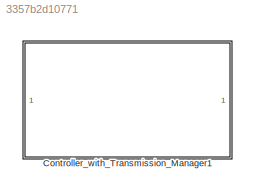
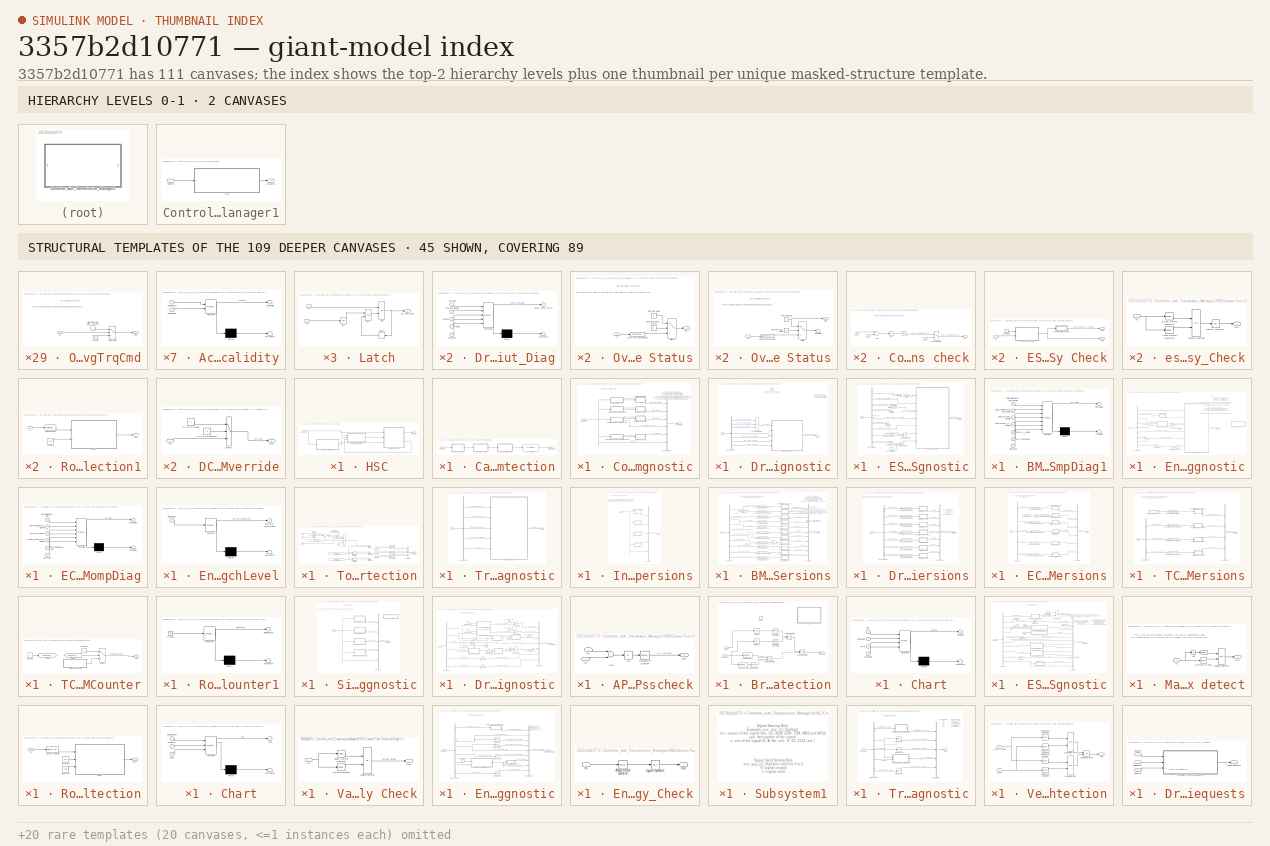
[diagram: thumbnail index - top-2 hierarchy levels (2 canvases) + 45 structural-template representatives of the remaining 109 canvases]
MODEL slx_3357b2d10771
KIND library
CONFIG AbsTol = auto
CONFIG EnableMultiTasking = off
CONFIG FixedStep = auto
CONFIG MaxStep = auto
CONFIG MinStep = auto
CONFIG RelTol = 1e-3
CONFIG SampleTimeConstraint = Unconstrained
CONFIG Solver = VariableStepAuto
CONFIG SolverName = VariableStepAuto
CONFIG StartTime = 0.0
CONFIG StopTime = 10.0
BLOCK [SubSystem] Controller_with_Transmission_Manager1
  Ports = [1, 1]
  RequestExecContextInheritance = off
  Variant = off
BLOCK [Outport] Controller_with_Transmission_Manager1/Actuators
  IconDisplay = Port number
BLOCK [SubSystem] Controller_with_Transmission_Manager1/HSC
  Ports = [1, 1]
  RequestExecContextInheritance = off
  Variant = off
BLOCK [Outport] Controller_with_Transmission_Manager1/HSC/Actuators
  IconDisplay = Port number
BLOCK [SubSystem] Controller_with_Transmission_Manager1/HSC/Camaro Fault Detection
  Ports = [1, 1]
  RequestExecContextInheritance = off
  Variant = off
BLOCK [SubSystem] Controller_with_Transmission_Manager1/HSC/Camaro Fault Detection/Component Diagnostic
  Ports = [1, 1]
  RequestExecContextInheritance = off
  Variant = off
BLOCK [BusCreator] Controller_with_Transmission_Manager1/HSC/Camaro Fault Detection/Component Diagnostic/Bus Creator
  DisplayOption = bar
  InheritFromInputs = on
  Inputs = 6
  Ports = [6, 1]
BLOCK [Outport] Controller_with_Transmission_Manager1/HSC/Camaro Fault Detection/Component Diagnostic/CompDiag
  IconDisplay = Port number
BLOCK [SubSystem] Controller_with_Transmission_Manager1/HSC/Camaro Fault Detection/Component Diagnostic/Driver Input Diagnostic
  Ports = [1, 1]
  RequestExecContextInheritance = off
  Variant = off
BLOCK [BusSelector] Controller_with_Transmission_Manager1/HSC/Camaro Fault Detection/Component Diagnostic/Driver Input Diagnostic/Bus Selector
  OutputAsBus = off
  OutputSignals = Driver_SigDiag.Drv_APP1_[%]_SigValid,Driver_SigDiag.Drv_APP2_[%]_SigValid,Driver_SigDiag.Drv_APP_Agree,Driver_SigDiag.Drv_BPP_[%]_SigValid,Driver_SigDiag.Drv_KeyPos_[0 3]_SigValid,Driver_SigDiag.Drv_PRNDL_SigValid,Driver_SigDiag.Brake_Failed
  Ports = [1, 7]
BLOCK [SubSystem] Controller_with_Transmission_Manager1/HSC/Camaro Fault Detection/Component Diagnostic/Driver Input Diagnostic/Driver_Input_Diag
  ErrorFcn = Stateflow.Translate.translate
  PermitHierarchicalResolution = ExplicitOnly
  Ports = [5, 1]
  RequestExecContextInheritance = off
  SFBlockType = Chart
  TreatAsAtomicUnit = on
  Variant = off
BLOCK [Demux] Controller_with_Transmission_Manager1/HSC/Camaro Fault Detection/Component Diagnostic/Driver Input Diagnostic/Driver_Input_Diag/ Demux 
  Outputs = 1
  Ports = [1, 1]
BLOCK [S-Function] Controller_with_Transmission_Manager1/HSC/Camaro Fault Detection/Component Diagnostic/Driver Input Diagnostic/Driver_Input_Diag/ SFunction 
  EnableBusSupport = on
  FunctionName = sf_sfun
  PortCounts = [5 2]
  Ports = [5, 2]
  SFcnIsStateOwnerBlock = off
  SFunctionDeploymentMode = off
  Tag = Stateflow S-Function lib_Controller 3
BLOCK [Terminator] Controller_with_Transmission_Manager1/HSC/Camaro Fault Detection/Component Diagnostic/Driver Input Diagnostic/Driver_Input_Diag/ Terminator 
BLOCK [Inport] Controller_with_Transmission_Manager1/HSC/Camaro Fault Detection/Component Diagnostic/Driver Input Diagnostic/Driver_Input_Diag/APP_Valid
  IconDisplay = Port number
BLOCK [Inport] Controller_with_Transmission_Manager1/HSC/Camaro Fault Detection/Component Diagnostic/Driver Input Diagnostic/Driver_Input_Diag/BrakeFail
  IconDisplay = Port number
  Port = 5
BLOCK [Outport] Controller_with_Transmission_Manager1/HSC/Camaro Fault Detection/Component Diagnostic/Driver Input Diagnostic/Driver_Input_Diag/Driver_Input_Status
  IconDisplay = Port number
BLOCK [Inport] Controller_with_Transmission_Manager1/HSC/Camaro Fault Detection/Component Diagnostic/Driver Input Diagnostic/Driver_Input_Diag/Drv_BPP_SigValid
  IconDisplay = Port number
  Port = 2
BLOCK [Inport] Controller_with_Transmission_Manager1/HSC/Camaro Fault Detection/Component Diagnostic/Driver Input Diagnostic/Driver_Input_Diag/KeyPos
  IconDisplay = Port number
  Port = 3
BLOCK [Inport] Controller_with_Transmission_Manager1/HSC/Camaro Fault Detection/Component Diagnostic/Driver Input Diagnostic/Driver_Input_Diag/PRNDL
  IconDisplay = Port number
  Port = 4
BLOCK [Inport] Controller_with_Transmission_Manager1/HSC/Camaro Fault Detection/Component Diagnostic/Driver Input Diagnostic/In1
  IconDisplay = Port number
BLOCK [Logic] Controller_with_Transmission_Manager1/HSC/Camaro Fault Detection/Component Diagnostic/Driver Input Diagnostic/Logical Operator
  AllPortsSameDT = off
  Inputs = 3
  OutDataTypeStr = boolean
  Ports = [3, 1]
BLOCK [Outport] Controller_with_Transmission_Manager1/HSC/Camaro Fault Detection/Component Diagnostic/Driver Input Diagnostic/Out1
  IconDisplay = Port number
BLOCK [SubSystem] Controller_with_Transmission_Manager1/HSC/Camaro Fault Detection/Component Diagnostic/ESS Component Diagnostic
  Ports = [1, 1]
  RequestExecContextInheritance = off
  Variant = off
BLOCK [SubSystem] Controller_with_Transmission_Manager1/HSC/Camaro Fault Detection/Component Diagnostic/ESS Component Diagnostic/BMS_CompDiag1
  ErrorFcn = Stateflow.Translate.translate
  PermitHierarchicalResolution = ExplicitOnly
  Ports = [7, 1]
  RequestExecContextInheritance = off
  SFBlockType = Chart
  TreatAsAtomicUnit = on
  Variant = off
BLOCK [Demux] Controller_with_Transmission_Manager1/HSC/Camaro Fault Detection/Component Diagnostic/ESS Component Diagnostic/BMS_CompDiag1/ Demux 
  Outputs = 1
  Ports = [1, 1]
BLOCK [S-Function] Controller_with_Transmission_Manager1/HSC/Camaro Fault Detection/Component Diagnostic/ESS Component Diagnostic/BMS_CompDiag1/ SFunction 
  EnableBusSupport = on
  FunctionName = sf_sfun
  PortCounts = [7 2]
  Ports = [7, 2]
  SFcnIsStateOwnerBlock = off
  SFunctionDeploymentMode = off
  Tag = Stateflow S-Function lib_Controller 5
BLOCK [Terminator] Controller_with_Transmission_Manager1/HSC/Camaro Fault Detection/Component Diagnostic/ESS Component Diagnostic/BMS_CompDiag1/ Terminator 
BLOCK [Inport] Controller_with_Transmission_Manager1/HSC/Camaro Fault Detection/Component Diagnostic/ESS Component Diagnostic/BMS_CompDiag1/BMS_RollingAliveActive_SigValid
  IconDisplay = Port number
BLOCK [Outport] Controller_with_Transmission_Manager1/HSC/Camaro Fault Detection/Component Diagnostic/ESS Component Diagnostic/BMS_CompDiag1/BMS_Status
  IconDisplay = Port number
BLOCK [Inport] Controller_with_Transmission_Manager1/HSC/Camaro Fault Detection/Component Diagnostic/ESS Component Diagnostic/BMS_CompDiag1/BMS_contactorsFailed_SigValid
  IconDisplay = Port number
  Port = 2
BLOCK [Inport] Controller_with_Transmission_Manager1/HSC/Camaro Fault Detection/Component Diagnostic/ESS Component Diagnostic/BMS_CompDiag1/BMS_essSOC_0_1_SigValid
  IconDisplay = Port number
  Port = 4
BLOCK [Inport] Controller_with_Transmission_Manager1/HSC/Camaro Fault Detection/Component Diagnostic/ESS Component Diagnostic/BMS_CompDiag1/BMS_essTemp_SigValid
  IconDisplay = Port number
  Port = 3
BLOCK [Inport] Controller_with_Transmission_Manager1/HSC/Camaro Fault Detection/Component Diagnostic/ESS Component Diagnostic/BMS_CompDiag1/ClearFault
  IconDisplay = Port number
  Port = 7
BLOCK [Inport] Controller_with_Transmission_Manager1/HSC/Camaro Fault Detection/Component Diagnostic/ESS Component Diagnostic/BMS_CompDiag1/essCur_A_SigValid
  IconDisplay = Port number
  Port = 5
BLOCK [Inport] Controller_with_Transmission_Manager1/HSC/Camaro Fault Detection/Component Diagnostic/ESS Component Diagnostic/BMS_CompDiag1/ess_GroundFault
  IconDisplay = Port number
  Port = 6
BLOCK [BusSelector] Controller_with_Transmission_Manager1/HSC/Camaro Fault Detection/Component Diagnostic/ESS Component Diagnostic/Bus Selector
  OutputAsBus = off
  OutputSignals = ESS_SigDiag.BMS_RollingAliveActive_SigValid,ESS_SigDiag.BMS_contactorsFailed_Detected,ESS_SigDiag.BMS_essTemp_[degC]_SigValid,ESS_SigDiag.essTempRange[0_4],ESS_SigDiag.BMS_essSOC_0_1_SigValid,ESS_SigDiag.essTempRange[0_4],ESS_SigDiag.essCur_A_SigValid,ESS_SigDiag.BMSgdf_SigValid,Driver_SigDiag.Drv_KeyPos_[0 3]_SigValid
  Ports = [1, 9]
BLOCK [Reference] Controller_with_Transmission_Manager1/HSC/Camaro Fault Detection/Component Diagnostic/ESS Component Diagnostic/Compare To Zero  REF=simulink/Logic and Bit
Operations/Compare
To Zero
  Ports = [1, 1]
  SourceBlock = simulink/Logic and Bit\nOperations/Compare\nTo Zero
  SourceProductBaseCode = SL
  SourceProductName = Simulink
  SourceType = Compare To Zero
BLOCK [DataTypeConversion] Controller_with_Transmission_Manager1/HSC/Camaro Fault Detection/Component Diagnostic/ESS Component Diagnostic/Data Type Conversion
  RndMeth = Floor
  SaturateOnIntegerOverflow = off
BLOCK [From] Controller_with_Transmission_Manager1/HSC/Camaro Fault Detection/Component Diagnostic/ESS Component Diagnostic/From
  GotoTag = contactorsFailed_Detected
BLOCK [Goto] Controller_with_Transmission_Manager1/HSC/Camaro Fault Detection/Component Diagnostic/ESS Component Diagnostic/Goto
  GotoTag = contactorsFailed_Detected
BLOCK [Constant] Controller_with_Transmission_Manager1/HSC/Camaro Fault Detection/Component Diagnostic/ESS Component Diagnostic/HVessFltReset
BLOCK [Inport] Controller_with_Transmission_Manager1/HSC/Camaro Fault Detection/Component Diagnostic/ESS Component Diagnostic/In1
  IconDisplay = Port number
BLOCK [Logic] Controller_with_Transmission_Manager1/HSC/Camaro Fault Detection/Component Diagnostic/ESS Component Diagnostic/Logical Operator
  AllPortsSameDT = off
  Operator = OR
  OutDataTypeStr = boolean
  Ports = [2, 1]
BLOCK [Logic] Controller_with_Transmission_Manager1/HSC/Camaro Fault Detection/Component Diagnostic/ESS Component Diagnostic/Logical Operator1
  AllPortsSameDT = off
  OutDataTypeStr = boolean
  Ports = [2, 1]
BLOCK [Outport] Controller_with_Transmission_Manager1/HSC/Camaro Fault Detection/Component Diagnostic/ESS Component Diagnostic/Out1
  IconDisplay = Port number
BLOCK [Terminator] Controller_with_Transmission_Manager1/HSC/Camaro Fault Detection/Component Diagnostic/ESS Component Diagnostic/Terminator
BLOCK [Terminator] Controller_with_Transmission_Manager1/HSC/Camaro Fault Detection/Component Diagnostic/ESS Component Diagnostic/Terminator1
BLOCK [SubSystem] Controller_with_Transmission_Manager1/HSC/Camaro Fault Detection/Component Diagnostic/Engine Component Diagnostic
  Ports = [1, 2]
  RequestExecContextInheritance = off
  Variant = off
BLOCK [BusSelector] Controller_with_Transmission_Manager1/HSC/Camaro Fault Detection/Component Diagnostic/Engine Component Diagnostic/Bus Selector
  OutputAsBus = off
  OutputSignals = Engine_SigDiag.ECMRollingAliveActive,Engine_SigDiag.engTrqCmdRecvd_SigValid,Engine_SigDiag.ECMTrqCmd_Nm,Engine_SigDiag.EngActStdyStTorq_Nm,Engine_SigDiag.EngRunAtValid,Engine_SigDiag.Engine_Speed_rpm_SigValid,Engine_SigDiag.Eng_TempValid,Engine_SigDiag.Eng_TempRange[123],Driver_SigDiag.Drv_KeyPos_[0 3]_SigValid
  Ports = [1, 9]
BLOCK [BusSelector] Controller_with_Transmission_Manager1/HSC/Camaro Fault Detection/Component Diagnostic/Engine Component Diagnostic/Bus Selector1
  OutputAsBus = off
  OutputSignals = Eng_Torque_Mismch_Critical
  Ports = [1, 1]
BLOCK [Reference] Controller_with_Transmission_Manager1/HSC/Camaro Fault Detection/Component Diagnostic/Engine Component Diagnostic/Compare To Zero  REF=simulink/Logic and Bit
Operations/Compare
To Zero
  Ports = [1, 1]
  SourceBlock = simulink/Logic and Bit\nOperations/Compare\nTo Zero
  SourceProductBaseCode = SL
  SourceProductName = Simulink
  SourceType = Compare To Zero
BLOCK [SubSystem] Controller_with_Transmission_Manager1/HSC/Camaro Fault Detection/Component Diagnostic/Engine Component Diagnostic/ECM_CompDiag
  ErrorFcn = Stateflow.Translate.translate
  PermitHierarchicalResolution = ExplicitOnly
  Ports = [6, 1]
  RequestExecContextInheritance = off
  SFBlockType = Chart
  TreatAsAtomicUnit = on
  Variant = off
BLOCK [Demux] Controller_with_Transmission_Manager1/HSC/Camaro Fault Detection/Component Diagnostic/Engine Component Diagnostic/ECM_CompDiag/ Demux 
  Outputs = 1
  Ports = [1, 1]
BLOCK [S-Function] Controller_with_Transmission_Manager1/HSC/Camaro Fault Detection/Component Diagnostic/Engine Component Diagnostic/ECM_CompDiag/ SFunction 
  EnableBusSupport = on
  FunctionName = sf_sfun
  PortCounts = [6 2]
  Ports = [6, 2]
  SFcnIsStateOwnerBlock = off
  SFunctionDeploymentMode = off
  Tag = Stateflow S-Function lib_Controller 6
BLOCK [Terminator] Controller_with_Transmission_Manager1/HSC/Camaro Fault Detection/Component Diagnostic/Engine Component Diagnostic/ECM_CompDiag/ Terminator 
BLOCK [Inport] Controller_with_Transmission_Manager1/HSC/Camaro Fault Detection/Component Diagnostic/Engine Component Diagnostic/ECM_CompDiag/ClearFault
  IconDisplay = Port number
  Port = 6
BLOCK [Inport] Controller_with_Transmission_Manager1/HSC/Camaro Fault Detection/Component Diagnostic/Engine Component Diagnostic/ECM_CompDiag/ECM_RollingAliveActive
  IconDisplay = Port number
BLOCK [Outport] Controller_with_Transmission_Manager1/HSC/Camaro Fault Detection/Component Diagnostic/Engine Component Diagnostic/ECM_CompDiag/ECM_Status
  IconDisplay = Port number
BLOCK [Inport] Controller_with_Transmission_Manager1/HSC/Camaro Fault Detection/Component Diagnostic/Engine Component Diagnostic/ECM_CompDiag/Eng_TempRange_123
  IconDisplay = Port number
  Port = 5
BLOCK [Inport] Controller_with_Transmission_Manager1/HSC/Camaro Fault Detection/Component Diagnostic/Engine Component Diagnostic/ECM_CompDiag/Eng_Torq_Msmch
  IconDisplay = Port number
  Port = 3
BLOCK [Inport] Controller_with_Transmission_Manager1/HSC/Camaro Fault Detection/Component Diagnostic/Engine Component Diagnostic/ECM_CompDiag/Engine_Speed_rpm_SigValid
  IconDisplay = Port number
  Port = 4
BLOCK [Inport] Controller_with_Transmission_Manager1/HSC/Camaro Fault Detection/Component Diagnostic/Engine Component Diagnostic/ECM_CompDiag/engTrqCmdRecvd_SigValid
  IconDisplay = Port number
  Port = 2
BLOCK [Constant] Controller_with_Transmission_Manager1/HSC/Camaro Fault Detection/Component Diagnostic/Engine Component Diagnostic/Eng_FltReset
BLOCK [SubSystem] Controller_with_Transmission_Manager1/HSC/Camaro Fault Detection/Component Diagnostic/Engine Component Diagnostic/Eng_Torq_MsmchLevel
  Commented = on
  ErrorFcn = Stateflow.Translate.translate
  PermitHierarchicalResolution = ExplicitOnly
  Ports = [1, 1]
  RequestExecContextInheritance = off
  SFBlockType = Chart
  TreatAsAtomicUnit = on
  Variant = off
BLOCK [Demux] Controller_with_Transmission_Manager1/HSC/Camaro Fault Detection/Component Diagnostic/Engine Component Diagnostic/Eng_Torq_MsmchLevel/ Demux 
  Outputs = 1
  Ports = [1, 1]
BLOCK [S-Function] Controller_with_Transmission_Manager1/HSC/Camaro Fault Detection/Component Diagnostic/Engine Component Diagnostic/Eng_Torq_MsmchLevel/ SFunction 
  EnableBusSupport = on
  FunctionName = sf_sfun
  Parameters = ENGTRQ_MSMCH_Degraded_CP,ENGTRQ_MSMCH_ErrCritical_CP,ENGTRQ_MSMCH_LimpHome_CP
  PortCounts = [1 2]
  Ports = [1, 2]
  SFcnIsStateOwnerBlock = off
  SFunctionDeploymentMode = off
  Tag = Stateflow S-Function lib_Controller 7
BLOCK [Terminator] Controller_with_Transmission_Manager1/HSC/Camaro Fault Detection/Component Diagnostic/Engine Component Diagnostic/Eng_Torq_MsmchLevel/ Terminator 
BLOCK [Outport] Controller_with_Transmission_Manager1/HSC/Camaro Fault Detection/Component Diagnostic/Engine Component Diagnostic/Eng_Torq_MsmchLevel/Eng_Torq_MsmchLevel
  IconDisplay = Port number
BLOCK [Inport] Controller_with_Transmission_Manager1/HSC/Camaro Fault Detection/Component Diagnostic/Engine Component Diagnostic/Eng_Torq_MsmchLevel/SignalValue
  IconDisplay = Port number
BLOCK [Inport] Controller_with_Transmission_Manager1/HSC/Camaro Fault Detection/Component Diagnostic/Engine Component Diagnostic/In1
  IconDisplay = Port number
BLOCK [Logic] Controller_with_Transmission_Manager1/HSC/Camaro Fault Detection/Component Diagnostic/Engine Component Diagnostic/Logical Operator
  AllPortsSameDT = off
  Operator = OR
  OutDataTypeStr = boolean
  Ports = [2, 1]
BLOCK [Outport] Controller_with_Transmission_Manager1/HSC/Camaro Fault Detection/Component Diagnostic/Engine Component Diagnostic/Out1
  IconDisplay = Port number
BLOCK [Outport] Controller_with_Transmission_Manager1/HSC/Camaro Fault Detection/Component Diagnostic/Engine Component Diagnostic/Out2
  IconDisplay = Port number
  Port = 2
BLOCK [SubSystem] Controller_with_Transmission_Manager1/HSC/Camaro Fault Detection/Component Diagnostic/Engine Component Diagnostic/Override  engTrqCmd
  Ports = [1, 1]
  RequestExecContextInheritance = off
  Variant = off
BLOCK [Constant] Controller_with_Transmission_Manager1/HSC/Camaro Fault Detection/Component Diagnostic/Engine Component Diagnostic/Override  engTrqCmd/Constant
  Value = 50
BLOCK [Inport] Controller_with_Transmission_Manager1/HSC/Camaro Fault Detection/Component Diagnostic/Engine Component Diagnostic/Override  engTrqCmd/In1
  IconDisplay = Port number
BLOCK [MultiPortSwitch] Controller_with_Transmission_Manager1/HSC/Camaro Fault Detection/Component Diagnostic/Engine Component Diagnostic/Override  engTrqCmd/Multiport Switch
  DataPortOrder = Zero-based contiguous
  InputSameDT = off
  Inputs = 2
  Ports = [3, 1]
  SaturateOnIntegerOverflow = off
  zeroidx = on
BLOCK [Outport] Controller_with_Transmission_Manager1/HSC/Camaro Fault Detection/Component Diagnostic/Engine Component Diagnostic/Override  engTrqCmd/Out1
  IconDisplay = Port number
BLOCK [Constant] Controller_with_Transmission_Manager1/HSC/Camaro Fault Detection/Component Diagnostic/Engine Component Diagnostic/Override  engTrqCmd/Signal Override Switch 0 = Use Model 1 = Use Constant
BLOCK [Terminator] Controller_with_Transmission_Manager1/HSC/Camaro Fault Detection/Component Diagnostic/Engine Component Diagnostic/Terminator1
BLOCK [SubSystem] Controller_with_Transmission_Manager1/HSC/Camaro Fault Detection/Component Diagnostic/Engine Component Diagnostic/TorqMismatch Detection
  Ports = [3, 1]
  RequestExecContextInheritance = off
  Variant = off
BLOCK [Abs] Controller_with_Transmission_Manager1/HSC/Camaro Fault Detection/Component Diagnostic/Engine Component Diagnostic/TorqMismatch Detection/Abs
  SaturateOnIntegerOverflow = off
BLOCK [Sum] Controller_with_Transmission_Manager1/HSC/Camaro Fault Detection/Component Diagnostic/Engine Component Diagnostic/TorqMismatch Detection/Add
  InputSameDT = off
  Inputs = +-
  OutDataTypeStr = Inherit: Inherit via internal rule
  Ports = [2, 1]
  SaturateOnIntegerOverflow = off
BLOCK [BusCreator] Controller_with_Transmission_Manager1/HSC/Camaro Fault Detection/Component Diagnostic/Engine Component Diagnostic/TorqMismatch Detection/Bus Creator
  DisplayOption = bar
  InheritFromInputs = on
  Inputs = 3
  Ports = [3, 1]
BLOCK [Constant] Controller_with_Transmission_Manager1/HSC/Camaro Fault Detection/Component Diagnostic/Engine Component Diagnostic/TorqMismatch Detection/Constant
  Value = cal.ENGTRQ_MSMCH.ErrCritical_CP
BLOCK [Constant] Controller_with_Transmission_Manager1/HSC/Camaro Fault Detection/Component Diagnostic/Engine Component Diagnostic/TorqMismatch Detection/Constant1
  Value = 50
BLOCK [Constant] Controller_with_Transmission_Manager1/HSC/Camaro Fault Detection/Component Diagnostic/Engine Component Diagnostic/TorqMismatch Detection/Constant2
  Value = cal.ENGTRQ_MSMCH.Degraded_CP
BLOCK [Constant] Controller_with_Transmission_Manager1/HSC/Camaro Fault Detection/Component Diagnostic/Engine Component Diagnostic/TorqMismatch Detection/Constant3
  Value = cal.ENGTRQ_MSMCH.LimpHome_CP
BLOCK [Constant] Controller_with_Transmission_Manager1/HSC/Camaro Fault Detection/Component Diagnostic/Engine Component Diagnostic/TorqMismatch Detection/Constant4
  Value = 0
BLOCK [Constant] Controller_with_Transmission_Manager1/HSC/Camaro Fault Detection/Component Diagnostic/Engine Component Diagnostic/TorqMismatch Detection/Constant5
  Value = 0
BLOCK [Constant] Controller_with_Transmission_Manager1/HSC/Camaro Fault Detection/Component Diagnostic/Engine Component Diagnostic/TorqMismatch Detection/Constant6
  Value = 0
BLOCK [DataTypeConversion] Controller_with_Transmission_Manager1/HSC/Camaro Fault Detection/Component Diagnostic/Engine Component Diagnostic/TorqMismatch Detection/Data Type Conversion
  OutDataTypeStr = boolean
  RndMeth = Floor
  SaturateOnIntegerOverflow = off
BLOCK [DataTypeConversion] Controller_with_Transmission_Manager1/HSC/Camaro Fault Detection/Component Diagnostic/Engine Component Diagnostic/TorqMismatch Detection/Data Type Conversion1
  OutDataTypeStr = boolean
  RndMeth = Floor
  SaturateOnIntegerOverflow = off
BLOCK [DataTypeConversion] Controller_with_Transmission_Manager1/HSC/Camaro Fault Detection/Component Diagnostic/Engine Component Diagnostic/TorqMismatch Detection/Data Type Conversion2
  OutDataTypeStr = boolean
  RndMeth = Floor
  SaturateOnIntegerOverflow = off
BLOCK [Outport] Controller_with_Transmission_Manager1/HSC/Camaro Fault Detection/Component Diagnostic/Engine Component Diagnostic/TorqMismatch Detection/Eng_Torque_Mismch
  IconDisplay = Port number
BLOCK [Inport] Controller_with_Transmission_Manager1/HSC/Camaro Fault Detection/Component Diagnostic/Engine Component Diagnostic/TorqMismatch Detection/In1
  IconDisplay = Port number
BLOCK [Inport] Controller_with_Transmission_Manager1/HSC/Camaro Fault Detection/Component Diagnostic/Engine Component Diagnostic/TorqMismatch Detection/In2
  IconDisplay = Port number
  Port = 2
BLOCK [Inport] Controller_with_Transmission_Manager1/HSC/Camaro Fault Detection/Component Diagnostic/Engine Component Diagnostic/TorqMismatch Detection/In3
  IconDisplay = Port number
  Port = 3
BLOCK [RelationalOperator] Controller_with_Transmission_Manager1/HSC/Camaro Fault Detection/Component Diagnostic/Engine Component Diagnostic/TorqMismatch Detection/Relational Operator
  InputSameDT = off
  OutDataTypeStr = boolean
  Ports = [2, 1]
BLOCK [RelationalOperator] Controller_with_Transmission_Manager1/HSC/Camaro Fault Detection/Component Diagnostic/Engine Component Diagnostic/TorqMismatch Detection/Relational Operator1
  InputSameDT = off
  Operator = >
  OutDataTypeStr = boolean
  Ports = [2, 1]
BLOCK [RelationalOperator] Controller_with_Transmission_Manager1/HSC/Camaro Fault Detection/Component Diagnostic/Engine Component Diagnostic/TorqMismatch Detection/Relational Operator2
  InputSameDT = off
  Operator = >
  OutDataTypeStr = boolean
  Ports = [2, 1]
BLOCK [Switch] Controller_with_Transmission_Manager1/HSC/Camaro Fault Detection/Component Diagnostic/Engine Component Diagnostic/TorqMismatch Detection/Switch
  InputSameDT = off
  SaturateOnIntegerOverflow = off
  Threshold = 1
BLOCK [Terminator] Controller_with_Transmission_Manager1/HSC/Camaro Fault Detection/Component Diagnostic/Engine Component Diagnostic/TorqMismatch Detection/Terminator
BLOCK [Terminator] Controller_with_Transmission_Manager1/HSC/Camaro Fault Detection/Component Diagnostic/Engine Component Diagnostic/TorqMismatch Detection/Terminator1
BLOCK [Terminator] Controller_with_Transmission_Manager1/HSC/Camaro Fault Detection/Component Diagnostic/Engine Component Diagnostic/TorqMismatch Detection/Terminator2
BLOCK [Terminator] Controller_with_Transmission_Manager1/HSC/Camaro Fault Detection/Component Diagnostic/Engine Component Diagnostic/TorqMismatch Detection/Terminator3
BLOCK [UnitDelay] Controller_with_Transmission_Manager1/HSC/Camaro Fault Detection/Component Diagnostic/Engine Component Diagnostic/TorqMismatch Detection/Unit Delay
  Commented = through
  InputProcessing = Elements as channels (sample based)
  SampleTime = -1
BLOCK [UnitDelay] Controller_with_Transmission_Manager1/HSC/Camaro Fault Detection/Component Diagnostic/Engine Component Diagnostic/TorqMismatch Detection/Unit Delay1
  Commented = through
  InputProcessing = Elements as channels (sample based)
  SampleTime = -1
BLOCK [Constant] Controller_with_Transmission_Manager1/HSC/Camaro Fault Detection/Component Diagnostic/Engine Component Diagnostic/TorqMismatch Detection/Zero 
  Value = 0
BLOCK [SubSystem] Controller_with_Transmission_Manager1/HSC/Camaro Fault Detection/Component Diagnostic/Override Driver Status
  Ports = [1, 1]
  RequestExecContextInheritance = off
  Variant = off
BLOCK [DataTypeConversion] Controller_with_Transmission_Manager1/HSC/Camaro Fault Detection/Component Diagnostic/Override Driver Status/Data Type Conversion3
  RndMeth = Floor
  SaturateOnIntegerOverflow = off
BLOCK [Inport] Controller_with_Transmission_Manager1/HSC/Camaro Fault Detection/Component Diagnostic/Override Driver Status/In1
  IconDisplay = Port number
BLOCK [Outport] Controller_with_Transmission_Manager1/HSC/Camaro Fault Detection/Component Diagnostic/Override Driver Status/Out1
  IconDisplay = Port number
BLOCK [Constant] Controller_with_Transmission_Manager1/HSC/Camaro Fault Detection/Component Diagnostic/Override Driver Status/Override Value
  OutDataTypeStr = double
BLOCK [Constant] Controller_with_Transmission_Manager1/HSC/Camaro Fault Detection/Component Diagnostic/Override Driver Status/Override_Driver_Status
  Value = 0
BLOCK [Switch] Controller_with_Transmission_Manager1/HSC/Camaro Fault Detection/Component Diagnostic/Override Driver Status/Switch
  Criteria = u2 > Threshold
  InputSameDT = off
  SaturateOnIntegerOverflow = off
BLOCK [SubSystem] Controller_with_Transmission_Manager1/HSC/Camaro Fault Detection/Component Diagnostic/Override ESS Status
  Ports = [1, 1]
  RequestExecContextInheritance = off
  Variant = off
BLOCK [DataTypeConversion] Controller_with_Transmission_Manager1/HSC/Camaro Fault Detection/Component Diagnostic/Override ESS Status/Data Type Conversion3
  RndMeth = Floor
  SaturateOnIntegerOverflow = off
BLOCK [Inport] Controller_with_Transmission_Manager1/HSC/Camaro Fault Detection/Component Diagnostic/Override ESS Status/In1
  IconDisplay = Port number
BLOCK [Outport] Controller_with_Transmission_Manager1/HSC/Camaro Fault Detection/Component Diagnostic/Override ESS Status/Out1
  IconDisplay = Port number
BLOCK [Constant] Controller_with_Transmission_Manager1/HSC/Camaro Fault Detection/Component Diagnostic/Override ESS Status/Override Value
  OutDataTypeStr = double
  Value = 2
BLOCK [Constant] Controller_with_Transmission_Manager1/HSC/Camaro Fault Detection/Component Diagnostic/Override ESS Status/Override_ESS_Status
  Value = 0
BLOCK [Switch] Controller_with_Transmission_Manager1/HSC/Camaro Fault Detection/Component Diagnostic/Override ESS Status/Switch
  Criteria = u2 > Threshold
  InputSameDT = off
  SaturateOnIntegerOverflow = off
BLOCK [Terminator] Controller_with_Transmission_Manager1/HSC/Camaro Fault Detection/Component Diagnostic/Override ESS Status/Terminator
BLOCK [SubSystem] Controller_with_Transmission_Manager1/HSC/Camaro Fault Detection/Component Diagnostic/Override Engine Status
  Ports = [1, 1]
  RequestExecContextInheritance = off
  Variant = off
BLOCK [DataTypeConversion] Controller_with_Transmission_Manager1/HSC/Camaro Fault Detection/Component Diagnostic/Override Engine Status/Data Type Conversion3
  RndMeth = Floor
  SaturateOnIntegerOverflow = off
BLOCK [Inport] Controller_with_Transmission_Manager1/HSC/Camaro Fault Detection/Component Diagnostic/Override Engine Status/In1
  IconDisplay = Port number
BLOCK [Outport] Controller_with_Transmission_Manager1/HSC/Camaro Fault Detection/Component Diagnostic/Override Engine Status/Out1
  IconDisplay = Port number
BLOCK [Constant] Controller_with_Transmission_Manager1/HSC/Camaro Fault Detection/Component Diagnostic/Override Engine Status/Override Value1
  OutDataTypeStr = double
  Value = 2
BLOCK [Constant] Controller_with_Transmission_Manager1/HSC/Camaro Fault Detection/Component Diagnostic/Override Engine Status/Override_Engine_Status
  Value = 0
BLOCK [Switch] Controller_with_Transmission_Manager1/HSC/Camaro Fault Detection/Component Diagnostic/Override Engine Status/Switch
  Criteria = u2 > Threshold
  InputSameDT = off
  SaturateOnIntegerOverflow = off
BLOCK [Terminator] Controller_with_Transmission_Manager1/HSC/Camaro Fault Detection/Component Diagnostic/Override Engine Status/Terminator
BLOCK [SubSystem] Controller_with_Transmission_Manager1/HSC/Camaro Fault Detection/Component Diagnostic/Override TCM Status
  Ports = [1, 1]
  RequestExecContextInheritance = off
  Variant = off
BLOCK [DataTypeConversion] Controller_with_Transmission_Manager1/HSC/Camaro Fault Detection/Component Diagnostic/Override TCM Status/Data Type Conversion3
  RndMeth = Floor
  SaturateOnIntegerOverflow = off
BLOCK [Inport] Controller_with_Transmission_Manager1/HSC/Camaro Fault Detection/Component Diagnostic/Override TCM Status/In1
  IconDisplay = Port number
BLOCK [Outport] Controller_with_Transmission_Manager1/HSC/Camaro Fault Detection/Component Diagnostic/Override TCM Status/Out1
  IconDisplay = Port number
BLOCK [Constant] Controller_with_Transmission_Manager1/HSC/Camaro Fault Detection/Component Diagnostic/Override TCM Status/Override Value1
  OutDataTypeStr = double
  Value = 2
BLOCK [Constant] Controller_with_Transmission_Manager1/HSC/Camaro Fault Detection/Component Diagnostic/Override TCM Status/Override_TCM_Status
  Value = 0
BLOCK [Switch] Controller_with_Transmission_Manager1/HSC/Camaro Fault Detection/Component Diagnostic/Override TCM Status/Switch
  Criteria = u2 > Threshold
  InputSameDT = off
  SaturateOnIntegerOverflow = off
BLOCK [Inport] Controller_with_Transmission_Manager1/HSC/Camaro Fault Detection/Component Diagnostic/SignalDiag
  IconDisplay = Port number
BLOCK [SubSystem] Controller_with_Transmission_Manager1/HSC/Camaro Fault Detection/Component Diagnostic/Transmission Component Diagnostic
  Ports = [1, 1]
  RequestExecContextInheritance = off
  Variant = off
BLOCK [BusSelector] Controller_with_Transmission_Manager1/HSC/Camaro Fault Detection/Component Diagnostic/Transmission Component Diagnostic/Bus Selector
  OutputAsBus = off
  OutputSignals = Transmission_SigDiag.TCMRollingAliveActive_SigValid,Transmission_SigDiag.LvrPosTrnsShft_SigValid,Transmission_SigDiag.TransEstGear_SigValid,Transmission_SigDiag.LockupCmd_SigValid,Transmission_SigDiag.VehDirFault
  Ports = [1, 5]
BLOCK [Inport] Controller_with_Transmission_Manager1/HSC/Camaro Fault Detection/Component Diagnostic/Transmission Component Diagnostic/In1
  IconDisplay = Port number
BLOCK [Outport] Controller_with_Transmission_Manager1/HSC/Camaro Fault Detection/Component Diagnostic/Transmission Component Diagnostic/Out1
  IconDisplay = Port number
BLOCK [SubSystem] Controller_with_Transmission_Manager1/HSC/Camaro Fault Detection/Component Diagnostic/Transmission Component Diagnostic/TCM_CompDia
  ErrorFcn = Stateflow.Translate.translate
  PermitHierarchicalResolution = ExplicitOnly
  Ports = [5, 1]
  RequestExecContextInheritance = off
  SFBlockType = Chart
  TreatAsAtomicUnit = on
  Variant = off
BLOCK [Demux] Controller_with_Transmission_Manager1/HSC/Camaro Fault Detection/Component Diagnostic/Transmission Component Diagnostic/TCM_CompDia/ Demux 
  Outputs = 1
  Ports = [1, 1]
BLOCK [S-Function] Controller_with_Transmission_Manager1/HSC/Camaro Fault Detection/Component Diagnostic/Transmission Component Diagnostic/TCM_CompDia/ SFunction 
  EnableBusSupport = on
  FunctionName = sf_sfun
  PortCounts = [5 2]
  Ports = [5, 2]
  SFcnIsStateOwnerBlock = off
  SFunctionDeploymentMode = off
  Tag = Stateflow S-Function lib_Controller 67
BLOCK [Terminator] Controller_with_Transmission_Manager1/HSC/Camaro Fault Detection/Component Diagnostic/Transmission Component Diagnostic/TCM_CompDia/ Terminator 
BLOCK [Inport] Controller_with_Transmission_Manager1/HSC/Camaro Fault Detection/Component Diagnostic/Transmission Component Diagnostic/TCM_CompDia/LockupCmd_SigValid
  IconDisplay = Port number
  Port = 4
BLOCK [Inport] Controller_with_Transmission_Manager1/HSC/Camaro Fault Detection/Component Diagnostic/Transmission Component Diagnostic/TCM_CompDia/LvrPosTrnsShft_SigValid
  IconDisplay = Port number
  Port = 2
BLOCK [Inport] Controller_with_Transmission_Manager1/HSC/Camaro Fault Detection/Component Diagnostic/Transmission Component Diagnostic/TCM_CompDia/TCMRollingAliveActive_SigValid
  IconDisplay = Port number
BLOCK [Outport] Controller_with_Transmission_Manager1/HSC/Camaro Fault Detection/Component Diagnostic/Transmission Component Diagnostic/TCM_CompDia/TCM_Status
  IconDisplay = Port number
BLOCK [Inport] Controller_with_Transmission_Manager1/HSC/Camaro Fault Detection/Component Diagnostic/Transmission Component Diagnostic/TCM_CompDia/TransEstGear_SigValid
  IconDisplay = Port number
  Port = 3
BLOCK [Inport] Controller_with_Transmission_Manager1/HSC/Camaro Fault Detection/Component Diagnostic/Transmission Component Diagnostic/TCM_CompDia/VehDirFault
  IconDisplay = Port number
  Port = 5
BLOCK [Outport] Controller_with_Transmission_Manager1/HSC/Camaro Fault Detection/Diagnostic
  IconDisplay = Port number
BLOCK [SubSystem] Controller_with_Transmission_Manager1/HSC/Camaro Fault Detection/Input Conversions
  Ports = [1, 1]
  RequestExecContextInheritance = off
  Variant = off
BLOCK [SubSystem] Controller_with_Transmission_Manager1/HSC/Camaro Fault Detection/Input Conversions/BMS_Conversions
  Ports = [1, 1]
  RequestExecContextInheritance = off
  Variant = off
BLOCK [BusCreator] Controller_with_Transmission_Manager1/HSC/Camaro Fault Detection/Input Conversions/BMS_Conversions/Bus Creator
  DisplayOption = bar
  InheritFromInputs = on
  Inputs = 11
  Ports = [11, 1]
BLOCK [BusSelector] Controller_with_Transmission_Manager1/HSC/Camaro Fault Detection/Input Conversions/BMS_Conversions/Bus Selector
  OutputAsBus = off
  OutputSignals = from_CAN.fromHV_CAN.from_BMSHybrid.BMS_HYB_02.BMS_HYB_02_BZ,from_CAN.fromHV_CAN.from_BMSHybrid.BMS_HYB_02.BMS_IstModus,from_CAN.fromHV_CAN.from_BMSHybrid.BMS_HYB_02.BMS_IstStrom,from_CAN.fromHV_CAN.from_BMSHybrid.BMS_SOC,from_CAN.fromHV_CAN.from_BMSHybrid.BMS_HYB_02.BMS_IstSpannung,from_CAN.fromHV_CAN.from_BMSHybrid.BMS_Spannung_ZwKr,from_CAN.fromHV_CAN.from_BMSHybrid.BMS_Temperatur,from_CAN.fromH...<+169ch>
  Ports = [1, 10]
BLOCK [DataTypeConversion] Controller_with_Transmission_Manager1/HSC/Camaro Fault Detection/Input Conversions/BMS_Conversions/Conversion  BMS_gdf
  OutDataTypeStr = boolean
  RndMeth = Floor
  SaturateOnIntegerOverflow = off
BLOCK [DataTypeConversion] Controller_with_Transmission_Manager1/HSC/Camaro Fault Detection/Input Conversions/BMS_Conversions/Conversion  Fehler_HS_offen
  OutDataTypeStr = boolean
  RndMeth = Floor
  SaturateOnIntegerOverflow = off
BLOCK [DataTypeConversion] Controller_with_Transmission_Manager1/HSC/Camaro Fault Detection/Input Conversions/BMS_Conversions/Conversion  Fehler_HS_verschweisst
  OutDataTypeStr = boolean
  RndMeth = Floor
  SaturateOnIntegerOverflow = off
BLOCK [DataTypeConversion] Controller_with_Transmission_Manager1/HSC/Camaro Fault Detection/Input Conversions/BMS_Conversions/Conversion  closeContactorsCmd
  OutDataTypeStr = boolean
  RndMeth = Floor
  SaturateOnIntegerOverflow = off
BLOCK [DataTypeConversion] Controller_with_Transmission_Manager1/HSC/Camaro Fault Detection/Input Conversions/BMS_Conversions/Conversion  contactorsClsd
  OutDataTypeStr = boolean
  RndMeth = Floor
  SaturateOnIntegerOverflow = off
BLOCK [DataTypeConversion] Controller_with_Transmission_Manager1/HSC/Camaro Fault Detection/Input Conversions/BMS_Conversions/Conversion  essTemp_K
  OutDataTypeStr = double
  RndMeth = Floor
  SaturateOnIntegerOverflow = off
BLOCK [DataTypeConversion] Controller_with_Transmission_Manager1/HSC/Camaro Fault Detection/Input Conversions/BMS_Conversions/Conversion  hvBattVolt_V
  OutDataTypeStr = double
  RndMeth = Floor
  SaturateOnIntegerOverflow = off
BLOCK [DataTypeConversion] Controller_with_Transmission_Manager1/HSC/Camaro Fault Detection/Input Conversions/BMS_Conversions/Conversion  hvBusVolt_V
  OutDataTypeStr = double
  RndMeth = Floor
  SaturateOnIntegerOverflow = off
BLOCK [DataTypeConversion] Controller_with_Transmission_Manager1/HSC/Camaro Fault Detection/Input Conversions/BMS_Conversions/Conversion  rollingAliveCnt
  OutDataTypeStr = int8
  RndMeth = Floor
  SaturateOnIntegerOverflow = off
BLOCK [DataTypeConversion] Controller_with_Transmission_Manager1/HSC/Camaro Fault Detection/Input Conversions/BMS_Conversions/Conversion essCur_A
  OutDataTypeStr = double
  RndMeth = Floor
  SaturateOnIntegerOverflow = off
BLOCK [DataTypeConversion] Controller_with_Transmission_Manager1/HSC/Camaro Fault Detection/Input Conversions/BMS_Conversions/Conversion essSOC_0_1
  OutDataTypeStr = double
  RndMeth = Floor
  SaturateOnIntegerOverflow = off
BLOCK [From] Controller_with_Transmission_Manager1/HSC/Camaro Fault Detection/Input Conversions/BMS_Conversions/From
  GotoTag = MO_BMS_Sollmodus
  TagVisibility = global
BLOCK [Inport] Controller_with_Transmission_Manager1/HSC/Camaro Fault Detection/Input Conversions/BMS_Conversions/In1
  IconDisplay = Port number
BLOCK [Bias] Controller_with_Transmission_Manager1/HSC/Camaro Fault Detection/Input Conversions/BMS_Conversions/K to C
  Bias = -273.15
  SaturateOnIntegerOverflow = off
BLOCK [Outport] Controller_with_Transmission_Manager1/HSC/Camaro Fault Detection/Input Conversions/BMS_Conversions/Out1
  IconDisplay = Port number
BLOCK [SubSystem] Controller_with_Transmission_Manager1/HSC/Camaro Fault Detection/Input Conversions/BMS_Conversions/Override  BMS_gdf 0_1
  Ports = [1, 1]
  RequestExecContextInheritance = off
  Variant = off
BLOCK [Inport] Controller_with_Transmission_Manager1/HSC/Camaro Fault Detection/Input Conversions/BMS_Conversions/Override  BMS_gdf 0_1/In1
  IconDisplay = Port number
BLOCK [MultiPortSwitch] Controller_with_Transmission_Manager1/HSC/Camaro Fault Detection/Input Conversions/BMS_Conversions/Override  BMS_gdf 0_1/Multiport Switch
  DataPortOrder = Zero-based contiguous
  InputSameDT = off
  Inputs = 2
  Ports = [3, 1]
  SaturateOnIntegerOverflow = off
  zeroidx = on
BLOCK [Outport] Controller_with_Transmission_Manager1/HSC/Camaro Fault Detection/Input Conversions/BMS_Conversions/Override  BMS_gdf 0_1/Out1
  IconDisplay = Port number
BLOCK [Constant] Controller_with_Transmission_Manager1/HSC/Camaro Fault Detection/Input Conversions/BMS_Conversions/Override  BMS_gdf 0_1/Override Value
  OutDataTypeStr = double
  Value = 0
BLOCK [Constant] Controller_with_Transmission_Manager1/HSC/Camaro Fault Detection/Input Conversions/BMS_Conversions/Override  BMS_gdf 0_1/Signal Override Switch 0 = Use Model 1 = Use Constant
BLOCK [SubSystem] Controller_with_Transmission_Manager1/HSC/Camaro Fault Detection/Input Conversions/BMS_Conversions/Override  closeContactorsCmd
  Ports = [1, 1]
  RequestExecContextInheritance = off
  Variant = off
BLOCK [Inport] Controller_with_Transmission_Manager1/HSC/Camaro Fault Detection/Input Conversions/BMS_Conversions/Override  closeContactorsCmd/In1
  IconDisplay = Port number
BLOCK [MultiPortSwitch] Controller_with_Transmission_Manager1/HSC/Camaro Fault Detection/Input Conversions/BMS_Conversions/Override  closeContactorsCmd/Multiport Switch
  DataPortOrder = Zero-based contiguous
  InputSameDT = off
  Inputs = 2
  Ports = [3, 1]
  SaturateOnIntegerOverflow = off
  zeroidx = on
BLOCK [Outport] Controller_with_Transmission_Manager1/HSC/Camaro Fault Detection/Input Conversions/BMS_Conversions/Override  closeContactorsCmd/Out1
  IconDisplay = Port number
BLOCK [Constant] Controller_with_Transmission_Manager1/HSC/Camaro Fault Detection/Input Conversions/BMS_Conversions/Override  closeContactorsCmd/Override Value
  OutDataTypeStr = double
  Value = 0
BLOCK [Constant] Controller_with_Transmission_Manager1/HSC/Camaro Fault Detection/Input Conversions/BMS_Conversions/Override  closeContactorsCmd/Signal Override Switch 0 = Use Model 1 = Use Constant
  Value = 0
BLOCK [SubSystem] Controller_with_Transmission_Manager1/HSC/Camaro Fault Detection/Input Conversions/BMS_Conversions/Override  contactorsClsd
  Ports = [1, 1]
  RequestExecContextInheritance = off
  Variant = off
BLOCK [Inport] Controller_with_Transmission_Manager1/HSC/Camaro Fault Detection/Input Conversions/BMS_Conversions/Override  contactorsClsd/In1
  IconDisplay = Port number
BLOCK [MultiPortSwitch] Controller_with_Transmission_Manager1/HSC/Camaro Fault Detection/Input Conversions/BMS_Conversions/Override  contactorsClsd/Multiport Switch
  DataPortOrder = Zero-based contiguous
  InputSameDT = off
  Inputs = 2
  Ports = [3, 1]
  SaturateOnIntegerOverflow = off
  zeroidx = on
BLOCK [Outport] Controller_with_Transmission_Manager1/HSC/Camaro Fault Detection/Input Conversions/BMS_Conversions/Override  contactorsClsd/Out1
  IconDisplay = Port number
BLOCK [Constant] Controller_with_Transmission_Manager1/HSC/Camaro Fault Detection/Input Conversions/BMS_Conversions/Override  contactorsClsd/Override Value
  OutDataTypeStr = double
  Value = 0
BLOCK [Constant] Controller_with_Transmission_Manager1/HSC/Camaro Fault Detection/Input Conversions/BMS_Conversions/Override  contactorsClsd/Signal Override Switch 0 = Use Model 1 = Use Constant
  Value = 0
BLOCK [SubSystem] Controller_with_Transmission_Manager1/HSC/Camaro Fault Detection/Input Conversions/BMS_Conversions/Override  essCur_A
  Ports = [1, 1]
  RequestExecContextInheritance = off
  Variant = off
BLOCK [Inport] Controller_with_Transmission_Manager1/HSC/Camaro Fault Detection/Input Conversions/BMS_Conversions/Override  essCur_A/In1
  IconDisplay = Port number
BLOCK [MultiPortSwitch] Controller_with_Transmission_Manager1/HSC/Camaro Fault Detection/Input Conversions/BMS_Conversions/Override  essCur_A/Multiport Switch
  DataPortOrder = Zero-based contiguous
  InputSameDT = off
  Inputs = 2
  Ports = [3, 1]
  SaturateOnIntegerOverflow = off
  zeroidx = on
BLOCK [Outport] Controller_with_Transmission_Manager1/HSC/Camaro Fault Detection/Input Conversions/BMS_Conversions/Override  essCur_A/Out1
  IconDisplay = Port number
BLOCK [Constant] Controller_with_Transmission_Manager1/HSC/Camaro Fault Detection/Input Conversions/BMS_Conversions/Override  essCur_A/Override Value
  OutDataTypeStr = double
  Value = 0
BLOCK [Constant] Controller_with_Transmission_Manager1/HSC/Camaro Fault Detection/Input Conversions/BMS_Conversions/Override  essCur_A/Signal Override Switch 0 = Use Model 1 = Use Constant
  Value = 0
BLOCK [SubSystem] Controller_with_Transmission_Manager1/HSC/Camaro Fault Detection/Input Conversions/BMS_Conversions/Override  essSOC_0_1
  Ports = [1, 1]
  RequestExecContextInheritance = off
  Variant = off
BLOCK [Inport] Controller_with_Transmission_Manager1/HSC/Camaro Fault Detection/Input Conversions/BMS_Conversions/Override  essSOC_0_1/In1
  IconDisplay = Port number
BLOCK [MultiPortSwitch] Controller_with_Transmission_Manager1/HSC/Camaro Fault Detection/Input Conversions/BMS_Conversions/Override  essSOC_0_1/Multiport Switch
  DataPortOrder = Zero-based contiguous
  InputSameDT = off
  Inputs = 2
  Ports = [3, 1]
  SaturateOnIntegerOverflow = off
  zeroidx = on
BLOCK [Outport] Controller_with_Transmission_Manager1/HSC/Camaro Fault Detection/Input Conversions/BMS_Conversions/Override  essSOC_0_1/Out1
  IconDisplay = Port number
BLOCK [Constant] Controller_with_Transmission_Manager1/HSC/Camaro Fault Detection/Input Conversions/BMS_Conversions/Override  essSOC_0_1/Override Value
  OutDataTypeStr = double
  Value = 0
BLOCK [Constant] Controller_with_Transmission_Manager1/HSC/Camaro Fault Detection/Input Conversions/BMS_Conversions/Override  essSOC_0_1/Signal Override Switch 0 = Use Model 1 = Use Constant
  Value = 0
BLOCK [SubSystem] Controller_with_Transmission_Manager1/HSC/Camaro Fault Detection/Input Conversions/BMS_Conversions/Override  essTemp_C
  Ports = [1, 1]
  RequestExecContextInheritance = off
  Variant = off
BLOCK [Inport] Controller_with_Transmission_Manager1/HSC/Camaro Fault Detection/Input Conversions/BMS_Conversions/Override  essTemp_C/In1
  IconDisplay = Port number
BLOCK [MultiPortSwitch] Controller_with_Transmission_Manager1/HSC/Camaro Fault Detection/Input Conversions/BMS_Conversions/Override  essTemp_C/Multiport Switch
  DataPortOrder = Zero-based contiguous
  InputSameDT = off
  Inputs = 2
  Ports = [3, 1]
  SaturateOnIntegerOverflow = off
  zeroidx = on
BLOCK [Outport] Controller_with_Transmission_Manager1/HSC/Camaro Fault Detection/Input Conversions/BMS_Conversions/Override  essTemp_C/Out1
  IconDisplay = Port number
BLOCK [Constant] Controller_with_Transmission_Manager1/HSC/Camaro Fault Detection/Input Conversions/BMS_Conversions/Override  essTemp_C/Override Value
  OutDataTypeStr = double
  Value = 0
BLOCK [Constant] Controller_with_Transmission_Manager1/HSC/Camaro Fault Detection/Input Conversions/BMS_Conversions/Override  essTemp_C/Signal Override Switch 0 = Use Model 1 = Use Constant
BLOCK [SubSystem] Controller_with_Transmission_Manager1/HSC/Camaro Fault Detection/Input Conversions/BMS_Conversions/Override  hvBattVolt_V
  Ports = [1, 1]
  RequestExecContextInheritance = off
  Variant = off
BLOCK [Inport] Controller_with_Transmission_Manager1/HSC/Camaro Fault Detection/Input Conversions/BMS_Conversions/Override  hvBattVolt_V/In1
  IconDisplay = Port number
BLOCK [MultiPortSwitch] Controller_with_Transmission_Manager1/HSC/Camaro Fault Detection/Input Conversions/BMS_Conversions/Override  hvBattVolt_V/Multiport Switch
  DataPortOrder = Zero-based contiguous
  InputSameDT = off
  Inputs = 2
  Ports = [3, 1]
  SaturateOnIntegerOverflow = off
  zeroidx = on
BLOCK [Outport] Controller_with_Transmission_Manager1/HSC/Camaro Fault Detection/Input Conversions/BMS_Conversions/Override  hvBattVolt_V/Out1
  IconDisplay = Port number
BLOCK [Constant] Controller_with_Transmission_Manager1/HSC/Camaro Fault Detection/Input Conversions/BMS_Conversions/Override  hvBattVolt_V/Override Value
  OutDataTypeStr = double
  Value = 0
BLOCK [Constant] Controller_with_Transmission_Manager1/HSC/Camaro Fault Detection/Input Conversions/BMS_Conversions/Override  hvBattVolt_V/Signal Override Switch 0 = Use Model 1 = Use Constant
  Value = 0
BLOCK [SubSystem] Controller_with_Transmission_Manager1/HSC/Camaro Fault Detection/Input Conversions/BMS_Conversions/Override  hvBusVolt_V
  Ports = [1, 1]
  RequestExecContextInheritance = off
  Variant = off
BLOCK [Inport] Controller_with_Transmission_Manager1/HSC/Camaro Fault Detection/Input Conversions/BMS_Conversions/Override  hvBusVolt_V/In1
  IconDisplay = Port number
BLOCK [MultiPortSwitch] Controller_with_Transmission_Manager1/HSC/Camaro Fault Detection/Input Conversions/BMS_Conversions/Override  hvBusVolt_V/Multiport Switch
  DataPortOrder = Zero-based contiguous
  InputSameDT = off
  Inputs = 2
  Ports = [3, 1]
  SaturateOnIntegerOverflow = off
  zeroidx = on
BLOCK [Outport] Controller_with_Transmission_Manager1/HSC/Camaro Fault Detection/Input Conversions/BMS_Conversions/Override  hvBusVolt_V/Out1
  IconDisplay = Port number
BLOCK [Constant] Controller_with_Transmission_Manager1/HSC/Camaro Fault Detection/Input Conversions/BMS_Conversions/Override  hvBusVolt_V/Override Value
  OutDataTypeStr = double
  Value = 0
BLOCK [Constant] Controller_with_Transmission_Manager1/HSC/Camaro Fault Detection/Input Conversions/BMS_Conversions/Override  hvBusVolt_V/Signal Override Switch 0 = Use Model 1 = Use Constant
  Value = 0
BLOCK [SubSystem] Controller_with_Transmission_Manager1/HSC/Camaro Fault Detection/Input Conversions/BMS_Conversions/Override  rollingAliveCnt [1_3]
  Ports = [1, 1]
  RequestExecContextInheritance = off
  Variant = off
BLOCK [Inport] Controller_with_Transmission_Manager1/HSC/Camaro Fault Detection/Input Conversions/BMS_Conversions/Override  rollingAliveCnt [1_3]/In1
  IconDisplay = Port number
BLOCK [MultiPortSwitch] Controller_with_Transmission_Manager1/HSC/Camaro Fault Detection/Input Conversions/BMS_Conversions/Override  rollingAliveCnt [1_3]/Multiport Switch
  DataPortOrder = Zero-based contiguous
  InputSameDT = off
  Inputs = 2
  Ports = [3, 1]
  SaturateOnIntegerOverflow = off
  zeroidx = on
BLOCK [Outport] Controller_with_Transmission_Manager1/HSC/Camaro Fault Detection/Input Conversions/BMS_Conversions/Override  rollingAliveCnt [1_3]/Out1
  IconDisplay = Port number
BLOCK [Constant] Controller_with_Transmission_Manager1/HSC/Camaro Fault Detection/Input Conversions/BMS_Conversions/Override  rollingAliveCnt [1_3]/Override Value
  OutDataTypeStr = double
  Value = 0
BLOCK [Constant] Controller_with_Transmission_Manager1/HSC/Camaro Fault Detection/Input Conversions/BMS_Conversions/Override  rollingAliveCnt [1_3]/Signal Override Switch 0 = Use Model 1 = Use Constant
  Value = 0
BLOCK [SubSystem] Controller_with_Transmission_Manager1/HSC/Camaro Fault Detection/Input Conversions/BMS_Conversions/Override Fehler_HS_offen
  Ports = [1, 1]
  RequestExecContextInheritance = off
  Variant = off
BLOCK [Inport] Controller_with_Transmission_Manager1/HSC/Camaro Fault Detection/Input Conversions/BMS_Conversions/Override Fehler_HS_offen/In1
  IconDisplay = Port number
BLOCK [MultiPortSwitch] Controller_with_Transmission_Manager1/HSC/Camaro Fault Detection/Input Conversions/BMS_Conversions/Override Fehler_HS_offen/Multiport Switch
  DataPortOrder = Zero-based contiguous
  InputSameDT = off
  Inputs = 2
  Ports = [3, 1]
  SaturateOnIntegerOverflow = off
  zeroidx = on
BLOCK [Outport] Controller_with_Transmission_Manager1/HSC/Camaro Fault Detection/Input Conversions/BMS_Conversions/Override Fehler_HS_offen/Out1
  IconDisplay = Port number
BLOCK [Constant] Controller_with_Transmission_Manager1/HSC/Camaro Fault Detection/Input Conversions/BMS_Conversions/Override Fehler_HS_offen/Override Value
  OutDataTypeStr = double
  Value = 0
BLOCK [Constant] Controller_with_Transmission_Manager1/HSC/Camaro Fault Detection/Input Conversions/BMS_Conversions/Override Fehler_HS_offen/Signal Override Switch 0 = Use Model 1 = Use Constant
BLOCK [SubSystem] Controller_with_Transmission_Manager1/HSC/Camaro Fault Detection/Input Conversions/BMS_Conversions/Override Fehler_HS_verschweisst
  Ports = [1, 1]
  RequestExecContextInheritance = off
  Variant = off
BLOCK [Inport] Controller_with_Transmission_Manager1/HSC/Camaro Fault Detection/Input Conversions/BMS_Conversions/Override Fehler_HS_verschweisst/In1
  IconDisplay = Port number
BLOCK [MultiPortSwitch] Controller_with_Transmission_Manager1/HSC/Camaro Fault Detection/Input Conversions/BMS_Conversions/Override Fehler_HS_verschweisst/Multiport Switch
  DataPortOrder = Zero-based contiguous
  InputSameDT = off
  Inputs = 2
  Ports = [3, 1]
  SaturateOnIntegerOverflow = off
  zeroidx = on
BLOCK [Outport] Controller_with_Transmission_Manager1/HSC/Camaro Fault Detection/Input Conversions/BMS_Conversions/Override Fehler_HS_verschweisst/Out1
  IconDisplay = Port number
BLOCK [Constant] Controller_with_Transmission_Manager1/HSC/Camaro Fault Detection/Input Conversions/BMS_Conversions/Override Fehler_HS_verschweisst/Override Value
  OutDataTypeStr = double
  Value = 0
BLOCK [Constant] Controller_with_Transmission_Manager1/HSC/Camaro Fault Detection/Input Conversions/BMS_Conversions/Override Fehler_HS_verschweisst/Signal Override Switch 0 = Use Model 1 = Use Constant
BLOCK [BusCreator] Controller_with_Transmission_Manager1/HSC/Camaro Fault Detection/Input Conversions/Bus Creator
  DisplayOption = bar
  InheritFromInputs = on
  Inputs = 5
  Ports = [5, 1]
BLOCK [SubSystem] Controller_with_Transmission_Manager1/HSC/Camaro Fault Detection/Input Conversions/DriverInput_Conversions
  Ports = [1, 1]
  RequestExecContextInheritance = off
  Variant = off
BLOCK [BusCreator] Controller_with_Transmission_Manager1/HSC/Camaro Fault Detection/Input Conversions/DriverInput_Conversions/Bus Creator
  DisplayOption = bar
  InheritFromInputs = on
  Inputs = 7
  Ports = [7, 1]
BLOCK [BusSelector] Controller_with_Transmission_Manager1/HSC/Camaro Fault Detection/Input Conversions/DriverInput_Conversions/Bus Selector
  OutputAsBus = off
  OutputSignals = from_Analog.Driver_APP1,from_Analog.Driver_APP2,from_CAN.fromVEH_CAN.from_BCM.BrkPdlPos,from_CAN.fromVEH_CAN.from_BCM.SysPwrMd,from_CAN.fromVEH_CAN.from_TCM.TrnsShftLvrPos,from_CAN.fromEBCAN.from_ECM.VehSpdAvgDrvn,from_Digital.SW_Regen_Disable
  Ports = [1, 7]
BLOCK [DataTypeConversion] Controller_with_Transmission_Manager1/HSC/Camaro Fault Detection/Input Conversions/DriverInput_Conversions/Conversion  APP1 (%)
  OutDataTypeStr = double
  RndMeth = Floor
  SaturateOnIntegerOverflow = off
BLOCK [DataTypeConversion] Controller_with_Transmission_Manager1/HSC/Camaro Fault Detection/Input Conversions/DriverInput_Conversions/Conversion  APP2 (%)
  OutDataTypeStr = double
  RndMeth = Floor
  SaturateOnIntegerOverflow = off
BLOCK [DataTypeConversion] Controller_with_Transmission_Manager1/HSC/Camaro Fault Detection/Input Conversions/DriverInput_Conversions/Conversion  BPP (%)
  OutDataTypeStr = double
  RndMeth = Floor
  SaturateOnIntegerOverflow = off
BLOCK [DataTypeConversion] Controller_with_Transmission_Manager1/HSC/Camaro Fault Detection/Input Conversions/DriverInput_Conversions/Conversion  KeyPos [0_3]
  OutDataTypeStr = int8
  RndMeth = Floor
  SaturateOnIntegerOverflow = off
BLOCK [DataTypeConversion] Controller_with_Transmission_Manager1/HSC/Camaro Fault Detection/Input Conversions/DriverInput_Conversions/Conversion  V [mph]
  OutDataTypeStr = double
  RndMeth = Floor
  SaturateOnIntegerOverflow = off
BLOCK [DataTypeConversion] Controller_with_Transmission_Manager1/HSC/Camaro Fault Detection/Input Conversions/DriverInput_Conversions/Conversion PRNDL
  OutDataTypeStr = uint8
  RndMeth = Floor
  SaturateOnIntegerOverflow = off
BLOCK [DataTypeConversion] Controller_with_Transmission_Manager1/HSC/Camaro Fault Detection/Input Conversions/DriverInput_Conversions/Conversion Regen
  OutDataTypeStr = uint8
  RndMeth = Floor
  SaturateOnIntegerOverflow = off
BLOCK [Inport] Controller_with_Transmission_Manager1/HSC/Camaro Fault Detection/Input Conversions/DriverInput_Conversions/In1
  IconDisplay = Port number
BLOCK [Outport] Controller_with_Transmission_Manager1/HSC/Camaro Fault Detection/Input Conversions/DriverInput_Conversions/Out1
  IconDisplay = Port number
BLOCK [SubSystem] Controller_with_Transmission_Manager1/HSC/Camaro Fault Detection/Input Conversions/DriverInput_Conversions/Override  KeyPos [0_3]
  Ports = [1, 1]
  RequestExecContextInheritance = off
  Variant = off
BLOCK [Inport] Controller_with_Transmission_Manager1/HSC/Camaro Fault Detection/Input Conversions/DriverInput_Conversions/Override  KeyPos [0_3]/In1
  IconDisplay = Port number
BLOCK [MultiPortSwitch] Controller_with_Transmission_Manager1/HSC/Camaro Fault Detection/Input Conversions/DriverInput_Conversions/Override  KeyPos [0_3]/Multiport Switch
  DataPortOrder = Zero-based contiguous
  InputSameDT = off
  Inputs = 2
  Ports = [3, 1]
  SaturateOnIntegerOverflow = off
  zeroidx = on
BLOCK [Outport] Controller_with_Transmission_Manager1/HSC/Camaro Fault Detection/Input Conversions/DriverInput_Conversions/Override  KeyPos [0_3]/Out1
  IconDisplay = Port number
BLOCK [Constant] Controller_with_Transmission_Manager1/HSC/Camaro Fault Detection/Input Conversions/DriverInput_Conversions/Override  KeyPos [0_3]/Override Value
  OutDataTypeStr = double
  Value = 0
BLOCK [Constant] Controller_with_Transmission_Manager1/HSC/Camaro Fault Detection/Input Conversions/DriverInput_Conversions/Override  KeyPos [0_3]/Signal Override Switch 0 = Use Model 1 = Use Constant
  Value = 0
BLOCK [SubSystem] Controller_with_Transmission_Manager1/HSC/Camaro Fault Detection/Input Conversions/DriverInput_Conversions/Override APP (%)
  Ports = [1, 1]
  RequestExecContextInheritance = off
  Variant = off
BLOCK [Inport] Controller_with_Transmission_Manager1/HSC/Camaro Fault Detection/Input Conversions/DriverInput_Conversions/Override APP (%)/In1
  IconDisplay = Port number
BLOCK [MultiPortSwitch] Controller_with_Transmission_Manager1/HSC/Camaro Fault Detection/Input Conversions/DriverInput_Conversions/Override APP (%)/Multiport Switch
  DataPortOrder = Zero-based contiguous
  InputSameDT = off
  Inputs = 2
  Ports = [3, 1]
  SaturateOnIntegerOverflow = off
  zeroidx = on
BLOCK [Outport] Controller_with_Transmission_Manager1/HSC/Camaro Fault Detection/Input Conversions/DriverInput_Conversions/Override APP (%)/Out1
  IconDisplay = Port number
BLOCK [Constant] Controller_with_Transmission_Manager1/HSC/Camaro Fault Detection/Input Conversions/DriverInput_Conversions/Override APP (%)/Override Value
  OutDataTypeStr = double
  Value = 0
BLOCK [Constant] Controller_with_Transmission_Manager1/HSC/Camaro Fault Detection/Input Conversions/DriverInput_Conversions/Override APP (%)/Signal Override Switch 0 = Use Model 1 = Use Constant
  Value = 0
BLOCK [SubSystem] Controller_with_Transmission_Manager1/HSC/Camaro Fault Detection/Input Conversions/DriverInput_Conversions/Override APP (%)1
  Ports = [1, 1]
  RequestExecContextInheritance = off
  Variant = off
BLOCK [Inport] Controller_with_Transmission_Manager1/HSC/Camaro Fault Detection/Input Conversions/DriverInput_Conversions/Override APP (%)1/In1
  IconDisplay = Port number
BLOCK [MultiPortSwitch] Controller_with_Transmission_Manager1/HSC/Camaro Fault Detection/Input Conversions/DriverInput_Conversions/Override APP (%)1/Multiport Switch
  DataPortOrder = Zero-based contiguous
  InputSameDT = off
  Inputs = 2
  Ports = [3, 1]
  SaturateOnIntegerOverflow = off
  zeroidx = on
BLOCK [Outport] Controller_with_Transmission_Manager1/HSC/Camaro Fault Detection/Input Conversions/DriverInput_Conversions/Override APP (%)1/Out1
  IconDisplay = Port number
BLOCK [Constant] Controller_with_Transmission_Manager1/HSC/Camaro Fault Detection/Input Conversions/DriverInput_Conversions/Override APP (%)1/Override Value
  OutDataTypeStr = double
  Value = 0
BLOCK [Constant] Controller_with_Transmission_Manager1/HSC/Camaro Fault Detection/Input Conversions/DriverInput_Conversions/Override APP (%)1/Signal Override Switch 0 = Use Model 1 = Use Constant
  Value = 0
BLOCK [SubSystem] Controller_with_Transmission_Manager1/HSC/Camaro Fault Detection/Input Conversions/DriverInput_Conversions/Override BPP (%)
  Ports = [1, 1]
  RequestExecContextInheritance = off
  Variant = off
BLOCK [Inport] Controller_with_Transmission_Manager1/HSC/Camaro Fault Detection/Input Conversions/DriverInput_Conversions/Override BPP (%)/In1
  IconDisplay = Port number
BLOCK [MultiPortSwitch] Controller_with_Transmission_Manager1/HSC/Camaro Fault Detection/Input Conversions/DriverInput_Conversions/Override BPP (%)/Multiport Switch
  DataPortOrder = Zero-based contiguous
  InputSameDT = off
  Inputs = 2
  Ports = [3, 1]
  SaturateOnIntegerOverflow = off
  zeroidx = on
BLOCK [Outport] Controller_with_Transmission_Manager1/HSC/Camaro Fault Detection/Input Conversions/DriverInput_Conversions/Override BPP (%)/Out1
  IconDisplay = Port number
BLOCK [Constant] Controller_with_Transmission_Manager1/HSC/Camaro Fault Detection/Input Conversions/DriverInput_Conversions/Override BPP (%)/Override Value
  OutDataTypeStr = double
  Value = 0
BLOCK [Constant] Controller_with_Transmission_Manager1/HSC/Camaro Fault Detection/Input Conversions/DriverInput_Conversions/Override BPP (%)/Signal Override Switch 0 = Use Model 1 = Use Constant
  Value = 0
BLOCK [SubSystem] Controller_with_Transmission_Manager1/HSC/Camaro Fault Detection/Input Conversions/DriverInput_Conversions/Override PRNDL
  Ports = [1, 1]
  RequestExecContextInheritance = off
  Variant = off
BLOCK [Inport] Controller_with_Transmission_Manager1/HSC/Camaro Fault Detection/Input Conversions/DriverInput_Conversions/Override PRNDL/In1
  IconDisplay = Port number
BLOCK [MultiPortSwitch] Controller_with_Transmission_Manager1/HSC/Camaro Fault Detection/Input Conversions/DriverInput_Conversions/Override PRNDL/Multiport Switch
  DataPortOrder = Zero-based contiguous
  InputSameDT = off
  Inputs = 2
  Ports = [3, 1]
  SaturateOnIntegerOverflow = off
  zeroidx = on
BLOCK [Outport] Controller_with_Transmission_Manager1/HSC/Camaro Fault Detection/Input Conversions/DriverInput_Conversions/Override PRNDL/Out1
  IconDisplay = Port number
BLOCK [Constant] Controller_with_Transmission_Manager1/HSC/Camaro Fault Detection/Input Conversions/DriverInput_Conversions/Override PRNDL/Override Value
  OutDataTypeStr = double
  Value = 0
BLOCK [Constant] Controller_with_Transmission_Manager1/HSC/Camaro Fault Detection/Input Conversions/DriverInput_Conversions/Override PRNDL/Signal Override Switch 0 = Use Model 1 = Use Constant
  Value = 0
BLOCK [SubSystem] Controller_with_Transmission_Manager1/HSC/Camaro Fault Detection/Input Conversions/DriverInput_Conversions/Override Regen
  Ports = [1, 1]
  RequestExecContextInheritance = off
  Variant = off
BLOCK [Inport] Controller_with_Transmission_Manager1/HSC/Camaro Fault Detection/Input Conversions/DriverInput_Conversions/Override Regen/In1
  IconDisplay = Port number
BLOCK [MultiPortSwitch] Controller_with_Transmission_Manager1/HSC/Camaro Fault Detection/Input Conversions/DriverInput_Conversions/Override Regen/Multiport Switch
  DataPortOrder = Zero-based contiguous
  InputSameDT = off
  Inputs = 2
  Ports = [3, 1]
  SaturateOnIntegerOverflow = off
  zeroidx = on
BLOCK [Outport] Controller_with_Transmission_Manager1/HSC/Camaro Fault Detection/Input Conversions/DriverInput_Conversions/Override Regen/Out1
  IconDisplay = Port number
BLOCK [Constant] Controller_with_Transmission_Manager1/HSC/Camaro Fault Detection/Input Conversions/DriverInput_Conversions/Override Regen/Override Value
  OutDataTypeStr = double
  Value = 0
BLOCK [Constant] Controller_with_Transmission_Manager1/HSC/Camaro Fault Detection/Input Conversions/DriverInput_Conversions/Override Regen/Signal Override Switch 0 = Use Model 1 = Use Constant
  Value = 0
BLOCK [SubSystem] Controller_with_Transmission_Manager1/HSC/Camaro Fault Detection/Input Conversions/DriverInput_Conversions/Override V [mph]
  Ports = [1, 1]
  RequestExecContextInheritance = off
  Variant = off
BLOCK [Inport] Controller_with_Transmission_Manager1/HSC/Camaro Fault Detection/Input Conversions/DriverInput_Conversions/Override V [mph]/In1
  IconDisplay = Port number
BLOCK [MultiPortSwitch] Controller_with_Transmission_Manager1/HSC/Camaro Fault Detection/Input Conversions/DriverInput_Conversions/Override V [mph]/Multiport Switch
  DataPortOrder = Zero-based contiguous
  InputSameDT = off
  Inputs = 2
  Ports = [3, 1]
  SaturateOnIntegerOverflow = off
  zeroidx = on
BLOCK [Outport] Controller_with_Transmission_Manager1/HSC/Camaro Fault Detection/Input Conversions/DriverInput_Conversions/Override V [mph]/Out1
  IconDisplay = Port number
BLOCK [Constant] Controller_with_Transmission_Manager1/HSC/Camaro Fault Detection/Input Conversions/DriverInput_Conversions/Override V [mph]/Override Value
  OutDataTypeStr = double
  Value = 0
BLOCK [Constant] Controller_with_Transmission_Manager1/HSC/Camaro Fault Detection/Input Conversions/DriverInput_Conversions/Override V [mph]/Signal Override Switch 0 = Use Model 1 = Use Constant
  Value = 0
BLOCK [SubSystem] Controller_with_Transmission_Manager1/HSC/Camaro Fault Detection/Input Conversions/ECM_Conversions
  Ports = [1, 1]
  RequestExecContextInheritance = off
  Variant = off
BLOCK [BusCreator] Controller_with_Transmission_Manager1/HSC/Camaro Fault Detection/Input Conversions/ECM_Conversions/Bus Creator
  DisplayOption = bar
  InheritFromInputs = on
  Inputs = 6
  Ports = [6, 1]
BLOCK [BusSelector] Controller_with_Transmission_Manager1/HSC/Camaro Fault Detection/Input Conversions/ECM_Conversions/Bus Selector
  OutputAsBus = off
  OutputSignals = from_CAN.fromEBCAN.from_ECM.PlatEngSpdCmdStARC,from_CAN.fromEBCAN.from_ECM.EngSpd,from_CAN.fromEBCAN.from_ECM.EngCltTmp,from_CAN.fromEBCAN.from_ECM.EngRunAtv,from_CAN.fromEBCAN.from_ECM.EngActStdyStTorq
  Ports = [1, 5]
BLOCK [DataTypeConversion] Controller_with_Transmission_Manager1/HSC/Camaro Fault Detection/Input Conversions/ECM_Conversions/Conversion  ECMTrqCmd_Nm
  OutDataTypeStr = double
  RndMeth = Floor
  SaturateOnIntegerOverflow = off
BLOCK [DataTypeConversion] Controller_with_Transmission_Manager1/HSC/Camaro Fault Detection/Input Conversions/ECM_Conversions/Conversion  EngActStdyStTorq_Nm
  OutDataTypeStr = double
  RndMeth = Floor
  SaturateOnIntegerOverflow = off
BLOCK [DataTypeConversion] Controller_with_Transmission_Manager1/HSC/Camaro Fault Detection/Input Conversions/ECM_Conversions/Conversion  EngRunAtv
  OutDataTypeStr = boolean
  RndMeth = Floor
  SaturateOnIntegerOverflow = off
BLOCK [DataTypeConversion] Controller_with_Transmission_Manager1/HSC/Camaro Fault Detection/Input Conversions/ECM_Conversions/Conversion  Engine_Speed_rpm
  OutDataTypeStr = double
  RndMeth = Floor
  SaturateOnIntegerOverflow = off
BLOCK [DataTypeConversion] Controller_with_Transmission_Manager1/HSC/Camaro Fault Detection/Input Conversions/ECM_Conversions/Conversion  Engine_Temp[DegC]
  OutDataTypeStr = double
  RndMeth = Floor
  SaturateOnIntegerOverflow = off
BLOCK [DataTypeConversion] Controller_with_Transmission_Manager1/HSC/Camaro Fault Detection/Input Conversions/ECM_Conversions/Conversion  rollingAliveCnt
  OutDataTypeStr = int8
  RndMeth = Floor
  SaturateOnIntegerOverflow = off
BLOCK [From] Controller_with_Transmission_Manager1/HSC/Camaro Fault Detection/Input Conversions/ECM_Conversions/From43
  GotoTag = AxlEngTrqCmd
  TagVisibility = global
BLOCK [Inport] Controller_with_Transmission_Manager1/HSC/Camaro Fault Detection/Input Conversions/ECM_Conversions/In1
  IconDisplay = Port number
BLOCK [Memory] Controller_with_Transmission_Manager1/HSC/Camaro Fault Detection/Input Conversions/ECM_Conversions/Memory
BLOCK [Outport] Controller_with_Transmission_Manager1/HSC/Camaro Fault Detection/Input Conversions/ECM_Conversions/Out1
  IconDisplay = Port number
BLOCK [SubSystem] Controller_with_Transmission_Manager1/HSC/Camaro Fault Detection/Input Conversions/ECM_Conversions/Override  ECMTrqCmd_Nm
  Ports = [1, 1]
  RequestExecContextInheritance = off
  Variant = off
BLOCK [Inport] Controller_with_Transmission_Manager1/HSC/Camaro Fault Detection/Input Conversions/ECM_Conversions/Override  ECMTrqCmd_Nm/In1
  IconDisplay = Port number
BLOCK [MultiPortSwitch] Controller_with_Transmission_Manager1/HSC/Camaro Fault Detection/Input Conversions/ECM_Conversions/Override  ECMTrqCmd_Nm/Multiport Switch
  DataPortOrder = Zero-based contiguous
  InputSameDT = off
  Inputs = 2
  Ports = [3, 1]
  SaturateOnIntegerOverflow = off
  zeroidx = on
BLOCK [Outport] Controller_with_Transmission_Manager1/HSC/Camaro Fault Detection/Input Conversions/ECM_Conversions/Override  ECMTrqCmd_Nm/Out1
  IconDisplay = Port number
BLOCK [Constant] Controller_with_Transmission_Manager1/HSC/Camaro Fault Detection/Input Conversions/ECM_Conversions/Override  ECMTrqCmd_Nm/Override Value
  OutDataTypeStr = double
  Value = 0
BLOCK [Constant] Controller_with_Transmission_Manager1/HSC/Camaro Fault Detection/Input Conversions/ECM_Conversions/Override  ECMTrqCmd_Nm/Signal Override Switch 0 = Use Model 1 = Use Constant
  Value = 0
BLOCK [SubSystem] Controller_with_Transmission_Manager1/HSC/Camaro Fault Detection/Input Conversions/ECM_Conversions/Override  ECMrollingAliveCnt
  Ports = [1, 1]
  RequestExecContextInheritance = off
  Variant = off
BLOCK [Inport] Controller_with_Transmission_Manager1/HSC/Camaro Fault Detection/Input Conversions/ECM_Conversions/Override  ECMrollingAliveCnt/In1
  IconDisplay = Port number
BLOCK [MultiPortSwitch] Controller_with_Transmission_Manager1/HSC/Camaro Fault Detection/Input Conversions/ECM_Conversions/Override  ECMrollingAliveCnt/Multiport Switch
  DataPortOrder = Zero-based contiguous
  InputSameDT = off
  Inputs = 2
  Ports = [3, 1]
  SaturateOnIntegerOverflow = off
  zeroidx = on
BLOCK [Outport] Controller_with_Transmission_Manager1/HSC/Camaro Fault Detection/Input Conversions/ECM_Conversions/Override  ECMrollingAliveCnt/Out1
  IconDisplay = Port number
BLOCK [Constant] Controller_with_Transmission_Manager1/HSC/Camaro Fault Detection/Input Conversions/ECM_Conversions/Override  ECMrollingAliveCnt/Override Value
  OutDataTypeStr = double
  Value = 0
BLOCK [Constant] Controller_with_Transmission_Manager1/HSC/Camaro Fault Detection/Input Conversions/ECM_Conversions/Override  ECMrollingAliveCnt/Signal Override Switch 0 = Use Model 1 = Use Constant
  Value = 0
BLOCK [SubSystem] Controller_with_Transmission_Manager1/HSC/Camaro Fault Detection/Input Conversions/ECM_Conversions/Override  EngActStdyStTorq_Nm
  Ports = [1, 1]
  RequestExecContextInheritance = off
  Variant = off
BLOCK [Inport] Controller_with_Transmission_Manager1/HSC/Camaro Fault Detection/Input Conversions/ECM_Conversions/Override  EngActStdyStTorq_Nm/In1
  IconDisplay = Port number
BLOCK [MultiPortSwitch] Controller_with_Transmission_Manager1/HSC/Camaro Fault Detection/Input Conversions/ECM_Conversions/Override  EngActStdyStTorq_Nm/Multiport Switch
  DataPortOrder = Zero-based contiguous
  InputSameDT = off
  Inputs = 2
  Ports = [3, 1]
  SaturateOnIntegerOverflow = off
  zeroidx = on
BLOCK [Outport] Controller_with_Transmission_Manager1/HSC/Camaro Fault Detection/Input Conversions/ECM_Conversions/Override  EngActStdyStTorq_Nm/Out1
  IconDisplay = Port number
BLOCK [Constant] Controller_with_Transmission_Manager1/HSC/Camaro Fault Detection/Input Conversions/ECM_Conversions/Override  EngActStdyStTorq_Nm/Override Value
  OutDataTypeStr = double
  Value = 0
BLOCK [Constant] Controller_with_Transmission_Manager1/HSC/Camaro Fault Detection/Input Conversions/ECM_Conversions/Override  EngActStdyStTorq_Nm/Signal Override Switch 0 = Use Model 1 = Use Constant
  Value = 0
BLOCK [SubSystem] Controller_with_Transmission_Manager1/HSC/Camaro Fault Detection/Input Conversions/ECM_Conversions/Override  EngRunAtv
  Ports = [1, 1]
  RequestExecContextInheritance = off
  Variant = off
BLOCK [Inport] Controller_with_Transmission_Manager1/HSC/Camaro Fault Detection/Input Conversions/ECM_Conversions/Override  EngRunAtv/In1
  IconDisplay = Port number
BLOCK [MultiPortSwitch] Controller_with_Transmission_Manager1/HSC/Camaro Fault Detection/Input Conversions/ECM_Conversions/Override  EngRunAtv/Multiport Switch
  DataPortOrder = Zero-based contiguous
  InputSameDT = off
  Inputs = 2
  Ports = [3, 1]
  SaturateOnIntegerOverflow = off
  zeroidx = on
BLOCK [Outport] Controller_with_Transmission_Manager1/HSC/Camaro Fault Detection/Input Conversions/ECM_Conversions/Override  EngRunAtv/Out1
  IconDisplay = Port number
BLOCK [Constant] Controller_with_Transmission_Manager1/HSC/Camaro Fault Detection/Input Conversions/ECM_Conversions/Override  EngRunAtv/Override Value
  OutDataTypeStr = double
  Value = 0
BLOCK [Constant] Controller_with_Transmission_Manager1/HSC/Camaro Fault Detection/Input Conversions/ECM_Conversions/Override  EngRunAtv/Signal Override Switch 0 = Use Model 1 = Use Constant
  Value = 0
BLOCK [SubSystem] Controller_with_Transmission_Manager1/HSC/Camaro Fault Detection/Input Conversions/ECM_Conversions/Override  EngineSpeed_rpm
  Ports = [1, 1]
  RequestExecContextInheritance = off
  Variant = off
BLOCK [Inport] Controller_with_Transmission_Manager1/HSC/Camaro Fault Detection/Input Conversions/ECM_Conversions/Override  EngineSpeed_rpm/In1
  IconDisplay = Port number
BLOCK [MultiPortSwitch] Controller_with_Transmission_Manager1/HSC/Camaro Fault Detection/Input Conversions/ECM_Conversions/Override  EngineSpeed_rpm/Multiport Switch
  DataPortOrder = Zero-based contiguous
  InputSameDT = off
  Inputs = 2
  Ports = [3, 1]
  SaturateOnIntegerOverflow = off
  zeroidx = on
BLOCK [Outport] Controller_with_Transmission_Manager1/HSC/Camaro Fault Detection/Input Conversions/ECM_Conversions/Override  EngineSpeed_rpm/Out1
  IconDisplay = Port number
BLOCK [Constant] Controller_with_Transmission_Manager1/HSC/Camaro Fault Detection/Input Conversions/ECM_Conversions/Override  EngineSpeed_rpm/Override Value
  OutDataTypeStr = double
  Value = 0
BLOCK [Constant] Controller_with_Transmission_Manager1/HSC/Camaro Fault Detection/Input Conversions/ECM_Conversions/Override  EngineSpeed_rpm/Signal Override Switch 0 = Use Model 1 = Use Constant
  Value = 0
BLOCK [SubSystem] Controller_with_Transmission_Manager1/HSC/Camaro Fault Detection/Input Conversions/ECM_Conversions/Override  Engine_Temp[DegC]
  Ports = [1, 1]
  RequestExecContextInheritance = off
  Variant = off
BLOCK [Inport] Controller_with_Transmission_Manager1/HSC/Camaro Fault Detection/Input Conversions/ECM_Conversions/Override  Engine_Temp[DegC]/In1
  IconDisplay = Port number
BLOCK [MultiPortSwitch] Controller_with_Transmission_Manager1/HSC/Camaro Fault Detection/Input Conversions/ECM_Conversions/Override  Engine_Temp[DegC]/Multiport Switch
  DataPortOrder = Zero-based contiguous
  InputSameDT = off
  Inputs = 2
  Ports = [3, 1]
  SaturateOnIntegerOverflow = off
  zeroidx = on
BLOCK [Outport] Controller_with_Transmission_Manager1/HSC/Camaro Fault Detection/Input Conversions/ECM_Conversions/Override  Engine_Temp[DegC]/Out1
  IconDisplay = Port number
BLOCK [Constant] Controller_with_Transmission_Manager1/HSC/Camaro Fault Detection/Input Conversions/ECM_Conversions/Override  Engine_Temp[DegC]/Override Value
  OutDataTypeStr = double
  Value = 0
BLOCK [Constant] Controller_with_Transmission_Manager1/HSC/Camaro Fault Detection/Input Conversions/ECM_Conversions/Override  Engine_Temp[DegC]/Signal Override Switch 0 = Use Model 1 = Use Constant
  Value = 0
BLOCK [Inport] Controller_with_Transmission_Manager1/HSC/Camaro Fault Detection/Input Conversions/RawSig
  IconDisplay = Port number
BLOCK [SubSystem] Controller_with_Transmission_Manager1/HSC/Camaro Fault Detection/Input Conversions/TCM_Conversions
  Ports = [1, 1]
  RequestExecContextInheritance = off
  Variant = off
BLOCK [BusCreator] Controller_with_Transmission_Manager1/HSC/Camaro Fault Detection/Input Conversions/TCM_Conversions/Bus Creator
  DisplayOption = bar
  InheritFromInputs = on
  Inputs = 4
  Ports = [4, 1]
BLOCK [BusSelector] Controller_with_Transmission_Manager1/HSC/Camaro Fault Detection/Input Conversions/TCM_Conversions/Bus Selector
  OutputAsBus = off
  OutputSignals = from_CAN.fromVEH_CAN.from_TCM.TrnsShftLvrPos,from_CAN.fromVEH_CAN.from_TCM.TransEstGear,from_CAN.fromVEH_CAN.from_TCM.TrnsTrqCnvCltCmndMd
  Ports = [1, 3]
BLOCK [DataTypeConversion] Controller_with_Transmission_Manager1/HSC/Camaro Fault Detection/Input Conversions/TCM_Conversions/Conversion  LockupCmd
  OutDataTypeStr = boolean
  RndMeth = Floor
  SaturateOnIntegerOverflow = off
BLOCK [DataTypeConversion] Controller_with_Transmission_Manager1/HSC/Camaro Fault Detection/Input Conversions/TCM_Conversions/Conversion  LvrPosTrnsShft
  OutDataTypeStr = int8
  RndMeth = Floor
  SaturateOnIntegerOverflow = off
BLOCK [DataTypeConversion] Controller_with_Transmission_Manager1/HSC/Camaro Fault Detection/Input Conversions/TCM_Conversions/Conversion  TransEstGear
  OutDataTypeStr = int8
  RndMeth = Floor
  SaturateOnIntegerOverflow = off
BLOCK [DataTypeConversion] Controller_with_Transmission_Manager1/HSC/Camaro Fault Detection/Input Conversions/TCM_Conversions/Conversion  rollingAliveCnt
  OutDataTypeStr = int8
  RndMeth = Floor
  SaturateOnIntegerOverflow = off
BLOCK [Inport] Controller_with_Transmission_Manager1/HSC/Camaro Fault Detection/Input Conversions/TCM_Conversions/In1
  IconDisplay = Port number
BLOCK [Outport] Controller_with_Transmission_Manager1/HSC/Camaro Fault Detection/Input Conversions/TCM_Conversions/Out1
  IconDisplay = Port number
BLOCK [SubSystem] Controller_with_Transmission_Manager1/HSC/Camaro Fault Detection/Input Conversions/TCM_Conversions/Override  LockupCmd
  Ports = [1, 1]
  RequestExecContextInheritance = off
  Variant = off
BLOCK [Inport] Controller_with_Transmission_Manager1/HSC/Camaro Fault Detection/Input Conversions/TCM_Conversions/Override  LockupCmd/In1
  IconDisplay = Port number
BLOCK [MultiPortSwitch] Controller_with_Transmission_Manager1/HSC/Camaro Fault Detection/Input Conversions/TCM_Conversions/Override  LockupCmd/Multiport Switch
  DataPortOrder = Zero-based contiguous
  InputSameDT = off
  Inputs = 2
  Ports = [3, 1]
  SaturateOnIntegerOverflow = off
  zeroidx = on
BLOCK [Outport] Controller_with_Transmission_Manager1/HSC/Camaro Fault Detection/Input Conversions/TCM_Conversions/Override  LockupCmd/Out1
  IconDisplay = Port number
BLOCK [Constant] Controller_with_Transmission_Manager1/HSC/Camaro Fault Detection/Input Conversions/TCM_Conversions/Override  LockupCmd/Override Value
  OutDataTypeStr = double
  Value = 0
BLOCK [Constant] Controller_with_Transmission_Manager1/HSC/Camaro Fault Detection/Input Conversions/TCM_Conversions/Override  LockupCmd/Signal Override Switch 0 = Use Model 1 = Use Constant
  Value = 0
BLOCK [SubSystem] Controller_with_Transmission_Manager1/HSC/Camaro Fault Detection/Input Conversions/TCM_Conversions/Override  LvrPosTrnsShft 
  Ports = [1, 1]
  RequestExecContextInheritance = off
  Variant = off
BLOCK [Inport] Controller_with_Transmission_Manager1/HSC/Camaro Fault Detection/Input Conversions/TCM_Conversions/Override  LvrPosTrnsShft /In1
  IconDisplay = Port number
BLOCK [MultiPortSwitch] Controller_with_Transmission_Manager1/HSC/Camaro Fault Detection/Input Conversions/TCM_Conversions/Override  LvrPosTrnsShft /Multiport Switch
  DataPortOrder = Zero-based contiguous
  InputSameDT = off
  Inputs = 2
  Ports = [3, 1]
  SaturateOnIntegerOverflow = off
  zeroidx = on
BLOCK [Outport] Controller_with_Transmission_Manager1/HSC/Camaro Fault Detection/Input Conversions/TCM_Conversions/Override  LvrPosTrnsShft /Out1
  IconDisplay = Port number
BLOCK [Constant] Controller_with_Transmission_Manager1/HSC/Camaro Fault Detection/Input Conversions/TCM_Conversions/Override  LvrPosTrnsShft /Override Value
  OutDataTypeStr = double
  Value = 0
BLOCK [Constant] Controller_with_Transmission_Manager1/HSC/Camaro Fault Detection/Input Conversions/TCM_Conversions/Override  LvrPosTrnsShft /Signal Override Switch 0 = Use Model 1 = Use Constant
  Value = 0
BLOCK [SubSystem] Controller_with_Transmission_Manager1/HSC/Camaro Fault Detection/Input Conversions/TCM_Conversions/Override  TransEstGear
  Ports = [1, 1]
  RequestExecContextInheritance = off
  Variant = off
BLOCK [Inport] Controller_with_Transmission_Manager1/HSC/Camaro Fault Detection/Input Conversions/TCM_Conversions/Override  TransEstGear/In1
  IconDisplay = Port number
BLOCK [MultiPortSwitch] Controller_with_Transmission_Manager1/HSC/Camaro Fault Detection/Input Conversions/TCM_Conversions/Override  TransEstGear/Multiport Switch
  DataPortOrder = Zero-based contiguous
  InputSameDT = off
  Inputs = 2
  Ports = [3, 1]
  SaturateOnIntegerOverflow = off
  zeroidx = on
BLOCK [Outport] Controller_with_Transmission_Manager1/HSC/Camaro Fault Detection/Input Conversions/TCM_Conversions/Override  TransEstGear/Out1
  IconDisplay = Port number
BLOCK [Constant] Controller_with_Transmission_Manager1/HSC/Camaro Fault Detection/Input Conversions/TCM_Conversions/Override  TransEstGear/Override Value
  OutDataTypeStr = double
  Value = 0
BLOCK [Constant] Controller_with_Transmission_Manager1/HSC/Camaro Fault Detection/Input Conversions/TCM_Conversions/Override  TransEstGear/Signal Override Switch 0 = Use Model 1 = Use Constant
  Value = 0
BLOCK [SubSystem] Controller_with_Transmission_Manager1/HSC/Camaro Fault Detection/Input Conversions/TCM_Conversions/Override  rollingAliveCnt [123]
  Ports = [1, 1]
  RequestExecContextInheritance = off
  Variant = off
BLOCK [Inport] Controller_with_Transmission_Manager1/HSC/Camaro Fault Detection/Input Conversions/TCM_Conversions/Override  rollingAliveCnt [123]/In1
  IconDisplay = Port number
BLOCK [MultiPortSwitch] Controller_with_Transmission_Manager1/HSC/Camaro Fault Detection/Input Conversions/TCM_Conversions/Override  rollingAliveCnt [123]/Multiport Switch
  DataPortOrder = Zero-based contiguous
  InputSameDT = off
  Inputs = 2
  Ports = [3, 1]
  SaturateOnIntegerOverflow = off
  zeroidx = on
BLOCK [Outport] Controller_with_Transmission_Manager1/HSC/Camaro Fault Detection/Input Conversions/TCM_Conversions/Override  rollingAliveCnt [123]/Out1
  IconDisplay = Port number
BLOCK [Constant] Controller_with_Transmission_Manager1/HSC/Camaro Fault Detection/Input Conversions/TCM_Conversions/Override  rollingAliveCnt [123]/Override Value
  OutDataTypeStr = double
  Value = 0
BLOCK [Constant] Controller_with_Transmission_Manager1/HSC/Camaro Fault Detection/Input Conversions/TCM_Conversions/Override  rollingAliveCnt [123]/Signal Override Switch 0 = Use Model 1 = Use Constant
  Value = 0
BLOCK [SubSystem] Controller_with_Transmission_Manager1/HSC/Camaro Fault Detection/Input Conversions/TCM_Conversions/TCM_RollinAliveCounter
  Ports = [0, 1]
  RequestExecContextInheritance = off
  Variant = off
BLOCK [Constant] Controller_with_Transmission_Manager1/HSC/Camaro Fault Detection/Input Conversions/TCM_Conversions/TCM_RollinAliveCounter/Constant
  Value = 0
BLOCK [Constant] Controller_with_Transmission_Manager1/HSC/Camaro Fault Detection/Input Conversions/TCM_Conversions/TCM_RollinAliveCounter/Constant8
BLOCK [From] Controller_with_Transmission_Manager1/HSC/Camaro Fault Detection/Input Conversions/TCM_Conversions/TCM_RollinAliveCounter/From3
  GotoTag = TCM_CAN_fault
BLOCK [Goto] Controller_with_Transmission_Manager1/HSC/Camaro Fault Detection/Input Conversions/TCM_Conversions/TCM_RollinAliveCounter/Goto
  GotoTag = TCM_CAN_fault
BLOCK [Outport] Controller_with_Transmission_Manager1/HSC/Camaro Fault Detection/Input Conversions/TCM_Conversions/TCM_RollinAliveCounter/Out1
  IconDisplay = Port number
BLOCK [SubSystem] Controller_with_Transmission_Manager1/HSC/Camaro Fault Detection/Input Conversions/TCM_Conversions/TCM_RollinAliveCounter/Rolling Alive Counter1
  ErrorFcn = Stateflow.Translate.translate
  PermitHierarchicalResolution = ExplicitOnly
  Ports = [0, 1]
  RequestExecContextInheritance = off
  SFBlockType = Chart
  TreatAsAtomicUnit = on
  Variant = off
BLOCK [Demux] Controller_with_Transmission_Manager1/HSC/Camaro Fault Detection/Input Conversions/TCM_Conversions/TCM_RollinAliveCounter/Rolling Alive Counter1/ Demux 
  Outputs = 1
  Ports = [1, 1]
BLOCK [Ground] Controller_with_Transmission_Manager1/HSC/Camaro Fault Detection/Input Conversions/TCM_Conversions/TCM_RollinAliveCounter/Rolling Alive Counter1/ Ground 
BLOCK [S-Function] Controller_with_Transmission_Manager1/HSC/Camaro Fault Detection/Input Conversions/TCM_Conversions/TCM_RollinAliveCounter/Rolling Alive Counter1/ SFunction 
  EnableBusSupport = on
  FunctionName = sf_sfun
  PortCounts = [1 2]
  Ports = [1, 2]
  SFcnIsStateOwnerBlock = off
  SFunctionDeploymentMode = off
  Tag = Stateflow S-Function lib_Controller 70
BLOCK [Terminator] Controller_with_Transmission_Manager1/HSC/Camaro Fault Detection/Input Conversions/TCM_Conversions/TCM_RollinAliveCounter/Rolling Alive Counter1/ Terminator 
BLOCK [Outport] Controller_with_Transmission_Manager1/HSC/Camaro Fault Detection/Input Conversions/TCM_Conversions/TCM_RollinAliveCounter/Rolling Alive Counter1/RollingAliveCnt
  IconDisplay = Port number
BLOCK [Switch] Controller_with_Transmission_Manager1/HSC/Camaro Fault Detection/Input Conversions/TCM_Conversions/TCM_RollinAliveCounter/Switch1
  Criteria = u2 > Threshold
  InputSameDT = off
  SaturateOnIntegerOverflow = off
BLOCK [Outport] Controller_with_Transmission_Manager1/HSC/Camaro Fault Detection/Input Conversions/VehSig
  IconDisplay = Port number
BLOCK [Inport] Controller_with_Transmission_Manager1/HSC/Camaro Fault Detection/Sensors
  IconDisplay = Port number
BLOCK [SubSystem] Controller_with_Transmission_Manager1/HSC/Camaro Fault Detection/Signal Diagnostic
  Ports = [1, 1]
  RequestExecContextInheritance = off
  Variant = off
BLOCK [BusCreator] Controller_with_Transmission_Manager1/HSC/Camaro Fault Detection/Signal Diagnostic/Bus Creator
  DisplayOption = bar
  InheritFromInputs = on
  Inputs = 5
  Ports = [5, 1]
BLOCK [SubSystem] Controller_with_Transmission_Manager1/HSC/Camaro Fault Detection/Signal Diagnostic/Driver Signal Diagnostic
  Ports = [1, 1]
  RequestExecContextInheritance = off
  Variant = off
BLOCK [SubSystem] Controller_with_Transmission_Manager1/HSC/Camaro Fault Detection/Signal Diagnostic/Driver Signal Diagnostic/APP_Crosscheck
  Ports = [2, 1]
  RequestExecContextInheritance = off
  Variant = off
BLOCK [Abs] Controller_with_Transmission_Manager1/HSC/Camaro Fault Detection/Signal Diagnostic/Driver Signal Diagnostic/APP_Crosscheck/Abs
  SaturateOnIntegerOverflow = off
BLOCK [Reference] Controller_with_Transmission_Manager1/HSC/Camaro Fault Detection/Signal Diagnostic/Driver Signal Diagnostic/APP_Crosscheck/Compare To Constant  REF=simulink/Logic and Bit
Operations/Compare
To Constant
  Ports = [1, 1]
  SourceBlock = simulink/Logic and Bit\nOperations/Compare\nTo Constant
  SourceProductBaseCode = SL
  SourceProductName = Simulink
  SourceType = Compare To Constant
BLOCK [Inport] Controller_with_Transmission_Manager1/HSC/Camaro Fault Detection/Signal Diagnostic/Driver Signal Diagnostic/APP_Crosscheck/In1
  IconDisplay = Port number
BLOCK [Inport] Controller_with_Transmission_Manager1/HSC/Camaro Fault Detection/Signal Diagnostic/Driver Signal Diagnostic/APP_Crosscheck/In2
  IconDisplay = Port number
  Port = 2
BLOCK [Outport] Controller_with_Transmission_Manager1/HSC/Camaro Fault Detection/Signal Diagnostic/Driver Signal Diagnostic/APP_Crosscheck/Out1
  IconDisplay = Port number
BLOCK [Sum] Controller_with_Transmission_Manager1/HSC/Camaro Fault Detection/Signal Diagnostic/Driver Signal Diagnostic/APP_Crosscheck/Sum
  InputSameDT = off
  Inputs = +-
  OutDataTypeStr = Inherit: Inherit via internal rule
  Ports = [2, 1]
  SaturateOnIntegerOverflow = off
BLOCK [SubSystem] Controller_with_Transmission_Manager1/HSC/Camaro Fault Detection/Signal Diagnostic/Driver Signal Diagnostic/AccPedalValidity
  ErrorFcn = Stateflow.Translate.translate
  PermitHierarchicalResolution = ExplicitOnly
  Ports = [2, 1]
  RequestExecContextInheritance = off
  SFBlockType = Chart
  TreatAsAtomicUnit = on
  Variant = off
BLOCK [Demux] Controller_with_Transmission_Manager1/HSC/Camaro Fault Detection/Signal Diagnostic/Driver Signal Diagnostic/AccPedalValidity/ Demux 
  Outputs = 1
  Ports = [1, 1]
BLOCK [S-Function] Controller_with_Transmission_Manager1/HSC/Camaro Fault Detection/Signal Diagnostic/Driver Signal Diagnostic/AccPedalValidity/ SFunction 
  EnableBusSupport = on
  FunctionName = sf_sfun
  PortCounts = [2 2]
  Ports = [2, 2]
  SFcnIsStateOwnerBlock = off
  SFunctionDeploymentMode = off
  Tag = Stateflow S-Function lib_Controller 8
BLOCK [Terminator] Controller_with_Transmission_Manager1/HSC/Camaro Fault Detection/Signal Diagnostic/Driver Signal Diagnostic/AccPedalValidity/ Terminator 
BLOCK [Inport] Controller_with_Transmission_Manager1/HSC/Camaro Fault Detection/Signal Diagnostic/Driver Signal Diagnostic/AccPedalValidity/clearFaults
  IconDisplay = Port number
BLOCK [Outport] Controller_with_Transmission_Manager1/HSC/Camaro Fault Detection/Signal Diagnostic/Driver Signal Diagnostic/AccPedalValidity/signalValid
  IconDisplay = Port number
BLOCK [Inport] Controller_with_Transmission_Manager1/HSC/Camaro Fault Detection/Signal Diagnostic/Driver Signal Diagnostic/AccPedalValidity/signalValue
  IconDisplay = Port number
  Port = 2
BLOCK [SubSystem] Controller_with_Transmission_Manager1/HSC/Camaro Fault Detection/Signal Diagnostic/Driver Signal Diagnostic/AccPedalValidity1
  ErrorFcn = Stateflow.Translate.translate
  PermitHierarchicalResolution = ExplicitOnly
  Ports = [2, 1]
  RequestExecContextInheritance = off
  SFBlockType = Chart
  TreatAsAtomicUnit = on
  Variant = off
BLOCK [Demux] Controller_with_Transmission_Manager1/HSC/Camaro Fault Detection/Signal Diagnostic/Driver Signal Diagnostic/AccPedalValidity1/ Demux 
  Outputs = 1
  Ports = [1, 1]
BLOCK [S-Function] Controller_with_Transmission_Manager1/HSC/Camaro Fault Detection/Signal Diagnostic/Driver Signal Diagnostic/AccPedalValidity1/ SFunction 
  EnableBusSupport = on
  FunctionName = sf_sfun
  PortCounts = [2 2]
  Ports = [2, 2]
  SFcnIsStateOwnerBlock = off
  SFunctionDeploymentMode = off
  Tag = Stateflow S-Function lib_Controller 10
BLOCK [Terminator] Controller_with_Transmission_Manager1/HSC/Camaro Fault Detection/Signal Diagnostic/Driver Signal Diagnostic/AccPedalValidity1/ Terminator 
BLOCK [Inport] Controller_with_Transmission_Manager1/HSC/Camaro Fault Detection/Signal Diagnostic/Driver Signal Diagnostic/AccPedalValidity1/clearFaults
  IconDisplay = Port number
BLOCK [Outport] Controller_with_Transmission_Manager1/HSC/Camaro Fault Detection/Signal Diagnostic/Driver Signal Diagnostic/AccPedalValidity1/signalValid
  IconDisplay = Port number
BLOCK [Inport] Controller_with_Transmission_Manager1/HSC/Camaro Fault Detection/Signal Diagnostic/Driver Signal Diagnostic/AccPedalValidity1/signalValue
  IconDisplay = Port number
  Port = 2
BLOCK [Constant] Controller_with_Transmission_Manager1/HSC/Camaro Fault Detection/Signal Diagnostic/Driver Signal Diagnostic/BPP_faild_ovrd
  OutDataTypeStr = boolean
  Value = 0
BLOCK [SubSystem] Controller_with_Transmission_Manager1/HSC/Camaro Fault Detection/Signal Diagnostic/Driver Signal Diagnostic/BrakeFailureDetection
  Ports = [2, 1, 0, 1]
  RequestExecContextInheritance = off
  Variant = off
BLOCK [Inport] Controller_with_Transmission_Manager1/HSC/Camaro Fault Detection/Signal Diagnostic/Driver Signal Diagnostic/BrakeFailureDetection/BPP
  IconDisplay = Port number
BLOCK [SubSystem] Controller_with_Transmission_Manager1/HSC/Camaro Fault Detection/Signal Diagnostic/Driver Signal Diagnostic/BrakeFailureDetection/Chart
  Commented = on
  ErrorFcn = Stateflow.Translate.translate
  PermitHierarchicalResolution = ExplicitOnly
  Ports = [4, 1]
  RequestExecContextInheritance = off
  SFBlockType = Chart
  TreatAsAtomicUnit = on
  Variant = off
BLOCK [Demux] Controller_with_Transmission_Manager1/HSC/Camaro Fault Detection/Signal Diagnostic/Driver Signal Diagnostic/BrakeFailureDetection/Chart/ Demux 
  Outputs = 1
  Ports = [1, 1]
BLOCK [S-Function] Controller_with_Transmission_Manager1/HSC/Camaro Fault Detection/Signal Diagnostic/Driver Signal Diagnostic/BrakeFailureDetection/Chart/ SFunction 
  EnableBusSupport = on
  FunctionName = sf_sfun
  PortCounts = [4 2]
  Ports = [4, 2]
  SFcnIsStateOwnerBlock = off
  SFunctionDeploymentMode = off
  Tag = Stateflow S-Function lib_Controller 11
BLOCK [Terminator] Controller_with_Transmission_Manager1/HSC/Camaro Fault Detection/Signal Diagnostic/Driver Signal Diagnostic/BrakeFailureDetection/Chart/ Terminator 
BLOCK [Inport] Controller_with_Transmission_Manager1/HSC/Camaro Fault Detection/Signal Diagnostic/Driver Signal Diagnostic/BrakeFailureDetection/Chart/BPP
  IconDisplay = Port number
BLOCK [Outport] Controller_with_Transmission_Manager1/HSC/Camaro Fault Detection/Signal Diagnostic/Driver Signal Diagnostic/BrakeFailureDetection/Chart/DecelFail
  IconDisplay = Port number
BLOCK [Inport] Controller_with_Transmission_Manager1/HSC/Camaro Fault Detection/Signal Diagnostic/Driver Signal Diagnostic/BrakeFailureDetection/Chart/Incre
  IconDisplay = Port number
  Port = 3
BLOCK [Inport] Controller_with_Transmission_Manager1/HSC/Camaro Fault Detection/Signal Diagnostic/Driver Signal Diagnostic/BrakeFailureDetection/Chart/Unchange
  IconDisplay = Port number
  Port = 4
BLOCK [Inport] Controller_with_Transmission_Manager1/HSC/Camaro Fault Detection/Signal Diagnostic/Driver Signal Diagnostic/BrakeFailureDetection/Chart/VehSpeed
  IconDisplay = Port number
  Port = 2
BLOCK [Reference] Controller_with_Transmission_Manager1/HSC/Camaro Fault Detection/Signal Diagnostic/Driver Signal Diagnostic/BrakeFailureDetection/Compare To Constant  REF=simulink/Logic and Bit
Operations/Compare
To Constant
  Ports = [1, 1]
  SourceBlock = simulink/Logic and Bit\nOperations/Compare\nTo Constant
  SourceProductBaseCode = SL
  SourceProductName = Simulink
  SourceType = Compare To Constant
BLOCK [Reference] Controller_with_Transmission_Manager1/HSC/Camaro Fault Detection/Signal Diagnostic/Driver Signal Diagnostic/BrakeFailureDetection/Compare To Constant1  REF=simulink/Logic and Bit
Operations/Compare
To Constant
  Ports = [1, 1]
  SourceBlock = simulink/Logic and Bit\nOperations/Compare\nTo Constant
  SourceProductBaseCode = SL
  SourceProductName = Simulink
  SourceType = Compare To Constant
BLOCK [Outport] Controller_with_Transmission_Manager1/HSC/Camaro Fault Detection/Signal Diagnostic/Driver Signal Diagnostic/BrakeFailureDetection/DecelFail
  IconDisplay = Port number
BLOCK [Reference] Controller_with_Transmission_Manager1/HSC/Camaro Fault Detection/Signal Diagnostic/Driver Signal Diagnostic/BrakeFailureDetection/Detect Change  REF=simulink/Logic and Bit
Operations/Detect
Change
  Ports = [1, 1]
  SourceBlock = simulink/Logic and Bit\nOperations/Detect\nChange
  SourceProductBaseCode = SL
  SourceProductName = Simulink
  SourceType = Detect Change
BLOCK [Reference] Controller_with_Transmission_Manager1/HSC/Camaro Fault Detection/Signal Diagnostic/Driver Signal Diagnostic/BrakeFailureDetection/Detect Increase  REF=simulink/Logic and Bit
Operations/Detect
Increase
  Ports = [1, 1]
  SourceBlock = simulink/Logic and Bit\nOperations/Detect\nIncrease
  SourceProductBaseCode = SL
  SourceProductName = Simulink
  SourceType = Detect Increase
BLOCK [Logic] Controller_with_Transmission_Manager1/HSC/Camaro Fault Detection/Signal Diagnostic/Driver Signal Diagnostic/BrakeFailureDetection/Logical Operator
  AllPortsSameDT = off
  Operator = NOT
  OutDataTypeStr = boolean
  Ports = [1, 1]
BLOCK [Logic] Controller_with_Transmission_Manager1/HSC/Camaro Fault Detection/Signal Diagnostic/Driver Signal Diagnostic/BrakeFailureDetection/Logical Operator1
  AllPortsSameDT = off
  OutDataTypeStr = boolean
  Ports = [2, 1]
BLOCK [Logic] Controller_with_Transmission_Manager1/HSC/Camaro Fault Detection/Signal Diagnostic/Driver Signal Diagnostic/BrakeFailureDetection/Logical Operator2
  AllPortsSameDT = off
  Operator = OR
  OutDataTypeStr = boolean
  Ports = [2, 1]
BLOCK [Logic] Controller_with_Transmission_Manager1/HSC/Camaro Fault Detection/Signal Diagnostic/Driver Signal Diagnostic/BrakeFailureDetection/Logical Operator3
  AllPortsSameDT = off
  OutDataTypeStr = boolean
  Ports = [2, 1]
BLOCK [TriggerPort] Controller_with_Transmission_Manager1/HSC/Camaro Fault Detection/Signal Diagnostic/Driver Signal Diagnostic/BrakeFailureDetection/Trigger
  PortDimensions = 1
  Ports = []
  StatesWhenEnabling = held
  VariantControl = Variant
BLOCK [UnitDelay] Controller_with_Transmission_Manager1/HSC/Camaro Fault Detection/Signal Diagnostic/Driver Signal Diagnostic/BrakeFailureDetection/Unit Delay
  InputProcessing = Elements as channels (sample based)
  SampleTime = -1
BLOCK [UnitDelay] Controller_with_Transmission_Manager1/HSC/Camaro Fault Detection/Signal Diagnostic/Driver Signal Diagnostic/BrakeFailureDetection/Unit Delay1
  InputProcessing = Elements as channels (sample based)
  SampleTime = -1
BLOCK [Inport] Controller_with_Transmission_Manager1/HSC/Camaro Fault Detection/Signal Diagnostic/Driver Signal Diagnostic/BrakeFailureDetection/VehSpeed
  IconDisplay = Port number
  Port = 2
BLOCK [BusCreator] Controller_with_Transmission_Manager1/HSC/Camaro Fault Detection/Signal Diagnostic/Driver Signal Diagnostic/Bus Creator
  DisplayOption = bar
  InheritFromInputs = on
  Inputs = 7
  Ports = [7, 1]
BLOCK [BusSelector] Controller_with_Transmission_Manager1/HSC/Camaro Fault Detection/Signal Diagnostic/Driver Signal Diagnostic/Bus Selector
  OutputAsBus = off
  OutputSignals = DriverControls_Conv.APP1 [%],DriverControls_Conv.APP2[%],DriverControls_Conv.BPP [%],DriverControls_Conv.V [mph],DriverControls_Conv.keyPos [0_3],DriverControls_Conv.PRNDL
  Ports = [1, 6]
BLOCK [Constant] Controller_with_Transmission_Manager1/HSC/Camaro Fault Detection/Signal Diagnostic/Driver Signal Diagnostic/ClearAPP1fault
  Value = 0
BLOCK [Constant] Controller_with_Transmission_Manager1/HSC/Camaro Fault Detection/Signal Diagnostic/Driver Signal Diagnostic/ClearAPP2fault
  Value = 0
BLOCK [Constant] Controller_with_Transmission_Manager1/HSC/Camaro Fault Detection/Signal Diagnostic/Driver Signal Diagnostic/Constant2
  Value = 0
BLOCK [Constant] Controller_with_Transmission_Manager1/HSC/Camaro Fault Detection/Signal Diagnostic/Driver Signal Diagnostic/Constant3
  OutDataTypeStr = boolean
BLOCK [DataTypeConversion] Controller_with_Transmission_Manager1/HSC/Camaro Fault Detection/Signal Diagnostic/Driver Signal Diagnostic/Conversion  APP1 (%)1
  OutDataTypeStr = boolean
  RndMeth = Floor
  SaturateOnIntegerOverflow = off
BLOCK [DataTypeConversion] Controller_with_Transmission_Manager1/HSC/Camaro Fault Detection/Signal Diagnostic/Driver Signal Diagnostic/Conversion  APP1 (%)2
  RndMeth = Floor
  SaturateOnIntegerOverflow = off
BLOCK [DataTypeConversion] Controller_with_Transmission_Manager1/HSC/Camaro Fault Detection/Signal Diagnostic/Driver Signal Diagnostic/Conversion  APP1 (%)3
  RndMeth = Floor
  SaturateOnIntegerOverflow = off
BLOCK [Outport] Controller_with_Transmission_Manager1/HSC/Camaro Fault Detection/Signal Diagnostic/Driver Signal Diagnostic/Driver_SigDiag
  IconDisplay = Port number
BLOCK [Constant] Controller_with_Transmission_Manager1/HSC/Camaro Fault Detection/Signal Diagnostic/Driver Signal Diagnostic/Drv_APP1_valid_ovrd
  OutDataTypeStr = boolean
  Value = 0
BLOCK [Constant] Controller_with_Transmission_Manager1/HSC/Camaro Fault Detection/Signal Diagnostic/Driver Signal Diagnostic/Drv_APP2_valid_ovrd
  OutDataTypeStr = boolean
  Value = 0
BLOCK [Reference] Controller_with_Transmission_Manager1/HSC/Camaro Fault Detection/Signal Diagnostic/Driver Signal Diagnostic/Interval Test  REF=simulink/Logic and Bit
Operations/Interval Test
  Ports = [1, 1]
  SourceBlock = simulink/Logic and Bit\nOperations/Interval Test
  SourceProductBaseCode = SL
  SourceProductName = Simulink
  SourceType = Interval Test
BLOCK [Reference] Controller_with_Transmission_Manager1/HSC/Camaro Fault Detection/Signal Diagnostic/Driver Signal Diagnostic/Interval Test1  REF=simulink/Logic and Bit
Operations/Interval Test
  Ports = [1, 1]
  SourceBlock = simulink/Logic and Bit\nOperations/Interval Test
  SourceProductBaseCode = SL
  SourceProductName = Simulink
  SourceType = Interval Test
BLOCK [Reference] Controller_with_Transmission_Manager1/HSC/Camaro Fault Detection/Signal Diagnostic/Driver Signal Diagnostic/Interval Test2  REF=simulink/Logic and Bit
Operations/Interval Test
  Ports = [1, 1]
  SourceBlock = simulink/Logic and Bit\nOperations/Interval Test
  SourceProductBaseCode = SL
  SourceProductName = Simulink
  SourceType = Interval Test
BLOCK [SubSystem] Controller_with_Transmission_Manager1/HSC/Camaro Fault Detection/Signal Diagnostic/Driver Signal Diagnostic/Latch
  Ports = [2, 1]
  RequestExecContextInheritance = off
  Variant = off
BLOCK [Outport] Controller_with_Transmission_Manager1/HSC/Camaro Fault Detection/Signal Diagnostic/Driver Signal Diagnostic/Latch/Drv_APP_Agree
  IconDisplay = Port number
BLOCK [Inport] Controller_with_Transmission_Manager1/HSC/Camaro Fault Detection/Signal Diagnostic/Driver Signal Diagnostic/Latch/In1
  IconDisplay = Port number
BLOCK [Inport] Controller_with_Transmission_Manager1/HSC/Camaro Fault Detection/Signal Diagnostic/Driver Signal Diagnostic/Latch/In2
  IconDisplay = Port number
  Port = 2
BLOCK [Memory] Controller_with_Transmission_Manager1/HSC/Camaro Fault Detection/Signal Diagnostic/Driver Signal Diagnostic/Latch/Memory
BLOCK [Logic] Controller_with_Transmission_Manager1/HSC/Camaro Fault Detection/Signal Diagnostic/Driver Signal Diagnostic/Latch/NOT
  Operator = NOT
  OutDataTypeStr = boolean
  Ports = [1, 1]
BLOCK [Logic] Controller_with_Transmission_Manager1/HSC/Camaro Fault Detection/Signal Diagnostic/Driver Signal Diagnostic/Latch/OR
  OutDataTypeStr = boolean
  Ports = [2, 1]
BLOCK [Logic] Controller_with_Transmission_Manager1/HSC/Camaro Fault Detection/Signal Diagnostic/Driver Signal Diagnostic/Latch/OR1
  Operator = OR
  OutDataTypeStr = boolean
  Ports = [2, 1]
BLOCK [SubSystem] Controller_with_Transmission_Manager1/HSC/Camaro Fault Detection/Signal Diagnostic/Driver Signal Diagnostic/Latch1
  Ports = [2, 1]
  RequestExecContextInheritance = off
  Variant = off
BLOCK [Inport] Controller_with_Transmission_Manager1/HSC/Camaro Fault Detection/Signal Diagnostic/Driver Signal Diagnostic/Latch1/In1
  IconDisplay = Port number
BLOCK [Inport] Controller_with_Transmission_Manager1/HSC/Camaro Fault Detection/Signal Diagnostic/Driver Signal Diagnostic/Latch1/In2
  IconDisplay = Port number
  Port = 2
BLOCK [Memory] Controller_with_Transmission_Manager1/HSC/Camaro Fault Detection/Signal Diagnostic/Driver Signal Diagnostic/Latch1/Memory
BLOCK [Logic] Controller_with_Transmission_Manager1/HSC/Camaro Fault Detection/Signal Diagnostic/Driver Signal Diagnostic/Latch1/NOT
  Operator = NOT
  OutDataTypeStr = boolean
  Ports = [1, 1]
BLOCK [Logic] Controller_with_Transmission_Manager1/HSC/Camaro Fault Detection/Signal Diagnostic/Driver Signal Diagnostic/Latch1/OR
  OutDataTypeStr = boolean
  Ports = [2, 1]
BLOCK [Logic] Controller_with_Transmission_Manager1/HSC/Camaro Fault Detection/Signal Diagnostic/Driver Signal Diagnostic/Latch1/OR1
  Operator = OR
  OutDataTypeStr = boolean
  Ports = [2, 1]
BLOCK [Outport] Controller_with_Transmission_Manager1/HSC/Camaro Fault Detection/Signal Diagnostic/Driver Signal Diagnostic/Latch1/Out1
  IconDisplay = Port number
BLOCK [Logic] Controller_with_Transmission_Manager1/HSC/Camaro Fault Detection/Signal Diagnostic/Driver Signal Diagnostic/Logical Operator1
  AllPortsSameDT = off
  OutDataTypeStr = boolean
  Ports = [2, 1]
BLOCK [Logic] Controller_with_Transmission_Manager1/HSC/Camaro Fault Detection/Signal Diagnostic/Driver Signal Diagnostic/Logical Operator5
  AllPortsSameDT = off
  Operator = OR
  OutDataTypeStr = boolean
  Ports = [2, 1]
BLOCK [Logic] Controller_with_Transmission_Manager1/HSC/Camaro Fault Detection/Signal Diagnostic/Driver Signal Diagnostic/Logical Operator6
  AllPortsSameDT = off
  Operator = OR
  OutDataTypeStr = boolean
  Ports = [2, 1]
BLOCK [DiscretePulseGenerator] Controller_with_Transmission_Manager1/HSC/Camaro Fault Detection/Signal Diagnostic/Driver Signal Diagnostic/Pulse Generator
  Period = 0.1
  Ports = [0, 1]
  PulseType = Time based
  PulseWidth = 10
BLOCK [Scope] Controller_with_Transmission_Manager1/HSC/Camaro Fault Detection/Signal Diagnostic/Driver Signal Diagnostic/Scope
  NumInputPorts = 1
  Ports = [1]
  ScopeSpecificationString = Simulink.scopes.TimeScopeBlockCfg('CurrentConfiguration', extmgr.ConfigurationSet(extmgr.Configuration('Core','General UI',true),extmgr.Configuration('Core','Source UI',true),extmgr.Configuration('Sources','WiredSimulink',true,'DataLoggingVariableName','ScopeData1'),extmgr.Configuration('Visuals','Time Domain',true,'SerializedDisplays',{struct('MinYLimReal','-0.125','MaxYLimReal','1.125','YLabelRe...<+1362ch>
BLOCK [Inport] Controller_with_Transmission_Manager1/HSC/Camaro Fault Detection/Signal Diagnostic/Driver Signal Diagnostic/Sensors1
  IconDisplay = Port number
BLOCK [SubSystem] Controller_with_Transmission_Manager1/HSC/Camaro Fault Detection/Signal Diagnostic/ESS Signal Diagnostic
  Ports = [1, 1]
  RequestExecContextInheritance = off
  Variant = off
BLOCK [BusCreator] Controller_with_Transmission_Manager1/HSC/Camaro Fault Detection/Signal Diagnostic/ESS Signal Diagnostic/Bus Creator
  DisplayOption = bar
  InheritFromInputs = on
  Inputs = 14
  Ports = [14, 1]
BLOCK [BusSelector] Controller_with_Transmission_Manager1/HSC/Camaro Fault Detection/Signal Diagnostic/ESS Signal Diagnostic/Bus Selector
  OutputAsBus = off
  OutputSignals = BMS_Conv.BMSrollingAliveCnt [123],BMS_Conv.hvBattVolt_V,BMS_Conv.hvBusVolt_V,BMS_Conv.Fehler_HS_offen,BMS_Conv.MO_BMS_Sollmodus [0-5],BMS_Conv.Fehler_HS_verschweisst,BMS_Conv.essTemp_C,BMS_Conv.essSOC_0_1,BMS_Conv.essCur_A,BMS_Conv.BMS_gdf
  Ports = [1, 10]
BLOCK [SubSystem] Controller_with_Transmission_Manager1/HSC/Camaro Fault Detection/Signal Diagnostic/ESS Signal Diagnostic/Contactors status check
  Ports = [3, 1]
  RequestExecContextInheritance = off
  Variant = off
BLOCK [Reference] Controller_with_Transmission_Manager1/HSC/Camaro Fault Detection/Signal Diagnostic/ESS Signal Diagnostic/Contactors status check/   REF=simulink/Logic and Bit
Operations/Compare
To Constant
  Ports = [1, 1]
  SourceBlock = simulink/Logic and Bit\nOperations/Compare\nTo Constant
  SourceProductBaseCode = SL
  SourceProductName = Simulink
  SourceType = Compare To Constant
BLOCK [Abs] Controller_with_Transmission_Manager1/HSC/Camaro Fault Detection/Signal Diagnostic/ESS Signal Diagnostic/Contactors status check/Abs
  SaturateOnIntegerOverflow = off
BLOCK [Inport] Controller_with_Transmission_Manager1/HSC/Camaro Fault Detection/Signal Diagnostic/ESS Signal Diagnostic/Contactors status check/In1
  IconDisplay = Port number
BLOCK [Inport] Controller_with_Transmission_Manager1/HSC/Camaro Fault Detection/Signal Diagnostic/ESS Signal Diagnostic/Contactors status check/In2
  IconDisplay = Port number
  Port = 2
BLOCK [Inport] Controller_with_Transmission_Manager1/HSC/Camaro Fault Detection/Signal Diagnostic/ESS Signal Diagnostic/Contactors status check/In3
  IconDisplay = Port number
  Port = 3
BLOCK [Logic] Controller_with_Transmission_Manager1/HSC/Camaro Fault Detection/Signal Diagnostic/ESS Signal Diagnostic/Contactors status check/Logical Operator
  AllPortsSameDT = off
  Operator = OR
  OutDataTypeStr = boolean
  Ports = [2, 1]
BLOCK [Outport] Controller_with_Transmission_Manager1/HSC/Camaro Fault Detection/Signal Diagnostic/ESS Signal Diagnostic/Contactors status check/Out1
  IconDisplay = Port number
BLOCK [Sum] Controller_with_Transmission_Manager1/HSC/Camaro Fault Detection/Signal Diagnostic/ESS Signal Diagnostic/Contactors status check/Sum
  InputSameDT = off
  Inputs = +-
  OutDataTypeStr = Inherit: Inherit via internal rule
  Ports = [2, 1]
  SaturateOnIntegerOverflow = off
BLOCK [SubSystem] Controller_with_Transmission_Manager1/HSC/Camaro Fault Detection/Signal Diagnostic/ESS Signal Diagnostic/ESS SOC Validity Check
  Ports = [1, 2]
  RequestExecContextInheritance = off
  Variant = off
BLOCK [Constant] Controller_with_Transmission_Manager1/HSC/Camaro Fault Detection/Signal Diagnostic/ESS Signal Diagnostic/ESS SOC Validity Check/Constant1
BLOCK [Inport] Controller_with_Transmission_Manager1/HSC/Camaro Fault Detection/Signal Diagnostic/ESS Signal Diagnostic/ESS SOC Validity Check/In1
  IconDisplay = Port number
BLOCK [Outport] Controller_with_Transmission_Manager1/HSC/Camaro Fault Detection/Signal Diagnostic/ESS Signal Diagnostic/ESS SOC Validity Check/Out1
  IconDisplay = Port number
BLOCK [Outport] Controller_with_Transmission_Manager1/HSC/Camaro Fault Detection/Signal Diagnostic/ESS Signal Diagnostic/ESS SOC Validity Check/Out2
  IconDisplay = Port number
  Port = 2
BLOCK [SubSystem] Controller_with_Transmission_Manager1/HSC/Camaro Fault Detection/Signal Diagnostic/ESS Signal Diagnostic/ESS SOC Validity Check/essSOCValidity_Check
  Ports = [1, 1]
  RequestExecContextInheritance = off
  Variant = off
BLOCK [Reference] Controller_with_Transmission_Manager1/HSC/Camaro Fault Detection/Signal Diagnostic/ESS Signal Diagnostic/ESS SOC Validity Check/essSOCValidity_Check/Above Normal Operation  REF=simulink/Logic and Bit
Operations/Compare
To Constant
  Ports = [1, 1]
  SourceBlock = simulink/Logic and Bit\nOperations/Compare\nTo Constant
  SourceProductBaseCode = SL
  SourceProductName = Simulink
  SourceType = Compare To Constant
BLOCK [Reference] Controller_with_Transmission_Manager1/HSC/Camaro Fault Detection/Signal Diagnostic/ESS Signal Diagnostic/ESS SOC Validity Check/essSOCValidity_Check/Below Normal Operation  REF=simulink/Logic and Bit
Operations/Compare
To Constant
  Ports = [1, 1]
  SourceBlock = simulink/Logic and Bit\nOperations/Compare\nTo Constant
  SourceProductBaseCode = SL
  SourceProductName = Simulink
  SourceType = Compare To Constant
BLOCK [Inport] Controller_with_Transmission_Manager1/HSC/Camaro Fault Detection/Signal Diagnostic/ESS Signal Diagnostic/ESS SOC Validity Check/essSOCValidity_Check/In1
  IconDisplay = Port number
BLOCK [Logic] Controller_with_Transmission_Manager1/HSC/Camaro Fault Detection/Signal Diagnostic/ESS Signal Diagnostic/ESS SOC Validity Check/essSOCValidity_Check/Logical Operator
  AllPortsSameDT = off
  Operator = OR
  OutDataTypeStr = boolean
  Ports = [2, 1]
BLOCK [Logic] Controller_with_Transmission_Manager1/HSC/Camaro Fault Detection/Signal Diagnostic/ESS Signal Diagnostic/ESS SOC Validity Check/essSOCValidity_Check/Logical Operator1
  AllPortsSameDT = off
  Operator = NOT
  OutDataTypeStr = boolean
  Ports = [1, 1]
BLOCK [Outport] Controller_with_Transmission_Manager1/HSC/Camaro Fault Detection/Signal Diagnostic/ESS Signal Diagnostic/ESS SOC Validity Check/essSOCValidity_Check/Out1
  IconDisplay = Port number
BLOCK [SubSystem] Controller_with_Transmission_Manager1/HSC/Camaro Fault Detection/Signal Diagnostic/ESS Signal Diagnostic/ESS SOC Validity Check/essSOC_0_1Range
  ErrorFcn = Stateflow.Translate.translate
  PermitHierarchicalResolution = ExplicitOnly
  Ports = [2, 1]
  RequestExecContextInheritance = off
  SFBlockType = Chart
  TreatAsAtomicUnit = on
  Variant = off
BLOCK [Demux] Controller_with_Transmission_Manager1/HSC/Camaro Fault Detection/Signal Diagnostic/ESS Signal Diagnostic/ESS SOC Validity Check/essSOC_0_1Range/ Demux 
  Outputs = 1
  Ports = [1, 1]
BLOCK [S-Function] Controller_with_Transmission_Manager1/HSC/Camaro Fault Detection/Signal Diagnostic/ESS Signal Diagnostic/ESS SOC Validity Check/essSOC_0_1Range/ SFunction 
  EnableBusSupport = on
  FunctionName = sf_sfun
  PortCounts = [2 2]
  Ports = [2, 2]
  SFcnIsStateOwnerBlock = off
  SFunctionDeploymentMode = off
  Tag = Stateflow S-Function lib_Controller 28
BLOCK [Terminator] Controller_with_Transmission_Manager1/HSC/Camaro Fault Detection/Signal Diagnostic/ESS Signal Diagnostic/ESS SOC Validity Check/essSOC_0_1Range/ Terminator 
BLOCK [Inport] Controller_with_Transmission_Manager1/HSC/Camaro Fault Detection/Signal Diagnostic/ESS Signal Diagnostic/ESS SOC Validity Check/essSOC_0_1Range/clearFaults
  IconDisplay = Port number
BLOCK [Outport] Controller_with_Transmission_Manager1/HSC/Camaro Fault Detection/Signal Diagnostic/ESS Signal Diagnostic/ESS SOC Validity Check/essSOC_0_1Range/essSOCRange
  IconDisplay = Port number
BLOCK [Inport] Controller_with_Transmission_Manager1/HSC/Camaro Fault Detection/Signal Diagnostic/ESS Signal Diagnostic/ESS SOC Validity Check/essSOC_0_1Range/signalValue
  IconDisplay = Port number
  Port = 2
BLOCK [SubSystem] Controller_with_Transmission_Manager1/HSC/Camaro Fault Detection/Signal Diagnostic/ESS Signal Diagnostic/ESS Temp Validity Check
  Ports = [1, 2]
  RequestExecContextInheritance = off
  Variant = off
BLOCK [Constant] Controller_with_Transmission_Manager1/HSC/Camaro Fault Detection/Signal Diagnostic/ESS Signal Diagnostic/ESS Temp Validity Check/Constant
BLOCK [Inport] Controller_with_Transmission_Manager1/HSC/Camaro Fault Detection/Signal Diagnostic/ESS Signal Diagnostic/ESS Temp Validity Check/In1
  IconDisplay = Port number
BLOCK [Outport] Controller_with_Transmission_Manager1/HSC/Camaro Fault Detection/Signal Diagnostic/ESS Signal Diagnostic/ESS Temp Validity Check/Out1
  IconDisplay = Port number
BLOCK [Outport] Controller_with_Transmission_Manager1/HSC/Camaro Fault Detection/Signal Diagnostic/ESS Signal Diagnostic/ESS Temp Validity Check/Out2
  IconDisplay = Port number
  Port = 2
BLOCK [SubSystem] Controller_with_Transmission_Manager1/HSC/Camaro Fault Detection/Signal Diagnostic/ESS Signal Diagnostic/ESS Temp Validity Check/essTsignalRange
  ErrorFcn = Stateflow.Translate.translate
  PermitHierarchicalResolution = ExplicitOnly
  Ports = [2, 1]
  RequestExecContextInheritance = off
  SFBlockType = Chart
  TreatAsAtomicUnit = on
  Variant = off
BLOCK [Demux] Controller_with_Transmission_Manager1/HSC/Camaro Fault Detection/Signal Diagnostic/ESS Signal Diagnostic/ESS Temp Validity Check/essTsignalRange/ Demux 
  Outputs = 1
  Ports = [1, 1]
BLOCK [S-Function] Controller_with_Transmission_Manager1/HSC/Camaro Fault Detection/Signal Diagnostic/ESS Signal Diagnostic/ESS Temp Validity Check/essTsignalRange/ SFunction 
  EnableBusSupport = on
  FunctionName = sf_sfun
  PortCounts = [2 2]
  Ports = [2, 2]
  SFcnIsStateOwnerBlock = off
  SFunctionDeploymentMode = off
  Tag = Stateflow S-Function lib_Controller 29
BLOCK [Terminator] Controller_with_Transmission_Manager1/HSC/Camaro Fault Detection/Signal Diagnostic/ESS Signal Diagnostic/ESS Temp Validity Check/essTsignalRange/ Terminator 
BLOCK [Inport] Controller_with_Transmission_Manager1/HSC/Camaro Fault Detection/Signal Diagnostic/ESS Signal Diagnostic/ESS Temp Validity Check/essTsignalRange/clearFaults
  IconDisplay = Port number
BLOCK [Outport] Controller_with_Transmission_Manager1/HSC/Camaro Fault Detection/Signal Diagnostic/ESS Signal Diagnostic/ESS Temp Validity Check/essTsignalRange/essTempRange
  IconDisplay = Port number
BLOCK [Inport] Controller_with_Transmission_Manager1/HSC/Camaro Fault Detection/Signal Diagnostic/ESS Signal Diagnostic/ESS Temp Validity Check/essTsignalRange/signalValue
  IconDisplay = Port number
  Port = 2
BLOCK [SubSystem] Controller_with_Transmission_Manager1/HSC/Camaro Fault Detection/Signal Diagnostic/ESS Signal Diagnostic/ESS Temp Validity Check/essTsignalValidity_Check
  Ports = [1, 1]
  RequestExecContextInheritance = off
  Variant = off
BLOCK [Reference] Controller_with_Transmission_Manager1/HSC/Camaro Fault Detection/Signal Diagnostic/ESS Signal Diagnostic/ESS Temp Validity Check/essTsignalValidity_Check/Above Normal Operation  REF=simulink/Logic and Bit
Operations/Compare
To Constant
  Ports = [1, 1]
  SourceBlock = simulink/Logic and Bit\nOperations/Compare\nTo Constant
  SourceProductBaseCode = SL
  SourceProductName = Simulink
  SourceType = Compare To Constant
BLOCK [Reference] Controller_with_Transmission_Manager1/HSC/Camaro Fault Detection/Signal Diagnostic/ESS Signal Diagnostic/ESS Temp Validity Check/essTsignalValidity_Check/Below Normal Operation  REF=simulink/Logic and Bit
Operations/Compare
To Constant
  Ports = [1, 1]
  SourceBlock = simulink/Logic and Bit\nOperations/Compare\nTo Constant
  SourceProductBaseCode = SL
  SourceProductName = Simulink
  SourceType = Compare To Constant
BLOCK [Inport] Controller_with_Transmission_Manager1/HSC/Camaro Fault Detection/Signal Diagnostic/ESS Signal Diagnostic/ESS Temp Validity Check/essTsignalValidity_Check/In1
  IconDisplay = Port number
BLOCK [Logic] Controller_with_Transmission_Manager1/HSC/Camaro Fault Detection/Signal Diagnostic/ESS Signal Diagnostic/ESS Temp Validity Check/essTsignalValidity_Check/Logical Operator
  AllPortsSameDT = off
  Operator = OR
  OutDataTypeStr = boolean
  Ports = [2, 1]
BLOCK [Logic] Controller_with_Transmission_Manager1/HSC/Camaro Fault Detection/Signal Diagnostic/ESS Signal Diagnostic/ESS Temp Validity Check/essTsignalValidity_Check/Logical Operator1
  AllPortsSameDT = off
  Operator = NOT
  OutDataTypeStr = boolean
  Ports = [1, 1]
BLOCK [Outport] Controller_with_Transmission_Manager1/HSC/Camaro Fault Detection/Signal Diagnostic/ESS Signal Diagnostic/ESS Temp Validity Check/essTsignalValidity_Check/Out1
  IconDisplay = Port number
BLOCK [Outport] Controller_with_Transmission_Manager1/HSC/Camaro Fault Detection/Signal Diagnostic/ESS Signal Diagnostic/ESS_SigDiag
  IconDisplay = Port number
BLOCK [From] Controller_with_Transmission_Manager1/HSC/Camaro Fault Detection/Signal Diagnostic/ESS Signal Diagnostic/From
  GotoTag = BusVolt
BLOCK [From] Controller_with_Transmission_Manager1/HSC/Camaro Fault Detection/Signal Diagnostic/ESS Signal Diagnostic/From1
  GotoTag = BattVolt
BLOCK [From] Controller_with_Transmission_Manager1/HSC/Camaro Fault Detection/Signal Diagnostic/ESS Signal Diagnostic/From2
  GotoTag = BusVolt
BLOCK [Goto] Controller_with_Transmission_Manager1/HSC/Camaro Fault Detection/Signal Diagnostic/ESS Signal Diagnostic/Goto
  GotoTag = BusVolt
BLOCK [Goto] Controller_with_Transmission_Manager1/HSC/Camaro Fault Detection/Signal Diagnostic/ESS Signal Diagnostic/Goto1
  GotoTag = BattVolt
BLOCK [Reference] Controller_with_Transmission_Manager1/HSC/Camaro Fault Detection/Signal Diagnostic/ESS Signal Diagnostic/Interval Test  REF=simulink/Logic and Bit
Operations/Interval Test
  Ports = [1, 1]
  SourceBlock = simulink/Logic and Bit\nOperations/Interval Test
  SourceProductBaseCode = SL
  SourceProductName = Simulink
  SourceType = Interval Test
BLOCK [Reference] Controller_with_Transmission_Manager1/HSC/Camaro Fault Detection/Signal Diagnostic/ESS Signal Diagnostic/Interval Test1  REF=simulink/Logic and Bit
Operations/Interval Test
  Ports = [1, 1]
  SourceBlock = simulink/Logic and Bit\nOperations/Interval Test
  SourceProductBaseCode = SL
  SourceProductName = Simulink
  SourceType = Interval Test
BLOCK [Reference] Controller_with_Transmission_Manager1/HSC/Camaro Fault Detection/Signal Diagnostic/ESS Signal Diagnostic/Interval Test2  REF=simulink/Logic and Bit
Operations/Interval Test
  Ports = [1, 1]
  SourceBlock = simulink/Logic and Bit\nOperations/Interval Test
  SourceProductBaseCode = SL
  SourceProductName = Simulink
  SourceType = Interval Test
BLOCK [Logic] Controller_with_Transmission_Manager1/HSC/Camaro Fault Detection/Signal Diagnostic/ESS Signal Diagnostic/Logical Operator
  AllPortsSameDT = off
  Operator = OR
  OutDataTypeStr = boolean
  Ports = [2, 1]
BLOCK [SubSystem] Controller_with_Transmission_Manager1/HSC/Camaro Fault Detection/Signal Diagnostic/ESS Signal Diagnostic/Max charging voltage fault detect
  Ports = [1, 1]
  RequestExecContextInheritance = off
  Variant = off
BLOCK [Reference] Controller_with_Transmission_Manager1/HSC/Camaro Fault Detection/Signal Diagnostic/ESS Signal Diagnostic/Max charging voltage fault detect/   REF=simulink/Logic and Bit
Operations/Compare
To Constant
  Ports = [1, 1]
  SourceBlock = simulink/Logic and Bit\nOperations/Compare\nTo Constant
  SourceProductBaseCode = SL
  SourceProductName = Simulink
  SourceType = Compare To Constant
BLOCK [Abs] Controller_with_Transmission_Manager1/HSC/Camaro Fault Detection/Signal Diagnostic/ESS Signal Diagnostic/Max charging voltage fault detect/Abs
  SaturateOnIntegerOverflow = off
BLOCK [Reference] Controller_with_Transmission_Manager1/HSC/Camaro Fault Detection/Signal Diagnostic/ESS Signal Diagnostic/Max charging voltage fault detect/Compare To Zero  REF=simulink/Logic and Bit
Operations/Compare
To Zero
  Ports = [1, 1]
  SourceBlock = simulink/Logic and Bit\nOperations/Compare\nTo Zero
  SourceProductBaseCode = SL
  SourceProductName = Simulink
  SourceType = Compare To Zero
BLOCK [Inport] Controller_with_Transmission_Manager1/HSC/Camaro Fault Detection/Signal Diagnostic/ESS Signal Diagnostic/Max charging voltage fault detect/In1
  IconDisplay = Port number
BLOCK [Logic] Controller_with_Transmission_Manager1/HSC/Camaro Fault Detection/Signal Diagnostic/ESS Signal Diagnostic/Max charging voltage fault detect/Logical Operator
  AllPortsSameDT = off
  OutDataTypeStr = boolean
  Ports = [2, 1]
BLOCK [Outport] Controller_with_Transmission_Manager1/HSC/Camaro Fault Detection/Signal Diagnostic/ESS Signal Diagnostic/Max charging voltage fault detect/Out1
  IconDisplay = Port number
BLOCK [Constant] Controller_with_Transmission_Manager1/HSC/Camaro Fault Detection/Signal Diagnostic/ESS Signal Diagnostic/Override_ BMS_RACvalid1
  Value = 0
BLOCK [SubSystem] Controller_with_Transmission_Manager1/HSC/Camaro Fault Detection/Signal Diagnostic/ESS Signal Diagnostic/Rolling Alive Counter Detection
  Ports = [1, 1]
  RequestExecContextInheritance = off
  Variant = off
BLOCK [SubSystem] Controller_with_Transmission_Manager1/HSC/Camaro Fault Detection/Signal Diagnostic/ESS Signal Diagnostic/Rolling Alive Counter Detection/Chart
  ErrorFcn = Stateflow.Translate.translate
  PermitHierarchicalResolution = ExplicitOnly
  Ports = [3, 1]
  RequestExecContextInheritance = off
  SFBlockType = Chart
  TreatAsAtomicUnit = on
  Variant = off
BLOCK [Demux] Controller_with_Transmission_Manager1/HSC/Camaro Fault Detection/Signal Diagnostic/ESS Signal Diagnostic/Rolling Alive Counter Detection/Chart/ Demux 
  Outputs = 1
  Ports = [1, 1]
BLOCK [S-Function] Controller_with_Transmission_Manager1/HSC/Camaro Fault Detection/Signal Diagnostic/ESS Signal Diagnostic/Rolling Alive Counter Detection/Chart/ SFunction 
  EnableBusSupport = on
  FunctionName = sf_sfun
  PortCounts = [3 2]
  Ports = [3, 2]
  SFcnIsStateOwnerBlock = off
  SFunctionDeploymentMode = off
  Tag = Stateflow S-Function lib_Controller 30
BLOCK [Terminator] Controller_with_Transmission_Manager1/HSC/Camaro Fault Detection/Signal Diagnostic/ESS Signal Diagnostic/Rolling Alive Counter Detection/Chart/ Terminator 
BLOCK [Inport] Controller_with_Transmission_Manager1/HSC/Camaro Fault Detection/Signal Diagnostic/ESS Signal Diagnostic/Rolling Alive Counter Detection/Chart/CycleTime
  IconDisplay = Port number
  Port = 2
BLOCK [Inport] Controller_with_Transmission_Manager1/HSC/Camaro Fault Detection/Signal Diagnostic/ESS Signal Diagnostic/Rolling Alive Counter Detection/Chart/PulseDetect
  IconDisplay = Port number
BLOCK [Outport] Controller_with_Transmission_Manager1/HSC/Camaro Fault Detection/Signal Diagnostic/ESS Signal Diagnostic/Rolling Alive Counter Detection/Chart/flag
  IconDisplay = Port number
BLOCK [Inport] Controller_with_Transmission_Manager1/HSC/Camaro Fault Detection/Signal Diagnostic/ESS Signal Diagnostic/Rolling Alive Counter Detection/Chart/tloop
  IconDisplay = Port number
  Port = 3
BLOCK [Constant] Controller_with_Transmission_Manager1/HSC/Camaro Fault Detection/Signal Diagnostic/ESS Signal Diagnostic/Rolling Alive Counter Detection/Constant
  Value = 0.01
BLOCK [Constant] Controller_with_Transmission_Manager1/HSC/Camaro Fault Detection/Signal Diagnostic/ESS Signal Diagnostic/Rolling Alive Counter Detection/Constant1
  Value = 0.01
BLOCK [Reference] Controller_with_Transmission_Manager1/HSC/Camaro Fault Detection/Signal Diagnostic/ESS Signal Diagnostic/Rolling Alive Counter Detection/Detect Change  REF=simulink/Logic and Bit
Operations/Detect
Change
  Ports = [1, 1]
  SourceBlock = simulink/Logic and Bit\nOperations/Detect\nChange
  SourceProductBaseCode = SL
  SourceProductName = Simulink
  SourceType = Detect Change
BLOCK [Inport] Controller_with_Transmission_Manager1/HSC/Camaro Fault Detection/Signal Diagnostic/ESS Signal Diagnostic/Rolling Alive Counter Detection/In1
  IconDisplay = Port number
BLOCK [Outport] Controller_with_Transmission_Manager1/HSC/Camaro Fault Detection/Signal Diagnostic/ESS Signal Diagnostic/Rolling Alive Counter Detection/Out1
  IconDisplay = Port number
BLOCK [Inport] Controller_with_Transmission_Manager1/HSC/Camaro Fault Detection/Signal Diagnostic/ESS Signal Diagnostic/Sensors1
  IconDisplay = Port number
BLOCK [SubSystem] Controller_with_Transmission_Manager1/HSC/Camaro Fault Detection/Signal Diagnostic/ESS Signal Diagnostic/Validity Check
  Ports = [1, 1]
  RequestExecContextInheritance = off
  Variant = off
BLOCK [Reference] Controller_with_Transmission_Manager1/HSC/Camaro Fault Detection/Signal Diagnostic/ESS Signal Diagnostic/Validity Check/ Normal Operation  REF=simulink/Logic and Bit
Operations/Compare
To Constant
  Ports = [1, 1]
  SourceBlock = simulink/Logic and Bit\nOperations/Compare\nTo Constant
  SourceProductBaseCode = SL
  SourceProductName = Simulink
  SourceType = Compare To Constant
BLOCK [Reference] Controller_with_Transmission_Manager1/HSC/Camaro Fault Detection/Signal Diagnostic/ESS Signal Diagnostic/Validity Check/Below Normal Operation  REF=simulink/Logic and Bit
Operations/Compare
To Constant
  Ports = [1, 1]
  SourceBlock = simulink/Logic and Bit\nOperations/Compare\nTo Constant
  SourceProductBaseCode = SL
  SourceProductName = Simulink
  SourceType = Compare To Constant
BLOCK [Inport] Controller_with_Transmission_Manager1/HSC/Camaro Fault Detection/Signal Diagnostic/ESS Signal Diagnostic/Validity Check/In1
  IconDisplay = Port number
BLOCK [Logic] Controller_with_Transmission_Manager1/HSC/Camaro Fault Detection/Signal Diagnostic/ESS Signal Diagnostic/Validity Check/Logical Operator
  AllPortsSameDT = off
  Operator = OR
  OutDataTypeStr = boolean
  Ports = [2, 1]
BLOCK [Outport] Controller_with_Transmission_Manager1/HSC/Camaro Fault Detection/Signal Diagnostic/ESS Signal Diagnostic/Validity Check/Out1
  IconDisplay = Port number
BLOCK [SubSystem] Controller_with_Transmission_Manager1/HSC/Camaro Fault Detection/Signal Diagnostic/Engine Signal Diagnostic
  Ports = [1, 1]
  RequestExecContextInheritance = off
  Variant = off
BLOCK [BusCreator] Controller_with_Transmission_Manager1/HSC/Camaro Fault Detection/Signal Diagnostic/Engine Signal Diagnostic/Bus Creator
  DisplayOption = bar
  InheritFromInputs = on
  Inputs = 9
  Ports = [9, 1]
BLOCK [BusSelector] Controller_with_Transmission_Manager1/HSC/Camaro Fault Detection/Signal Diagnostic/Engine Signal Diagnostic/Bus Selector
  OutputAsBus = off
  OutputSignals = ECM_Conv.ECMrollingAliveCnt [123],ECM_Conv.ECMTrqCmd_Nm,ECM_Conv.EngActStdyStTorq_Nm,ECM_Conv.EngineSpeed_rpm,ECM_Conv.Engine_Temp[DegC],ECM_Conv.EngRunAtv
  Ports = [1, 6]
BLOCK [Constant] Controller_with_Transmission_Manager1/HSC/Camaro Fault Detection/Signal Diagnostic/Engine Signal Diagnostic/Constant1
BLOCK [SubSystem] Controller_with_Transmission_Manager1/HSC/Camaro Fault Detection/Signal Diagnostic/Engine Signal Diagnostic/EngTempValidity_Check
  Ports = [1, 1]
  RequestExecContextInheritance = off
  Variant = off
BLOCK [Reference] Controller_with_Transmission_Manager1/HSC/Camaro Fault Detection/Signal Diagnostic/Engine Signal Diagnostic/EngTempValidity_Check/Above Normal Operation  REF=simulink/Logic and Bit
Operations/Compare
To Constant
  Ports = [1, 1]
  SourceBlock = simulink/Logic and Bit\nOperations/Compare\nTo Constant
  SourceProductBaseCode = SL
  SourceProductName = Simulink
  SourceType = Compare To Constant
BLOCK [Inport] Controller_with_Transmission_Manager1/HSC/Camaro Fault Detection/Signal Diagnostic/Engine Signal Diagnostic/EngTempValidity_Check/In1
  IconDisplay = Port number
BLOCK [Logic] Controller_with_Transmission_Manager1/HSC/Camaro Fault Detection/Signal Diagnostic/Engine Signal Diagnostic/EngTempValidity_Check/Logical Operator1
  AllPortsSameDT = off
  Operator = NOT
  OutDataTypeStr = boolean
  Ports = [1, 1]
BLOCK [Outport] Controller_with_Transmission_Manager1/HSC/Camaro Fault Detection/Signal Diagnostic/Engine Signal Diagnostic/EngTempValidity_Check/Out1
  IconDisplay = Port number
BLOCK [Outport] Controller_with_Transmission_Manager1/HSC/Camaro Fault Detection/Signal Diagnostic/Engine Signal Diagnostic/Engine_SigDiag
  IconDisplay = Port number
BLOCK [SubSystem] Controller_with_Transmission_Manager1/HSC/Camaro Fault Detection/Signal Diagnostic/Engine Signal Diagnostic/Engine_Temp[DegC]
  ErrorFcn = Stateflow.Translate.translate
  PermitHierarchicalResolution = ExplicitOnly
  Ports = [2, 1]
  RequestExecContextInheritance = off
  SFBlockType = Chart
  TreatAsAtomicUnit = on
  Variant = off
BLOCK [Demux] Controller_with_Transmission_Manager1/HSC/Camaro Fault Detection/Signal Diagnostic/Engine Signal Diagnostic/Engine_Temp[DegC]/ Demux 
  Outputs = 1
  Ports = [1, 1]
BLOCK [S-Function] Controller_with_Transmission_Manager1/HSC/Camaro Fault Detection/Signal Diagnostic/Engine Signal Diagnostic/Engine_Temp[DegC]/ SFunction 
  EnableBusSupport = on
  FunctionName = sf_sfun
  PortCounts = [2 2]
  Ports = [2, 2]
  SFcnIsStateOwnerBlock = off
  SFunctionDeploymentMode = off
  Tag = Stateflow S-Function lib_Controller 81
BLOCK [Terminator] Controller_with_Transmission_Manager1/HSC/Camaro Fault Detection/Signal Diagnostic/Engine Signal Diagnostic/Engine_Temp[DegC]/ Terminator 
BLOCK [Outport] Controller_with_Transmission_Manager1/HSC/Camaro Fault Detection/Signal Diagnostic/Engine Signal Diagnostic/Engine_Temp[DegC]/EngTempRange
  IconDisplay = Port number
BLOCK [Inport] Controller_with_Transmission_Manager1/HSC/Camaro Fault Detection/Signal Diagnostic/Engine Signal Diagnostic/Engine_Temp[DegC]/Engine_Temp_DegC
  IconDisplay = Port number
  Port = 2
BLOCK [Inport] Controller_with_Transmission_Manager1/HSC/Camaro Fault Detection/Signal Diagnostic/Engine Signal Diagnostic/Engine_Temp[DegC]/clearFaults
  IconDisplay = Port number
BLOCK [Reference] Controller_with_Transmission_Manager1/HSC/Camaro Fault Detection/Signal Diagnostic/Engine Signal Diagnostic/Interval Test  REF=simulink/Logic and Bit
Operations/Interval Test
  Ports = [1, 1]
  SourceBlock = simulink/Logic and Bit\nOperations/Interval Test
  SourceProductBaseCode = SL
  SourceProductName = Simulink
  SourceType = Interval Test
BLOCK [Reference] Controller_with_Transmission_Manager1/HSC/Camaro Fault Detection/Signal Diagnostic/Engine Signal Diagnostic/Interval Test1  REF=simulink/Logic and Bit
Operations/Interval Test
  Ports = [1, 1]
  SourceBlock = simulink/Logic and Bit\nOperations/Interval Test
  SourceProductBaseCode = SL
  SourceProductName = Simulink
  SourceType = Interval Test
BLOCK [Reference] Controller_with_Transmission_Manager1/HSC/Camaro Fault Detection/Signal Diagnostic/Engine Signal Diagnostic/Interval Test2  REF=simulink/Logic and Bit
Operations/Interval Test
  Ports = [1, 1]
  SourceBlock = simulink/Logic and Bit\nOperations/Interval Test
  SourceProductBaseCode = SL
  SourceProductName = Simulink
  SourceType = Interval Test
BLOCK [Reference] Controller_with_Transmission_Manager1/HSC/Camaro Fault Detection/Signal Diagnostic/Engine Signal Diagnostic/Interval Test3  REF=simulink/Logic and Bit
Operations/Interval Test
  Ports = [1, 1]
  SourceBlock = simulink/Logic and Bit\nOperations/Interval Test
  SourceProductBaseCode = SL
  SourceProductName = Simulink
  SourceType = Interval Test
BLOCK [SubSystem] Controller_with_Transmission_Manager1/HSC/Camaro Fault Detection/Signal Diagnostic/Engine Signal Diagnostic/Rolling Alive Counter Detection1
  Ports = [1, 1]
  RequestExecContextInheritance = off
  Variant = off
BLOCK [SubSystem] Controller_with_Transmission_Manager1/HSC/Camaro Fault Detection/Signal Diagnostic/Engine Signal Diagnostic/Rolling Alive Counter Detection1/Chart
  ErrorFcn = Stateflow.Translate.translate
  PermitHierarchicalResolution = ExplicitOnly
  Ports = [2, 1]
  RequestExecContextInheritance = off
  SFBlockType = Chart
  TreatAsAtomicUnit = on
  Variant = off
BLOCK [Demux] Controller_with_Transmission_Manager1/HSC/Camaro Fault Detection/Signal Diagnostic/Engine Signal Diagnostic/Rolling Alive Counter Detection1/Chart/ Demux 
  Outputs = 1
  Ports = [1, 1]
BLOCK [S-Function] Controller_with_Transmission_Manager1/HSC/Camaro Fault Detection/Signal Diagnostic/Engine Signal Diagnostic/Rolling Alive Counter Detection1/Chart/ SFunction 
  EnableBusSupport = on
  FunctionName = sf_sfun
  Parameters = tloop
  PortCounts = [2 2]
  Ports = [2, 2]
  SFcnIsStateOwnerBlock = off
  SFunctionDeploymentMode = off
  Tag = Stateflow S-Function lib_Controller 31
BLOCK [Terminator] Controller_with_Transmission_Manager1/HSC/Camaro Fault Detection/Signal Diagnostic/Engine Signal Diagnostic/Rolling Alive Counter Detection1/Chart/ Terminator 
BLOCK [Inport] Controller_with_Transmission_Manager1/HSC/Camaro Fault Detection/Signal Diagnostic/Engine Signal Diagnostic/Rolling Alive Counter Detection1/Chart/CycleTime
  IconDisplay = Port number
  Port = 2
BLOCK [Inport] Controller_with_Transmission_Manager1/HSC/Camaro Fault Detection/Signal Diagnostic/Engine Signal Diagnostic/Rolling Alive Counter Detection1/Chart/PulseDetect
  IconDisplay = Port number
BLOCK [Outport] Controller_with_Transmission_Manager1/HSC/Camaro Fault Detection/Signal Diagnostic/Engine Signal Diagnostic/Rolling Alive Counter Detection1/Chart/flag
  IconDisplay = Port number
BLOCK [Constant] Controller_with_Transmission_Manager1/HSC/Camaro Fault Detection/Signal Diagnostic/Engine Signal Diagnostic/Rolling Alive Counter Detection1/Constant
  Value = 0.01
BLOCK [Reference] Controller_with_Transmission_Manager1/HSC/Camaro Fault Detection/Signal Diagnostic/Engine Signal Diagnostic/Rolling Alive Counter Detection1/Detect Change  REF=simulink/Logic and Bit
Operations/Detect
Change
  Ports = [1, 1]
  SourceBlock = simulink/Logic and Bit\nOperations/Detect\nChange
  SourceProductBaseCode = SL
  SourceProductName = Simulink
  SourceType = Detect Change
BLOCK [Inport] Controller_with_Transmission_Manager1/HSC/Camaro Fault Detection/Signal Diagnostic/Engine Signal Diagnostic/Rolling Alive Counter Detection1/In1
  IconDisplay = Port number
BLOCK [Outport] Controller_with_Transmission_Manager1/HSC/Camaro Fault Detection/Signal Diagnostic/Engine Signal Diagnostic/Rolling Alive Counter Detection1/Out1
  IconDisplay = Port number
BLOCK [Inport] Controller_with_Transmission_Manager1/HSC/Camaro Fault Detection/Signal Diagnostic/Engine Signal Diagnostic/Sensors1
  IconDisplay = Port number
BLOCK [Outport] Controller_with_Transmission_Manager1/HSC/Camaro Fault Detection/Signal Diagnostic/SignalDiag
  IconDisplay = Port number
BLOCK [SubSystem] Controller_with_Transmission_Manager1/HSC/Camaro Fault Detection/Signal Diagnostic/Subsystem1
  Ports = []
  RequestExecContextInheritance = off
  Variant = off
BLOCK [SubSystem] Controller_with_Transmission_Manager1/HSC/Camaro Fault Detection/Signal Diagnostic/Transmission Signal Diagnostic
  Ports = [1, 1]
  RequestExecContextInheritance = off
  Variant = off
BLOCK [BusCreator] Controller_with_Transmission_Manager1/HSC/Camaro Fault Detection/Signal Diagnostic/Transmission Signal Diagnostic/Bus Creator
  DisplayOption = bar
  InheritFromInputs = on
  Inputs = 5
  Ports = [5, 1]
BLOCK [BusSelector] Controller_with_Transmission_Manager1/HSC/Camaro Fault Detection/Signal Diagnostic/Transmission Signal Diagnostic/Bus Selector
  OutputAsBus = off
  OutputSignals = TCM_Conv.TCMrollingAliveCnt [123],TCM_Conv.LvrPosTrnsShft,TCM_Conv.TransEstGear,DriverControls_Conv.V [mph],TCM_Conv.LockupCmd_0_1
  Ports = [1, 5]
BLOCK [Reference] Controller_with_Transmission_Manager1/HSC/Camaro Fault Detection/Signal Diagnostic/Transmission Signal Diagnostic/Interval Test  REF=simulink/Logic and Bit
Operations/Interval Test
  Ports = [1, 1]
  SourceBlock = simulink/Logic and Bit\nOperations/Interval Test
  SourceProductBaseCode = SL
  SourceProductName = Simulink
  SourceType = Interval Test
BLOCK [Reference] Controller_with_Transmission_Manager1/HSC/Camaro Fault Detection/Signal Diagnostic/Transmission Signal Diagnostic/Interval Test1  REF=simulink/Logic and Bit
Operations/Interval Test
  Ports = [1, 1]
  SourceBlock = simulink/Logic and Bit\nOperations/Interval Test
  SourceProductBaseCode = SL
  SourceProductName = Simulink
  SourceType = Interval Test
BLOCK [Reference] Controller_with_Transmission_Manager1/HSC/Camaro Fault Detection/Signal Diagnostic/Transmission Signal Diagnostic/Interval Test2  REF=simulink/Logic and Bit
Operations/Interval Test
  Ports = [1, 1]
  SourceBlock = simulink/Logic and Bit\nOperations/Interval Test
  SourceProductBaseCode = SL
  SourceProductName = Simulink
  SourceType = Interval Test
BLOCK [Outport] Controller_with_Transmission_Manager1/HSC/Camaro Fault Detection/Signal Diagnostic/Transmission Signal Diagnostic/Out2
  IconDisplay = Port number
BLOCK [SubSystem] Controller_with_Transmission_Manager1/HSC/Camaro Fault Detection/Signal Diagnostic/Transmission Signal Diagnostic/Rolling Alive Counter Detection
  Ports = [1, 1]
  RequestExecContextInheritance = off
  Variant = off
BLOCK [SubSystem] Controller_with_Transmission_Manager1/HSC/Camaro Fault Detection/Signal Diagnostic/Transmission Signal Diagnostic/Rolling Alive Counter Detection/Chart
  ErrorFcn = Stateflow.Translate.translate
  PermitHierarchicalResolution = ExplicitOnly
  Ports = [2, 1]
  RequestExecContextInheritance = off
  SFBlockType = Chart
  TreatAsAtomicUnit = on
  Variant = off
BLOCK [Demux] Controller_with_Transmission_Manager1/HSC/Camaro Fault Detection/Signal Diagnostic/Transmission Signal Diagnostic/Rolling Alive Counter Detection/Chart/ Demux 
  Outputs = 1
  Ports = [1, 1]
BLOCK [S-Function] Controller_with_Transmission_Manager1/HSC/Camaro Fault Detection/Signal Diagnostic/Transmission Signal Diagnostic/Rolling Alive Counter Detection/Chart/ SFunction 
  EnableBusSupport = on
  FunctionName = sf_sfun
  Parameters = tloop
  PortCounts = [2 2]
  Ports = [2, 2]
  SFcnIsStateOwnerBlock = off
  SFunctionDeploymentMode = off
  Tag = Stateflow S-Function lib_Controller 32
BLOCK [Terminator] Controller_with_Transmission_Manager1/HSC/Camaro Fault Detection/Signal Diagnostic/Transmission Signal Diagnostic/Rolling Alive Counter Detection/Chart/ Terminator 
BLOCK [Inport] Controller_with_Transmission_Manager1/HSC/Camaro Fault Detection/Signal Diagnostic/Transmission Signal Diagnostic/Rolling Alive Counter Detection/Chart/CycleTime
  IconDisplay = Port number
  Port = 2
BLOCK [Inport] Controller_with_Transmission_Manager1/HSC/Camaro Fault Detection/Signal Diagnostic/Transmission Signal Diagnostic/Rolling Alive Counter Detection/Chart/PulseDetect
  IconDisplay = Port number
BLOCK [Outport] Controller_with_Transmission_Manager1/HSC/Camaro Fault Detection/Signal Diagnostic/Transmission Signal Diagnostic/Rolling Alive Counter Detection/Chart/flag
  IconDisplay = Port number
BLOCK [Constant] Controller_with_Transmission_Manager1/HSC/Camaro Fault Detection/Signal Diagnostic/Transmission Signal Diagnostic/Rolling Alive Counter Detection/Constant
  Value = 0.01
BLOCK [Reference] Controller_with_Transmission_Manager1/HSC/Camaro Fault Detection/Signal Diagnostic/Transmission Signal Diagnostic/Rolling Alive Counter Detection/Detect Change  REF=simulink/Logic and Bit
Operations/Detect
Change
  Ports = [1, 1]
  SourceBlock = simulink/Logic and Bit\nOperations/Detect\nChange
  SourceProductBaseCode = SL
  SourceProductName = Simulink
  SourceType = Detect Change
BLOCK [Inport] Controller_with_Transmission_Manager1/HSC/Camaro Fault Detection/Signal Diagnostic/Transmission Signal Diagnostic/Rolling Alive Counter Detection/In1
  IconDisplay = Port number
BLOCK [Outport] Controller_with_Transmission_Manager1/HSC/Camaro Fault Detection/Signal Diagnostic/Transmission Signal Diagnostic/Rolling Alive Counter Detection/Out1
  IconDisplay = Port number
BLOCK [Inport] Controller_with_Transmission_Manager1/HSC/Camaro Fault Detection/Signal Diagnostic/Transmission Signal Diagnostic/Sensors1
  IconDisplay = Port number
BLOCK [SubSystem] Controller_with_Transmission_Manager1/HSC/Camaro Fault Detection/Signal Diagnostic/Transmission Signal Diagnostic/Vehicle Direction Fault Detection
  Ports = [2, 1]
  RequestExecContextInheritance = off
  Variant = off
BLOCK [Reference] Controller_with_Transmission_Manager1/HSC/Camaro Fault Detection/Signal Diagnostic/Transmission Signal Diagnostic/Vehicle Direction Fault Detection/Compare To Constant  REF=simulink/Logic and Bit
Operations/Compare
To Constant
  Ports = [1, 1]
  SourceBlock = simulink/Logic and Bit\nOperations/Compare\nTo Constant
  SourceProductBaseCode = SL
  SourceProductName = Simulink
  SourceType = Compare To Constant
BLOCK [Reference] Controller_with_Transmission_Manager1/HSC/Camaro Fault Detection/Signal Diagnostic/Transmission Signal Diagnostic/Vehicle Direction Fault Detection/Compare To Constant1  REF=simulink/Logic and Bit
Operations/Compare
To Constant
  Ports = [1, 1]
  SourceBlock = simulink/Logic and Bit\nOperations/Compare\nTo Constant
  SourceProductBaseCode = SL
  SourceProductName = Simulink
  SourceType = Compare To Constant
BLOCK [Reference] Controller_with_Transmission_Manager1/HSC/Camaro Fault Detection/Signal Diagnostic/Transmission Signal Diagnostic/Vehicle Direction Fault Detection/Compare To Constant2  REF=simulink/Logic and Bit
Operations/Compare
To Constant
  Ports = [1, 1]
  SourceBlock = simulink/Logic and Bit\nOperations/Compare\nTo Constant
  SourceProductBaseCode = SL
  SourceProductName = Simulink
  SourceType = Compare To Constant
BLOCK [Reference] Controller_with_Transmission_Manager1/HSC/Camaro Fault Detection/Signal Diagnostic/Transmission Signal Diagnostic/Vehicle Direction Fault Detection/Compare To Constant3  REF=simulink/Logic and Bit
Operations/Compare
To Constant
  Ports = [1, 1]
  SourceBlock = simulink/Logic and Bit\nOperations/Compare\nTo Constant
  SourceProductBaseCode = SL
  SourceProductName = Simulink
  SourceType = Compare To Constant
BLOCK [Logic] Controller_with_Transmission_Manager1/HSC/Camaro Fault Detection/Signal Diagnostic/Transmission Signal Diagnostic/Vehicle Direction Fault Detection/Logical Operator
  AllPortsSameDT = off
  OutDataTypeStr = boolean
  Ports = [2, 1]
BLOCK [Logic] Controller_with_Transmission_Manager1/HSC/Camaro Fault Detection/Signal Diagnostic/Transmission Signal Diagnostic/Vehicle Direction Fault Detection/Logical Operator1
  AllPortsSameDT = off
  OutDataTypeStr = boolean
  Ports = [2, 1]
BLOCK [Logic] Controller_with_Transmission_Manager1/HSC/Camaro Fault Detection/Signal Diagnostic/Transmission Signal Diagnostic/Vehicle Direction Fault Detection/Logical Operator2
  AllPortsSameDT = off
  Operator = OR
  OutDataTypeStr = boolean
  Ports = [2, 1]
BLOCK [Inport] Controller_with_Transmission_Manager1/HSC/Camaro Fault Detection/Signal Diagnostic/Transmission Signal Diagnostic/Vehicle Direction Fault Detection/LvrPosTrnsShft
  IconDisplay = Port number
BLOCK [Outport] Controller_with_Transmission_Manager1/HSC/Camaro Fault Detection/Signal Diagnostic/Transmission Signal Diagnostic/Vehicle Direction Fault Detection/Out1
  IconDisplay = Port number
BLOCK [Inport] Controller_with_Transmission_Manager1/HSC/Camaro Fault Detection/Signal Diagnostic/Transmission Signal Diagnostic/Vehicle Direction Fault Detection/Speed
  IconDisplay = Port number
  Port = 2
BLOCK [Inport] Controller_with_Transmission_Manager1/HSC/Camaro Fault Detection/Signal Diagnostic/VehSig
  IconDisplay = Port number
BLOCK [Reference] Controller_with_Transmission_Manager1/HSC/Camaro Fault Detection/SystemDiag  REF=lib_SystemDiag/SystemDiag
  Ports = [1, 1]
  SourceBlock = lib_SystemDiag/SystemDiag
  SourceType = SubSystem
BLOCK [SubSystem] Controller_with_Transmission_Manager1/HSC/Driver_Requests
  Ports = [3, 1]
  RequestExecContextInheritance = off
  Variant = off
BLOCK [SubSystem] Controller_with_Transmission_Manager1/HSC/Driver_Requests/APP_BPP to DrvIntndAxlTrq2
  Ports = [3, 1]
  RequestExecContextInheritance = off
  Variant = off
BLOCK [BusSelector] Controller_with_Transmission_Manager1/HSC/Driver_Requests/APP_BPP to DrvIntndAxlTrq2/Bus Selector
  OutputAsBus = off
  OutputSignals = from_Analog.Driver_APP1,from_CAN.fromVEH_CAN.from_BCM.BrkPdlPos,from_CAN.fromEBCAN.from_ECM.VehSpdAvgDrvn,from_CAN.fromVEH_CAN.from_TCM.TrnGrRat,from_CAN.fromHV_CAN.from_MCU.INV_VCU_01.INV_Speed
  Ports = [1, 5]
BLOCK [BusSelector] Controller_with_Transmission_Manager1/HSC/Driver_Requests/APP_BPP to DrvIntndAxlTrq2/Bus Selector1
  OutputAsBus = off
  OutputSignals = CompSig.RawSig.Driver_SigDiag.Drv_APP_Agree
  Ports = [1, 1]
BLOCK [BusSelector] Controller_with_Transmission_Manager1/HSC/Driver_Requests/APP_BPP to DrvIntndAxlTrq2/Bus Selector2
  OutputAsBus = off
  OutputSignals = mode
  Ports = [1, 1]
BLOCK [Inport] Controller_with_Transmission_Manager1/HSC/Driver_Requests/APP_BPP to DrvIntndAxlTrq2/Controls
  IconDisplay = Port number
  Port = 3
BLOCK [Inport] Controller_with_Transmission_Manager1/HSC/Driver_Requests/APP_BPP to DrvIntndAxlTrq2/Diag
  IconDisplay = Port number
  Port = 2
BLOCK [Outport] Controller_with_Transmission_Manager1/HSC/Driver_Requests/APP_BPP to DrvIntndAxlTrq2/IntndAxlTrq
  IconDisplay = Port number
BLOCK [SubSystem] Controller_with_Transmission_Manager1/HSC/Driver_Requests/APP_BPP to DrvIntndAxlTrq2/Post Driver Intnded Axle Torque
  Ports = [6, 2]
  RequestExecContextInheritance = off
  Variant = off
BLOCK [Inport] Controller_with_Transmission_Manager1/HSC/Driver_Requests/APP_BPP to DrvIntndAxlTrq2/Post Driver Intnded Axle Torque/APP
  IconDisplay = Port number
BLOCK [InportShadow] Controller_with_Transmission_Manager1/HSC/Driver_Requests/APP_BPP to DrvIntndAxlTrq2/Post Driver Intnded Axle Torque/APP1
  IconDisplay = Port number
BLOCK [Abs] Controller_with_Transmission_Manager1/HSC/Driver_Requests/APP_BPP to DrvIntndAxlTrq2/Post Driver Intnded Axle Torque/Abs
  SaturateOnIntegerOverflow = off
BLOCK [Sum] Controller_with_Transmission_Manager1/HSC/Driver_Requests/APP_BPP to DrvIntndAxlTrq2/Post Driver Intnded Axle Torque/Add
  InputSameDT = off
  OutDataTypeStr = Inherit: Inherit via internal rule
  Ports = [2, 1]
  SaturateOnIntegerOverflow = off
BLOCK [Inport] Controller_with_Transmission_Manager1/HSC/Driver_Requests/APP_BPP to DrvIntndAxlTrq2/Post Driver Intnded Axle Torque/BPP
  IconDisplay = Port number
  Port = 2
BLOCK [SubSystem] Controller_with_Transmission_Manager1/HSC/Driver_Requests/APP_BPP to DrvIntndAxlTrq2/Post Driver Intnded Axle Torque/Brake Command
  Ports = [3, 1]
  RequestExecContextInheritance = off
  Variant = off
BLOCK [Lookup_n-D] Controller_with_Transmission_Manager1/HSC/Driver_Requests/APP_BPP to DrvIntndAxlTrq2/Post Driver Intnded Axle Torque/Brake Command/1-D Lookup Table
  BreakpointsForDimension1 = cal.Regen.BrakeAxleTrq.idx1_BrkPdlPos
  InternalRulePriority = Speed
  NumberOfTableDimensions = 1
  Ports = [1, 1]
  RndMeth = Simplest
  Table = cal.Regen.BrakeAxleTrq.map
BLOCK [Inport] Controller_with_Transmission_Manager1/HSC/Driver_Requests/APP_BPP to DrvIntndAxlTrq2/Post Driver Intnded Axle Torque/Brake Command/APP
  IconDisplay = Port number
BLOCK [Inport] Controller_with_Transmission_Manager1/HSC/Driver_Requests/APP_BPP to DrvIntndAxlTrq2/Post Driver Intnded Axle Torque/Brake Command/BPP
  IconDisplay = Port number
  Port = 2
BLOCK [Outport] Controller_with_Transmission_Manager1/HSC/Driver_Requests/APP_BPP to DrvIntndAxlTrq2/Post Driver Intnded Axle Torque/Brake Command/BrkAxlTrq
  IconDisplay = Port number
BLOCK [Reference] Controller_with_Transmission_Manager1/HSC/Driver_Requests/APP_BPP to DrvIntndAxlTrq2/Post Driver Intnded Axle Torque/Brake Command/Compare To Constant  REF=simulink/Logic and Bit
Operations/Compare
To Constant
  Ports = [1, 1]
  SourceBlock = simulink/Logic and Bit\nOperations/Compare\nTo Constant
  SourceProductBaseCode = SL
  SourceProductName = Simulink
  SourceType = Compare To Constant
BLOCK [Reference] Controller_with_Transmission_Manager1/HSC/Driver_Requests/APP_BPP to DrvIntndAxlTrq2/Post Driver Intnded Axle Torque/Brake Command/Compare To Constant4  REF=simulink/Logic and Bit
Operations/Compare
To Constant
  Ports = [1, 1]
  SourceBlock = simulink/Logic and Bit\nOperations/Compare\nTo Constant
  SourceProductBaseCode = SL
  SourceProductName = Simulink
  SourceType = Compare To Constant
BLOCK [Reference] Controller_with_Transmission_Manager1/HSC/Driver_Requests/APP_BPP to DrvIntndAxlTrq2/Post Driver Intnded Axle Torque/Brake Command/Compare To Constant5  REF=simulink/Logic and Bit
Operations/Compare
To Constant
  Ports = [1, 1]
  SourceBlock = simulink/Logic and Bit\nOperations/Compare\nTo Constant
  SourceProductBaseCode = SL
  SourceProductName = Simulink
  SourceType = Compare To Constant
BLOCK [Constant] Controller_with_Transmission_Manager1/HSC/Driver_Requests/APP_BPP to DrvIntndAxlTrq2/Post Driver Intnded Axle Torque/Brake Command/Constant5
  Value = 0
BLOCK [SubSystem] Controller_with_Transmission_Manager1/HSC/Driver_Requests/APP_BPP to DrvIntndAxlTrq2/Post Driver Intnded Axle Torque/Brake Command/Latch
  Ports = [2, 1]
  RequestExecContextInheritance = off
  Variant = off
BLOCK [Inport] Controller_with_Transmission_Manager1/HSC/Driver_Requests/APP_BPP to DrvIntndAxlTrq2/Post Driver Intnded Axle Torque/Brake Command/Latch/Input
  IconDisplay = Port number
BLOCK [Logic] Controller_with_Transmission_Manager1/HSC/Driver_Requests/APP_BPP to DrvIntndAxlTrq2/Post Driver Intnded Axle Torque/Brake Command/Latch/Logical Operator1
  AllPortsSameDT = off
  Operator = NOT
  OutDataTypeStr = boolean
  Ports = [1, 1]
BLOCK [Logic] Controller_with_Transmission_Manager1/HSC/Driver_Requests/APP_BPP to DrvIntndAxlTrq2/Post Driver Intnded Axle Torque/Brake Command/Latch/Logical Operator2
  AllPortsSameDT = off
  OutDataTypeStr = boolean
  Ports = [2, 1]
BLOCK [Logic] Controller_with_Transmission_Manager1/HSC/Driver_Requests/APP_BPP to DrvIntndAxlTrq2/Post Driver Intnded Axle Torque/Brake Command/Latch/Logical Operator3
  AllPortsSameDT = off
  Operator = OR
  OutDataTypeStr = boolean
  Ports = [2, 1]
BLOCK [Memory] Controller_with_Transmission_Manager1/HSC/Driver_Requests/APP_BPP to DrvIntndAxlTrq2/Post Driver Intnded Axle Torque/Brake Command/Latch/Memory1
BLOCK [Outport] Controller_with_Transmission_Manager1/HSC/Driver_Requests/APP_BPP to DrvIntndAxlTrq2/Post Driver Intnded Axle Torque/Brake Command/Latch/Out1
  IconDisplay = Port number
BLOCK [Inport] Controller_with_Transmission_Manager1/HSC/Driver_Requests/APP_BPP to DrvIntndAxlTrq2/Post Driver Intnded Axle Torque/Brake Command/Latch/Reset
  IconDisplay = Port number
  Port = 2
BLOCK [Gain] Controller_with_Transmission_Manager1/HSC/Driver_Requests/APP_BPP to DrvIntndAxlTrq2/Post Driver Intnded Axle Torque/Brake Command/RegenCal
  Gain = 1.3
  OutDataTypeStr = Inherit: Inherit via internal rule
  ParamDataTypeStr = Inherit: Inherit via internal rule
  SaturateOnIntegerOverflow = off
BLOCK [Switch] Controller_with_Transmission_Manager1/HSC/Driver_Requests/APP_BPP to DrvIntndAxlTrq2/Post Driver Intnded Axle Torque/Brake Command/Switch
  Criteria = u2 > Threshold
  InputSameDT = off
  SaturateOnIntegerOverflow = off
BLOCK [Terminator] Controller_with_Transmission_Manager1/HSC/Driver_Requests/APP_BPP to DrvIntndAxlTrq2/Post Driver Intnded Axle Torque/Brake Command/Terminator
BLOCK [Inport] Controller_with_Transmission_Manager1/HSC/Driver_Requests/APP_BPP to DrvIntndAxlTrq2/Post Driver Intnded Axle Torque/Brake Command/VehicleSpeed
  IconDisplay = Port number
  Port = 3
BLOCK [Outport] Controller_with_Transmission_Manager1/HSC/Driver_Requests/APP_BPP to DrvIntndAxlTrq2/Post Driver Intnded Axle Torque/BrkIntndAxlTrq
  IconDisplay = Port number
  Port = 2
BLOCK [BusCreator] Controller_with_Transmission_Manager1/HSC/Driver_Requests/APP_BPP to DrvIntndAxlTrq2/Post Driver Intnded Axle Torque/Bus Creator1
  DisplayOption = bar
  InheritFromInputs = on
  Inputs = 1
  Ports = [1, 1]
BLOCK [BusCreator] Controller_with_Transmission_Manager1/HSC/Driver_Requests/APP_BPP to DrvIntndAxlTrq2/Post Driver Intnded Axle Torque/Bus Creator3
  DisplayOption = bar
  InheritFromInputs = on
  Inputs = 3
  Ports = [3, 1]
BLOCK [SubSystem] Controller_with_Transmission_Manager1/HSC/Driver_Requests/APP_BPP to DrvIntndAxlTrq2/Post Driver Intnded Axle Torque/Driver Intended Axle Torque
  Ports = [3, 1]
  RequestExecContextInheritance = off
  Variant = off
BLOCK [Inport] Controller_with_Transmission_Manager1/HSC/Driver_Requests/APP_BPP to DrvIntndAxlTrq2/Post Driver Intnded Axle Torque/Driver Intended Axle Torque/APP
  IconDisplay = Port number
BLOCK [Reference] Controller_with_Transmission_Manager1/HSC/Driver_Requests/APP_BPP to DrvIntndAxlTrq2/Post Driver Intnded Axle Torque/Driver Intended Axle Torque/Compare To Constant1  REF=simulink/Logic and Bit
Operations/Compare
To Constant
  Ports = [1, 1]
  SourceBlock = simulink/Logic and Bit\nOperations/Compare\nTo Constant
  SourceProductBaseCode = SL
  SourceProductName = Simulink
  SourceType = Compare To Constant
BLOCK [Reference] Controller_with_Transmission_Manager1/HSC/Driver_Requests/APP_BPP to DrvIntndAxlTrq2/Post Driver Intnded Axle Torque/Driver Intended Axle Torque/Compare To Constant2  REF=simulink/Logic and Bit
Operations/Compare
To Constant
  Ports = [1, 1]
  SourceBlock = simulink/Logic and Bit\nOperations/Compare\nTo Constant
  SourceProductBaseCode = SL
  SourceProductName = Simulink
  SourceType = Compare To Constant
BLOCK [Reference] Controller_with_Transmission_Manager1/HSC/Driver_Requests/APP_BPP to DrvIntndAxlTrq2/Post Driver Intnded Axle Torque/Driver Intended Axle Torque/Compare To Constant3  REF=simulink/Logic and Bit
Operations/Compare
To Constant
  Ports = [1, 1]
  SourceBlock = simulink/Logic and Bit\nOperations/Compare\nTo Constant
  SourceProductBaseCode = SL
  SourceProductName = Simulink
  SourceType = Compare To Constant
BLOCK [Reference] Controller_with_Transmission_Manager1/HSC/Driver_Requests/APP_BPP to DrvIntndAxlTrq2/Post Driver Intnded Axle Torque/Driver Intended Axle Torque/Compare To Constant4  REF=simulink/Logic and Bit
Operations/Compare
To Constant
  Ports = [1, 1]
  SourceBlock = simulink/Logic and Bit\nOperations/Compare\nTo Constant
  SourceProductBaseCode = SL
  SourceProductName = Simulink
  SourceType = Compare To Constant
BLOCK [Reference] Controller_with_Transmission_Manager1/HSC/Driver_Requests/APP_BPP to DrvIntndAxlTrq2/Post Driver Intnded Axle Torque/Driver Intended Axle Torque/Compare To Constant5  REF=simulink/Logic and Bit
Operations/Compare
To Constant
  Ports = [1, 1]
  SourceBlock = simulink/Logic and Bit\nOperations/Compare\nTo Constant
  SourceProductBaseCode = SL
  SourceProductName = Simulink
  SourceType = Compare To Constant
BLOCK [Constant] Controller_with_Transmission_Manager1/HSC/Driver_Requests/APP_BPP to DrvIntndAxlTrq2/Post Driver Intnded Axle Torque/Driver Intended Axle Torque/Constant
  Value = eng.plant.trq_max_hot_point
  VectorParams1D = off
BLOCK [Constant] Controller_with_Transmission_Manager1/HSC/Driver_Requests/APP_BPP to DrvIntndAxlTrq2/Post Driver Intnded Axle Torque/Driver Intended Axle Torque/Constant1
  Value = fd.plant.init.ratio
BLOCK [Constant] Controller_with_Transmission_Manager1/HSC/Driver_Requests/APP_BPP to DrvIntndAxlTrq2/Post Driver Intnded Axle Torque/Driver Intended Axle Torque/Constant2
  Value = mot.plant.init.motor.trq_max.points.trq
  VectorParams1D = off
BLOCK [Constant] Controller_with_Transmission_Manager1/HSC/Driver_Requests/APP_BPP to DrvIntndAxlTrq2/Post Driver Intnded Axle Torque/Driver Intended Axle Torque/Constant3
  Value = mot.plant.init.motor.trq_max.points.trq
  VectorParams1D = off
BLOCK [Constant] Controller_with_Transmission_Manager1/HSC/Driver_Requests/APP_BPP to DrvIntndAxlTrq2/Post Driver Intnded Axle Torque/Driver Intended Axle Torque/Constant4
  Value = eng.plant.trq_max_hot_point
  VectorParams1D = off
BLOCK [Outport] Controller_with_Transmission_Manager1/HSC/Driver_Requests/APP_BPP to DrvIntndAxlTrq2/Post Driver Intnded Axle Torque/Driver Intended Axle Torque/DrvIntndAxlTrq
  IconDisplay = Port number
BLOCK [From] Controller_with_Transmission_Manager1/HSC/Driver_Requests/APP_BPP to DrvIntndAxlTrq2/Post Driver Intnded Axle Torque/Driver Intended Axle Torque/From
  GotoTag = IntdAxleTrq_eng
BLOCK [Gain] Controller_with_Transmission_Manager1/HSC/Driver_Requests/APP_BPP to DrvIntndAxlTrq2/Post Driver Intnded Axle Torque/Driver Intended Axle Torque/Gain1
  Gain = 1/100
  OutDataTypeStr = Inherit: Inherit via internal rule
  ParamDataTypeStr = Inherit: Inherit via internal rule
  SaturateOnIntegerOverflow = off
BLOCK [Gain] Controller_with_Transmission_Manager1/HSC/Driver_Requests/APP_BPP to DrvIntndAxlTrq2/Post Driver Intnded Axle Torque/Driver Intended Axle Torque/Gain2
  Gain = 1/100
  OutDataTypeStr = Inherit: Inherit via internal rule
  ParamDataTypeStr = Inherit: Inherit via internal rule
  SaturateOnIntegerOverflow = off
BLOCK [Goto] Controller_with_Transmission_Manager1/HSC/Driver_Requests/APP_BPP to DrvIntndAxlTrq2/Post Driver Intnded Axle Torque/Driver Intended Axle Torque/Goto1
  GotoTag = IntdAxleTrq_eng
BLOCK [Logic] Controller_with_Transmission_Manager1/HSC/Driver_Requests/APP_BPP to DrvIntndAxlTrq2/Post Driver Intnded Axle Torque/Driver Intended Axle Torque/Logical Operator
  AllPortsSameDT = off
  Inputs = 4
  Operator = OR
  OutDataTypeStr = boolean
  Ports = [4, 1]
BLOCK [Memory] Controller_with_Transmission_Manager1/HSC/Driver_Requests/APP_BPP to DrvIntndAxlTrq2/Post Driver Intnded Axle Torque/Driver Intended Axle Torque/Memory
BLOCK [Inport] Controller_with_Transmission_Manager1/HSC/Driver_Requests/APP_BPP to DrvIntndAxlTrq2/Post Driver Intnded Axle Torque/Driver Intended Axle Torque/Mode
  IconDisplay = Port number
  Port = 2
BLOCK [Product] Controller_with_Transmission_Manager1/HSC/Driver_Requests/APP_BPP to DrvIntndAxlTrq2/Post Driver Intnded Axle Torque/Driver Intended Axle Torque/Product
  InputSameDT = off
  OutDataTypeStr = Inherit: Inherit via internal rule
  Ports = [2, 1]
  SaturateOnIntegerOverflow = off
BLOCK [Product] Controller_with_Transmission_Manager1/HSC/Driver_Requests/APP_BPP to DrvIntndAxlTrq2/Post Driver Intnded Axle Torque/Driver Intended Axle Torque/Product1
  InputSameDT = off
  OutDataTypeStr = Inherit: Inherit via internal rule
  Ports = [2, 1]
  SaturateOnIntegerOverflow = off
BLOCK [Product] Controller_with_Transmission_Manager1/HSC/Driver_Requests/APP_BPP to DrvIntndAxlTrq2/Post Driver Intnded Axle Torque/Driver Intended Axle Torque/Product2
  InputSameDT = off
  Inputs = 3
  OutDataTypeStr = Inherit: Inherit via internal rule
  Ports = [3, 1]
  SaturateOnIntegerOverflow = off
BLOCK [Product] Controller_with_Transmission_Manager1/HSC/Driver_Requests/APP_BPP to DrvIntndAxlTrq2/Post Driver Intnded Axle Torque/Driver Intended Axle Torque/Product3
  InputSameDT = off
  OutDataTypeStr = Inherit: Inherit via internal rule
  Ports = [2, 1]
  SaturateOnIntegerOverflow = off
BLOCK [SubSystem] Controller_with_Transmission_Manager1/HSC/Driver_Requests/APP_BPP to DrvIntndAxlTrq2/Post Driver Intnded Axle Torque/Driver Intended Axle Torque/Ratio Filter
  Ports = [1, 1]
  RequestExecContextInheritance = off
  Variant = off
BLOCK [Abs] Controller_with_Transmission_Manager1/HSC/Driver_Requests/APP_BPP to DrvIntndAxlTrq2/Post Driver Intnded Axle Torque/Driver Intended Axle Torque/Ratio Filter/Abs
  SaturateOnIntegerOverflow = off
BLOCK [Reference] Controller_with_Transmission_Manager1/HSC/Driver_Requests/APP_BPP to DrvIntndAxlTrq2/Post Driver Intnded Axle Torque/Driver Intended Axle Torque/Ratio Filter/Compare To Zero  REF=simulink/Logic and Bit
Operations/Compare
To Zero
  Ports = [1, 1]
  SourceBlock = simulink/Logic and Bit\nOperations/Compare\nTo Zero
  SourceProductBaseCode = SL
  SourceProductName = Simulink
  SourceType = Compare To Zero
BLOCK [Constant] Controller_with_Transmission_Manager1/HSC/Driver_Requests/APP_BPP to DrvIntndAxlTrq2/Post Driver Intnded Axle Torque/Driver Intended Axle Torque/Ratio Filter/Constant
  Value = cal.Time.TrnsOvrllEstTrqRatioSwitch
BLOCK [Outport] Controller_with_Transmission_Manager1/HSC/Driver_Requests/APP_BPP to DrvIntndAxlTrq2/Post Driver Intnded Axle Torque/Driver Intended Axle Torque/Ratio Filter/Filtered_Ratio
  IconDisplay = Port number
BLOCK [Reference] Controller_with_Transmission_Manager1/HSC/Driver_Requests/APP_BPP to DrvIntndAxlTrq2/Post Driver Intnded Axle Torque/Driver Intended Axle Torque/Ratio Filter/Mature_Delay  REF=EC2_libraries/Mature_Delay
  Ports = [2, 1]
  SourceBlock = EC2_libraries/Mature_Delay
  SourceProductName = The database <userpath>\AppData\Roaming\MathWorks\MATLAB\R2017b\slblocks_master.db is locked, or a table in the database is locked. (database is locked)
  SourceType = SubSystem
BLOCK [Memory] Controller_with_Transmission_Manager1/HSC/Driver_Requests/APP_BPP to DrvIntndAxlTrq2/Post Driver Intnded Axle Torque/Driver Intended Axle Torque/Ratio Filter/Memory1
  X0 = 1
BLOCK [Inport] Controller_with_Transmission_Manager1/HSC/Driver_Requests/APP_BPP to DrvIntndAxlTrq2/Post Driver Intnded Axle Torque/Driver Intended Axle Torque/Ratio Filter/Ratio
  IconDisplay = Port number
BLOCK [Switch] Controller_with_Transmission_Manager1/HSC/Driver_Requests/APP_BPP to DrvIntndAxlTrq2/Post Driver Intnded Axle Torque/Driver Intended Axle Torque/Ratio Filter/Switch1
  InputSameDT = off
  SaturateOnIntegerOverflow = off
  Threshold = 1
BLOCK [Switch] Controller_with_Transmission_Manager1/HSC/Driver_Requests/APP_BPP to DrvIntndAxlTrq2/Post Driver Intnded Axle Torque/Driver Intended Axle Torque/Ratio Filter/Switch2
  InputSameDT = off
  SaturateOnIntegerOverflow = off
  Threshold = 1
BLOCK [Sum] Controller_with_Transmission_Manager1/HSC/Driver_Requests/APP_BPP to DrvIntndAxlTrq2/Post Driver Intnded Axle Torque/Driver Intended Axle Torque/Sum1
  InputSameDT = off
  OutDataTypeStr = Inherit: Inherit via internal rule
  Ports = [2, 1]
  SaturateOnIntegerOverflow = off
BLOCK [Switch] Controller_with_Transmission_Manager1/HSC/Driver_Requests/APP_BPP to DrvIntndAxlTrq2/Post Driver Intnded Axle Torque/Driver Intended Axle Torque/Switch1
  InputSameDT = off
  SaturateOnIntegerOverflow = off
  Threshold = 1
BLOCK [Switch] Controller_with_Transmission_Manager1/HSC/Driver_Requests/APP_BPP to DrvIntndAxlTrq2/Post Driver Intnded Axle Torque/Driver Intended Axle Torque/Switch3
  InputSameDT = off
  SaturateOnIntegerOverflow = off
  Threshold = 1
BLOCK [Inport] Controller_with_Transmission_Manager1/HSC/Driver_Requests/APP_BPP to DrvIntndAxlTrq2/Post Driver Intnded Axle Torque/Driver Intended Axle Torque/TransGearRatio
  IconDisplay = Port number
  Port = 3
BLOCK [From] Controller_with_Transmission_Manager1/HSC/Driver_Requests/APP_BPP to DrvIntndAxlTrq2/Post Driver Intnded Axle Torque/From
  GotoTag = DrvIntdAxleTrq
  TagVisibility = global
BLOCK [From] Controller_with_Transmission_Manager1/HSC/Driver_Requests/APP_BPP to DrvIntndAxlTrq2/Post Driver Intnded Axle Torque/From1
  GotoTag = DrvIntdAxleTrq
  TagVisibility = global
BLOCK [Goto] Controller_with_Transmission_Manager1/HSC/Driver_Requests/APP_BPP to DrvIntndAxlTrq2/Post Driver Intnded Axle Torque/Goto
  GotoTag = DrvIntdAxleTrq
  TagVisibility = global
BLOCK [Outport] Controller_with_Transmission_Manager1/HSC/Driver_Requests/APP_BPP to DrvIntndAxlTrq2/Post Driver Intnded Axle Torque/IntndAxlTrq
  IconDisplay = Port number
BLOCK [Inport] Controller_with_Transmission_Manager1/HSC/Driver_Requests/APP_BPP to DrvIntndAxlTrq2/Post Driver Intnded Axle Torque/Mode
  IconDisplay = Port number
  Port = 5
BLOCK [Inport] Controller_with_Transmission_Manager1/HSC/Driver_Requests/APP_BPP to DrvIntndAxlTrq2/Post Driver Intnded Axle Torque/Motor_Speed
  IconDisplay = Port number
  Port = 6
BLOCK [Switch] Controller_with_Transmission_Manager1/HSC/Driver_Requests/APP_BPP to DrvIntndAxlTrq2/Post Driver Intnded Axle Torque/Switch
  InputSameDT = off
  SaturateOnIntegerOverflow = off
  Threshold = cal.Regen.MinMotSpd
BLOCK [Inport] Controller_with_Transmission_Manager1/HSC/Driver_Requests/APP_BPP to DrvIntndAxlTrq2/Post Driver Intnded Axle Torque/TransGearRatio
  IconDisplay = Port number
  Port = 4
BLOCK [Inport] Controller_with_Transmission_Manager1/HSC/Driver_Requests/APP_BPP to DrvIntndAxlTrq2/Post Driver Intnded Axle Torque/VehicleSpeed
  IconDisplay = Port number
  Port = 3
BLOCK [Gain] Controller_with_Transmission_Manager1/HSC/Driver_Requests/APP_BPP to DrvIntndAxlTrq2/Post Driver Intnded Axle Torque/rad//s to RPM2
  Gain = 30/pi
  OutDataTypeStr = Inherit: Inherit via internal rule
  ParamDataTypeStr = Inherit: Inherit via internal rule
  SaturateOnIntegerOverflow = off
BLOCK [Inport] Controller_with_Transmission_Manager1/HSC/Driver_Requests/APP_BPP to DrvIntndAxlTrq2/Sensors
  IconDisplay = Port number
BLOCK [Terminator] Controller_with_Transmission_Manager1/HSC/Driver_Requests/APP_BPP to DrvIntndAxlTrq2/Terminator
BLOCK [Terminator] Controller_with_Transmission_Manager1/HSC/Driver_Requests/APP_BPP to DrvIntndAxlTrq2/Terminator1
BLOCK [Inport] Controller_with_Transmission_Manager1/HSC/Driver_Requests/Controls 
  IconDisplay = Port number
  Port = 3
BLOCK [Inport] Controller_with_Transmission_Manager1/HSC/Driver_Requests/Diagnostic 
  IconDisplay = Port number
  Port = 2
BLOCK [Outport] Controller_with_Transmission_Manager1/HSC/Driver_Requests/DriverRequests
  IconDisplay = Port number
BLOCK [Inport] Controller_with_Transmission_Manager1/HSC/Driver_Requests/Sensors
  IconDisplay = Port number
BLOCK [SubSystem] Controller_with_Transmission_Manager1/HSC/Powertrain Manager
  Ports = [3, 2]
  RequestExecContextInheritance = off
  Variant = off
BLOCK [Outport] Controller_with_Transmission_Manager1/HSC/Powertrain Manager/Controls
  IconDisplay = Port number
  Port = 2
BLOCK [Inport] Controller_with_Transmission_Manager1/HSC/Powertrain Manager/Driver Request
  IconDisplay = Port number
  Port = 2
BLOCK [Inport] Controller_with_Transmission_Manager1/HSC/Powertrain Manager/Fault Detection
  IconDisplay = Port number
  Port = 3
BLOCK [From] Controller_with_Transmission_Manager1/HSC/Powertrain Manager/From1
  GotoTag = BMS_CAN
BLOCK [From] Controller_with_Transmission_Manager1/HSC/Powertrain Manager/From10
  GotoTag = Axiomatic_CAN
BLOCK [From] Controller_with_Transmission_Manager1/HSC/Powertrain Manager/From2
  GotoTag = OBC_CAN
BLOCK [From] Controller_with_Transmission_Manager1/HSC/Powertrain Manager/From3
  GotoTag = MCU_CAN
  TagVisibility = global
BLOCK [From] Controller_with_Transmission_Manager1/HSC/Powertrain Manager/From4
  GotoTag = Controls
BLOCK [From] Controller_with_Transmission_Manager1/HSC/Powertrain Manager/From5
  GotoTag = BMS_Digital
BLOCK [From] Controller_with_Transmission_Manager1/HSC/Powertrain Manager/From8
  GotoTag = Pump_Control
BLOCK [From] Controller_with_Transmission_Manager1/HSC/Powertrain Manager/From9
  GotoTag = OBC_Digital
BLOCK [Reference] Controller_with_Transmission_Manager1/HSC/Powertrain Manager/Fuel Manager  REF=lib_FuelManager/Fuel Manager
  Ports = [1, 1]
  SourceBlock = lib_FuelManager/Fuel Manager
  SourceProductName = The database <userpath>\AppData\Roaming\MathWorks\MATLAB\R2017b\slblocks_master.db is locked, or a table in the database is locked. (database is locked)
  SourceType = SubSystem
BLOCK [Goto] Controller_with_Transmission_Manager1/HSC/Powertrain Manager/Goto
  GotoTag = BMS_CAN
BLOCK [Goto] Controller_with_Transmission_Manager1/HSC/Powertrain Manager/Goto1
  GotoTag = HV_BUS_Status
  TagVisibility = global
BLOCK [Goto] Controller_with_Transmission_Manager1/HSC/Powertrain Manager/Goto11
  GotoTag = Pump_Control
BLOCK [Goto] Controller_with_Transmission_Manager1/HSC/Powertrain Manager/Goto12
  GotoTag = Axiomatic_CAN
BLOCK [Goto] Controller_with_Transmission_Manager1/HSC/Powertrain Manager/Goto2
  GotoTag = OBC_CAN
BLOCK [Goto] Controller_with_Transmission_Manager1/HSC/Powertrain Manager/Goto3
  GotoTag = OBC_Digital
BLOCK [Goto] Controller_with_Transmission_Manager1/HSC/Powertrain Manager/Goto6
  GotoTag = Controls
BLOCK [Goto] Controller_with_Transmission_Manager1/HSC/Powertrain Manager/Goto7
  GotoTag = BMS_Digital
BLOCK [Ground] Controller_with_Transmission_Manager1/HSC/Powertrain Manager/Ground
BLOCK [SubSystem] Controller_with_Transmission_Manager1/HSC/Powertrain Manager/HV Manager
  Ports = [2, 6]
  RequestExecContextInheritance = off
  Variant = off
BLOCK [Outport] Controller_with_Transmission_Manager1/HSC/Powertrain Manager/HV Manager/Axiomatic_CAN
  IconDisplay = Port number
  Port = 6
BLOCK [SubSystem] Controller_with_Transmission_Manager1/HSC/Powertrain Manager/HV Manager/Axiomatic_Output_Manager
  Ports = [2, 1]
  RequestExecContextInheritance = off
  Variant = off
BLOCK [Outport] Controller_with_Transmission_Manager1/HSC/Powertrain Manager/HV Manager/Axiomatic_Output_Manager/Axiomatic_CAN
  IconDisplay = Port number
BLOCK [BusCreator] Controller_with_Transmission_Manager1/HSC/Powertrain Manager/HV Manager/Axiomatic_Output_Manager/Bus Creator
  DisplayOption = bar
  InheritFromInputs = on
  Inputs = 3
  Ports = [3, 1]
BLOCK [BusSelector] Controller_with_Transmission_Manager1/HSC/Powertrain Manager/HV Manager/Axiomatic_Output_Manager/Bus Selector
  OutputAsBus = off
  OutputSignals = GFD_Light
  Ports = [1, 1]
BLOCK [BusSelector] Controller_with_Transmission_Manager1/HSC/Powertrain Manager/HV Manager/Axiomatic_Output_Manager/Bus Selector1
  OutputAsBus = off
  OutputSignals = from_CAN.fromHV_CAN.from_OBC.NLG5_ST.NLG5_S_CP_DT,from_CAN.fromEBCAN.from_ECM.EngRunAtv
  Ports = [1, 2]
BLOCK [Reference] Controller_with_Transmission_Manager1/HSC/Powertrain Manager/HV Manager/Axiomatic_Output_Manager/Compare To Constant1  REF=simulink/Logic and Bit
Operations/Compare
To Constant
  Ports = [1, 1]
  SourceBlock = simulink/Logic and Bit\nOperations/Compare\nTo Constant
  SourceProductBaseCode = SL
  SourceProductName = Simulink
  SourceType = Compare To Constant
BLOCK [DataTypeConversion] Controller_with_Transmission_Manager1/HSC/Powertrain Manager/HV Manager/Axiomatic_Output_Manager/Data Type Conversion
  RndMeth = Floor
  SaturateOnIntegerOverflow = off
BLOCK [From] Controller_with_Transmission_Manager1/HSC/Powertrain Manager/HV Manager/Axiomatic_Output_Manager/From5
  GotoTag = HV_Charge_Indicator
  TagVisibility = global
BLOCK [Inport] Controller_with_Transmission_Manager1/HSC/Powertrain Manager/HV Manager/Axiomatic_Output_Manager/HV_Bus_Status
  IconDisplay = Port number
  Port = 2
BLOCK [Logic] Controller_with_Transmission_Manager1/HSC/Powertrain Manager/HV Manager/Axiomatic_Output_Manager/Logical Operator
  AllPortsSameDT = off
  OutDataTypeStr = boolean
  Ports = [2, 1]
BLOCK [Logic] Controller_with_Transmission_Manager1/HSC/Powertrain Manager/HV Manager/Axiomatic_Output_Manager/Logical Operator1
  AllPortsSameDT = off
  Operator = NOT
  OutDataTypeStr = boolean
  Ports = [1, 1]
BLOCK [Inport] Controller_with_Transmission_Manager1/HSC/Powertrain Manager/HV Manager/Axiomatic_Output_Manager/Sensors
  IconDisplay = Port number
BLOCK [Outport] Controller_with_Transmission_Manager1/HSC/Powertrain Manager/HV Manager/BMS_CAN
  IconDisplay = Port number
BLOCK [Outport] Controller_with_Transmission_Manager1/HSC/Powertrain Manager/HV Manager/BMS_Digital
  IconDisplay = Port number
  Port = 5
BLOCK [SubSystem] Controller_with_Transmission_Manager1/HSC/Powertrain Manager/HV Manager/BMS_Manager
  Ports = [2, 3]
  RequestExecContextInheritance = off
  Variant = off
BLOCK [Outport] Controller_with_Transmission_Manager1/HSC/Powertrain Manager/HV Manager/BMS_Manager/BMS CAN
  IconDisplay = Port number
BLOCK [Outport] Controller_with_Transmission_Manager1/HSC/Powertrain Manager/HV Manager/BMS_Manager/BMS Digital
  IconDisplay = Port number
  Port = 3
BLOCK [BusCreator] Controller_with_Transmission_Manager1/HSC/Powertrain Manager/HV Manager/BMS_Manager/Bus Creator
  DisplayOption = bar
  InheritFromInputs = on
  Inputs = 3
  Ports = [3, 1]
BLOCK [BusCreator] Controller_with_Transmission_Manager1/HSC/Powertrain Manager/HV Manager/BMS_Manager/Bus Creator1
  DisplayOption = bar
  InheritFromInputs = on
  Inputs = 8
  Ports = [8, 1]
BLOCK [BusCreator] Controller_with_Transmission_Manager1/HSC/Powertrain Manager/HV Manager/BMS_Manager/Bus Creator2
  DisplayOption = bar
  InheritFromInputs = on
  Inputs = 2
  Ports = [2, 1]
BLOCK [BusCreator] Controller_with_Transmission_Manager1/HSC/Powertrain Manager/HV Manager/BMS_Manager/Bus Creator3
  DisplayOption = bar
  InheritFromInputs = on
  Inputs = 6
  Ports = [6, 1]
BLOCK [BusCreator] Controller_with_Transmission_Manager1/HSC/Powertrain Manager/HV Manager/BMS_Manager/Bus Creator4
  DisplayOption = bar
  InheritFromInputs = on
  Inputs = 5
  Ports = [5, 1]
BLOCK [BusSelector] Controller_with_Transmission_Manager1/HSC/Powertrain Manager/HV Manager/BMS_Manager/Bus Selector
  OutputAsBus = off
  OutputSignals = closeMaincReq
  Ports = [1, 1]
BLOCK [BusSelector] Controller_with_Transmission_Manager1/HSC/Powertrain Manager/HV Manager/BMS_Manager/Bus Selector1
  OutputAsBus = off
  OutputSignals = from_CAN.fromHV_CAN.from_BMSHybrid.BMS_HYB_02.BMS_Fehler_HS_offen,from_CAN.fromHV_CAN.from_BMSHybrid.BMS_HYB_02.BMS_Fehler_Pilot,from_CAN.fromHV_CAN.from_BMSHybrid.BMS_HYB_02.BMS_Init_abgeschlossen,from_CAN.fromHV_CAN.from_BMSHybrid.BMS_HYB_02.BMS_IstModus,from_CAN.fromHV_CAN.from_BMSHybrid.BMS_HYB_02.BMS_IstSpannung,from_CAN.fromHV_CAN.from_BMSHybrid.BMS_HYB_02.BMS_IstStrom,from_CAN.fromHV_CAN.fr...<+36ch>
  Ports = [1, 7]
BLOCK [BusSelector] Controller_with_Transmission_Manager1/HSC/Powertrain Manager/HV Manager/BMS_Manager/Bus Selector2
  OutputAsBus = off
  OutputSignals = from_CAN.fromEBCAN.from_BMSAntrieb.NMH_BMS.NMH_BMS_Car_WakeUp,from_CAN.fromEBCAN.from_BMSAntrieb.NMH_BMS.NMH_BMS_Normal_Mode_1,from_CAN.fromEBCAN.from_BMSAntrieb.NMH_BMS.NMH_BMS_Normal_Mode_2,from_CAN.fromEBCAN.from_BMSAntrieb.NMH_BMS.NMH_BMS_Start_1,from_CAN.fromEBCAN.from_BMSAntrieb.NMH_BMS.NMH_BMS_Start_2,from_CAN.fromVEH_CAN.from_BCM.SysPwrMd,from_CAN.fromEBCAN.from_ECM.EngRunAtv
  Ports = [1, 7]
BLOCK [BusSelector] Controller_with_Transmission_Manager1/HSC/Powertrain Manager/HV Manager/BMS_Manager/Bus Selector3
  OutputAsBus = off
  OutputSignals = from_CAN.fromHV_CAN.from_BMSHybrid.BMS_Spannung_ZwKr
  Ports = [1, 1]
BLOCK [BusSelector] Controller_with_Transmission_Manager1/HSC/Powertrain Manager/HV Manager/BMS_Manager/Bus Selector4
  OutputAsBus = off
  OutputSignals = HV_req
  Ports = [1, 1]
BLOCK [BusSelector] Controller_with_Transmission_Manager1/HSC/Powertrain Manager/HV Manager/BMS_Manager/Bus Selector5
  OutputAsBus = off
  OutputSignals = from_CAN.fromHV_CAN.from_OBC.NLG5_ST.NLG5_S_CP_DT
  Ports = [1, 1]
BLOCK [Inport] Controller_with_Transmission_Manager1/HSC/Powertrain Manager/HV Manager/BMS_Manager/Controls
  IconDisplay = Port number
  Port = 2
BLOCK [InportShadow] Controller_with_Transmission_Manager1/HSC/Powertrain Manager/HV Manager/BMS_Manager/Controls1
  IconDisplay = Port number
  Port = 2
BLOCK [DataTypeConversion] Controller_with_Transmission_Manager1/HSC/Powertrain Manager/HV Manager/BMS_Manager/Data Type Conversion
  OutDataTypeStr = boolean
  RndMeth = Floor
  SaturateOnIntegerOverflow = off
BLOCK [DataTypeConversion] Controller_with_Transmission_Manager1/HSC/Powertrain Manager/HV Manager/BMS_Manager/Data Type Conversion1
  OutDataTypeStr = boolean
  RndMeth = Floor
  SaturateOnIntegerOverflow = off
BLOCK [DataTypeConversion] Controller_with_Transmission_Manager1/HSC/Powertrain Manager/HV Manager/BMS_Manager/Data Type Conversion6
  OutDataTypeStr = boolean
  RndMeth = Floor
  SaturateOnIntegerOverflow = off
BLOCK [DataTypeConversion] Controller_with_Transmission_Manager1/HSC/Powertrain Manager/HV Manager/BMS_Manager/Data Type Conversion7
  OutDataTypeStr = boolean
  RndMeth = Floor
  SaturateOnIntegerOverflow = off
BLOCK [DataTypeConversion] Controller_with_Transmission_Manager1/HSC/Powertrain Manager/HV Manager/BMS_Manager/Data Type Conversion8
  OutDataTypeStr = boolean
  RndMeth = Floor
  SaturateOnIntegerOverflow = off
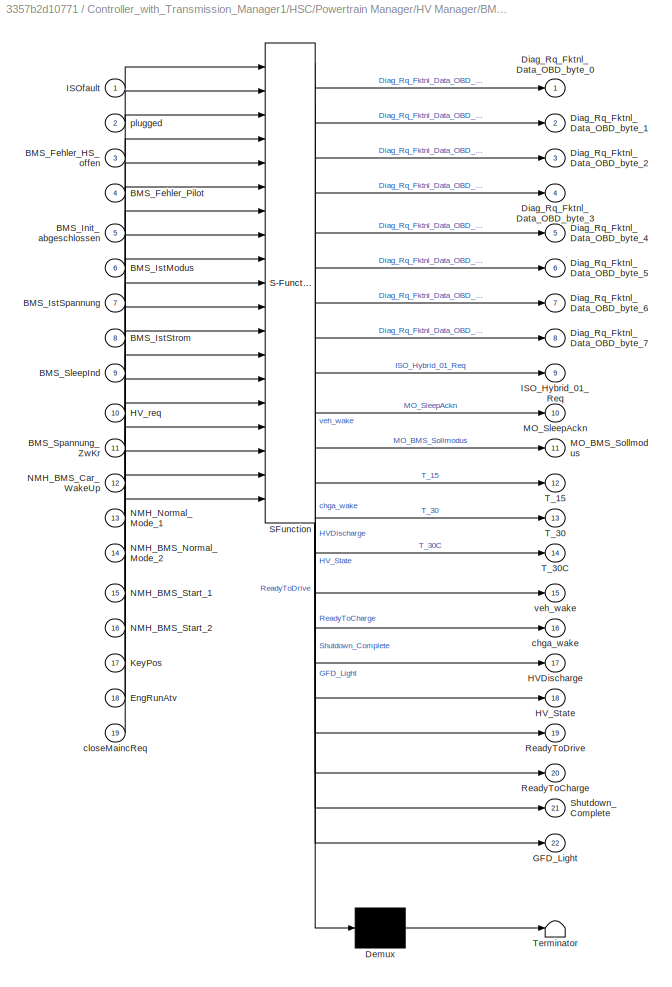
BLOCK [SubSystem] Controller_with_Transmission_Manager1/HSC/Powertrain Manager/HV Manager/BMS_Manager/ESS_Manager
  ErrorFcn = Stateflow.Translate.translate
  PermitHierarchicalResolution = ExplicitOnly
  Ports = [19, 22]
  RequestExecContextInheritance = off
  SFBlockType = Chart
  ShowPortLabels = SignalName
  TreatAsAtomicUnit = on
  Variant = off
BLOCK [Demux] Controller_with_Transmission_Manager1/HSC/Powertrain Manager/HV Manager/BMS_Manager/ESS_Manager/ Demux 
  Outputs = 1
  Ports = [1, 1]
BLOCK [S-Function] Controller_with_Transmission_Manager1/HSC/Powertrain Manager/HV Manager/BMS_Manager/ESS_Manager/ SFunction 
  EnableBusSupport = on
  FunctionName = sf_sfun
  PortCounts = [19 23]
  Ports = [19, 23]
  SFcnIsStateOwnerBlock = off
  SFunctionDeploymentMode = off
  Tag = Stateflow S-Function lib_Controller 36
BLOCK [Terminator] Controller_with_Transmission_Manager1/HSC/Powertrain Manager/HV Manager/BMS_Manager/ESS_Manager/ Terminator 
BLOCK [Inport] Controller_with_Transmission_Manager1/HSC/Powertrain Manager/HV Manager/BMS_Manager/ESS_Manager/BMS_Fehler_HS_offen
  IconDisplay = Port number
  Port = 3
BLOCK [Inport] Controller_with_Transmission_Manager1/HSC/Powertrain Manager/HV Manager/BMS_Manager/ESS_Manager/BMS_Fehler_Pilot
  IconDisplay = Port number
  Port = 4
BLOCK [Inport] Controller_with_Transmission_Manager1/HSC/Powertrain Manager/HV Manager/BMS_Manager/ESS_Manager/BMS_Init_abgeschlossen
  IconDisplay = Port number
  Port = 5
BLOCK [Inport] Controller_with_Transmission_Manager1/HSC/Powertrain Manager/HV Manager/BMS_Manager/ESS_Manager/BMS_IstModus
  IconDisplay = Port number
  Port = 6
BLOCK [Inport] Controller_with_Transmission_Manager1/HSC/Powertrain Manager/HV Manager/BMS_Manager/ESS_Manager/BMS_IstSpannung
  IconDisplay = Port number
  Port = 7
BLOCK [Inport] Controller_with_Transmission_Manager1/HSC/Powertrain Manager/HV Manager/BMS_Manager/ESS_Manager/BMS_IstStrom
  IconDisplay = Port number
  Port = 8
BLOCK [Inport] Controller_with_Transmission_Manager1/HSC/Powertrain Manager/HV Manager/BMS_Manager/ESS_Manager/BMS_SleepInd
  IconDisplay = Port number
  Port = 9
BLOCK [Inport] Controller_with_Transmission_Manager1/HSC/Powertrain Manager/HV Manager/BMS_Manager/ESS_Manager/BMS_Spannung_ZwKr
  IconDisplay = Port number
  Port = 11
BLOCK [Outport] Controller_with_Transmission_Manager1/HSC/Powertrain Manager/HV Manager/BMS_Manager/ESS_Manager/Diag_Rq_Fktnl_Data_OBD_byte_0
  IconDisplay = Port number
BLOCK [Outport] Controller_with_Transmission_Manager1/HSC/Powertrain Manager/HV Manager/BMS_Manager/ESS_Manager/Diag_Rq_Fktnl_Data_OBD_byte_1
  IconDisplay = Port number
  Port = 2
BLOCK [Outport] Controller_with_Transmission_Manager1/HSC/Powertrain Manager/HV Manager/BMS_Manager/ESS_Manager/Diag_Rq_Fktnl_Data_OBD_byte_2
  IconDisplay = Port number
  Port = 3
BLOCK [Outport] Controller_with_Transmission_Manager1/HSC/Powertrain Manager/HV Manager/BMS_Manager/ESS_Manager/Diag_Rq_Fktnl_Data_OBD_byte_3
  IconDisplay = Port number
  Port = 4
BLOCK [Outport] Controller_with_Transmission_Manager1/HSC/Powertrain Manager/HV Manager/BMS_Manager/ESS_Manager/Diag_Rq_Fktnl_Data_OBD_byte_4
  IconDisplay = Port number
  Port = 5
BLOCK [Outport] Controller_with_Transmission_Manager1/HSC/Powertrain Manager/HV Manager/BMS_Manager/ESS_Manager/Diag_Rq_Fktnl_Data_OBD_byte_5
  IconDisplay = Port number
  Port = 6
BLOCK [Outport] Controller_with_Transmission_Manager1/HSC/Powertrain Manager/HV Manager/BMS_Manager/ESS_Manager/Diag_Rq_Fktnl_Data_OBD_byte_6
  IconDisplay = Port number
  Port = 7
BLOCK [Outport] Controller_with_Transmission_Manager1/HSC/Powertrain Manager/HV Manager/BMS_Manager/ESS_Manager/Diag_Rq_Fktnl_Data_OBD_byte_7
  IconDisplay = Port number
  Port = 8
BLOCK [Inport] Controller_with_Transmission_Manager1/HSC/Powertrain Manager/HV Manager/BMS_Manager/ESS_Manager/EngRunAtv
  IconDisplay = Port number
  Port = 18
BLOCK [Outport] Controller_with_Transmission_Manager1/HSC/Powertrain Manager/HV Manager/BMS_Manager/ESS_Manager/GFD_Light
  IconDisplay = Port number
  Port = 22
BLOCK [Outport] Controller_with_Transmission_Manager1/HSC/Powertrain Manager/HV Manager/BMS_Manager/ESS_Manager/HVDischarge
  IconDisplay = Port number
  Port = 17
BLOCK [Outport] Controller_with_Transmission_Manager1/HSC/Powertrain Manager/HV Manager/BMS_Manager/ESS_Manager/HV_State
  IconDisplay = Port number
  Port = 18
BLOCK [Inport] Controller_with_Transmission_Manager1/HSC/Powertrain Manager/HV Manager/BMS_Manager/ESS_Manager/HV_req
  IconDisplay = Port number
  Port = 10
BLOCK [Outport] Controller_with_Transmission_Manager1/HSC/Powertrain Manager/HV Manager/BMS_Manager/ESS_Manager/ISO_Hybrid_01_Req
  IconDisplay = Port number
  Port = 9
BLOCK [Inport] Controller_with_Transmission_Manager1/HSC/Powertrain Manager/HV Manager/BMS_Manager/ESS_Manager/ISOfault
  IconDisplay = Port number
BLOCK [Inport] Controller_with_Transmission_Manager1/HSC/Powertrain Manager/HV Manager/BMS_Manager/ESS_Manager/KeyPos
  IconDisplay = Port number
  Port = 17
BLOCK [Outport] Controller_with_Transmission_Manager1/HSC/Powertrain Manager/HV Manager/BMS_Manager/ESS_Manager/MO_BMS_Sollmodus
  IconDisplay = Port number
  Port = 11
BLOCK [Outport] Controller_with_Transmission_Manager1/HSC/Powertrain Manager/HV Manager/BMS_Manager/ESS_Manager/MO_SleepAckn
  IconDisplay = Port number
  Port = 10
BLOCK [Inport] Controller_with_Transmission_Manager1/HSC/Powertrain Manager/HV Manager/BMS_Manager/ESS_Manager/NMH_BMS_Car_WakeUp
  IconDisplay = Port number
  Port = 12
BLOCK [Inport] Controller_with_Transmission_Manager1/HSC/Powertrain Manager/HV Manager/BMS_Manager/ESS_Manager/NMH_BMS_Normal_Mode_2
  IconDisplay = Port number
  Port = 14
BLOCK [Inport] Controller_with_Transmission_Manager1/HSC/Powertrain Manager/HV Manager/BMS_Manager/ESS_Manager/NMH_BMS_Start_1
  IconDisplay = Port number
  Port = 15
BLOCK [Inport] Controller_with_Transmission_Manager1/HSC/Powertrain Manager/HV Manager/BMS_Manager/ESS_Manager/NMH_BMS_Start_2
  IconDisplay = Port number
  Port = 16
BLOCK [Inport] Controller_with_Transmission_Manager1/HSC/Powertrain Manager/HV Manager/BMS_Manager/ESS_Manager/NMH_Normal_Mode_1
  IconDisplay = Port number
  Port = 13
BLOCK [Outport] Controller_with_Transmission_Manager1/HSC/Powertrain Manager/HV Manager/BMS_Manager/ESS_Manager/ReadyToCharge
  IconDisplay = Port number
  Port = 20
BLOCK [Outport] Controller_with_Transmission_Manager1/HSC/Powertrain Manager/HV Manager/BMS_Manager/ESS_Manager/ReadyToDrive
  IconDisplay = Port number
  Port = 19
BLOCK [Outport] Controller_with_Transmission_Manager1/HSC/Powertrain Manager/HV Manager/BMS_Manager/ESS_Manager/Shutdown_Complete
  IconDisplay = Port number
  Port = 21
BLOCK [Outport] Controller_with_Transmission_Manager1/HSC/Powertrain Manager/HV Manager/BMS_Manager/ESS_Manager/T_15
  IconDisplay = Port number
  Port = 12
BLOCK [Outport] Controller_with_Transmission_Manager1/HSC/Powertrain Manager/HV Manager/BMS_Manager/ESS_Manager/T_30
  IconDisplay = Port number
  Port = 13
BLOCK [Outport] Controller_with_Transmission_Manager1/HSC/Powertrain Manager/HV Manager/BMS_Manager/ESS_Manager/T_30C
  IconDisplay = Port number
  Port = 14
BLOCK [Outport] Controller_with_Transmission_Manager1/HSC/Powertrain Manager/HV Manager/BMS_Manager/ESS_Manager/chga_wake
  IconDisplay = Port number
  Port = 16
BLOCK [Inport] Controller_with_Transmission_Manager1/HSC/Powertrain Manager/HV Manager/BMS_Manager/ESS_Manager/closeMaincReq
  IconDisplay = Port number
  Port = 19
BLOCK [Inport] Controller_with_Transmission_Manager1/HSC/Powertrain Manager/HV Manager/BMS_Manager/ESS_Manager/plugged
  IconDisplay = Port number
  Port = 2
BLOCK [Outport] Controller_with_Transmission_Manager1/HSC/Powertrain Manager/HV Manager/BMS_Manager/ESS_Manager/veh_wake
  IconDisplay = Port number
  Port = 15
BLOCK [Reference] Controller_with_Transmission_Manager1/HSC/Powertrain Manager/HV Manager/BMS_Manager/Edge Detector  REF=powerlib_meascontrol/Logic/Edge Detector
  Ports = [1, 1]
  SourceBlock = powerlib_meascontrol/Logic/Edge Detector
  SourceProductBaseCode = PS
  SourceProductName = Simscape Power Systems
  SourceType = Edge Detector
BLOCK [SubSystem] Controller_with_Transmission_Manager1/HSC/Powertrain Manager/HV Manager/BMS_Manager/Fault Latch
  Ports = [1, 1]
  RequestExecContextInheritance = off
  Variant = off
BLOCK [Inport] Controller_with_Transmission_Manager1/HSC/Powertrain Manager/HV Manager/BMS_Manager/Fault Latch/IsoFault
  IconDisplay = Port number
BLOCK [Outport] Controller_with_Transmission_Manager1/HSC/Powertrain Manager/HV Manager/BMS_Manager/Fault Latch/IsoFaultLatched
  IconDisplay = Port number
BLOCK [Reference] Controller_with_Transmission_Manager1/HSC/Powertrain Manager/HV Manager/BMS_Manager/Fault Latch/Off Delay  REF=powerlib_meascontrol/Logic/On Delay
  Ports = [1, 1]
  SourceBlock = powerlib_meascontrol/Logic/On Delay
  SourceProductBaseCode = PS
  SourceProductName = Simscape Power Systems
  SourceType = On/Off Delay
BLOCK [Outport] Controller_with_Transmission_Manager1/HSC/Powertrain Manager/HV Manager/BMS_Manager/HV_BUS_Status
  IconDisplay = Port number
  Port = 2
BLOCK [SubSystem] Controller_with_Transmission_Manager1/HSC/Powertrain Manager/HV Manager/BMS_Manager/ISO_Hybrid_01_Req
  Ports = [1, 1]
  RequestExecContextInheritance = off
  Variant = off
BLOCK [BusCreator] Controller_with_Transmission_Manager1/HSC/Powertrain Manager/HV Manager/BMS_Manager/ISO_Hybrid_01_Req/Bus Creator
  DisplayOption = bar
  InheritFromInputs = on
  Inputs = 9
  Ports = [9, 1]
BLOCK [Constant] Controller_with_Transmission_Manager1/HSC/Powertrain Manager/HV Manager/BMS_Manager/ISO_Hybrid_01_Req/ISO_Hybrid_01_Req_Data_byte_0
  Value = 3
BLOCK [Constant] Controller_with_Transmission_Manager1/HSC/Powertrain Manager/HV Manager/BMS_Manager/ISO_Hybrid_01_Req/ISO_Hybrid_01_Req_Data_byte_1
  Value = 34
BLOCK [Constant] Controller_with_Transmission_Manager1/HSC/Powertrain Manager/HV Manager/BMS_Manager/ISO_Hybrid_01_Req/ISO_Hybrid_01_Req_Data_byte_2
  Value = 30
BLOCK [Constant] Controller_with_Transmission_Manager1/HSC/Powertrain Manager/HV Manager/BMS_Manager/ISO_Hybrid_01_Req/ISO_Hybrid_01_Req_Data_byte_3
  Value = 25
BLOCK [Constant] Controller_with_Transmission_Manager1/HSC/Powertrain Manager/HV Manager/BMS_Manager/ISO_Hybrid_01_Req/ISO_Hybrid_01_Req_Data_byte_4
  Value = 0
BLOCK [Constant] Controller_with_Transmission_Manager1/HSC/Powertrain Manager/HV Manager/BMS_Manager/ISO_Hybrid_01_Req/ISO_Hybrid_01_Req_Data_byte_5
  Value = 0
BLOCK [Constant] Controller_with_Transmission_Manager1/HSC/Powertrain Manager/HV Manager/BMS_Manager/ISO_Hybrid_01_Req/ISO_Hybrid_01_Req_Data_byte_6
  Value = 0
BLOCK [Constant] Controller_with_Transmission_Manager1/HSC/Powertrain Manager/HV Manager/BMS_Manager/ISO_Hybrid_01_Req/ISO_Hybrid_01_Req_Data_byte_7
  Value = 0
BLOCK [Constant] Controller_with_Transmission_Manager1/HSC/Powertrain Manager/HV Manager/BMS_Manager/ISO_Hybrid_01_Req/ISO_Hybrid_01_Req_Data_byte_8
  Value = 23
BLOCK [DiscretePulseGenerator] Controller_with_Transmission_Manager1/HSC/Powertrain Manager/HV Manager/BMS_Manager/ISO_Hybrid_01_Req/ISO_Request
  Period = 0.5
  Ports = [0, 1]
  PulseType = Time based
  PulseWidth = 50
  SampleTime = -1
BLOCK [Inport] Controller_with_Transmission_Manager1/HSC/Powertrain Manager/HV Manager/BMS_Manager/ISO_Hybrid_01_Req/In1
  IconDisplay = Port number
BLOCK [Outport] Controller_with_Transmission_Manager1/HSC/Powertrain Manager/HV Manager/BMS_Manager/ISO_Hybrid_01_Req/Out1
  IconDisplay = Port number
BLOCK [Switch] Controller_with_Transmission_Manager1/HSC/Powertrain Manager/HV Manager/BMS_Manager/ISO_Hybrid_01_Req/Switch
  Criteria = u2 > Threshold
  InputSameDT = off
  SaturateOnIntegerOverflow = off
BLOCK [Switch] Controller_with_Transmission_Manager1/HSC/Powertrain Manager/HV Manager/BMS_Manager/ISO_Hybrid_01_Req/Switch1
  Criteria = u2 > Threshold
  InputSameDT = off
  SaturateOnIntegerOverflow = off
BLOCK [Switch] Controller_with_Transmission_Manager1/HSC/Powertrain Manager/HV Manager/BMS_Manager/ISO_Hybrid_01_Req/Switch2
  Criteria = u2 > Threshold
  InputSameDT = off
  SaturateOnIntegerOverflow = off
BLOCK [Switch] Controller_with_Transmission_Manager1/HSC/Powertrain Manager/HV Manager/BMS_Manager/ISO_Hybrid_01_Req/Switch3
  Criteria = u2 > Threshold
  InputSameDT = off
  SaturateOnIntegerOverflow = off
BLOCK [Switch] Controller_with_Transmission_Manager1/HSC/Powertrain Manager/HV Manager/BMS_Manager/ISO_Hybrid_01_Req/Switch4
  Criteria = u2 > Threshold
  InputSameDT = off
  SaturateOnIntegerOverflow = off
BLOCK [Switch] Controller_with_Transmission_Manager1/HSC/Powertrain Manager/HV Manager/BMS_Manager/ISO_Hybrid_01_Req/Switch5
  Criteria = u2 > Threshold
  InputSameDT = off
  SaturateOnIntegerOverflow = off
BLOCK [Switch] Controller_with_Transmission_Manager1/HSC/Powertrain Manager/HV Manager/BMS_Manager/ISO_Hybrid_01_Req/Switch6
  Criteria = u2 > Threshold
  InputSameDT = off
  SaturateOnIntegerOverflow = off
BLOCK [Switch] Controller_with_Transmission_Manager1/HSC/Powertrain Manager/HV Manager/BMS_Manager/ISO_Hybrid_01_Req/Switch7
  Criteria = u2 > Threshold
  InputSameDT = off
  SaturateOnIntegerOverflow = off
BLOCK [Switch] Controller_with_Transmission_Manager1/HSC/Powertrain Manager/HV Manager/BMS_Manager/ISO_Hybrid_01_Req/Switch8
  Criteria = u2 > Threshold
  InputSameDT = off
  SaturateOnIntegerOverflow = off
BLOCK [SubSystem] Controller_with_Transmission_Manager1/HSC/Powertrain Manager/HV Manager/BMS_Manager/Isolation Fault Calculation
  Ports = [1, 1]
  RequestExecContextInheritance = off
  Variant = off
BLOCK [BusSelector] Controller_with_Transmission_Manager1/HSC/Powertrain Manager/HV Manager/BMS_Manager/Isolation Fault Calculation/Bus Selector5
  OutputAsBus = off
  OutputSignals = from_CAN.fromEBCAN.from_BMSAntrieb.ISO_Hybrid_01_Resp_Data.ISO_Hybrid_01_Resp_Data_byte_3,from_CAN.fromEBCAN.from_BMSAntrieb.ISO_Hybrid_01_Resp_Data.ISO_Hybrid_01_Resp_Data_byte_4,from_CAN.fromEBCAN.from_BMSAntrieb.ISO_Hybrid_01_Resp_Data.ISO_Hybrid_01_Resp_Data_byte_5
  Ports = [1, 3]
BLOCK [Reference] Controller_with_Transmission_Manager1/HSC/Powertrain Manager/HV Manager/BMS_Manager/Isolation Fault Calculation/Compare To Constant  REF=simulink/Logic and Bit
Operations/Compare
To Constant
  Ports = [1, 1]
  SourceBlock = simulink/Logic and Bit\nOperations/Compare\nTo Constant
  SourceProductBaseCode = SL
  SourceProductName = Simulink
  SourceType = Compare To Constant
BLOCK [Reference] Controller_with_Transmission_Manager1/HSC/Powertrain Manager/HV Manager/BMS_Manager/Isolation Fault Calculation/Compare To Constant1  REF=simulink/Logic and Bit
Operations/Compare
To Constant
  Ports = [1, 1]
  SourceBlock = simulink/Logic and Bit\nOperations/Compare\nTo Constant
  SourceProductBaseCode = SL
  SourceProductName = Simulink
  SourceType = Compare To Constant
BLOCK [Constant] Controller_with_Transmission_Manager1/HSC/Powertrain Manager/HV Manager/BMS_Manager/Isolation Fault Calculation/HVnegativeISO
  Value = 0
BLOCK [Constant] Controller_with_Transmission_Manager1/HSC/Powertrain Manager/HV Manager/BMS_Manager/Isolation Fault Calculation/HVpositiveISO
BLOCK [Outport] Controller_with_Transmission_Manager1/HSC/Powertrain Manager/HV Manager/BMS_Manager/Isolation Fault Calculation/IsoFault
  IconDisplay = Port number
BLOCK [Logic] Controller_with_Transmission_Manager1/HSC/Powertrain Manager/HV Manager/BMS_Manager/Isolation Fault Calculation/Logical Operator
  AllPortsSameDT = off
  Operator = OR
  OutDataTypeStr = boolean
  Ports = [2, 1]
BLOCK [Switch] Controller_with_Transmission_Manager1/HSC/Powertrain Manager/HV Manager/BMS_Manager/Isolation Fault Calculation/POS or NEG HV MAIN
  Criteria = u2 > Threshold
  InputSameDT = off
  SaturateOnIntegerOverflow = off
  Threshold = 24
BLOCK [SubSystem] Controller_with_Transmission_Manager1/HSC/Powertrain Manager/HV Manager/BMS_Manager/Isolation Fault Calculation/Resistance_Measurement
  Ports = [2, 1, 1]
  RequestExecContextInheritance = off
  Variant = off
BLOCK [Sum] Controller_with_Transmission_Manager1/HSC/Powertrain Manager/HV Manager/BMS_Manager/Isolation Fault Calculation/Resistance_Measurement/Add
  InputSameDT = off
  OutDataTypeStr = Inherit: Inherit via internal rule
  Ports = [2, 1]
  SaturateOnIntegerOverflow = off
BLOCK [EnablePort] Controller_with_Transmission_Manager1/HSC/Powertrain Manager/HV Manager/BMS_Manager/Isolation Fault Calculation/Resistance_Measurement/Enable
  Ports = []
BLOCK [Constant] Controller_with_Transmission_Manager1/HSC/Powertrain Manager/HV Manager/BMS_Manager/Isolation Fault Calculation/Resistance_Measurement/ISOfault
BLOCK [Constant] Controller_with_Transmission_Manager1/HSC/Powertrain Manager/HV Manager/BMS_Manager/Isolation Fault Calculation/Resistance_Measurement/ISOmultiplier
  Value = 256
BLOCK [Constant] Controller_with_Transmission_Manager1/HSC/Powertrain Manager/HV Manager/BMS_Manager/Isolation Fault Calculation/Resistance_Measurement/ISOnofault
  Value = 0
BLOCK [Inport] Controller_with_Transmission_Manager1/HSC/Powertrain Manager/HV Manager/BMS_Manager/Isolation Fault Calculation/Resistance_Measurement/In1
  IconDisplay = Port number
BLOCK [Inport] Controller_with_Transmission_Manager1/HSC/Powertrain Manager/HV Manager/BMS_Manager/Isolation Fault Calculation/Resistance_Measurement/In2
  IconDisplay = Port number
  Port = 2
BLOCK [Outport] Controller_with_Transmission_Manager1/HSC/Powertrain Manager/HV Manager/BMS_Manager/Isolation Fault Calculation/Resistance_Measurement/IsoFault
  IconDisplay = Port number
BLOCK [Switch] Controller_with_Transmission_Manager1/HSC/Powertrain Manager/HV Manager/BMS_Manager/Isolation Fault Calculation/Resistance_Measurement/Minimum Allowed Isolation Resistance
  Criteria = u2 > Threshold
  InputSameDT = off
  SaturateOnIntegerOverflow = off
  Threshold = 500000
BLOCK [Product] Controller_with_Transmission_Manager1/HSC/Powertrain Manager/HV Manager/BMS_Manager/Isolation Fault Calculation/Resistance_Measurement/Product
  InputSameDT = off
  OutDataTypeStr = Inherit: Inherit via internal rule
  Ports = [2, 1]
  RndMeth = Floor
  SaturateOnIntegerOverflow = off
BLOCK [Product] Controller_with_Transmission_Manager1/HSC/Powertrain Manager/HV Manager/BMS_Manager/Isolation Fault Calculation/Resistance_Measurement/Product1
  InputSameDT = off
  OutDataTypeStr = Inherit: Inherit via internal rule
  Ports = [2, 1]
  RndMeth = Floor
  SaturateOnIntegerOverflow = off
BLOCK [Constant] Controller_with_Transmission_Manager1/HSC/Powertrain Manager/HV Manager/BMS_Manager/Isolation Fault Calculation/Resistance_Measurement/Resistance Adjustment
  Value = 1000
BLOCK [Inport] Controller_with_Transmission_Manager1/HSC/Powertrain Manager/HV Manager/BMS_Manager/Isolation Fault Calculation/Sensors1
  IconDisplay = Port number
BLOCK [Terminator] Controller_with_Transmission_Manager1/HSC/Powertrain Manager/HV Manager/BMS_Manager/Isolation Fault Calculation/Terminator8
BLOCK [Inport] Controller_with_Transmission_Manager1/HSC/Powertrain Manager/HV Manager/BMS_Manager/Sensors
  IconDisplay = Port number
BLOCK [BusCreator] Controller_with_Transmission_Manager1/HSC/Powertrain Manager/HV Manager/Bus Creator1
  DisplayOption = bar
  InheritFromInputs = on
  Inputs = 5
  Ports = [5, 1]
BLOCK [Inport] Controller_with_Transmission_Manager1/HSC/Powertrain Manager/HV Manager/Controls
  IconDisplay = Port number
  Port = 2
BLOCK [SubSystem] Controller_with_Transmission_Manager1/HSC/Powertrain Manager/HV Manager/DCDC Manager
  Ports = [2, 1]
  RequestExecContextInheritance = off
  Variant = off
BLOCK [Inport] Controller_with_Transmission_Manager1/HSC/Powertrain Manager/HV Manager/DCDC Manager/BMSInput
  IconDisplay = Port number
BLOCK [BusCreator] Controller_with_Transmission_Manager1/HSC/Powertrain Manager/HV Manager/DCDC Manager/Bus Creator
  DisplayOption = bar
  InheritFromInputs = on
  Inputs = 6
  Ports = [6, 1]
BLOCK [BusSelector] Controller_with_Transmission_Manager1/HSC/Powertrain Manager/HV Manager/DCDC Manager/Bus Selector
  OutputAsBus = off
  OutputSignals = from_CAN.fromHV_CAN.from_MCU.INV_VCU_01.INV_State
  Ports = [1, 1]
BLOCK [BusSelector] Controller_with_Transmission_Manager1/HSC/Powertrain Manager/HV Manager/DCDC Manager/Bus Selector1
  OutputAsBus = off
  OutputSignals = from_CAN.fromHV_CAN.from_BMSHybrid.BMS_HYB_02.BMS_IstSpannung,from_CAN.fromHV_CAN.from_BMSHybrid.BMS_Spannung_ZwKr,from_CAN.fromHV_CAN.from_BMSHybrid.BMS_HYB_02.BMS_Fehler_Pilot
  Ports = [1, 3]
BLOCK [BusSelector] Controller_with_Transmission_Manager1/HSC/Powertrain Manager/HV Manager/DCDC Manager/Bus Selector2
  OutputAsBus = off
  OutputSignals = mode,powerMode
  Ports = [1, 2]
BLOCK [SubSystem] Controller_with_Transmission_Manager1/HSC/Powertrain Manager/HV Manager/DCDC Manager/Contactors status check
  Ports = [3, 1]
  RequestExecContextInheritance = off
  Variant = off
BLOCK [Reference] Controller_with_Transmission_Manager1/HSC/Powertrain Manager/HV Manager/DCDC Manager/Contactors status check/   REF=simulink/Logic and Bit
Operations/Compare
To Constant
  Ports = [1, 1]
  SourceBlock = simulink/Logic and Bit\nOperations/Compare\nTo Constant
  SourceProductBaseCode = SL
  SourceProductName = Simulink
  SourceType = Compare To Constant
BLOCK [Abs] Controller_with_Transmission_Manager1/HSC/Powertrain Manager/HV Manager/DCDC Manager/Contactors status check/Abs
  SaturateOnIntegerOverflow = off
BLOCK [Inport] Controller_with_Transmission_Manager1/HSC/Powertrain Manager/HV Manager/DCDC Manager/Contactors status check/BMS_HVILfault
  IconDisplay = Port number
  Port = 3
BLOCK [Inport] Controller_with_Transmission_Manager1/HSC/Powertrain Manager/HV Manager/DCDC Manager/Contactors status check/BMS_LinkVoltage
  IconDisplay = Port number
  Port = 2
BLOCK [Inport] Controller_with_Transmission_Manager1/HSC/Powertrain Manager/HV Manager/DCDC Manager/Contactors status check/BMS_Voltage
  IconDisplay = Port number
BLOCK [Logic] Controller_with_Transmission_Manager1/HSC/Powertrain Manager/HV Manager/DCDC Manager/Contactors status check/Logical Operator
  AllPortsSameDT = off
  Operator = OR
  OutDataTypeStr = boolean
  Ports = [2, 1]
BLOCK [Outport] Controller_with_Transmission_Manager1/HSC/Powertrain Manager/HV Manager/DCDC Manager/Contactors status check/Out1
  IconDisplay = Port number
BLOCK [Sum] Controller_with_Transmission_Manager1/HSC/Powertrain Manager/HV Manager/DCDC Manager/Contactors status check/Sum
  InputSameDT = off
  Inputs = +-
  OutDataTypeStr = Inherit: Inherit via internal rule
  Ports = [2, 1]
  SaturateOnIntegerOverflow = off
BLOCK [Inport] Controller_with_Transmission_Manager1/HSC/Powertrain Manager/HV Manager/DCDC Manager/Control
  IconDisplay = Port number
  Port = 2
BLOCK [SubSystem] Controller_with_Transmission_Manager1/HSC/Powertrain Manager/HV Manager/DCDC Manager/DCDCManager
  ErrorFcn = Stateflow.Translate.translate
  PermitHierarchicalResolution = ExplicitOnly
  Ports = [4, 6]
  RequestExecContextInheritance = off
  SFBlockType = Chart
  TreatAsAtomicUnit = on
  Variant = off
BLOCK [Demux] Controller_with_Transmission_Manager1/HSC/Powertrain Manager/HV Manager/DCDC Manager/DCDCManager/ Demux 
  Outputs = 1
  Ports = [1, 1]
BLOCK [S-Function] Controller_with_Transmission_Manager1/HSC/Powertrain Manager/HV Manager/DCDC Manager/DCDCManager/ SFunction 
  EnableBusSupport = on
  FunctionName = sf_sfun
  PortCounts = [4 7]
  Ports = [4, 7]
  SFcnIsStateOwnerBlock = off
  SFunctionDeploymentMode = off
  Tag = Stateflow S-Function lib_Controller 37
BLOCK [Terminator] Controller_with_Transmission_Manager1/HSC/Powertrain Manager/HV Manager/DCDC Manager/DCDCManager/ Terminator 
BLOCK [Inport] Controller_with_Transmission_Manager1/HSC/Powertrain Manager/HV Manager/DCDC Manager/DCDCManager/ContactorsFailed
  IconDisplay = Port number
BLOCK [Outport] Controller_with_Transmission_Manager1/HSC/Powertrain Manager/HV Manager/DCDC Manager/DCDCManager/CurrentHV
  IconDisplay = Port number
  Port = 3
BLOCK [Outport] Controller_with_Transmission_Manager1/HSC/Powertrain Manager/HV Manager/DCDC Manager/DCDCManager/CurrentLV
  IconDisplay = Port number
  Port = 5
BLOCK [Outport] Controller_with_Transmission_Manager1/HSC/Powertrain Manager/HV Manager/DCDC Manager/DCDCManager/DCDC_State
  IconDisplay = Port number
  Port = 6
BLOCK [Outport] Controller_with_Transmission_Manager1/HSC/Powertrain Manager/HV Manager/DCDC Manager/DCDCManager/DCmode
  IconDisplay = Port number
BLOCK [Inport] Controller_with_Transmission_Manager1/HSC/Powertrain Manager/HV Manager/DCDC Manager/DCDCManager/INV_state
  IconDisplay = Port number
  Port = 2
BLOCK [Outport] Controller_with_Transmission_Manager1/HSC/Powertrain Manager/HV Manager/DCDC Manager/DCDCManager/VoltageHV
  IconDisplay = Port number
  Port = 2
BLOCK [Outport] Controller_with_Transmission_Manager1/HSC/Powertrain Manager/HV Manager/DCDC Manager/DCDCManager/VoltageLV
  IconDisplay = Port number
  Port = 4
BLOCK [Inport] Controller_with_Transmission_Manager1/HSC/Powertrain Manager/HV Manager/DCDC Manager/DCDCManager/mode
  IconDisplay = Port number
  Port = 3
BLOCK [Inport] Controller_with_Transmission_Manager1/HSC/Powertrain Manager/HV Manager/DCDC Manager/DCDCManager/powerMode
  IconDisplay = Port number
  Port = 4
BLOCK [Outport] Controller_with_Transmission_Manager1/HSC/Powertrain Manager/HV Manager/DCDC Manager/DCDC_Status
  IconDisplay = Port number
BLOCK [SubSystem] Controller_with_Transmission_Manager1/HSC/Powertrain Manager/HV Manager/DCDC Manager/DCModeOverride
  Ports = [1, 1]
  RequestExecContextInheritance = off
  Variant = off
BLOCK [Constant] Controller_with_Transmission_Manager1/HSC/Powertrain Manager/HV Manager/DCDC Manager/DCModeOverride/DCDCOVrrdSwitch
  Value = 0
BLOCK [Constant] Controller_with_Transmission_Manager1/HSC/Powertrain Manager/HV Manager/DCDC Manager/DCModeOverride/DCDCOVrrdVal
  Value = 0
BLOCK [Inport] Controller_with_Transmission_Manager1/HSC/Powertrain Manager/HV Manager/DCDC Manager/DCModeOverride/In1
  IconDisplay = Port number
BLOCK [Outport] Controller_with_Transmission_Manager1/HSC/Powertrain Manager/HV Manager/DCDC Manager/DCModeOverride/Out1
  IconDisplay = Port number
BLOCK [Switch] Controller_with_Transmission_Manager1/HSC/Powertrain Manager/HV Manager/DCDC Manager/DCModeOverride/Switch
  Criteria = u2 > Threshold
  InputSameDT = off
  SaturateOnIntegerOverflow = off
BLOCK [From] Controller_with_Transmission_Manager1/HSC/Powertrain Manager/HV Manager/From
  GotoTag = HV_BUS_Status
  TagVisibility = global
BLOCK [From] Controller_with_Transmission_Manager1/HSC/Powertrain Manager/HV Manager/From1
  GotoTag = HV_BUS_Status
  TagVisibility = global
BLOCK [From] Controller_with_Transmission_Manager1/HSC/Powertrain Manager/HV Manager/From2
  GotoTag = HV_BUS_Status
  TagVisibility = global
BLOCK [Goto] Controller_with_Transmission_Manager1/HSC/Powertrain Manager/HV Manager/Goto2
  GotoTag = MCU_CAN
  TagVisibility = global
BLOCK [Outport] Controller_with_Transmission_Manager1/HSC/Powertrain Manager/HV Manager/HV_BUS_Status
  IconDisplay = Port number
  Port = 2
BLOCK [SubSystem] Controller_with_Transmission_Manager1/HSC/Powertrain Manager/HV Manager/Inverter Manager
  Ports = [3, 4]
  RequestExecContextInheritance = off
  Variant = off
BLOCK [BusCreator] Controller_with_Transmission_Manager1/HSC/Powertrain Manager/HV Manager/Inverter Manager/Bus Creator2
  DisplayOption = bar
  InheritFromInputs = on
  Inputs = 1
  Ports = [1, 1]
BLOCK [BusCreator] Controller_with_Transmission_Manager1/HSC/Powertrain Manager/HV Manager/Inverter Manager/Bus Creator3
  DisplayOption = bar
  InheritFromInputs = on
  Inputs = 2
  Ports = [2, 1]
BLOCK [BusCreator] Controller_with_Transmission_Manager1/HSC/Powertrain Manager/HV Manager/Inverter Manager/Bus Creator4
  DisplayOption = bar
  InheritFromInputs = on
  Inputs = 1
  Ports = [1, 1]
BLOCK [BusCreator] Controller_with_Transmission_Manager1/HSC/Powertrain Manager/HV Manager/Inverter Manager/Bus Creator5
  DisplayOption = bar
  InheritFromInputs = on
  Inputs = 1
  Ports = [1, 1]
BLOCK [BusSelector] Controller_with_Transmission_Manager1/HSC/Powertrain Manager/HV Manager/Inverter Manager/Bus Selector
  OutputAsBus = off
  OutputSignals = ReadyToDrive,ReadyToCharge
  Ports = [1, 2]
BLOCK [BusSelector] Controller_with_Transmission_Manager1/HSC/Powertrain Manager/HV Manager/Inverter Manager/Bus Selector1
  OutputAsBus = off
  OutputSignals = EnableInverter
  Ports = [1, 1]
BLOCK [BusSelector] Controller_with_Transmission_Manager1/HSC/Powertrain Manager/HV Manager/Inverter Manager/Bus Selector3
  OutputAsBus = off
  OutputSignals = from_CAN.fromHV_CAN.from_MCU.INV_VCU_01.MessageCounter,from_CAN.fromHV_CAN.from_MCU.INV_VCU_01.INV_State,from_CAN.fromHV_CAN.from_MCU.INV_VCU_01.INV_CurrentHV
  Ports = [1, 3]
BLOCK [Inport] Controller_with_Transmission_Manager1/HSC/Powertrain Manager/HV Manager/Inverter Manager/Control
  IconDisplay = Port number
  Port = 3
BLOCK [DataTypeConversion] Controller_with_Transmission_Manager1/HSC/Powertrain Manager/HV Manager/Inverter Manager/Data Type Conversion
  OutDataTypeStr = boolean
  RndMeth = Floor
  SaturateOnIntegerOverflow = off
BLOCK [DataTypeConversion] Controller_with_Transmission_Manager1/HSC/Powertrain Manager/HV Manager/Inverter Manager/Data Type Conversion1
  OutDataTypeStr = boolean
  RndMeth = Floor
  SaturateOnIntegerOverflow = off
BLOCK [DataTypeConversion] Controller_with_Transmission_Manager1/HSC/Powertrain Manager/HV Manager/Inverter Manager/Data Type Conversion2
  RndMeth = Floor
  SaturateOnIntegerOverflow = off
BLOCK [DataTypeConversion] Controller_with_Transmission_Manager1/HSC/Powertrain Manager/HV Manager/Inverter Manager/Data Type Conversion3
  OutDataTypeStr = boolean
  RndMeth = Floor
  SaturateOnIntegerOverflow = off
BLOCK [Reference] Controller_with_Transmission_Manager1/HSC/Powertrain Manager/HV Manager/Inverter Manager/Detect Change1  REF=simulink/Logic and Bit
Operations/Detect
Change
  Ports = [1, 1]
  SourceBlock = simulink/Logic and Bit\nOperations/Detect\nChange
  SourceProductBaseCode = SL
  SourceProductName = Simulink
  SourceType = Detect Change
BLOCK [Constant] Controller_with_Transmission_Manager1/HSC/Powertrain Manager/HV Manager/Inverter Manager/HVCAN_State
BLOCK [Inport] Controller_with_Transmission_Manager1/HSC/Powertrain Manager/HV Manager/Inverter Manager/HV_Bus_Status
  IconDisplay = Port number
BLOCK [Outport] Controller_with_Transmission_Manager1/HSC/Powertrain Manager/HV Manager/Inverter Manager/MCU_CAN
  IconDisplay = Port number
  Port = 2
BLOCK [SubSystem] Controller_with_Transmission_Manager1/HSC/Powertrain Manager/HV Manager/Inverter Manager/MCU_Manager 
  ErrorFcn = Stateflow.Translate.translate
  PermitHierarchicalResolution = ExplicitOnly
  Ports = [8, 5]
  RequestExecContextInheritance = off
  SFBlockType = Chart
  TreatAsAtomicUnit = on
  Variant = off
BLOCK [Demux] Controller_with_Transmission_Manager1/HSC/Powertrain Manager/HV Manager/Inverter Manager/MCU_Manager / Demux 
  Outputs = 1
  Ports = [1, 1]
BLOCK [S-Function] Controller_with_Transmission_Manager1/HSC/Powertrain Manager/HV Manager/Inverter Manager/MCU_Manager / SFunction 
  EnableBusSupport = on
  FunctionName = sf_sfun
  PortCounts = [8 6]
  Ports = [8, 6]
  SFcnIsStateOwnerBlock = off
  SFunctionDeploymentMode = off
  Tag = Stateflow S-Function lib_Controller 38
BLOCK [Terminator] Controller_with_Transmission_Manager1/HSC/Powertrain Manager/HV Manager/Inverter Manager/MCU_Manager / Terminator 
BLOCK [Outport] Controller_with_Transmission_Manager1/HSC/Powertrain Manager/HV Manager/Inverter Manager/MCU_Manager /CAN_Activation
  IconDisplay = Port number
  Port = 5
BLOCK [Inport] Controller_with_Transmission_Manager1/HSC/Powertrain Manager/HV Manager/Inverter Manager/MCU_Manager /EnableInverter
  IconDisplay = Port number
  Port = 7
BLOCK [Inport] Controller_with_Transmission_Manager1/HSC/Powertrain Manager/HV Manager/Inverter Manager/MCU_Manager /HVCAN_State
  IconDisplay = Port number
  Port = 3
BLOCK [Outport] Controller_with_Transmission_Manager1/HSC/Powertrain Manager/HV Manager/Inverter Manager/MCU_Manager /INVCON_Power
  IconDisplay = Port number
  Port = 3
BLOCK [Inport] Controller_with_Transmission_Manager1/HSC/Powertrain Manager/HV Manager/Inverter Manager/MCU_Manager /INVCON_Power_Feedback
  IconDisplay = Port number
  Port = 4
BLOCK [Inport] Controller_with_Transmission_Manager1/HSC/Powertrain Manager/HV Manager/Inverter Manager/MCU_Manager /INV_CurrentHV
  IconDisplay = Port number
  Port = 6
BLOCK [Inport] Controller_with_Transmission_Manager1/HSC/Powertrain Manager/HV Manager/Inverter Manager/MCU_Manager /INV_State
  IconDisplay = Port number
  Port = 5
BLOCK [Outport] Controller_with_Transmission_Manager1/HSC/Powertrain Manager/HV Manager/Inverter Manager/MCU_Manager /MCU_State
  IconDisplay = Port number
BLOCK [Outport] Controller_with_Transmission_Manager1/HSC/Powertrain Manager/HV Manager/Inverter Manager/MCU_Manager /Motor_Torque_Command
  IconDisplay = Port number
  Port = 2
BLOCK [Inport] Controller_with_Transmission_Manager1/HSC/Powertrain Manager/HV Manager/Inverter Manager/MCU_Manager /ReadyToCharge
  IconDisplay = Port number
  Port = 2
BLOCK [Inport] Controller_with_Transmission_Manager1/HSC/Powertrain Manager/HV Manager/Inverter Manager/MCU_Manager /ReadyToDrive
  IconDisplay = Port number
BLOCK [Outport] Controller_with_Transmission_Manager1/HSC/Powertrain Manager/HV Manager/Inverter Manager/MCU_Manager /RequestedStateINV
  IconDisplay = Port number
  Port = 4
BLOCK [Inport] Controller_with_Transmission_Manager1/HSC/Powertrain Manager/HV Manager/Inverter Manager/MCU_Manager /ShutdownCurrent
  IconDisplay = Port number
  Port = 8
BLOCK [Outport] Controller_with_Transmission_Manager1/HSC/Powertrain Manager/HV Manager/Inverter Manager/MCU_Relay
  IconDisplay = Port number
  Port = 4
BLOCK [Outport] Controller_with_Transmission_Manager1/HSC/Powertrain Manager/HV Manager/Inverter Manager/MCU_Status
  IconDisplay = Port number
BLOCK [Outport] Controller_with_Transmission_Manager1/HSC/Powertrain Manager/HV Manager/Inverter Manager/MCU_Torque_disconnect
  IconDisplay = Port number
  Port = 3
BLOCK [SubSystem] Controller_with_Transmission_Manager1/HSC/Powertrain Manager/HV Manager/Inverter Manager/RequestOverride
  Ports = [1, 1]
  RequestExecContextInheritance = off
  Variant = off
BLOCK [Inport] Controller_with_Transmission_Manager1/HSC/Powertrain Manager/HV Manager/Inverter Manager/RequestOverride/In1
  IconDisplay = Port number
BLOCK [Outport] Controller_with_Transmission_Manager1/HSC/Powertrain Manager/HV Manager/Inverter Manager/RequestOverride/Out1
  IconDisplay = Port number
BLOCK [Constant] Controller_with_Transmission_Manager1/HSC/Powertrain Manager/HV Manager/Inverter Manager/RequestOverride/ReqStateOVrRDSwitch
  Value = 0
BLOCK [Constant] Controller_with_Transmission_Manager1/HSC/Powertrain Manager/HV Manager/Inverter Manager/RequestOverride/RequestedStateOvrRdValue
BLOCK [Switch] Controller_with_Transmission_Manager1/HSC/Powertrain Manager/HV Manager/Inverter Manager/RequestOverride/Switch
  Criteria = u2 > Threshold
  InputSameDT = off
  SaturateOnIntegerOverflow = off
BLOCK [Inport] Controller_with_Transmission_Manager1/HSC/Powertrain Manager/HV Manager/Inverter Manager/Sensors
  IconDisplay = Port number
  Port = 2
BLOCK [Constant] Controller_with_Transmission_Manager1/HSC/Powertrain Manager/HV Manager/Inverter Manager/ShutdownCurrent
  Value = 0.5
BLOCK [Outport] Controller_with_Transmission_Manager1/HSC/Powertrain Manager/HV Manager/OBC_CAN
  IconDisplay = Port number
  Port = 3
BLOCK [Outport] Controller_with_Transmission_Manager1/HSC/Powertrain Manager/HV Manager/OBC_Digital
  IconDisplay = Port number
  Port = 4
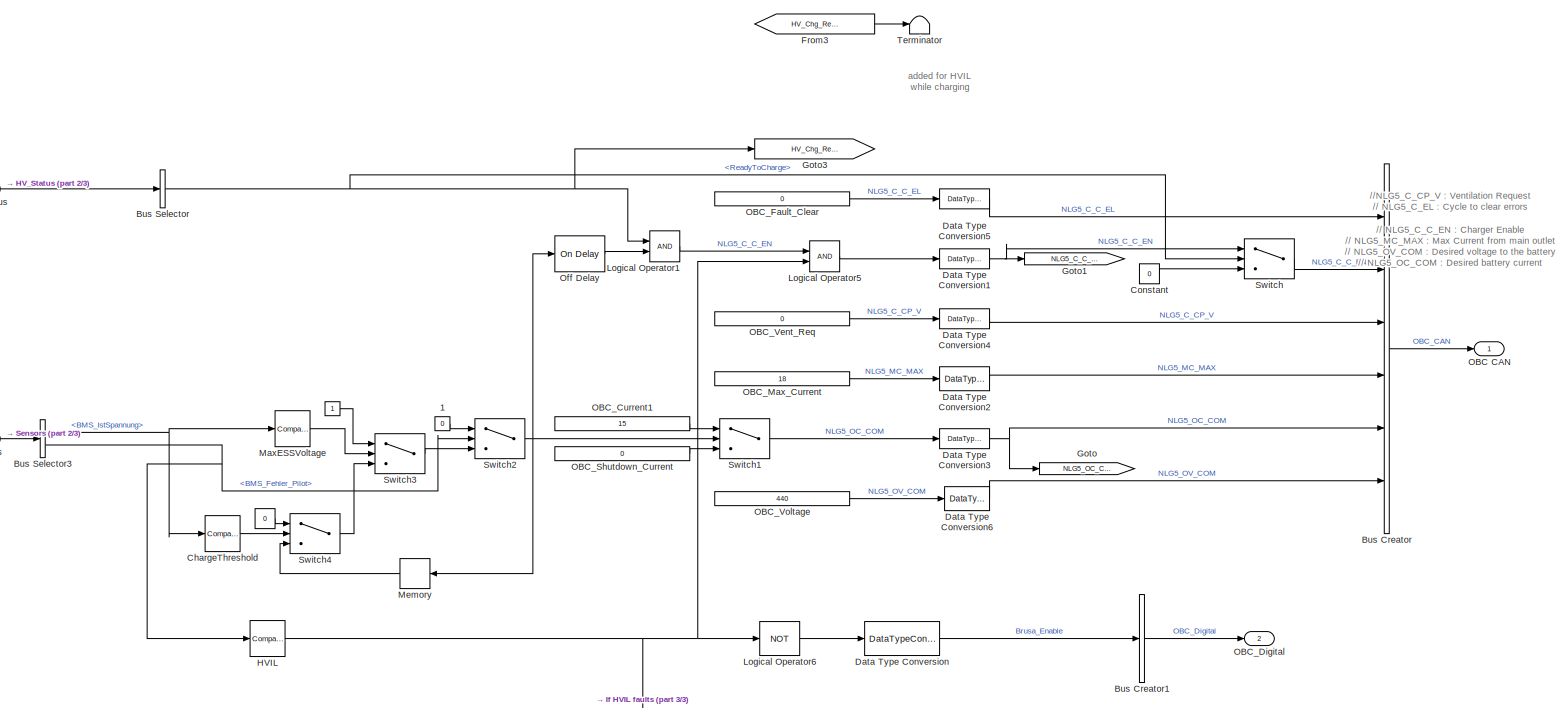
[diagram: Controller_with_Transmission_Manager1/HSC/Powertrain Manager/HV Manager/OBC_Manager - part 1/3, full width, middle band]
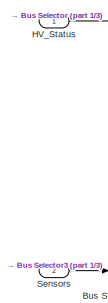
[diagram: Controller_with_Transmission_Manager1/HSC/Powertrain Manager/HV Manager/OBC_Manager - part 2/3, top left region]
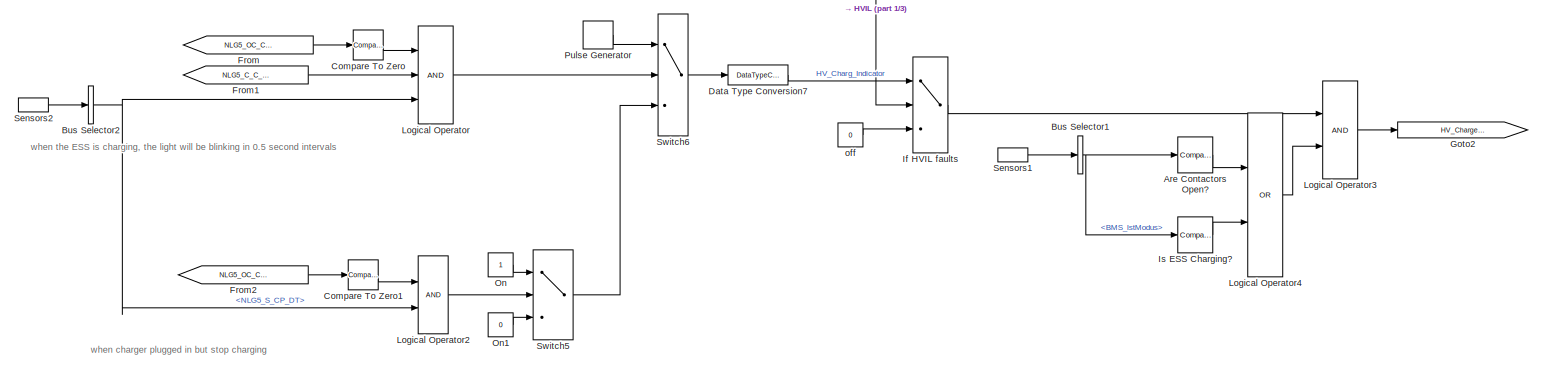
[diagram: Controller_with_Transmission_Manager1/HSC/Powertrain Manager/HV Manager/OBC_Manager - part 3/3, full width, bottom band]
BLOCK [SubSystem] Controller_with_Transmission_Manager1/HSC/Powertrain Manager/HV Manager/OBC_Manager
  Ports = [2, 2]
  RequestExecContextInheritance = off
  Variant = off
BLOCK [Constant] Controller_with_Transmission_Manager1/HSC/Powertrain Manager/HV Manager/OBC_Manager/ 
BLOCK [Constant] Controller_with_Transmission_Manager1/HSC/Powertrain Manager/HV Manager/OBC_Manager/   
  Value = 0
BLOCK [Constant] Controller_with_Transmission_Manager1/HSC/Powertrain Manager/HV Manager/OBC_Manager/   1
  Value = 0
BLOCK [Reference] Controller_with_Transmission_Manager1/HSC/Powertrain Manager/HV Manager/OBC_Manager/Are Contactors Open?  REF=simulink/Logic and Bit
Operations/Compare
To Constant
  Ports = [1, 1]
  SourceBlock = simulink/Logic and Bit\nOperations/Compare\nTo Constant
  SourceProductBaseCode = SL
  SourceProductName = Simulink
  SourceType = Compare To Constant
BLOCK [BusCreator] Controller_with_Transmission_Manager1/HSC/Powertrain Manager/HV Manager/OBC_Manager/Bus Creator
  DisplayOption = bar
  InheritFromInputs = on
  Inputs = 6
  Ports = [6, 1]
BLOCK [BusCreator] Controller_with_Transmission_Manager1/HSC/Powertrain Manager/HV Manager/OBC_Manager/Bus Creator1
  DisplayOption = bar
  InheritFromInputs = on
  Inputs = 1
  Ports = [1, 1]
BLOCK [BusSelector] Controller_with_Transmission_Manager1/HSC/Powertrain Manager/HV Manager/OBC_Manager/Bus Selector
  OutputAsBus = off
  OutputSignals = ReadyToCharge
  Ports = [1, 1]
BLOCK [BusSelector] Controller_with_Transmission_Manager1/HSC/Powertrain Manager/HV Manager/OBC_Manager/Bus Selector1
  OutputAsBus = off
  OutputSignals = from_CAN.fromHV_CAN.from_BMSHybrid.BMS_HYB_02.BMS_IstModus
  Ports = [1, 1]
BLOCK [BusSelector] Controller_with_Transmission_Manager1/HSC/Powertrain Manager/HV Manager/OBC_Manager/Bus Selector2
  OutputAsBus = off
  OutputSignals = from_CAN.fromHV_CAN.from_OBC.NLG5_ST.NLG5_S_CP_DT
  Ports = [1, 1]
BLOCK [BusSelector] Controller_with_Transmission_Manager1/HSC/Powertrain Manager/HV Manager/OBC_Manager/Bus Selector3
  OutputAsBus = off
  OutputSignals = from_CAN.fromHV_CAN.from_BMSHybrid.BMS_HYB_02.BMS_IstSpannung,from_CAN.fromHV_CAN.from_BMSHybrid.BMS_HYB_02.BMS_Fehler_Pilot
  Ports = [1, 2]
BLOCK [Reference] Controller_with_Transmission_Manager1/HSC/Powertrain Manager/HV Manager/OBC_Manager/ChargeThreshold  REF=simulink/Logic and Bit
Operations/Compare
To Constant
  Ports = [1, 1]
  SourceBlock = simulink/Logic and Bit\nOperations/Compare\nTo Constant
  SourceProductBaseCode = SL
  SourceProductName = Simulink
  SourceType = Compare To Constant
BLOCK [Reference] Controller_with_Transmission_Manager1/HSC/Powertrain Manager/HV Manager/OBC_Manager/Compare To Zero  REF=simulink/Logic and Bit
Operations/Compare
To Zero
  Ports = [1, 1]
  SourceBlock = simulink/Logic and Bit\nOperations/Compare\nTo Zero
  SourceProductBaseCode = SL
  SourceProductName = Simulink
  SourceType = Compare To Zero
BLOCK [Reference] Controller_with_Transmission_Manager1/HSC/Powertrain Manager/HV Manager/OBC_Manager/Compare To Zero1  REF=simulink/Logic and Bit
Operations/Compare
To Zero
  Ports = [1, 1]
  SourceBlock = simulink/Logic and Bit\nOperations/Compare\nTo Zero
  SourceProductBaseCode = SL
  SourceProductName = Simulink
  SourceType = Compare To Zero
BLOCK [Constant] Controller_with_Transmission_Manager1/HSC/Powertrain Manager/HV Manager/OBC_Manager/Constant
  Value = 0
BLOCK [DataTypeConversion] Controller_with_Transmission_Manager1/HSC/Powertrain Manager/HV Manager/OBC_Manager/Data Type Conversion
  OutDataTypeStr = double
  RndMeth = Floor
  SaturateOnIntegerOverflow = off
BLOCK [DataTypeConversion] Controller_with_Transmission_Manager1/HSC/Powertrain Manager/HV Manager/OBC_Manager/Data Type Conversion1
  RndMeth = Floor
  SaturateOnIntegerOverflow = off
BLOCK [DataTypeConversion] Controller_with_Transmission_Manager1/HSC/Powertrain Manager/HV Manager/OBC_Manager/Data Type Conversion2
  RndMeth = Floor
  SaturateOnIntegerOverflow = off
BLOCK [DataTypeConversion] Controller_with_Transmission_Manager1/HSC/Powertrain Manager/HV Manager/OBC_Manager/Data Type Conversion3
  RndMeth = Floor
  SaturateOnIntegerOverflow = off
BLOCK [DataTypeConversion] Controller_with_Transmission_Manager1/HSC/Powertrain Manager/HV Manager/OBC_Manager/Data Type Conversion4
  RndMeth = Floor
  SaturateOnIntegerOverflow = off
BLOCK [DataTypeConversion] Controller_with_Transmission_Manager1/HSC/Powertrain Manager/HV Manager/OBC_Manager/Data Type Conversion5
  RndMeth = Floor
  SaturateOnIntegerOverflow = off
BLOCK [DataTypeConversion] Controller_with_Transmission_Manager1/HSC/Powertrain Manager/HV Manager/OBC_Manager/Data Type Conversion6
  RndMeth = Floor
  SaturateOnIntegerOverflow = off
BLOCK [DataTypeConversion] Controller_with_Transmission_Manager1/HSC/Powertrain Manager/HV Manager/OBC_Manager/Data Type Conversion7
  OutDataTypeStr = boolean
  RndMeth = Floor
  SaturateOnIntegerOverflow = off
BLOCK [From] Controller_with_Transmission_Manager1/HSC/Powertrain Manager/HV Manager/OBC_Manager/From
  GotoTag = NLG5_OC_COM
BLOCK [From] Controller_with_Transmission_Manager1/HSC/Powertrain Manager/HV Manager/OBC_Manager/From1
  GotoTag = NLG5_C_C_EN
BLOCK [From] Controller_with_Transmission_Manager1/HSC/Powertrain Manager/HV Manager/OBC_Manager/From2
  GotoTag = NLG5_OC_COM
BLOCK [From] Controller_with_Transmission_Manager1/HSC/Powertrain Manager/HV Manager/OBC_Manager/From3
  GotoTag = HV_Chg_Ready
  TagVisibility = global
BLOCK [Goto] Controller_with_Transmission_Manager1/HSC/Powertrain Manager/HV Manager/OBC_Manager/Goto
  GotoTag = NLG5_OC_COM
BLOCK [Goto] Controller_with_Transmission_Manager1/HSC/Powertrain Manager/HV Manager/OBC_Manager/Goto1
  GotoTag = NLG5_C_C_EN
BLOCK [Goto] Controller_with_Transmission_Manager1/HSC/Powertrain Manager/HV Manager/OBC_Manager/Goto2
  GotoTag = HV_Charge_Indicator
  TagVisibility = global
BLOCK [Goto] Controller_with_Transmission_Manager1/HSC/Powertrain Manager/HV Manager/OBC_Manager/Goto3
  GotoTag = HV_Chg_Ready
  TagVisibility = global
BLOCK [Reference] Controller_with_Transmission_Manager1/HSC/Powertrain Manager/HV Manager/OBC_Manager/HVIL  REF=simulink/Logic and Bit
Operations/Compare
To Constant
  Ports = [1, 1]
  SourceBlock = simulink/Logic and Bit\nOperations/Compare\nTo Constant
  SourceProductBaseCode = SL
  SourceProductName = Simulink
  SourceType = Compare To Constant
BLOCK [Inport] Controller_with_Transmission_Manager1/HSC/Powertrain Manager/HV Manager/OBC_Manager/HV_Status
  IconDisplay = Port number
BLOCK [Switch] Controller_with_Transmission_Manager1/HSC/Powertrain Manager/HV Manager/OBC_Manager/If HVIL faults
  Criteria = u2 > Threshold
  InputSameDT = off
  SaturateOnIntegerOverflow = off
BLOCK [Reference] Controller_with_Transmission_Manager1/HSC/Powertrain Manager/HV Manager/OBC_Manager/Is ESS Charging?  REF=simulink/Logic and Bit
Operations/Compare
To Constant
  Ports = [1, 1]
  SourceBlock = simulink/Logic and Bit\nOperations/Compare\nTo Constant
  SourceProductBaseCode = SL
  SourceProductName = Simulink
  SourceType = Compare To Constant
BLOCK [Logic] Controller_with_Transmission_Manager1/HSC/Powertrain Manager/HV Manager/OBC_Manager/Logical Operator
  AllPortsSameDT = off
  Inputs = 3
  OutDataTypeStr = boolean
  Ports = [3, 1]
BLOCK [Logic] Controller_with_Transmission_Manager1/HSC/Powertrain Manager/HV Manager/OBC_Manager/Logical Operator1
  AllPortsSameDT = off
  OutDataTypeStr = boolean
  Ports = [2, 1]
BLOCK [Logic] Controller_with_Transmission_Manager1/HSC/Powertrain Manager/HV Manager/OBC_Manager/Logical Operator2
  AllPortsSameDT = off
  OutDataTypeStr = boolean
  Ports = [2, 1]
BLOCK [Logic] Controller_with_Transmission_Manager1/HSC/Powertrain Manager/HV Manager/OBC_Manager/Logical Operator3
  AllPortsSameDT = off
  OutDataTypeStr = boolean
  Ports = [2, 1]
BLOCK [Logic] Controller_with_Transmission_Manager1/HSC/Powertrain Manager/HV Manager/OBC_Manager/Logical Operator4
  AllPortsSameDT = off
  Operator = OR
  OutDataTypeStr = boolean
  Ports = [2, 1]
BLOCK [Logic] Controller_with_Transmission_Manager1/HSC/Powertrain Manager/HV Manager/OBC_Manager/Logical Operator5
  AllPortsSameDT = off
  OutDataTypeStr = boolean
  Ports = [2, 1]
BLOCK [Logic] Controller_with_Transmission_Manager1/HSC/Powertrain Manager/HV Manager/OBC_Manager/Logical Operator6
  AllPortsSameDT = off
  Inputs = 3
  Operator = NOT
  OutDataTypeStr = boolean
  Ports = [1, 1]
BLOCK [Reference] Controller_with_Transmission_Manager1/HSC/Powertrain Manager/HV Manager/OBC_Manager/MaxESSVoltage  REF=simulink/Logic and Bit
Operations/Compare
To Constant
  Ports = [1, 1]
  SourceBlock = simulink/Logic and Bit\nOperations/Compare\nTo Constant
  SourceProductBaseCode = SL
  SourceProductName = Simulink
  SourceType = Compare To Constant
BLOCK [Memory] Controller_with_Transmission_Manager1/HSC/Powertrain Manager/HV Manager/OBC_Manager/Memory
  InheritSampleTime = on
BLOCK [Outport] Controller_with_Transmission_Manager1/HSC/Powertrain Manager/HV Manager/OBC_Manager/OBC CAN
  IconDisplay = Port number
BLOCK [Constant] Controller_with_Transmission_Manager1/HSC/Powertrain Manager/HV Manager/OBC_Manager/OBC_Current1
  Value = 15
BLOCK [Outport] Controller_with_Transmission_Manager1/HSC/Powertrain Manager/HV Manager/OBC_Manager/OBC_Digital
  IconDisplay = Port number
  Port = 2
BLOCK [Constant] Controller_with_Transmission_Manager1/HSC/Powertrain Manager/HV Manager/OBC_Manager/OBC_Fault_Clear
  Value = 0
BLOCK [Constant] Controller_with_Transmission_Manager1/HSC/Powertrain Manager/HV Manager/OBC_Manager/OBC_Max_Current
  Value = 18
BLOCK [Constant] Controller_with_Transmission_Manager1/HSC/Powertrain Manager/HV Manager/OBC_Manager/OBC_Shutdown_Current
  Value = 0
BLOCK [Constant] Controller_with_Transmission_Manager1/HSC/Powertrain Manager/HV Manager/OBC_Manager/OBC_Vent_Req
  Value = 0
BLOCK [Constant] Controller_with_Transmission_Manager1/HSC/Powertrain Manager/HV Manager/OBC_Manager/OBC_Voltage
  Value = 440
BLOCK [Reference] Controller_with_Transmission_Manager1/HSC/Powertrain Manager/HV Manager/OBC_Manager/Off Delay  REF=powerlib_meascontrol/Logic/On Delay
  Ports = [1, 1]
  SourceBlock = powerlib_meascontrol/Logic/On Delay
  SourceProductBaseCode = PS
  SourceProductName = Simscape Power Systems
  SourceType = On/Off Delay
BLOCK [Constant] Controller_with_Transmission_Manager1/HSC/Powertrain Manager/HV Manager/OBC_Manager/On
BLOCK [Constant] Controller_with_Transmission_Manager1/HSC/Powertrain Manager/HV Manager/OBC_Manager/On1
  Value = 0
BLOCK [DiscretePulseGenerator] Controller_with_Transmission_Manager1/HSC/Powertrain Manager/HV Manager/OBC_Manager/Pulse Generator
  Period = 1
  Ports = [0, 1]
  PulseType = Time based
  PulseWidth = 50
BLOCK [Inport] Controller_with_Transmission_Manager1/HSC/Powertrain Manager/HV Manager/OBC_Manager/Sensors
  IconDisplay = Port number
  Port = 2
BLOCK [InportShadow] Controller_with_Transmission_Manager1/HSC/Powertrain Manager/HV Manager/OBC_Manager/Sensors1
  IconDisplay = Port number
  Port = 2
BLOCK [InportShadow] Controller_with_Transmission_Manager1/HSC/Powertrain Manager/HV Manager/OBC_Manager/Sensors2
  IconDisplay = Port number
  Port = 2
BLOCK [Switch] Controller_with_Transmission_Manager1/HSC/Powertrain Manager/HV Manager/OBC_Manager/Switch
  Criteria = u2 > Threshold
  InputSameDT = off
  SaturateOnIntegerOverflow = off
BLOCK [Switch] Controller_with_Transmission_Manager1/HSC/Powertrain Manager/HV Manager/OBC_Manager/Switch1
  Criteria = u2 > Threshold
  InputSameDT = off
  SaturateOnIntegerOverflow = off
BLOCK [Switch] Controller_with_Transmission_Manager1/HSC/Powertrain Manager/HV Manager/OBC_Manager/Switch2
  Criteria = u2 ~= 0
  InputSameDT = off
  SaturateOnIntegerOverflow = off
BLOCK [Switch] Controller_with_Transmission_Manager1/HSC/Powertrain Manager/HV Manager/OBC_Manager/Switch3
  Criteria = u2 > Threshold
  InputSameDT = off
  SaturateOnIntegerOverflow = off
BLOCK [Switch] Controller_with_Transmission_Manager1/HSC/Powertrain Manager/HV Manager/OBC_Manager/Switch4
  Criteria = u2 > Threshold
  InputSameDT = off
  SaturateOnIntegerOverflow = off
BLOCK [Switch] Controller_with_Transmission_Manager1/HSC/Powertrain Manager/HV Manager/OBC_Manager/Switch5
  Criteria = u2 > Threshold
  InputSameDT = off
  SaturateOnIntegerOverflow = off
BLOCK [Switch] Controller_with_Transmission_Manager1/HSC/Powertrain Manager/HV Manager/OBC_Manager/Switch6
  Criteria = u2 > Threshold
  InputSameDT = off
  SaturateOnIntegerOverflow = off
BLOCK [Terminator] Controller_with_Transmission_Manager1/HSC/Powertrain Manager/HV Manager/OBC_Manager/Terminator
BLOCK [Constant] Controller_with_Transmission_Manager1/HSC/Powertrain Manager/HV Manager/OBC_Manager/off
  Value = 0
BLOCK [Inport] Controller_with_Transmission_Manager1/HSC/Powertrain Manager/HV Manager/Sensors
  IconDisplay = Port number
BLOCK [Outport] Controller_with_Transmission_Manager1/HSC/Powertrain Manager/Out1
  IconDisplay = Port number
BLOCK [SubSystem] Controller_with_Transmission_Manager1/HSC/Powertrain Manager/Output Conversion
  Ports = [9, 1]
  RequestExecContextInheritance = off
  Variant = off
BLOCK [BusCreator] Controller_with_Transmission_Manager1/HSC/Powertrain Manager/Output Conversion/Bus Creator
  DisplayOption = bar
  InheritFromInputs = on
  Inputs = 14
  Ports = [14, 1]
BLOCK [BusCreator] Controller_with_Transmission_Manager1/HSC/Powertrain Manager/Output Conversion/Bus Creator1
  DisplayOption = bar
  InheritFromInputs = on
  Inputs = 9
  Ports = [9, 1]
BLOCK [BusSelector] Controller_with_Transmission_Manager1/HSC/Powertrain Manager/Output Conversion/Bus Selector2
  OutputAsBus = off
  OutputSignals = powerMode,EnablePrplsn,ClutchEngage,EngAppReq,EngOnReq,MtrTrqCmd,EnableInverter,EngTrqCmd,HV_req,SysPwrMd_0_3,TransShftLvrPos,VehSpdAvgDrvn_kph,AccPos_Perc,SportsModeEnable
  Ports = [1, 14]
BLOCK [DataTypeConversion] Controller_with_Transmission_Manager1/HSC/Powertrain Manager/Output Conversion/Data Type Conversion
  RndMeth = Floor
  SaturateOnIntegerOverflow = off
BLOCK [DataTypeConversion] Controller_with_Transmission_Manager1/HSC/Powertrain Manager/Output Conversion/Data Type Conversion10
  RndMeth = Floor
  SaturateOnIntegerOverflow = off
BLOCK [DataTypeConversion] Controller_with_Transmission_Manager1/HSC/Powertrain Manager/Output Conversion/Data Type Conversion11
  RndMeth = Floor
  SaturateOnIntegerOverflow = off
BLOCK [DataTypeConversion] Controller_with_Transmission_Manager1/HSC/Powertrain Manager/Output Conversion/Data Type Conversion12
  RndMeth = Floor
  SaturateOnIntegerOverflow = off
BLOCK [DataTypeConversion] Controller_with_Transmission_Manager1/HSC/Powertrain Manager/Output Conversion/Data Type Conversion13
  RndMeth = Floor
  SaturateOnIntegerOverflow = off
BLOCK [DataTypeConversion] Controller_with_Transmission_Manager1/HSC/Powertrain Manager/Output Conversion/Data Type Conversion2
  RndMeth = Floor
  SaturateOnIntegerOverflow = off
BLOCK [DataTypeConversion] Controller_with_Transmission_Manager1/HSC/Powertrain Manager/Output Conversion/Data Type Conversion3
  RndMeth = Floor
  SaturateOnIntegerOverflow = off
BLOCK [DataTypeConversion] Controller_with_Transmission_Manager1/HSC/Powertrain Manager/Output Conversion/Data Type Conversion5
  RndMeth = Floor
  SaturateOnIntegerOverflow = off
BLOCK [DataTypeConversion] Controller_with_Transmission_Manager1/HSC/Powertrain Manager/Output Conversion/Data Type Conversion6
  RndMeth = Floor
  SaturateOnIntegerOverflow = off
BLOCK [DataTypeConversion] Controller_with_Transmission_Manager1/HSC/Powertrain Manager/Output Conversion/Data Type Conversion7
  RndMeth = Floor
  SaturateOnIntegerOverflow = off
BLOCK [DataTypeConversion] Controller_with_Transmission_Manager1/HSC/Powertrain Manager/Output Conversion/Data Type Conversion8
  RndMeth = Floor
  SaturateOnIntegerOverflow = off
BLOCK [DataTypeConversion] Controller_with_Transmission_Manager1/HSC/Powertrain Manager/Output Conversion/Data Type Conversion9
  RndMeth = Floor
  SaturateOnIntegerOverflow = off
BLOCK [Inport] Controller_with_Transmission_Manager1/HSC/Powertrain Manager/Output Conversion/In1
  IconDisplay = Port number
BLOCK [Inport] Controller_with_Transmission_Manager1/HSC/Powertrain Manager/Output Conversion/In10
  IconDisplay = Port number
  Port = 8
BLOCK [Inport] Controller_with_Transmission_Manager1/HSC/Powertrain Manager/Output Conversion/In11
  IconDisplay = Port number
  Port = 9
BLOCK [Inport] Controller_with_Transmission_Manager1/HSC/Powertrain Manager/Output Conversion/In2
  IconDisplay = Port number
  Port = 2
BLOCK [Inport] Controller_with_Transmission_Manager1/HSC/Powertrain Manager/Output Conversion/In3
  IconDisplay = Port number
  Port = 3
BLOCK [Inport] Controller_with_Transmission_Manager1/HSC/Powertrain Manager/Output Conversion/In4
  IconDisplay = Port number
  Port = 4
BLOCK [Inport] Controller_with_Transmission_Manager1/HSC/Powertrain Manager/Output Conversion/In5
  IconDisplay = Port number
  Port = 5
BLOCK [Inport] Controller_with_Transmission_Manager1/HSC/Powertrain Manager/Output Conversion/In8
  IconDisplay = Port number
  Port = 6
BLOCK [Inport] Controller_with_Transmission_Manager1/HSC/Powertrain Manager/Output Conversion/In9
  IconDisplay = Port number
  Port = 7
BLOCK [Memory] Controller_with_Transmission_Manager1/HSC/Powertrain Manager/Output Conversion/Memory
BLOCK [Outport] Controller_with_Transmission_Manager1/HSC/Powertrain Manager/Output Conversion/Out1
  IconDisplay = Port number
BLOCK [Inport] Controller_with_Transmission_Manager1/HSC/Powertrain Manager/Sensors
  IconDisplay = Port number
BLOCK [Reference] Controller_with_Transmission_Manager1/HSC/Powertrain Manager/Torque Distribution  REF=lib_TorqueDistribution/Torque Distribution
  Ports = [3, 1]
  SourceBlock = lib_TorqueDistribution/Torque Distribution
  SourceType = SubSystem
BLOCK [Inport] Controller_with_Transmission_Manager1/HSC/Sensors
  IconDisplay = Port number
BLOCK [Inport] Controller_with_Transmission_Manager1/Sensors
  IconDisplay = Port number
ANNOTATION Controller_with_Transmission_Manager1/HSC/Camaro Fault Detection/Component Diagnostic: Component Diagnostics
ANNOTATION Controller_with_Transmission_Manager1/HSC/Camaro Fault Detection/Component Diagnostic: Component Status Setting Rule xxx_CompStatus could be 0, 1, 2 or 3 0: component needs to be offline 1: component needs torque plant to deliver creep torque 2: component needs torque plant to limit maximum torque delivery 3: component needs torque plant to operate normally
ANNOTATION Controller_with_Transmission_Manager1/HSC/Camaro Fault Detection/Component Diagnostic/Driver Input Diagnostic: Driver_CompStatus 1 = Component Online 0 = Component Offline
ANNOTATION Controller_with_Transmission_Manager1/HSC/Camaro Fault Detection/Component Diagnostic/Driver Input Diagnostic: APP1 APP2 BPP Driver Component Status 1 1 1 1 0 1 1 1 1 0 1 1 0 0 1 0 1 1 0 0 0 0 0 0
ANNOTATION Controller_with_Transmission_Manager1/HSC/Camaro Fault Detection/Component Diagnostic/ESS Component Diagnostic: (Need modify)
ANNOTATION Controller_with_Transmission_Manager1/HSC/Camaro Fault Detection/Component Diagnostic/Engine Component Diagnostic: 0: component needs to be offline 1: component needs torque plant to deliver creep torque 2: component needs torque plant to limit maximum torque delivery 3: component needs torque plant to operate normally
ANNOTATION Controller_with_Transmission_Manager1/HSC/Camaro Fault Detection/Component Diagnostic/Engine Component Diagnostic: ENGTRQ_MSMCH_Degraded_CP (40Nm): ENGTRQ_Degraded fault code. ENGTRQ_MSMCH_LimpHome_CP (70Nm): ENGTRQ_LimpHome ENGTRQ_MSMCH_ErrCritical_CP (100Nm): ENGTRQ_ErrCritical
ANNOTATION Controller_with_Transmission_Manager1/HSC/Camaro Fault Detection/Component Diagnostic/Engine Component Diagnostic: Eng_Torq_MsmchLevel 1:Normal torque 2: Limit max power 3: Deliver creep torque 4: offline
ANNOTATION Controller_with_Transmission_Manager1/HSC/Camaro Fault Detection/Component Diagnostic/Engine Component Diagnostic: Eng_tempRange 1: normal 2: high range 3:above max
ANNOTATION Controller_with_Transmission_Manager1/HSC/Camaro Fault Detection/Component Diagnostic/Engine Component Diagnostic: Notes
ANNOTATION Controller_with_Transmission_Manager1/HSC/Camaro Fault Detection/Component Diagnostic/Engine Component Diagnostic: add the temperature, mismatch torquesignal and have different status to the component
ANNOTATION Controller_with_Transmission_Manager1/HSC/Camaro Fault Detection/Component Diagnostic/Engine Component Diagnostic/Override  engTrqCmd: Override Switch Subsystem
ANNOTATION Controller_with_Transmission_Manager1/HSC/Camaro Fault Detection/Component Diagnostic/Engine Component Diagnostic/Override  engTrqCmd: This subsystem is used to override the model value of a signal to a constant value
ANNOTATION Controller_with_Transmission_Manager1/HSC/Camaro Fault Detection/Component Diagnostic/Override Driver Status: Override Switch Subsystem
ANNOTATION Controller_with_Transmission_Manager1/HSC/Camaro Fault Detection/Component Diagnostic/Override Driver Status: This subsystem is used to override the model value of a signal to a constant value
ANNOTATION Controller_with_Transmission_Manager1/HSC/Camaro Fault Detection/Component Diagnostic/Override ESS Status: Override Switch Subsystem
ANNOTATION Controller_with_Transmission_Manager1/HSC/Camaro Fault Detection/Component Diagnostic/Override ESS Status: This subsystem is used to override the model value of a signal to a constant value
ANNOTATION Controller_with_Transmission_Manager1/HSC/Camaro Fault Detection/Component Diagnostic/Override Engine Status: Override Switch Subsystem
ANNOTATION Controller_with_Transmission_Manager1/HSC/Camaro Fault Detection/Component Diagnostic/Override Engine Status: This subsystem is used to override the model value of a signal to a constant value
ANNOTATION Controller_with_Transmission_Manager1/HSC/Camaro Fault Detection/Component Diagnostic/Override TCM Status: Override Switch Subsystem
ANNOTATION Controller_with_Transmission_Manager1/HSC/Camaro Fault Detection/Component Diagnostic/Override TCM Status: This subsystem is used to override the model value of a signal to a constant value
ANNOTATION Controller_with_Transmission_Manager1/HSC/Camaro Fault Detection/Input Conversions: Input Conversions and Override Switches
ANNOTATION Controller_with_Transmission_Manager1/HSC/Camaro Fault Detection/Input Conversions: These subsystems convert variable types to match those used in the supervisor. In addition, override switches installed on each signal can be used to manually override and signal for testing purposes
ANNOTATION Controller_with_Transmission_Manager1/HSC/Camaro Fault Detection/Input Conversions/BMS_Conversions: 1 : Error Insulation
ANNOTATION Controller_with_Transmission_Manager1/HSC/Camaro Fault Detection/Input Conversions/BMS_Conversions: 5: error
ANNOTATION Controller_with_Transmission_Manager1/HSC/Camaro Fault Detection/Input Conversions/BMS_Conversions: MO_BMS_Sollmodus The battery mode is requested: 0: Standby; communication active 1: HV power enable / normal driving mode 2: Balancing Mode 3: HV power enable / external_load_external start 4: HV power enable / external load_EV_PlugIn 5: None
ANNOTATION Controller_with_Transmission_Manager1/HSC/Camaro Fault Detection/Input Conversions/BMS_Conversions: Fehler_HS_verschweisst 1 : Error: Main contactor welded
ANNOTATION Controller_with_Transmission_Manager1/HSC/Camaro Fault Detection/Input Conversions/BMS_Conversions: BMS_IstModus actual state of the battery / Current status of the battery 0 : Standby ; communication active 1 : main contactors closed / HV power activated / normal driving 2 : closed / Balancing mode main contactors activated 3 : external charging via charger High 4 : external charging HV 5 : Error Battery 6 : External DC Charging HV 7 : Init
ANNOTATION Controller_with_Transmission_Manager1/HSC/Camaro Fault Detection/Input Conversions/BMS_Conversions: BMS: Conversions and Override Switches (Battery Management System)
ANNOTATION Controller_with_Transmission_Manager1/HSC/Camaro Fault Detection/Input Conversions/BMS_Conversions: hvBattVolt_V
ANNOTATION Controller_with_Transmission_Manager1/HSC/Camaro Fault Detection/Input Conversions/BMS_Conversions: hvBusVolt_V
ANNOTATION Controller_with_Transmission_Manager1/HSC/Camaro Fault Detection/Input Conversions/BMS_Conversions/Override  BMS_gdf 0_1: Override Switch Subsystem
ANNOTATION Controller_with_Transmission_Manager1/HSC/Camaro Fault Detection/Input Conversions/BMS_Conversions/Override  BMS_gdf 0_1: This subsystem is used to override the model value of a signal to a constant value
ANNOTATION Controller_with_Transmission_Manager1/HSC/Camaro Fault Detection/Input Conversions/BMS_Conversions/Override  closeContactorsCmd: Override Switch Subsystem
ANNOTATION Controller_with_Transmission_Manager1/HSC/Camaro Fault Detection/Input Conversions/BMS_Conversions/Override  closeContactorsCmd: This subsystem is used to override the model value of a signal to a constant value
ANNOTATION Controller_with_Transmission_Manager1/HSC/Camaro Fault Detection/Input Conversions/BMS_Conversions/Override  contactorsClsd: Override Switch Subsystem
ANNOTATION Controller_with_Transmission_Manager1/HSC/Camaro Fault Detection/Input Conversions/BMS_Conversions/Override  contactorsClsd: This subsystem is used to override the model value of a signal to a constant value
ANNOTATION Controller_with_Transmission_Manager1/HSC/Camaro Fault Detection/Input Conversions/BMS_Conversions/Override  essCur_A: Override Switch Subsystem
ANNOTATION Controller_with_Transmission_Manager1/HSC/Camaro Fault Detection/Input Conversions/BMS_Conversions/Override  essCur_A: This subsystem is used to override the model value of a signal to a constant value
ANNOTATION Controller_with_Transmission_Manager1/HSC/Camaro Fault Detection/Input Conversions/BMS_Conversions/Override  essSOC_0_1: Override Switch Subsystem
ANNOTATION Controller_with_Transmission_Manager1/HSC/Camaro Fault Detection/Input Conversions/BMS_Conversions/Override  essSOC_0_1: This subsystem is used to override the model value of a signal to a constant value
ANNOTATION Controller_with_Transmission_Manager1/HSC/Camaro Fault Detection/Input Conversions/BMS_Conversions/Override  essTemp_C: Override Switch Subsystem
ANNOTATION Controller_with_Transmission_Manager1/HSC/Camaro Fault Detection/Input Conversions/BMS_Conversions/Override  essTemp_C: This subsystem is used to override the model value of a signal to a constant value
ANNOTATION Controller_with_Transmission_Manager1/HSC/Camaro Fault Detection/Input Conversions/BMS_Conversions/Override  hvBattVolt_V: Override Switch Subsystem
ANNOTATION Controller_with_Transmission_Manager1/HSC/Camaro Fault Detection/Input Conversions/BMS_Conversions/Override  hvBattVolt_V: This subsystem is used to override the model value of a signal to a constant value
ANNOTATION Controller_with_Transmission_Manager1/HSC/Camaro Fault Detection/Input Conversions/BMS_Conversions/Override  hvBusVolt_V: Override Switch Subsystem
ANNOTATION Controller_with_Transmission_Manager1/HSC/Camaro Fault Detection/Input Conversions/BMS_Conversions/Override  hvBusVolt_V: This subsystem is used to override the model value of a signal to a constant value
ANNOTATION Controller_with_Transmission_Manager1/HSC/Camaro Fault Detection/Input Conversions/BMS_Conversions/Override  rollingAliveCnt [1_3]: Override Switch Subsystem
ANNOTATION Controller_with_Transmission_Manager1/HSC/Camaro Fault Detection/Input Conversions/BMS_Conversions/Override  rollingAliveCnt [1_3]: This subsystem is used to override the model value of a signal to a constant value
ANNOTATION Controller_with_Transmission_Manager1/HSC/Camaro Fault Detection/Input Conversions/BMS_Conversions/Override Fehler_HS_offen: Override Switch Subsystem
ANNOTATION Controller_with_Transmission_Manager1/HSC/Camaro Fault Detection/Input Conversions/BMS_Conversions/Override Fehler_HS_offen: This subsystem is used to override the model value of a signal to a constant value
ANNOTATION Controller_with_Transmission_Manager1/HSC/Camaro Fault Detection/Input Conversions/BMS_Conversions/Override Fehler_HS_verschweisst: Override Switch Subsystem
ANNOTATION Controller_with_Transmission_Manager1/HSC/Camaro Fault Detection/Input Conversions/BMS_Conversions/Override Fehler_HS_verschweisst: This subsystem is used to override the model value of a signal to a constant value
ANNOTATION Controller_with_Transmission_Manager1/HSC/Camaro Fault Detection/Input Conversions/DriverInput_Conversions: Driver Controls: Conversions and Override Switches
ANNOTATION Controller_with_Transmission_Manager1/HSC/Camaro Fault Detection/Input Conversions/DriverInput_Conversions: SysPwrMd (EC3) 0 - Off 1 - Accessory 2 - Run 3 - Crank Request
ANNOTATION Controller_with_Transmission_Manager1/HSC/Camaro Fault Detection/Input Conversions/DriverInput_Conversions/Override  KeyPos [0_3]: Override Switch Subsystem
ANNOTATION Controller_with_Transmission_Manager1/HSC/Camaro Fault Detection/Input Conversions/DriverInput_Conversions/Override  KeyPos [0_3]: This subsystem is used to override the model value of a signal to a constant value
ANNOTATION Controller_with_Transmission_Manager1/HSC/Camaro Fault Detection/Input Conversions/DriverInput_Conversions/Override APP (%): Override Switch Subsystem
ANNOTATION Controller_with_Transmission_Manager1/HSC/Camaro Fault Detection/Input Conversions/DriverInput_Conversions/Override APP (%): This subsystem is used to override the model value of a signal to a constant value
ANNOTATION Controller_with_Transmission_Manager1/HSC/Camaro Fault Detection/Input Conversions/DriverInput_Conversions/Override APP (%)1: Override Switch Subsystem
ANNOTATION Controller_with_Transmission_Manager1/HSC/Camaro Fault Detection/Input Conversions/DriverInput_Conversions/Override APP (%)1: This subsystem is used to override the model value of a signal to a constant value
ANNOTATION Controller_with_Transmission_Manager1/HSC/Camaro Fault Detection/Input Conversions/DriverInput_Conversions/Override BPP (%): Override Switch Subsystem
ANNOTATION Controller_with_Transmission_Manager1/HSC/Camaro Fault Detection/Input Conversions/DriverInput_Conversions/Override BPP (%): This subsystem is used to override the model value of a signal to a constant value
ANNOTATION Controller_with_Transmission_Manager1/HSC/Camaro Fault Detection/Input Conversions/DriverInput_Conversions/Override PRNDL: Override Switch Subsystem
ANNOTATION Controller_with_Transmission_Manager1/HSC/Camaro Fault Detection/Input Conversions/DriverInput_Conversions/Override PRNDL: This subsystem is used to override the model value of a signal to a constant value
ANNOTATION Controller_with_Transmission_Manager1/HSC/Camaro Fault Detection/Input Conversions/DriverInput_Conversions/Override Regen: Override Switch Subsystem
ANNOTATION Controller_with_Transmission_Manager1/HSC/Camaro Fault Detection/Input Conversions/DriverInput_Conversions/Override Regen: This subsystem is used to override the model value of a signal to a constant value
ANNOTATION Controller_with_Transmission_Manager1/HSC/Camaro Fault Detection/Input Conversions/DriverInput_Conversions/Override V [mph]: Override Switch Subsystem
ANNOTATION Controller_with_Transmission_Manager1/HSC/Camaro Fault Detection/Input Conversions/DriverInput_Conversions/Override V [mph]: This subsystem is used to override the model value of a signal to a constant value
ANNOTATION Controller_with_Transmission_Manager1/HSC/Camaro Fault Detection/Input Conversions/ECM_Conversions: ECM: Input Conversions and Override Switches (Engine and ECM)
ANNOTATION Controller_with_Transmission_Manager1/HSC/Camaro Fault Detection/Input Conversions/ECM_Conversions/Override  ECMTrqCmd_Nm: Override Switch Subsystem
ANNOTATION Controller_with_Transmission_Manager1/HSC/Camaro Fault Detection/Input Conversions/ECM_Conversions/Override  ECMTrqCmd_Nm: This subsystem is used to override the model value of a signal to a constant value
ANNOTATION Controller_with_Transmission_Manager1/HSC/Camaro Fault Detection/Input Conversions/ECM_Conversions/Override  ECMrollingAliveCnt: Override Switch Subsystem
ANNOTATION Controller_with_Transmission_Manager1/HSC/Camaro Fault Detection/Input Conversions/ECM_Conversions/Override  ECMrollingAliveCnt: This subsystem is used to override the model value of a signal to a constant value
ANNOTATION Controller_with_Transmission_Manager1/HSC/Camaro Fault Detection/Input Conversions/ECM_Conversions/Override  EngActStdyStTorq_Nm: Override Switch Subsystem
ANNOTATION Controller_with_Transmission_Manager1/HSC/Camaro Fault Detection/Input Conversions/ECM_Conversions/Override  EngActStdyStTorq_Nm: This subsystem is used to override the model value of a signal to a constant value
ANNOTATION Controller_with_Transmission_Manager1/HSC/Camaro Fault Detection/Input Conversions/ECM_Conversions/Override  EngRunAtv: Override Switch Subsystem
ANNOTATION Controller_with_Transmission_Manager1/HSC/Camaro Fault Detection/Input Conversions/ECM_Conversions/Override  EngRunAtv: This subsystem is used to override the model value of a signal to a constant value
ANNOTATION Controller_with_Transmission_Manager1/HSC/Camaro Fault Detection/Input Conversions/ECM_Conversions/Override  EngineSpeed_rpm: Override Switch Subsystem
ANNOTATION Controller_with_Transmission_Manager1/HSC/Camaro Fault Detection/Input Conversions/ECM_Conversions/Override  EngineSpeed_rpm: This subsystem is used to override the model value of a signal to a constant value
ANNOTATION Controller_with_Transmission_Manager1/HSC/Camaro Fault Detection/Input Conversions/ECM_Conversions/Override  Engine_Temp[DegC]: Override Switch Subsystem
ANNOTATION Controller_with_Transmission_Manager1/HSC/Camaro Fault Detection/Input Conversions/ECM_Conversions/Override  Engine_Temp[DegC]: This subsystem is used to override the model value of a signal to a constant value
ANNOTATION Controller_with_Transmission_Manager1/HSC/Camaro Fault Detection/Input Conversions/TCM_Conversions: TCM: Input Conversions and Override Switches (Transmission Control Module)
ANNOTATION Controller_with_Transmission_Manager1/HSC/Camaro Fault Detection/Input Conversions/TCM_Conversions/Override  LockupCmd: Override Switch Subsystem
ANNOTATION Controller_with_Transmission_Manager1/HSC/Camaro Fault Detection/Input Conversions/TCM_Conversions/Override  LockupCmd: This subsystem is used to override the model value of a signal to a constant value
ANNOTATION Controller_with_Transmission_Manager1/HSC/Camaro Fault Detection/Input Conversions/TCM_Conversions/Override  LvrPosTrnsShft : Override Switch Subsystem
ANNOTATION Controller_with_Transmission_Manager1/HSC/Camaro Fault Detection/Input Conversions/TCM_Conversions/Override  LvrPosTrnsShft : This subsystem is used to override the model value of a signal to a constant value
ANNOTATION Controller_with_Transmission_Manager1/HSC/Camaro Fault Detection/Input Conversions/TCM_Conversions/Override  TransEstGear: Override Switch Subsystem
ANNOTATION Controller_with_Transmission_Manager1/HSC/Camaro Fault Detection/Input Conversions/TCM_Conversions/Override  TransEstGear: This subsystem is used to override the model value of a signal to a constant value
ANNOTATION Controller_with_Transmission_Manager1/HSC/Camaro Fault Detection/Input Conversions/TCM_Conversions/Override  rollingAliveCnt [123]: Override Switch Subsystem
ANNOTATION Controller_with_Transmission_Manager1/HSC/Camaro Fault Detection/Input Conversions/TCM_Conversions/Override  rollingAliveCnt [123]: This subsystem is used to override the model value of a signal to a constant value
ANNOTATION Controller_with_Transmission_Manager1/HSC/Camaro Fault Detection/Signal Diagnostic: Signal Diagnostics
ANNOTATION Controller_with_Transmission_Manager1/HSC/Camaro Fault Detection/Signal Diagnostic: These subsystems evaluate each signal for proper value range and other checks
ANNOTATION Controller_with_Transmission_Manager1/HSC/Camaro Fault Detection/Signal Diagnostic/Driver Signal Diagnostic: Driver Controls : Signal Diagnostic
ANNOTATION Controller_with_Transmission_Manager1/HSC/Camaro Fault Detection/Signal Diagnostic/ESS Signal Diagnostic: 1) Rolling alive detection : is the component on and transmitting? 2) Probably move the voltage check to component diagnostic (no signal from Bosch to check the contactors status) 3) Is the T signal within an acceptable range?
ANNOTATION Controller_with_Transmission_Manager1/HSC/Camaro Fault Detection/Signal Diagnostic/ESS Signal Diagnostic: Temperature Range check : 0 = below normal operation (<-28) 1 = low range (<0 - >-28) 2 = normal range (0 -30 C) 3= high range (>30) 4= above max value allowed (>55)
ANNOTATION Controller_with_Transmission_Manager1/HSC/Camaro Fault Detection/Signal Diagnostic/ESS Signal Diagnostic: SOC Range check definition : 0 = below normal operation (<0.15) 1 = low range ([0.15 0.30]) 2 = normal range (0.3) 3= SOC high/full (>0.95)
ANNOTATION Controller_with_Transmission_Manager1/HSC/Camaro Fault Detection/Signal Diagnostic/ESS Signal Diagnostic: BMS : Signal Diagnostic
ANNOTATION Controller_with_Transmission_Manager1/HSC/Camaro Fault Detection/Signal Diagnostic/ESS Signal Diagnostic: Error: contactors welded,Contactors don't close when commanded
ANNOTATION Controller_with_Transmission_Manager1/HSC/Camaro Fault Detection/Signal Diagnostic/ESS Signal Diagnostic: max charge current: 180A Max discharge current: 315A;
ANNOTATION Controller_with_Transmission_Manager1/HSC/Camaro Fault Detection/Signal Diagnostic/ESS Signal Diagnostic/Contactors status check: Note: Contactors don't close when commanded
ANNOTATION Controller_with_Transmission_Manager1/HSC/Camaro Fault Detection/Signal Diagnostic/ESS Signal Diagnostic/Max charging voltage fault detect: Note: When the ESS receives the energy from grid or regenerative braking, the charging voltage to the inverter can not be bigger than 419V, otherwise the MCU will set to fault
ANNOTATION Controller_with_Transmission_Manager1/HSC/Camaro Fault Detection/Signal Diagnostic/Engine Signal Diagnostic: ECM : Signal Diagnostic
ANNOTATION Controller_with_Transmission_Manager1/HSC/Camaro Fault Detection/Signal Diagnostic/Engine Signal Diagnostic: Engine_Temp: Normal range: 120 Limited range: 100-120
ANNOTATION Controller_with_Transmission_Manager1/HSC/Camaro Fault Detection/Signal Diagnostic/Subsystem1: Signal Naming Rule Example: xxx_yyy_[z]_SigValid xxx: source of the signal (Drv, Clu, BCM, ECM, TCM, BMS and MCU) yyy: description of the signal z: unit of the signal (V, A, Nm, m/s, %, 01, 0123, etc.)
ANNOTATION Controller_with_Transmission_Manager1/HSC/Camaro Fault Detection/Signal Diagnostic/Subsystem1: Signal Valid Setting Rule xxx_yyy_[z]_SigValid could be 0 or 1 0: signal invalid 1: signal vaild
ANNOTATION Controller_with_Transmission_Manager1/HSC/Camaro Fault Detection/Signal Diagnostic/Transmission Signal Diagnostic: TCM : Signal Diagnostic
ANNOTATION Controller_with_Transmission_Manager1/HSC/Camaro Fault Detection/Signal Diagnostic/Transmission Signal Diagnostic: Lever Position: 1 P 2 R 3 N 4 D 0: L
ANNOTATION Controller_with_Transmission_Manager1/HSC/Camaro Fault Detection/Signal Diagnostic/Transmission Signal Diagnostic: TransEstGear 0 : Not Supported 1 : First Gear 2 : Second Gear 3 : Third Gear 4 : Fourth Gear 5 : Fifth Gear 6 : Sixth Gear 7 : Seventh Gear 8 : Eight Gear 10: EVT Mode 1 11: EVT Mode 2 12: CVT Forward Gear 13: Neutral Gear 14: Reverse Gear 15: Park Gear
ANNOTATION Controller_with_Transmission_Manager1/HSC/Driver_Requests: Driver management
ANNOTATION Controller_with_Transmission_Manager1/HSC/Driver_Requests/APP_BPP to DrvIntndAxlTrq2: $Author: fy6949 $ $Rev: 577 $ $Date: 2017-1-19 08:53:15 -0500 $
ANNOTATION Controller_with_Transmission_Manager1/HSC/Driver_Requests/APP_BPP to DrvIntndAxlTrq2: Note:Driver requested Axle Torque Calculation
ANNOTATION Controller_with_Transmission_Manager1/HSC/Driver_Requests/APP_BPP to DrvIntndAxlTrq2/Post Driver Intnded Axle Torque: //*mode==1 (CD Mode) mode==2 (CS Mode - Engine Drive) mode==3 (CS Mode-Motor Drive) pass MotTrq mode==4 (Sports Mode) pass Mot Trq+Eng Trq mode==5 (Engine only mode)*//
ANNOTATION Controller_with_Transmission_Manager1/HSC/Driver_Requests/APP_BPP to DrvIntndAxlTrq2/Post Driver Intnded Axle Torque/Driver Intended Axle Torque: //*mode==1 (CD Mode) mode==2 (CS Mode - Engine Drive) mode==3 (CS Mode-Motor Drive) pass MotTrq mode==4 (Sports Mode) pass Mot Trq+Eng Trq mode==5 (Engine only mode)*//
ANNOTATION Controller_with_Transmission_Manager1/HSC/Driver_Requests/APP_BPP to DrvIntndAxlTrq2/Post Driver Intnded Axle Torque/Driver Intended Axle Torque: In Engine Only mode, ETAS is only as a gateway to broadcast CAN messages
ANNOTATION Controller_with_Transmission_Manager1/HSC/Powertrain Manager/HV Manager/BMS_Manager: Control Pilot signal added 02/14/2017 to charge automatically
ANNOTATION Controller_with_Transmission_Manager1/HSC/Powertrain Manager/HV Manager/BMS_Manager/Isolation Fault Calculation: This block allows to know which HV main is having issues. HV POS 25, HV NEG 23.
ANNOTATION Controller_with_Transmission_Manager1/HSC/Powertrain Manager/HV Manager/DCDC Manager/Contactors status check: Note: Contactors don't close when commanded
ANNOTATION Controller_with_Transmission_Manager1/HSC/Powertrain Manager/HV Manager/OBC_Manager: //NLG5_C_CP_V : Ventilation Request // NLG5_C_EL : Cycle to clear errors // NLG5_C_C_EN : Charger Enable // NLG5_MC_MAX : Max Current from main outlet // NLG5_OV_COM : Desired voltage to the battery // NLG5_OC_COM : Desired battery current
ANNOTATION Controller_with_Transmission_Manager1/HSC/Powertrain Manager/HV Manager/OBC_Manager: added for HVIL while charging
ANNOTATION Controller_with_Transmission_Manager1/HSC/Powertrain Manager/HV Manager/OBC_Manager: when charger plugged in but stop charging
ANNOTATION Controller_with_Transmission_Manager1/HSC/Powertrain Manager/HV Manager/OBC_Manager: when the ESS is charging, the light will be blinking in 0.5 second intervals
LINE Controller_with_Transmission_Manager1/HSC/Camaro Fault Detection/Component Diagnostic/Bus Creator:1 -> Controller_with_Transmission_Manager1/HSC/Camaro Fault Detection/Component Diagnostic/CompDiag:1
LINE Controller_with_Transmission_Manager1/HSC/Camaro Fault Detection/Component Diagnostic/Driver Input Diagnostic/Bus Selector:1 -> Controller_with_Transmission_Manager1/HSC/Camaro Fault Detection/Component Diagnostic/Driver Input Diagnostic/Logical Operator:1
LINE Controller_with_Transmission_Manager1/HSC/Camaro Fault Detection/Component Diagnostic/Driver Input Diagnostic/Bus Selector:2 -> Controller_with_Transmission_Manager1/HSC/Camaro Fault Detection/Component Diagnostic/Driver Input Diagnostic/Logical Operator:2
LINE Controller_with_Transmission_Manager1/HSC/Camaro Fault Detection/Component Diagnostic/Driver Input Diagnostic/Bus Selector:3 -> Controller_with_Transmission_Manager1/HSC/Camaro Fault Detection/Component Diagnostic/Driver Input Diagnostic/Logical Operator:3
LINE Controller_with_Transmission_Manager1/HSC/Camaro Fault Detection/Component Diagnostic/Driver Input Diagnostic/Bus Selector:4 -> Controller_with_Transmission_Manager1/HSC/Camaro Fault Detection/Component Diagnostic/Driver Input Diagnostic/Driver_Input_Diag:2
LINE Controller_with_Transmission_Manager1/HSC/Camaro Fault Detection/Component Diagnostic/Driver Input Diagnostic/Bus Selector:5 -> Controller_with_Transmission_Manager1/HSC/Camaro Fault Detection/Component Diagnostic/Driver Input Diagnostic/Driver_Input_Diag:3
LINE Controller_with_Transmission_Manager1/HSC/Camaro Fault Detection/Component Diagnostic/Driver Input Diagnostic/Bus Selector:6 -> Controller_with_Transmission_Manager1/HSC/Camaro Fault Detection/Component Diagnostic/Driver Input Diagnostic/Driver_Input_Diag:4
LINE Controller_with_Transmission_Manager1/HSC/Camaro Fault Detection/Component Diagnostic/Driver Input Diagnostic/Bus Selector:7 -> Controller_with_Transmission_Manager1/HSC/Camaro Fault Detection/Component Diagnostic/Driver Input Diagnostic/Driver_Input_Diag:5
LINE Controller_with_Transmission_Manager1/HSC/Camaro Fault Detection/Component Diagnostic/Driver Input Diagnostic/Driver_Input_Diag:1 -> Controller_with_Transmission_Manager1/HSC/Camaro Fault Detection/Component Diagnostic/Driver Input Diagnostic/Out1:1
LINE Controller_with_Transmission_Manager1/HSC/Camaro Fault Detection/Component Diagnostic/Driver Input Diagnostic/In1:1 -> Controller_with_Transmission_Manager1/HSC/Camaro Fault Detection/Component Diagnostic/Driver Input Diagnostic/Bus Selector:1
LINE Controller_with_Transmission_Manager1/HSC/Camaro Fault Detection/Component Diagnostic/Driver Input Diagnostic/Logical Operator:1 -> Controller_with_Transmission_Manager1/HSC/Camaro Fault Detection/Component Diagnostic/Driver Input Diagnostic/Driver_Input_Diag:1
LINE Controller_with_Transmission_Manager1/HSC/Camaro Fault Detection/Component Diagnostic/Driver Input Diagnostic:1 -> Controller_with_Transmission_Manager1/HSC/Camaro Fault Detection/Component Diagnostic/Override Driver Status:1
LINE Controller_with_Transmission_Manager1/HSC/Camaro Fault Detection/Component Diagnostic/ESS Component Diagnostic/BMS_CompDiag1:1 -> Controller_with_Transmission_Manager1/HSC/Camaro Fault Detection/Component Diagnostic/ESS Component Diagnostic/Out1:1
LINE Controller_with_Transmission_Manager1/HSC/Camaro Fault Detection/Component Diagnostic/ESS Component Diagnostic/Bus Selector:1 -> Controller_with_Transmission_Manager1/HSC/Camaro Fault Detection/Component Diagnostic/ESS Component Diagnostic/BMS_CompDiag1:1
NET Controller_with_Transmission_Manager1/HSC/Camaro Fault Detection/Component Diagnostic/ESS Component Diagnostic/Bus Selector:2 -> Controller_with_Transmission_Manager1/HSC/Camaro Fault Detection/Component Diagnostic/ESS Component Diagnostic/BMS_CompDiag1:2, Controller_with_Transmission_Manager1/HSC/Camaro Fault Detection/Component Diagnostic/ESS Component Diagnostic/Goto:1
LINE Controller_with_Transmission_Manager1/HSC/Camaro Fault Detection/Component Diagnostic/ESS Component Diagnostic/Bus Selector:3 -> Controller_with_Transmission_Manager1/HSC/Camaro Fault Detection/Component Diagnostic/ESS Component Diagnostic/Data Type Conversion:1
LINE Controller_with_Transmission_Manager1/HSC/Camaro Fault Detection/Component Diagnostic/ESS Component Diagnostic/Bus Selector:4 -> Controller_with_Transmission_Manager1/HSC/Camaro Fault Detection/Component Diagnostic/ESS Component Diagnostic/Terminator:1
LINE Controller_with_Transmission_Manager1/HSC/Camaro Fault Detection/Component Diagnostic/ESS Component Diagnostic/Bus Selector:5 -> Controller_with_Transmission_Manager1/HSC/Camaro Fault Detection/Component Diagnostic/ESS Component Diagnostic/BMS_CompDiag1:4
LINE Controller_with_Transmission_Manager1/HSC/Camaro Fault Detection/Component Diagnostic/ESS Component Diagnostic/Bus Selector:6 -> Controller_with_Transmission_Manager1/HSC/Camaro Fault Detection/Component Diagnostic/ESS Component Diagnostic/Terminator1:1
LINE Controller_with_Transmission_Manager1/HSC/Camaro Fault Detection/Component Diagnostic/ESS Component Diagnostic/Bus Selector:7 -> Controller_with_Transmission_Manager1/HSC/Camaro Fault Detection/Component Diagnostic/ESS Component Diagnostic/BMS_CompDiag1:5
LINE Controller_with_Transmission_Manager1/HSC/Camaro Fault Detection/Component Diagnostic/ESS Component Diagnostic/Bus Selector:8 -> Controller_with_Transmission_Manager1/HSC/Camaro Fault Detection/Component Diagnostic/ESS Component Diagnostic/Logical Operator1:2
LINE Controller_with_Transmission_Manager1/HSC/Camaro Fault Detection/Component Diagnostic/ESS Component Diagnostic/Bus Selector:9 -> Controller_with_Transmission_Manager1/HSC/Camaro Fault Detection/Component Diagnostic/ESS Component Diagnostic/Compare To Zero:1
LINE Controller_with_Transmission_Manager1/HSC/Camaro Fault Detection/Component Diagnostic/ESS Component Diagnostic/Compare To Zero:1 -> Controller_with_Transmission_Manager1/HSC/Camaro Fault Detection/Component Diagnostic/ESS Component Diagnostic/Logical Operator:1
LINE Controller_with_Transmission_Manager1/HSC/Camaro Fault Detection/Component Diagnostic/ESS Component Diagnostic/Data Type Conversion:1 -> Controller_with_Transmission_Manager1/HSC/Camaro Fault Detection/Component Diagnostic/ESS Component Diagnostic/BMS_CompDiag1:3
LINE Controller_with_Transmission_Manager1/HSC/Camaro Fault Detection/Component Diagnostic/ESS Component Diagnostic/From:1 -> Controller_with_Transmission_Manager1/HSC/Camaro Fault Detection/Component Diagnostic/ESS Component Diagnostic/Logical Operator1:1
LINE Controller_with_Transmission_Manager1/HSC/Camaro Fault Detection/Component Diagnostic/ESS Component Diagnostic/HVessFltReset:1 -> Controller_with_Transmission_Manager1/HSC/Camaro Fault Detection/Component Diagnostic/ESS Component Diagnostic/Logical Operator:2
LINE Controller_with_Transmission_Manager1/HSC/Camaro Fault Detection/Component Diagnostic/ESS Component Diagnostic/In1:1 -> Controller_with_Transmission_Manager1/HSC/Camaro Fault Detection/Component Diagnostic/ESS Component Diagnostic/Bus Selector:1
LINE Controller_with_Transmission_Manager1/HSC/Camaro Fault Detection/Component Diagnostic/ESS Component Diagnostic/Logical Operator1:1 -> Controller_with_Transmission_Manager1/HSC/Camaro Fault Detection/Component Diagnostic/ESS Component Diagnostic/BMS_CompDiag1:6
LINE Controller_with_Transmission_Manager1/HSC/Camaro Fault Detection/Component Diagnostic/ESS Component Diagnostic/Logical Operator:1 -> Controller_with_Transmission_Manager1/HSC/Camaro Fault Detection/Component Diagnostic/ESS Component Diagnostic/BMS_CompDiag1:7
LINE Controller_with_Transmission_Manager1/HSC/Camaro Fault Detection/Component Diagnostic/ESS Component Diagnostic:1 -> Controller_with_Transmission_Manager1/HSC/Camaro Fault Detection/Component Diagnostic/Override ESS Status:1
LINE Controller_with_Transmission_Manager1/HSC/Camaro Fault Detection/Component Diagnostic/Engine Component Diagnostic/Bus Selector1:1 -> Controller_with_Transmission_Manager1/HSC/Camaro Fault Detection/Component Diagnostic/Engine Component Diagnostic/ECM_CompDiag:3
LINE Controller_with_Transmission_Manager1/HSC/Camaro Fault Detection/Component Diagnostic/Engine Component Diagnostic/Bus Selector:1 -> Controller_with_Transmission_Manager1/HSC/Camaro Fault Detection/Component Diagnostic/Engine Component Diagnostic/ECM_CompDiag:1
LINE Controller_with_Transmission_Manager1/HSC/Camaro Fault Detection/Component Diagnostic/Engine Component Diagnostic/Bus Selector:2 -> Controller_with_Transmission_Manager1/HSC/Camaro Fault Detection/Component Diagnostic/Engine Component Diagnostic/Override  engTrqCmd:1
LINE Controller_with_Transmission_Manager1/HSC/Camaro Fault Detection/Component Diagnostic/Engine Component Diagnostic/Bus Selector:3 -> Controller_with_Transmission_Manager1/HSC/Camaro Fault Detection/Component Diagnostic/Engine Component Diagnostic/TorqMismatch Detection:1
LINE Controller_with_Transmission_Manager1/HSC/Camaro Fault Detection/Component Diagnostic/Engine Component Diagnostic/Bus Selector:4 -> Controller_with_Transmission_Manager1/HSC/Camaro Fault Detection/Component Diagnostic/Engine Component Diagnostic/TorqMismatch Detection:2
LINE Controller_with_Transmission_Manager1/HSC/Camaro Fault Detection/Component Diagnostic/Engine Component Diagnostic/Bus Selector:5 -> Controller_with_Transmission_Manager1/HSC/Camaro Fault Detection/Component Diagnostic/Engine Component Diagnostic/TorqMismatch Detection:3
LINE Controller_with_Transmission_Manager1/HSC/Camaro Fault Detection/Component Diagnostic/Engine Component Diagnostic/Bus Selector:6 -> Controller_with_Transmission_Manager1/HSC/Camaro Fault Detection/Component Diagnostic/Engine Component Diagnostic/ECM_CompDiag:4
LINE Controller_with_Transmission_Manager1/HSC/Camaro Fault Detection/Component Diagnostic/Engine Component Diagnostic/Bus Selector:7 -> Controller_with_Transmission_Manager1/HSC/Camaro Fault Detection/Component Diagnostic/Engine Component Diagnostic/Terminator1:1
LINE Controller_with_Transmission_Manager1/HSC/Camaro Fault Detection/Component Diagnostic/Engine Component Diagnostic/Bus Selector:8 -> Controller_with_Transmission_Manager1/HSC/Camaro Fault Detection/Component Diagnostic/Engine Component Diagnostic/ECM_CompDiag:5
LINE Controller_with_Transmission_Manager1/HSC/Camaro Fault Detection/Component Diagnostic/Engine Component Diagnostic/Bus Selector:9 -> Controller_with_Transmission_Manager1/HSC/Camaro Fault Detection/Component Diagnostic/Engine Component Diagnostic/Compare To Zero:1
LINE Controller_with_Transmission_Manager1/HSC/Camaro Fault Detection/Component Diagnostic/Engine Component Diagnostic/Compare To Zero:1 -> Controller_with_Transmission_Manager1/HSC/Camaro Fault Detection/Component Diagnostic/Engine Component Diagnostic/Logical Operator:1
LINE Controller_with_Transmission_Manager1/HSC/Camaro Fault Detection/Component Diagnostic/Engine Component Diagnostic/ECM_CompDiag:1 -> Controller_with_Transmission_Manager1/HSC/Camaro Fault Detection/Component Diagnostic/Engine Component Diagnostic/Out1:1
LINE Controller_with_Transmission_Manager1/HSC/Camaro Fault Detection/Component Diagnostic/Engine Component Diagnostic/Eng_FltReset:1 -> Controller_with_Transmission_Manager1/HSC/Camaro Fault Detection/Component Diagnostic/Engine Component Diagnostic/Logical Operator:2
LINE Controller_with_Transmission_Manager1/HSC/Camaro Fault Detection/Component Diagnostic/Engine Component Diagnostic/In1:1 -> Controller_with_Transmission_Manager1/HSC/Camaro Fault Detection/Component Diagnostic/Engine Component Diagnostic/Bus Selector:1
LINE Controller_with_Transmission_Manager1/HSC/Camaro Fault Detection/Component Diagnostic/Engine Component Diagnostic/Logical Operator:1 -> Controller_with_Transmission_Manager1/HSC/Camaro Fault Detection/Component Diagnostic/Engine Component Diagnostic/ECM_CompDiag:6
LINE Controller_with_Transmission_Manager1/HSC/Camaro Fault Detection/Component Diagnostic/Engine Component Diagnostic/Override  engTrqCmd/Constant:1 -> Controller_with_Transmission_Manager1/HSC/Camaro Fault Detection/Component Diagnostic/Engine Component Diagnostic/Override  engTrqCmd/Multiport Switch:3
LINE Controller_with_Transmission_Manager1/HSC/Camaro Fault Detection/Component Diagnostic/Engine Component Diagnostic/Override  engTrqCmd/In1:1 -> Controller_with_Transmission_Manager1/HSC/Camaro Fault Detection/Component Diagnostic/Engine Component Diagnostic/Override  engTrqCmd/Multiport Switch:2
LINE Controller_with_Transmission_Manager1/HSC/Camaro Fault Detection/Component Diagnostic/Engine Component Diagnostic/Override  engTrqCmd/Multiport Switch:1 -> Controller_with_Transmission_Manager1/HSC/Camaro Fault Detection/Component Diagnostic/Engine Component Diagnostic/Override  engTrqCmd/Out1:1
LINE Controller_with_Transmission_Manager1/HSC/Camaro Fault Detection/Component Diagnostic/Engine Component Diagnostic/Override  engTrqCmd/Signal Override Switch 0 = Use Model 1 = Use Constant:1 -> Controller_with_Transmission_Manager1/HSC/Camaro Fault Detection/Component Diagnostic/Engine Component Diagnostic/Override  engTrqCmd/Multiport Switch:1
LINE Controller_with_Transmission_Manager1/HSC/Camaro Fault Detection/Component Diagnostic/Engine Component Diagnostic/Override  engTrqCmd:1 -> Controller_with_Transmission_Manager1/HSC/Camaro Fault Detection/Component Diagnostic/Engine Component Diagnostic/ECM_CompDiag:2
LINE Controller_with_Transmission_Manager1/HSC/Camaro Fault Detection/Component Diagnostic/Engine Component Diagnostic/TorqMismatch Detection/Abs:1 -> Controller_with_Transmission_Manager1/HSC/Camaro Fault Detection/Component Diagnostic/Engine Component Diagnostic/TorqMismatch Detection/Relational Operator:1
LINE Controller_with_Transmission_Manager1/HSC/Camaro Fault Detection/Component Diagnostic/Engine Component Diagnostic/TorqMismatch Detection/Add:1 -> Controller_with_Transmission_Manager1/HSC/Camaro Fault Detection/Component Diagnostic/Engine Component Diagnostic/TorqMismatch Detection/Abs:1
LINE Controller_with_Transmission_Manager1/HSC/Camaro Fault Detection/Component Diagnostic/Engine Component Diagnostic/TorqMismatch Detection/Bus Creator:1 -> Controller_with_Transmission_Manager1/HSC/Camaro Fault Detection/Component Diagnostic/Engine Component Diagnostic/TorqMismatch Detection/Eng_Torque_Mismch:1
LINE Controller_with_Transmission_Manager1/HSC/Camaro Fault Detection/Component Diagnostic/Engine Component Diagnostic/TorqMismatch Detection/Constant1:1 -> Controller_with_Transmission_Manager1/HSC/Camaro Fault Detection/Component Diagnostic/Engine Component Diagnostic/TorqMismatch Detection/Terminator3:1
LINE Controller_with_Transmission_Manager1/HSC/Camaro Fault Detection/Component Diagnostic/Engine Component Diagnostic/TorqMismatch Detection/Constant2:1 -> Controller_with_Transmission_Manager1/HSC/Camaro Fault Detection/Component Diagnostic/Engine Component Diagnostic/TorqMismatch Detection/Relational Operator1:2
LINE Controller_with_Transmission_Manager1/HSC/Camaro Fault Detection/Component Diagnostic/Engine Component Diagnostic/TorqMismatch Detection/Constant3:1 -> Controller_with_Transmission_Manager1/HSC/Camaro Fault Detection/Component Diagnostic/Engine Component Diagnostic/TorqMismatch Detection/Relational Operator2:2
LINE Controller_with_Transmission_Manager1/HSC/Camaro Fault Detection/Component Diagnostic/Engine Component Diagnostic/TorqMismatch Detection/Constant4:1 -> Controller_with_Transmission_Manager1/HSC/Camaro Fault Detection/Component Diagnostic/Engine Component Diagnostic/TorqMismatch Detection/Data Type Conversion:1
LINE Controller_with_Transmission_Manager1/HSC/Camaro Fault Detection/Component Diagnostic/Engine Component Diagnostic/TorqMismatch Detection/Constant5:1 -> Controller_with_Transmission_Manager1/HSC/Camaro Fault Detection/Component Diagnostic/Engine Component Diagnostic/TorqMismatch Detection/Data Type Conversion1:1
LINE Controller_with_Transmission_Manager1/HSC/Camaro Fault Detection/Component Diagnostic/Engine Component Diagnostic/TorqMismatch Detection/Constant6:1 -> Controller_with_Transmission_Manager1/HSC/Camaro Fault Detection/Component Diagnostic/Engine Component Diagnostic/TorqMismatch Detection/Data Type Conversion2:1
LINE Controller_with_Transmission_Manager1/HSC/Camaro Fault Detection/Component Diagnostic/Engine Component Diagnostic/TorqMismatch Detection/Constant:1 -> Controller_with_Transmission_Manager1/HSC/Camaro Fault Detection/Component Diagnostic/Engine Component Diagnostic/TorqMismatch Detection/Relational Operator:2
LINE Controller_with_Transmission_Manager1/HSC/Camaro Fault Detection/Component Diagnostic/Engine Component Diagnostic/TorqMismatch Detection/Data Type Conversion1:1 -> Controller_with_Transmission_Manager1/HSC/Camaro Fault Detection/Component Diagnostic/Engine Component Diagnostic/TorqMismatch Detection/Bus Creator:2
LINE Controller_with_Transmission_Manager1/HSC/Camaro Fault Detection/Component Diagnostic/Engine Component Diagnostic/TorqMismatch Detection/Data Type Conversion2:1 -> Controller_with_Transmission_Manager1/HSC/Camaro Fault Detection/Component Diagnostic/Engine Component Diagnostic/TorqMismatch Detection/Bus Creator:3
LINE Controller_with_Transmission_Manager1/HSC/Camaro Fault Detection/Component Diagnostic/Engine Component Diagnostic/TorqMismatch Detection/Data Type Conversion:1 -> Controller_with_Transmission_Manager1/HSC/Camaro Fault Detection/Component Diagnostic/Engine Component Diagnostic/TorqMismatch Detection/Bus Creator:1
LINE Controller_with_Transmission_Manager1/HSC/Camaro Fault Detection/Component Diagnostic/Engine Component Diagnostic/TorqMismatch Detection/In1:1 -> Controller_with_Transmission_Manager1/HSC/Camaro Fault Detection/Component Diagnostic/Engine Component Diagnostic/TorqMismatch Detection/Unit Delay:1
LINE Controller_with_Transmission_Manager1/HSC/Camaro Fault Detection/Component Diagnostic/Engine Component Diagnostic/TorqMismatch Detection/In2:1 -> Controller_with_Transmission_Manager1/HSC/Camaro Fault Detection/Component Diagnostic/Engine Component Diagnostic/TorqMismatch Detection/Unit Delay1:1
LINE Controller_with_Transmission_Manager1/HSC/Camaro Fault Detection/Component Diagnostic/Engine Component Diagnostic/TorqMismatch Detection/In3:1 -> Controller_with_Transmission_Manager1/HSC/Camaro Fault Detection/Component Diagnostic/Engine Component Diagnostic/TorqMismatch Detection/Switch:2
LINE Controller_with_Transmission_Manager1/HSC/Camaro Fault Detection/Component Diagnostic/Engine Component Diagnostic/TorqMismatch Detection/Relational Operator1:1 -> Controller_with_Transmission_Manager1/HSC/Camaro Fault Detection/Component Diagnostic/Engine Component Diagnostic/TorqMismatch Detection/Terminator1:1
LINE Controller_with_Transmission_Manager1/HSC/Camaro Fault Detection/Component Diagnostic/Engine Component Diagnostic/TorqMismatch Detection/Relational Operator2:1 -> Controller_with_Transmission_Manager1/HSC/Camaro Fault Detection/Component Diagnostic/Engine Component Diagnostic/TorqMismatch Detection/Terminator2:1
LINE Controller_with_Transmission_Manager1/HSC/Camaro Fault Detection/Component Diagnostic/Engine Component Diagnostic/TorqMismatch Detection/Relational Operator:1 -> Controller_with_Transmission_Manager1/HSC/Camaro Fault Detection/Component Diagnostic/Engine Component Diagnostic/TorqMismatch Detection/Switch:1
NET Controller_with_Transmission_Manager1/HSC/Camaro Fault Detection/Component Diagnostic/Engine Component Diagnostic/TorqMismatch Detection/Switch:1 -> Controller_with_Transmission_Manager1/HSC/Camaro Fault Detection/Component Diagnostic/Engine Component Diagnostic/TorqMismatch Detection/Relational Operator1:1, Controller_with_Transmission_Manager1/HSC/Camaro Fault Detection/Component Diagnostic/Engine Component Diagnostic/TorqMismatch Detection/Relational Operator2:1, Controller_with_Transmission_Manager1/HSC/Camaro Fault Detection/Component Diagnostic/Engine Component Diagnostic/TorqMismatch Detection/Terminator:1
LINE Controller_with_Transmission_Manager1/HSC/Camaro Fault Detection/Component Diagnostic/Engine Component Diagnostic/TorqMismatch Detection/Unit Delay1:1 -> Controller_with_Transmission_Manager1/HSC/Camaro Fault Detection/Component Diagnostic/Engine Component Diagnostic/TorqMismatch Detection/Add:2
LINE Controller_with_Transmission_Manager1/HSC/Camaro Fault Detection/Component Diagnostic/Engine Component Diagnostic/TorqMismatch Detection/Unit Delay:1 -> Controller_with_Transmission_Manager1/HSC/Camaro Fault Detection/Component Diagnostic/Engine Component Diagnostic/TorqMismatch Detection/Add:1
LINE Controller_with_Transmission_Manager1/HSC/Camaro Fault Detection/Component Diagnostic/Engine Component Diagnostic/TorqMismatch Detection/Zero :1 -> Controller_with_Transmission_Manager1/HSC/Camaro Fault Detection/Component Diagnostic/Engine Component Diagnostic/TorqMismatch Detection/Switch:3
NET Controller_with_Transmission_Manager1/HSC/Camaro Fault Detection/Component Diagnostic/Engine Component Diagnostic/TorqMismatch Detection:1 -> Controller_with_Transmission_Manager1/HSC/Camaro Fault Detection/Component Diagnostic/Engine Component Diagnostic/Bus Selector1:1, Controller_with_Transmission_Manager1/HSC/Camaro Fault Detection/Component Diagnostic/Engine Component Diagnostic/Out2:1
LINE Controller_with_Transmission_Manager1/HSC/Camaro Fault Detection/Component Diagnostic/Engine Component Diagnostic:1 -> Controller_with_Transmission_Manager1/HSC/Camaro Fault Detection/Component Diagnostic/Override Engine Status:1
LINE Controller_with_Transmission_Manager1/HSC/Camaro Fault Detection/Component Diagnostic/Engine Component Diagnostic:2 -> Controller_with_Transmission_Manager1/HSC/Camaro Fault Detection/Component Diagnostic/Bus Creator:4
LINE Controller_with_Transmission_Manager1/HSC/Camaro Fault Detection/Component Diagnostic/Override Driver Status/Data Type Conversion3:1 -> Controller_with_Transmission_Manager1/HSC/Camaro Fault Detection/Component Diagnostic/Override Driver Status/Switch:3
LINE Controller_with_Transmission_Manager1/HSC/Camaro Fault Detection/Component Diagnostic/Override Driver Status/In1:1 -> Controller_with_Transmission_Manager1/HSC/Camaro Fault Detection/Component Diagnostic/Override Driver Status/Data Type Conversion3:1
LINE Controller_with_Transmission_Manager1/HSC/Camaro Fault Detection/Component Diagnostic/Override Driver Status/Override Value:1 -> Controller_with_Transmission_Manager1/HSC/Camaro Fault Detection/Component Diagnostic/Override Driver Status/Switch:1
LINE Controller_with_Transmission_Manager1/HSC/Camaro Fault Detection/Component Diagnostic/Override Driver Status/Override_Driver_Status:1 -> Controller_with_Transmission_Manager1/HSC/Camaro Fault Detection/Component Diagnostic/Override Driver Status/Switch:2
LINE Controller_with_Transmission_Manager1/HSC/Camaro Fault Detection/Component Diagnostic/Override Driver Status/Switch:1 -> Controller_with_Transmission_Manager1/HSC/Camaro Fault Detection/Component Diagnostic/Override Driver Status/Out1:1
LINE Controller_with_Transmission_Manager1/HSC/Camaro Fault Detection/Component Diagnostic/Override Driver Status:1 -> Controller_with_Transmission_Manager1/HSC/Camaro Fault Detection/Component Diagnostic/Bus Creator:1
LINE Controller_with_Transmission_Manager1/HSC/Camaro Fault Detection/Component Diagnostic/Override ESS Status/Data Type Conversion3:1 -> Controller_with_Transmission_Manager1/HSC/Camaro Fault Detection/Component Diagnostic/Override ESS Status/Switch:3
LINE Controller_with_Transmission_Manager1/HSC/Camaro Fault Detection/Component Diagnostic/Override ESS Status/In1:1 -> Controller_with_Transmission_Manager1/HSC/Camaro Fault Detection/Component Diagnostic/Override ESS Status/Data Type Conversion3:1
NET Controller_with_Transmission_Manager1/HSC/Camaro Fault Detection/Component Diagnostic/Override ESS Status/Override Value:1 -> Controller_with_Transmission_Manager1/HSC/Camaro Fault Detection/Component Diagnostic/Override ESS Status/Out1:1, Controller_with_Transmission_Manager1/HSC/Camaro Fault Detection/Component Diagnostic/Override ESS Status/Switch:1
LINE Controller_with_Transmission_Manager1/HSC/Camaro Fault Detection/Component Diagnostic/Override ESS Status/Override_ESS_Status:1 -> Controller_with_Transmission_Manager1/HSC/Camaro Fault Detection/Component Diagnostic/Override ESS Status/Switch:2
LINE Controller_with_Transmission_Manager1/HSC/Camaro Fault Detection/Component Diagnostic/Override ESS Status/Switch:1 -> Controller_with_Transmission_Manager1/HSC/Camaro Fault Detection/Component Diagnostic/Override ESS Status/Terminator:1
LINE Controller_with_Transmission_Manager1/HSC/Camaro Fault Detection/Component Diagnostic/Override ESS Status:1 -> Controller_with_Transmission_Manager1/HSC/Camaro Fault Detection/Component Diagnostic/Bus Creator:2
LINE Controller_with_Transmission_Manager1/HSC/Camaro Fault Detection/Component Diagnostic/Override Engine Status/Data Type Conversion3:1 -> Controller_with_Transmission_Manager1/HSC/Camaro Fault Detection/Component Diagnostic/Override Engine Status/Switch:3
LINE Controller_with_Transmission_Manager1/HSC/Camaro Fault Detection/Component Diagnostic/Override Engine Status/In1:1 -> Controller_with_Transmission_Manager1/HSC/Camaro Fault Detection/Component Diagnostic/Override Engine Status/Data Type Conversion3:1
NET Controller_with_Transmission_Manager1/HSC/Camaro Fault Detection/Component Diagnostic/Override Engine Status/Override Value1:1 -> Controller_with_Transmission_Manager1/HSC/Camaro Fault Detection/Component Diagnostic/Override Engine Status/Out1:1, Controller_with_Transmission_Manager1/HSC/Camaro Fault Detection/Component Diagnostic/Override Engine Status/Switch:1
LINE Controller_with_Transmission_Manager1/HSC/Camaro Fault Detection/Component Diagnostic/Override Engine Status/Override_Engine_Status:1 -> Controller_with_Transmission_Manager1/HSC/Camaro Fault Detection/Component Diagnostic/Override Engine Status/Switch:2
LINE Controller_with_Transmission_Manager1/HSC/Camaro Fault Detection/Component Diagnostic/Override Engine Status/Switch:1 -> Controller_with_Transmission_Manager1/HSC/Camaro Fault Detection/Component Diagnostic/Override Engine Status/Terminator:1
LINE Controller_with_Transmission_Manager1/HSC/Camaro Fault Detection/Component Diagnostic/Override Engine Status:1 -> Controller_with_Transmission_Manager1/HSC/Camaro Fault Detection/Component Diagnostic/Bus Creator:3
LINE Controller_with_Transmission_Manager1/HSC/Camaro Fault Detection/Component Diagnostic/Override TCM Status/Data Type Conversion3:1 -> Controller_with_Transmission_Manager1/HSC/Camaro Fault Detection/Component Diagnostic/Override TCM Status/Switch:3
LINE Controller_with_Transmission_Manager1/HSC/Camaro Fault Detection/Component Diagnostic/Override TCM Status/In1:1 -> Controller_with_Transmission_Manager1/HSC/Camaro Fault Detection/Component Diagnostic/Override TCM Status/Data Type Conversion3:1
LINE Controller_with_Transmission_Manager1/HSC/Camaro Fault Detection/Component Diagnostic/Override TCM Status/Override Value1:1 -> Controller_with_Transmission_Manager1/HSC/Camaro Fault Detection/Component Diagnostic/Override TCM Status/Switch:1
LINE Controller_with_Transmission_Manager1/HSC/Camaro Fault Detection/Component Diagnostic/Override TCM Status/Override_TCM_Status:1 -> Controller_with_Transmission_Manager1/HSC/Camaro Fault Detection/Component Diagnostic/Override TCM Status/Switch:2
LINE Controller_with_Transmission_Manager1/HSC/Camaro Fault Detection/Component Diagnostic/Override TCM Status/Switch:1 -> Controller_with_Transmission_Manager1/HSC/Camaro Fault Detection/Component Diagnostic/Override TCM Status/Out1:1
LINE Controller_with_Transmission_Manager1/HSC/Camaro Fault Detection/Component Diagnostic/Override TCM Status:1 -> Controller_with_Transmission_Manager1/HSC/Camaro Fault Detection/Component Diagnostic/Bus Creator:5
NET Controller_with_Transmission_Manager1/HSC/Camaro Fault Detection/Component Diagnostic/SignalDiag:1 -> Controller_with_Transmission_Manager1/HSC/Camaro Fault Detection/Component Diagnostic/Bus Creator:6, Controller_with_Transmission_Manager1/HSC/Camaro Fault Detection/Component Diagnostic/Driver Input Diagnostic:1, Controller_with_Transmission_Manager1/HSC/Camaro Fault Detection/Component Diagnostic/ESS Component Diagnostic:1, Controller_with_Transmission_Manager1/HSC/Camaro Fault Detection/Component Diagnostic/Engine Component Diagnostic:1, Controller_with_Transmission_Manager1/HSC/Camaro Fault Detection/Component Diagnostic/Transmission Component Diagnostic:1
LINE Controller_with_Transmission_Manager1/HSC/Camaro Fault Detection/Component Diagnostic/Transmission Component Diagnostic/Bus Selector:1 -> Controller_with_Transmission_Manager1/HSC/Camaro Fault Detection/Component Diagnostic/Transmission Component Diagnostic/TCM_CompDia:1
LINE Controller_with_Transmission_Manager1/HSC/Camaro Fault Detection/Component Diagnostic/Transmission Component Diagnostic/Bus Selector:2 -> Controller_with_Transmission_Manager1/HSC/Camaro Fault Detection/Component Diagnostic/Transmission Component Diagnostic/TCM_CompDia:2
LINE Controller_with_Transmission_Manager1/HSC/Camaro Fault Detection/Component Diagnostic/Transmission Component Diagnostic/Bus Selector:3 -> Controller_with_Transmission_Manager1/HSC/Camaro Fault Detection/Component Diagnostic/Transmission Component Diagnostic/TCM_CompDia:3
LINE Controller_with_Transmission_Manager1/HSC/Camaro Fault Detection/Component Diagnostic/Transmission Component Diagnostic/Bus Selector:4 -> Controller_with_Transmission_Manager1/HSC/Camaro Fault Detection/Component Diagnostic/Transmission Component Diagnostic/TCM_CompDia:4
LINE Controller_with_Transmission_Manager1/HSC/Camaro Fault Detection/Component Diagnostic/Transmission Component Diagnostic/Bus Selector:5 -> Controller_with_Transmission_Manager1/HSC/Camaro Fault Detection/Component Diagnostic/Transmission Component Diagnostic/TCM_CompDia:5
LINE Controller_with_Transmission_Manager1/HSC/Camaro Fault Detection/Component Diagnostic/Transmission Component Diagnostic/In1:1 -> Controller_with_Transmission_Manager1/HSC/Camaro Fault Detection/Component Diagnostic/Transmission Component Diagnostic/Bus Selector:1
LINE Controller_with_Transmission_Manager1/HSC/Camaro Fault Detection/Component Diagnostic/Transmission Component Diagnostic/TCM_CompDia:1 -> Controller_with_Transmission_Manager1/HSC/Camaro Fault Detection/Component Diagnostic/Transmission Component Diagnostic/Out1:1
LINE Controller_with_Transmission_Manager1/HSC/Camaro Fault Detection/Component Diagnostic/Transmission Component Diagnostic:1 -> Controller_with_Transmission_Manager1/HSC/Camaro Fault Detection/Component Diagnostic/Override TCM Status:1
LINE Controller_with_Transmission_Manager1/HSC/Camaro Fault Detection/Component Diagnostic:1 -> Controller_with_Transmission_Manager1/HSC/Camaro Fault Detection/SystemDiag:1
LINE Controller_with_Transmission_Manager1/HSC/Camaro Fault Detection/Input Conversions/BMS_Conversions/Bus Creator:1 -> Controller_with_Transmission_Manager1/HSC/Camaro Fault Detection/Input Conversions/BMS_Conversions/Out1:1
LINE Controller_with_Transmission_Manager1/HSC/Camaro Fault Detection/Input Conversions/BMS_Conversions/Bus Selector:1 -> Controller_with_Transmission_Manager1/HSC/Camaro Fault Detection/Input Conversions/BMS_Conversions/Conversion  rollingAliveCnt:1
LINE Controller_with_Transmission_Manager1/HSC/Camaro Fault Detection/Input Conversions/BMS_Conversions/Bus Selector:10 -> Controller_with_Transmission_Manager1/HSC/Camaro Fault Detection/Input Conversions/BMS_Conversions/Conversion  Fehler_HS_verschweisst:1
LINE Controller_with_Transmission_Manager1/HSC/Camaro Fault Detection/Input Conversions/BMS_Conversions/Bus Selector:2 -> Controller_with_Transmission_Manager1/HSC/Camaro Fault Detection/Input Conversions/BMS_Conversions/Conversion  contactorsClsd:1
LINE Controller_with_Transmission_Manager1/HSC/Camaro Fault Detection/Input Conversions/BMS_Conversions/Bus Selector:3 -> Controller_with_Transmission_Manager1/HSC/Camaro Fault Detection/Input Conversions/BMS_Conversions/Conversion essCur_A:1
LINE Controller_with_Transmission_Manager1/HSC/Camaro Fault Detection/Input Conversions/BMS_Conversions/Bus Selector:4 -> Controller_with_Transmission_Manager1/HSC/Camaro Fault Detection/Input Conversions/BMS_Conversions/Conversion essSOC_0_1:1
LINE Controller_with_Transmission_Manager1/HSC/Camaro Fault Detection/Input Conversions/BMS_Conversions/Bus Selector:5 -> Controller_with_Transmission_Manager1/HSC/Camaro Fault Detection/Input Conversions/BMS_Conversions/Conversion  hvBattVolt_V:1
LINE Controller_with_Transmission_Manager1/HSC/Camaro Fault Detection/Input Conversions/BMS_Conversions/Bus Selector:6 -> Controller_with_Transmission_Manager1/HSC/Camaro Fault Detection/Input Conversions/BMS_Conversions/Conversion  hvBusVolt_V:1
LINE Controller_with_Transmission_Manager1/HSC/Camaro Fault Detection/Input Conversions/BMS_Conversions/Bus Selector:7 -> Controller_with_Transmission_Manager1/HSC/Camaro Fault Detection/Input Conversions/BMS_Conversions/Conversion  essTemp_K:1
LINE Controller_with_Transmission_Manager1/HSC/Camaro Fault Detection/Input Conversions/BMS_Conversions/Bus Selector:8 -> Controller_with_Transmission_Manager1/HSC/Camaro Fault Detection/Input Conversions/BMS_Conversions/Conversion  BMS_gdf:1
LINE Controller_with_Transmission_Manager1/HSC/Camaro Fault Detection/Input Conversions/BMS_Conversions/Bus Selector:9 -> Controller_with_Transmission_Manager1/HSC/Camaro Fault Detection/Input Conversions/BMS_Conversions/Conversion  Fehler_HS_offen:1
LINE Controller_with_Transmission_Manager1/HSC/Camaro Fault Detection/Input Conversions/BMS_Conversions/Conversion  BMS_gdf:1 -> Controller_with_Transmission_Manager1/HSC/Camaro Fault Detection/Input Conversions/BMS_Conversions/Override  BMS_gdf 0_1:1
LINE Controller_with_Transmission_Manager1/HSC/Camaro Fault Detection/Input Conversions/BMS_Conversions/Conversion  Fehler_HS_offen:1 -> Controller_with_Transmission_Manager1/HSC/Camaro Fault Detection/Input Conversions/BMS_Conversions/Override Fehler_HS_offen:1
LINE Controller_with_Transmission_Manager1/HSC/Camaro Fault Detection/Input Conversions/BMS_Conversions/Conversion  Fehler_HS_verschweisst:1 -> Controller_with_Transmission_Manager1/HSC/Camaro Fault Detection/Input Conversions/BMS_Conversions/Override Fehler_HS_verschweisst:1
LINE Controller_with_Transmission_Manager1/HSC/Camaro Fault Detection/Input Conversions/BMS_Conversions/Conversion  closeContactorsCmd:1 -> Controller_with_Transmission_Manager1/HSC/Camaro Fault Detection/Input Conversions/BMS_Conversions/Override  closeContactorsCmd:1
LINE Controller_with_Transmission_Manager1/HSC/Camaro Fault Detection/Input Conversions/BMS_Conversions/Conversion  contactorsClsd:1 -> Controller_with_Transmission_Manager1/HSC/Camaro Fault Detection/Input Conversions/BMS_Conversions/Override  contactorsClsd:1
LINE Controller_with_Transmission_Manager1/HSC/Camaro Fault Detection/Input Conversions/BMS_Conversions/Conversion  essTemp_K:1 -> Controller_with_Transmission_Manager1/HSC/Camaro Fault Detection/Input Conversions/BMS_Conversions/K to C:1
LINE Controller_with_Transmission_Manager1/HSC/Camaro Fault Detection/Input Conversions/BMS_Conversions/Conversion  hvBattVolt_V:1 -> Controller_with_Transmission_Manager1/HSC/Camaro Fault Detection/Input Conversions/BMS_Conversions/Override  hvBattVolt_V:1
LINE Controller_with_Transmission_Manager1/HSC/Camaro Fault Detection/Input Conversions/BMS_Conversions/Conversion  hvBusVolt_V:1 -> Controller_with_Transmission_Manager1/HSC/Camaro Fault Detection/Input Conversions/BMS_Conversions/Override  hvBusVolt_V:1
LINE Controller_with_Transmission_Manager1/HSC/Camaro Fault Detection/Input Conversions/BMS_Conversions/Conversion  rollingAliveCnt:1 -> Controller_with_Transmission_Manager1/HSC/Camaro Fault Detection/Input Conversions/BMS_Conversions/Override  rollingAliveCnt [1_3]:1
LINE Controller_with_Transmission_Manager1/HSC/Camaro Fault Detection/Input Conversions/BMS_Conversions/Conversion essCur_A:1 -> Controller_with_Transmission_Manager1/HSC/Camaro Fault Detection/Input Conversions/BMS_Conversions/Override  essCur_A:1
LINE Controller_with_Transmission_Manager1/HSC/Camaro Fault Detection/Input Conversions/BMS_Conversions/Conversion essSOC_0_1:1 -> Controller_with_Transmission_Manager1/HSC/Camaro Fault Detection/Input Conversions/BMS_Conversions/Override  essSOC_0_1:1
LINE Controller_with_Transmission_Manager1/HSC/Camaro Fault Detection/Input Conversions/BMS_Conversions/From:1 -> Controller_with_Transmission_Manager1/HSC/Camaro Fault Detection/Input Conversions/BMS_Conversions/Conversion  closeContactorsCmd:1
LINE Controller_with_Transmission_Manager1/HSC/Camaro Fault Detection/Input Conversions/BMS_Conversions/In1:1 -> Controller_with_Transmission_Manager1/HSC/Camaro Fault Detection/Input Conversions/BMS_Conversions/Bus Selector:1
LINE Controller_with_Transmission_Manager1/HSC/Camaro Fault Detection/Input Conversions/BMS_Conversions/K to C:1 -> Controller_with_Transmission_Manager1/HSC/Camaro Fault Detection/Input Conversions/BMS_Conversions/Override  essTemp_C:1
LINE Controller_with_Transmission_Manager1/HSC/Camaro Fault Detection/Input Conversions/BMS_Conversions/Override  BMS_gdf 0_1/In1:1 -> Controller_with_Transmission_Manager1/HSC/Camaro Fault Detection/Input Conversions/BMS_Conversions/Override  BMS_gdf 0_1/Multiport Switch:2
LINE Controller_with_Transmission_Manager1/HSC/Camaro Fault Detection/Input Conversions/BMS_Conversions/Override  BMS_gdf 0_1/Multiport Switch:1 -> Controller_with_Transmission_Manager1/HSC/Camaro Fault Detection/Input Conversions/BMS_Conversions/Override  BMS_gdf 0_1/Out1:1
LINE Controller_with_Transmission_Manager1/HSC/Camaro Fault Detection/Input Conversions/BMS_Conversions/Override  BMS_gdf 0_1/Override Value:1 -> Controller_with_Transmission_Manager1/HSC/Camaro Fault Detection/Input Conversions/BMS_Conversions/Override  BMS_gdf 0_1/Multiport Switch:3
LINE Controller_with_Transmission_Manager1/HSC/Camaro Fault Detection/Input Conversions/BMS_Conversions/Override  BMS_gdf 0_1/Signal Override Switch 0 = Use Model 1 = Use Constant:1 -> Controller_with_Transmission_Manager1/HSC/Camaro Fault Detection/Input Conversions/BMS_Conversions/Override  BMS_gdf 0_1/Multiport Switch:1
LINE Controller_with_Transmission_Manager1/HSC/Camaro Fault Detection/Input Conversions/BMS_Conversions/Override  BMS_gdf 0_1:1 -> Controller_with_Transmission_Manager1/HSC/Camaro Fault Detection/Input Conversions/BMS_Conversions/Bus Creator:9
LINE Controller_with_Transmission_Manager1/HSC/Camaro Fault Detection/Input Conversions/BMS_Conversions/Override  closeContactorsCmd/In1:1 -> Controller_with_Transmission_Manager1/HSC/Camaro Fault Detection/Input Conversions/BMS_Conversions/Override  closeContactorsCmd/Multiport Switch:2
LINE Controller_with_Transmission_Manager1/HSC/Camaro Fault Detection/Input Conversions/BMS_Conversions/Override  closeContactorsCmd/Multiport Switch:1 -> Controller_with_Transmission_Manager1/HSC/Camaro Fault Detection/Input Conversions/BMS_Conversions/Override  closeContactorsCmd/Out1:1
LINE Controller_with_Transmission_Manager1/HSC/Camaro Fault Detection/Input Conversions/BMS_Conversions/Override  closeContactorsCmd/Override Value:1 -> Controller_with_Transmission_Manager1/HSC/Camaro Fault Detection/Input Conversions/BMS_Conversions/Override  closeContactorsCmd/Multiport Switch:3
LINE Controller_with_Transmission_Manager1/HSC/Camaro Fault Detection/Input Conversions/BMS_Conversions/Override  closeContactorsCmd/Signal Override Switch 0 = Use Model 1 = Use Constant:1 -> Controller_with_Transmission_Manager1/HSC/Camaro Fault Detection/Input Conversions/BMS_Conversions/Override  closeContactorsCmd/Multiport Switch:1
LINE Controller_with_Transmission_Manager1/HSC/Camaro Fault Detection/Input Conversions/BMS_Conversions/Override  closeContactorsCmd:1 -> Controller_with_Transmission_Manager1/HSC/Camaro Fault Detection/Input Conversions/BMS_Conversions/Bus Creator:2
LINE Controller_with_Transmission_Manager1/HSC/Camaro Fault Detection/Input Conversions/BMS_Conversions/Override  contactorsClsd/In1:1 -> Controller_with_Transmission_Manager1/HSC/Camaro Fault Detection/Input Conversions/BMS_Conversions/Override  contactorsClsd/Multiport Switch:2
LINE Controller_with_Transmission_Manager1/HSC/Camaro Fault Detection/Input Conversions/BMS_Conversions/Override  contactorsClsd/Multiport Switch:1 -> Controller_with_Transmission_Manager1/HSC/Camaro Fault Detection/Input Conversions/BMS_Conversions/Override  contactorsClsd/Out1:1
LINE Controller_with_Transmission_Manager1/HSC/Camaro Fault Detection/Input Conversions/BMS_Conversions/Override  contactorsClsd/Override Value:1 -> Controller_with_Transmission_Manager1/HSC/Camaro Fault Detection/Input Conversions/BMS_Conversions/Override  contactorsClsd/Multiport Switch:3
LINE Controller_with_Transmission_Manager1/HSC/Camaro Fault Detection/Input Conversions/BMS_Conversions/Override  contactorsClsd/Signal Override Switch 0 = Use Model 1 = Use Constant:1 -> Controller_with_Transmission_Manager1/HSC/Camaro Fault Detection/Input Conversions/BMS_Conversions/Override  contactorsClsd/Multiport Switch:1
LINE Controller_with_Transmission_Manager1/HSC/Camaro Fault Detection/Input Conversions/BMS_Conversions/Override  contactorsClsd:1 -> Controller_with_Transmission_Manager1/HSC/Camaro Fault Detection/Input Conversions/BMS_Conversions/Bus Creator:3
LINE Controller_with_Transmission_Manager1/HSC/Camaro Fault Detection/Input Conversions/BMS_Conversions/Override  essCur_A/In1:1 -> Controller_with_Transmission_Manager1/HSC/Camaro Fault Detection/Input Conversions/BMS_Conversions/Override  essCur_A/Multiport Switch:2
LINE Controller_with_Transmission_Manager1/HSC/Camaro Fault Detection/Input Conversions/BMS_Conversions/Override  essCur_A/Multiport Switch:1 -> Controller_with_Transmission_Manager1/HSC/Camaro Fault Detection/Input Conversions/BMS_Conversions/Override  essCur_A/Out1:1
LINE Controller_with_Transmission_Manager1/HSC/Camaro Fault Detection/Input Conversions/BMS_Conversions/Override  essCur_A/Override Value:1 -> Controller_with_Transmission_Manager1/HSC/Camaro Fault Detection/Input Conversions/BMS_Conversions/Override  essCur_A/Multiport Switch:3
LINE Controller_with_Transmission_Manager1/HSC/Camaro Fault Detection/Input Conversions/BMS_Conversions/Override  essCur_A/Signal Override Switch 0 = Use Model 1 = Use Constant:1 -> Controller_with_Transmission_Manager1/HSC/Camaro Fault Detection/Input Conversions/BMS_Conversions/Override  essCur_A/Multiport Switch:1
LINE Controller_with_Transmission_Manager1/HSC/Camaro Fault Detection/Input Conversions/BMS_Conversions/Override  essCur_A:1 -> Controller_with_Transmission_Manager1/HSC/Camaro Fault Detection/Input Conversions/BMS_Conversions/Bus Creator:4
LINE Controller_with_Transmission_Manager1/HSC/Camaro Fault Detection/Input Conversions/BMS_Conversions/Override  essSOC_0_1/In1:1 -> Controller_with_Transmission_Manager1/HSC/Camaro Fault Detection/Input Conversions/BMS_Conversions/Override  essSOC_0_1/Multiport Switch:2
LINE Controller_with_Transmission_Manager1/HSC/Camaro Fault Detection/Input Conversions/BMS_Conversions/Override  essSOC_0_1/Multiport Switch:1 -> Controller_with_Transmission_Manager1/HSC/Camaro Fault Detection/Input Conversions/BMS_Conversions/Override  essSOC_0_1/Out1:1
LINE Controller_with_Transmission_Manager1/HSC/Camaro Fault Detection/Input Conversions/BMS_Conversions/Override  essSOC_0_1/Override Value:1 -> Controller_with_Transmission_Manager1/HSC/Camaro Fault Detection/Input Conversions/BMS_Conversions/Override  essSOC_0_1/Multiport Switch:3
LINE Controller_with_Transmission_Manager1/HSC/Camaro Fault Detection/Input Conversions/BMS_Conversions/Override  essSOC_0_1/Signal Override Switch 0 = Use Model 1 = Use Constant:1 -> Controller_with_Transmission_Manager1/HSC/Camaro Fault Detection/Input Conversions/BMS_Conversions/Override  essSOC_0_1/Multiport Switch:1
LINE Controller_with_Transmission_Manager1/HSC/Camaro Fault Detection/Input Conversions/BMS_Conversions/Override  essSOC_0_1:1 -> Controller_with_Transmission_Manager1/HSC/Camaro Fault Detection/Input Conversions/BMS_Conversions/Bus Creator:5
LINE Controller_with_Transmission_Manager1/HSC/Camaro Fault Detection/Input Conversions/BMS_Conversions/Override  essTemp_C/In1:1 -> Controller_with_Transmission_Manager1/HSC/Camaro Fault Detection/Input Conversions/BMS_Conversions/Override  essTemp_C/Multiport Switch:2
LINE Controller_with_Transmission_Manager1/HSC/Camaro Fault Detection/Input Conversions/BMS_Conversions/Override  essTemp_C/Multiport Switch:1 -> Controller_with_Transmission_Manager1/HSC/Camaro Fault Detection/Input Conversions/BMS_Conversions/Override  essTemp_C/Out1:1
LINE Controller_with_Transmission_Manager1/HSC/Camaro Fault Detection/Input Conversions/BMS_Conversions/Override  essTemp_C/Override Value:1 -> Controller_with_Transmission_Manager1/HSC/Camaro Fault Detection/Input Conversions/BMS_Conversions/Override  essTemp_C/Multiport Switch:3
LINE Controller_with_Transmission_Manager1/HSC/Camaro Fault Detection/Input Conversions/BMS_Conversions/Override  essTemp_C/Signal Override Switch 0 = Use Model 1 = Use Constant:1 -> Controller_with_Transmission_Manager1/HSC/Camaro Fault Detection/Input Conversions/BMS_Conversions/Override  essTemp_C/Multiport Switch:1
LINE Controller_with_Transmission_Manager1/HSC/Camaro Fault Detection/Input Conversions/BMS_Conversions/Override  essTemp_C:1 -> Controller_with_Transmission_Manager1/HSC/Camaro Fault Detection/Input Conversions/BMS_Conversions/Bus Creator:8
LINE Controller_with_Transmission_Manager1/HSC/Camaro Fault Detection/Input Conversions/BMS_Conversions/Override  hvBattVolt_V/In1:1 -> Controller_with_Transmission_Manager1/HSC/Camaro Fault Detection/Input Conversions/BMS_Conversions/Override  hvBattVolt_V/Multiport Switch:2
LINE Controller_with_Transmission_Manager1/HSC/Camaro Fault Detection/Input Conversions/BMS_Conversions/Override  hvBattVolt_V/Multiport Switch:1 -> Controller_with_Transmission_Manager1/HSC/Camaro Fault Detection/Input Conversions/BMS_Conversions/Override  hvBattVolt_V/Out1:1
LINE Controller_with_Transmission_Manager1/HSC/Camaro Fault Detection/Input Conversions/BMS_Conversions/Override  hvBattVolt_V/Override Value:1 -> Controller_with_Transmission_Manager1/HSC/Camaro Fault Detection/Input Conversions/BMS_Conversions/Override  hvBattVolt_V/Multiport Switch:3
LINE Controller_with_Transmission_Manager1/HSC/Camaro Fault Detection/Input Conversions/BMS_Conversions/Override  hvBattVolt_V/Signal Override Switch 0 = Use Model 1 = Use Constant:1 -> Controller_with_Transmission_Manager1/HSC/Camaro Fault Detection/Input Conversions/BMS_Conversions/Override  hvBattVolt_V/Multiport Switch:1
LINE Controller_with_Transmission_Manager1/HSC/Camaro Fault Detection/Input Conversions/BMS_Conversions/Override  hvBattVolt_V:1 -> Controller_with_Transmission_Manager1/HSC/Camaro Fault Detection/Input Conversions/BMS_Conversions/Bus Creator:6
LINE Controller_with_Transmission_Manager1/HSC/Camaro Fault Detection/Input Conversions/BMS_Conversions/Override  hvBusVolt_V/In1:1 -> Controller_with_Transmission_Manager1/HSC/Camaro Fault Detection/Input Conversions/BMS_Conversions/Override  hvBusVolt_V/Multiport Switch:2
LINE Controller_with_Transmission_Manager1/HSC/Camaro Fault Detection/Input Conversions/BMS_Conversions/Override  hvBusVolt_V/Multiport Switch:1 -> Controller_with_Transmission_Manager1/HSC/Camaro Fault Detection/Input Conversions/BMS_Conversions/Override  hvBusVolt_V/Out1:1
LINE Controller_with_Transmission_Manager1/HSC/Camaro Fault Detection/Input Conversions/BMS_Conversions/Override  hvBusVolt_V/Override Value:1 -> Controller_with_Transmission_Manager1/HSC/Camaro Fault Detection/Input Conversions/BMS_Conversions/Override  hvBusVolt_V/Multiport Switch:3
LINE Controller_with_Transmission_Manager1/HSC/Camaro Fault Detection/Input Conversions/BMS_Conversions/Override  hvBusVolt_V/Signal Override Switch 0 = Use Model 1 = Use Constant:1 -> Controller_with_Transmission_Manager1/HSC/Camaro Fault Detection/Input Conversions/BMS_Conversions/Override  hvBusVolt_V/Multiport Switch:1
LINE Controller_with_Transmission_Manager1/HSC/Camaro Fault Detection/Input Conversions/BMS_Conversions/Override  hvBusVolt_V:1 -> Controller_with_Transmission_Manager1/HSC/Camaro Fault Detection/Input Conversions/BMS_Conversions/Bus Creator:7
LINE Controller_with_Transmission_Manager1/HSC/Camaro Fault Detection/Input Conversions/BMS_Conversions/Override  rollingAliveCnt [1_3]/In1:1 -> Controller_with_Transmission_Manager1/HSC/Camaro Fault Detection/Input Conversions/BMS_Conversions/Override  rollingAliveCnt [1_3]/Multiport Switch:2
LINE Controller_with_Transmission_Manager1/HSC/Camaro Fault Detection/Input Conversions/BMS_Conversions/Override  rollingAliveCnt [1_3]/Multiport Switch:1 -> Controller_with_Transmission_Manager1/HSC/Camaro Fault Detection/Input Conversions/BMS_Conversions/Override  rollingAliveCnt [1_3]/Out1:1
LINE Controller_with_Transmission_Manager1/HSC/Camaro Fault Detection/Input Conversions/BMS_Conversions/Override  rollingAliveCnt [1_3]/Override Value:1 -> Controller_with_Transmission_Manager1/HSC/Camaro Fault Detection/Input Conversions/BMS_Conversions/Override  rollingAliveCnt [1_3]/Multiport Switch:3
LINE Controller_with_Transmission_Manager1/HSC/Camaro Fault Detection/Input Conversions/BMS_Conversions/Override  rollingAliveCnt [1_3]/Signal Override Switch 0 = Use Model 1 = Use Constant:1 -> Controller_with_Transmission_Manager1/HSC/Camaro Fault Detection/Input Conversions/BMS_Conversions/Override  rollingAliveCnt [1_3]/Multiport Switch:1
LINE Controller_with_Transmission_Manager1/HSC/Camaro Fault Detection/Input Conversions/BMS_Conversions/Override  rollingAliveCnt [1_3]:1 -> Controller_with_Transmission_Manager1/HSC/Camaro Fault Detection/Input Conversions/BMS_Conversions/Bus Creator:1
LINE Controller_with_Transmission_Manager1/HSC/Camaro Fault Detection/Input Conversions/BMS_Conversions/Override Fehler_HS_offen/In1:1 -> Controller_with_Transmission_Manager1/HSC/Camaro Fault Detection/Input Conversions/BMS_Conversions/Override Fehler_HS_offen/Multiport Switch:2
LINE Controller_with_Transmission_Manager1/HSC/Camaro Fault Detection/Input Conversions/BMS_Conversions/Override Fehler_HS_offen/Multiport Switch:1 -> Controller_with_Transmission_Manager1/HSC/Camaro Fault Detection/Input Conversions/BMS_Conversions/Override Fehler_HS_offen/Out1:1
LINE Controller_with_Transmission_Manager1/HSC/Camaro Fault Detection/Input Conversions/BMS_Conversions/Override Fehler_HS_offen/Override Value:1 -> Controller_with_Transmission_Manager1/HSC/Camaro Fault Detection/Input Conversions/BMS_Conversions/Override Fehler_HS_offen/Multiport Switch:3
LINE Controller_with_Transmission_Manager1/HSC/Camaro Fault Detection/Input Conversions/BMS_Conversions/Override Fehler_HS_offen/Signal Override Switch 0 = Use Model 1 = Use Constant:1 -> Controller_with_Transmission_Manager1/HSC/Camaro Fault Detection/Input Conversions/BMS_Conversions/Override Fehler_HS_offen/Multiport Switch:1
LINE Controller_with_Transmission_Manager1/HSC/Camaro Fault Detection/Input Conversions/BMS_Conversions/Override Fehler_HS_offen:1 -> Controller_with_Transmission_Manager1/HSC/Camaro Fault Detection/Input Conversions/BMS_Conversions/Bus Creator:10
LINE Controller_with_Transmission_Manager1/HSC/Camaro Fault Detection/Input Conversions/BMS_Conversions/Override Fehler_HS_verschweisst/In1:1 -> Controller_with_Transmission_Manager1/HSC/Camaro Fault Detection/Input Conversions/BMS_Conversions/Override Fehler_HS_verschweisst/Multiport Switch:2
LINE Controller_with_Transmission_Manager1/HSC/Camaro Fault Detection/Input Conversions/BMS_Conversions/Override Fehler_HS_verschweisst/Multiport Switch:1 -> Controller_with_Transmission_Manager1/HSC/Camaro Fault Detection/Input Conversions/BMS_Conversions/Override Fehler_HS_verschweisst/Out1:1
LINE Controller_with_Transmission_Manager1/HSC/Camaro Fault Detection/Input Conversions/BMS_Conversions/Override Fehler_HS_verschweisst/Override Value:1 -> Controller_with_Transmission_Manager1/HSC/Camaro Fault Detection/Input Conversions/BMS_Conversions/Override Fehler_HS_verschweisst/Multiport Switch:3
LINE Controller_with_Transmission_Manager1/HSC/Camaro Fault Detection/Input Conversions/BMS_Conversions/Override Fehler_HS_verschweisst/Signal Override Switch 0 = Use Model 1 = Use Constant:1 -> Controller_with_Transmission_Manager1/HSC/Camaro Fault Detection/Input Conversions/BMS_Conversions/Override Fehler_HS_verschweisst/Multiport Switch:1
LINE Controller_with_Transmission_Manager1/HSC/Camaro Fault Detection/Input Conversions/BMS_Conversions/Override Fehler_HS_verschweisst:1 -> Controller_with_Transmission_Manager1/HSC/Camaro Fault Detection/Input Conversions/BMS_Conversions/Bus Creator:11
LINE Controller_with_Transmission_Manager1/HSC/Camaro Fault Detection/Input Conversions/BMS_Conversions:1 -> Controller_with_Transmission_Manager1/HSC/Camaro Fault Detection/Input Conversions/Bus Creator:2
LINE Controller_with_Transmission_Manager1/HSC/Camaro Fault Detection/Input Conversions/Bus Creator:1 -> Controller_with_Transmission_Manager1/HSC/Camaro Fault Detection/Input Conversions/VehSig:1
LINE Controller_with_Transmission_Manager1/HSC/Camaro Fault Detection/Input Conversions/DriverInput_Conversions/Bus Creator:1 -> Controller_with_Transmission_Manager1/HSC/Camaro Fault Detection/Input Conversions/DriverInput_Conversions/Out1:1
LINE Controller_with_Transmission_Manager1/HSC/Camaro Fault Detection/Input Conversions/DriverInput_Conversions/Bus Selector:1 -> Controller_with_Transmission_Manager1/HSC/Camaro Fault Detection/Input Conversions/DriverInput_Conversions/Conversion  APP1 (%):1
LINE Controller_with_Transmission_Manager1/HSC/Camaro Fault Detection/Input Conversions/DriverInput_Conversions/Bus Selector:2 -> Controller_with_Transmission_Manager1/HSC/Camaro Fault Detection/Input Conversions/DriverInput_Conversions/Conversion  APP2 (%):1
LINE Controller_with_Transmission_Manager1/HSC/Camaro Fault Detection/Input Conversions/DriverInput_Conversions/Bus Selector:3 -> Controller_with_Transmission_Manager1/HSC/Camaro Fault Detection/Input Conversions/DriverInput_Conversions/Conversion  BPP (%):1
LINE Controller_with_Transmission_Manager1/HSC/Camaro Fault Detection/Input Conversions/DriverInput_Conversions/Bus Selector:4 -> Controller_with_Transmission_Manager1/HSC/Camaro Fault Detection/Input Conversions/DriverInput_Conversions/Conversion  KeyPos [0_3]:1
LINE Controller_with_Transmission_Manager1/HSC/Camaro Fault Detection/Input Conversions/DriverInput_Conversions/Bus Selector:5 -> Controller_with_Transmission_Manager1/HSC/Camaro Fault Detection/Input Conversions/DriverInput_Conversions/Conversion PRNDL:1
LINE Controller_with_Transmission_Manager1/HSC/Camaro Fault Detection/Input Conversions/DriverInput_Conversions/Bus Selector:6 -> Controller_with_Transmission_Manager1/HSC/Camaro Fault Detection/Input Conversions/DriverInput_Conversions/Conversion  V [mph]:1
LINE Controller_with_Transmission_Manager1/HSC/Camaro Fault Detection/Input Conversions/DriverInput_Conversions/Bus Selector:7 -> Controller_with_Transmission_Manager1/HSC/Camaro Fault Detection/Input Conversions/DriverInput_Conversions/Conversion Regen:1
LINE Controller_with_Transmission_Manager1/HSC/Camaro Fault Detection/Input Conversions/DriverInput_Conversions/Conversion  APP1 (%):1 -> Controller_with_Transmission_Manager1/HSC/Camaro Fault Detection/Input Conversions/DriverInput_Conversions/Override APP (%):1
LINE Controller_with_Transmission_Manager1/HSC/Camaro Fault Detection/Input Conversions/DriverInput_Conversions/Conversion  APP2 (%):1 -> Controller_with_Transmission_Manager1/HSC/Camaro Fault Detection/Input Conversions/DriverInput_Conversions/Override APP (%)1:1
LINE Controller_with_Transmission_Manager1/HSC/Camaro Fault Detection/Input Conversions/DriverInput_Conversions/Conversion  BPP (%):1 -> Controller_with_Transmission_Manager1/HSC/Camaro Fault Detection/Input Conversions/DriverInput_Conversions/Override BPP (%):1
LINE Controller_with_Transmission_Manager1/HSC/Camaro Fault Detection/Input Conversions/DriverInput_Conversions/Conversion  KeyPos [0_3]:1 -> Controller_with_Transmission_Manager1/HSC/Camaro Fault Detection/Input Conversions/DriverInput_Conversions/Override  KeyPos [0_3]:1
LINE Controller_with_Transmission_Manager1/HSC/Camaro Fault Detection/Input Conversions/DriverInput_Conversions/Conversion  V [mph]:1 -> Controller_with_Transmission_Manager1/HSC/Camaro Fault Detection/Input Conversions/DriverInput_Conversions/Override V [mph]:1
LINE Controller_with_Transmission_Manager1/HSC/Camaro Fault Detection/Input Conversions/DriverInput_Conversions/Conversion PRNDL:1 -> Controller_with_Transmission_Manager1/HSC/Camaro Fault Detection/Input Conversions/DriverInput_Conversions/Override PRNDL:1
LINE Controller_with_Transmission_Manager1/HSC/Camaro Fault Detection/Input Conversions/DriverInput_Conversions/Conversion Regen:1 -> Controller_with_Transmission_Manager1/HSC/Camaro Fault Detection/Input Conversions/DriverInput_Conversions/Override Regen:1
LINE Controller_with_Transmission_Manager1/HSC/Camaro Fault Detection/Input Conversions/DriverInput_Conversions/In1:1 -> Controller_with_Transmission_Manager1/HSC/Camaro Fault Detection/Input Conversions/DriverInput_Conversions/Bus Selector:1
LINE Controller_with_Transmission_Manager1/HSC/Camaro Fault Detection/Input Conversions/DriverInput_Conversions/Override  KeyPos [0_3]/In1:1 -> Controller_with_Transmission_Manager1/HSC/Camaro Fault Detection/Input Conversions/DriverInput_Conversions/Override  KeyPos [0_3]/Multiport Switch:2
LINE Controller_with_Transmission_Manager1/HSC/Camaro Fault Detection/Input Conversions/DriverInput_Conversions/Override  KeyPos [0_3]/Multiport Switch:1 -> Controller_with_Transmission_Manager1/HSC/Camaro Fault Detection/Input Conversions/DriverInput_Conversions/Override  KeyPos [0_3]/Out1:1
LINE Controller_with_Transmission_Manager1/HSC/Camaro Fault Detection/Input Conversions/DriverInput_Conversions/Override  KeyPos [0_3]/Override Value:1 -> Controller_with_Transmission_Manager1/HSC/Camaro Fault Detection/Input Conversions/DriverInput_Conversions/Override  KeyPos [0_3]/Multiport Switch:3
LINE Controller_with_Transmission_Manager1/HSC/Camaro Fault Detection/Input Conversions/DriverInput_Conversions/Override  KeyPos [0_3]/Signal Override Switch 0 = Use Model 1 = Use Constant:1 -> Controller_with_Transmission_Manager1/HSC/Camaro Fault Detection/Input Conversions/DriverInput_Conversions/Override  KeyPos [0_3]/Multiport Switch:1
LINE Controller_with_Transmission_Manager1/HSC/Camaro Fault Detection/Input Conversions/DriverInput_Conversions/Override  KeyPos [0_3]:1 -> Controller_with_Transmission_Manager1/HSC/Camaro Fault Detection/Input Conversions/DriverInput_Conversions/Bus Creator:4
LINE Controller_with_Transmission_Manager1/HSC/Camaro Fault Detection/Input Conversions/DriverInput_Conversions/Override APP (%)/In1:1 -> Controller_with_Transmission_Manager1/HSC/Camaro Fault Detection/Input Conversions/DriverInput_Conversions/Override APP (%)/Multiport Switch:2
LINE Controller_with_Transmission_Manager1/HSC/Camaro Fault Detection/Input Conversions/DriverInput_Conversions/Override APP (%)/Multiport Switch:1 -> Controller_with_Transmission_Manager1/HSC/Camaro Fault Detection/Input Conversions/DriverInput_Conversions/Override APP (%)/Out1:1
LINE Controller_with_Transmission_Manager1/HSC/Camaro Fault Detection/Input Conversions/DriverInput_Conversions/Override APP (%)/Override Value:1 -> Controller_with_Transmission_Manager1/HSC/Camaro Fault Detection/Input Conversions/DriverInput_Conversions/Override APP (%)/Multiport Switch:3
LINE Controller_with_Transmission_Manager1/HSC/Camaro Fault Detection/Input Conversions/DriverInput_Conversions/Override APP (%)/Signal Override Switch 0 = Use Model 1 = Use Constant:1 -> Controller_with_Transmission_Manager1/HSC/Camaro Fault Detection/Input Conversions/DriverInput_Conversions/Override APP (%)/Multiport Switch:1
LINE Controller_with_Transmission_Manager1/HSC/Camaro Fault Detection/Input Conversions/DriverInput_Conversions/Override APP (%)1/In1:1 -> Controller_with_Transmission_Manager1/HSC/Camaro Fault Detection/Input Conversions/DriverInput_Conversions/Override APP (%)1/Multiport Switch:2
LINE Controller_with_Transmission_Manager1/HSC/Camaro Fault Detection/Input Conversions/DriverInput_Conversions/Override APP (%)1/Multiport Switch:1 -> Controller_with_Transmission_Manager1/HSC/Camaro Fault Detection/Input Conversions/DriverInput_Conversions/Override APP (%)1/Out1:1
LINE Controller_with_Transmission_Manager1/HSC/Camaro Fault Detection/Input Conversions/DriverInput_Conversions/Override APP (%)1/Override Value:1 -> Controller_with_Transmission_Manager1/HSC/Camaro Fault Detection/Input Conversions/DriverInput_Conversions/Override APP (%)1/Multiport Switch:3
LINE Controller_with_Transmission_Manager1/HSC/Camaro Fault Detection/Input Conversions/DriverInput_Conversions/Override APP (%)1/Signal Override Switch 0 = Use Model 1 = Use Constant:1 -> Controller_with_Transmission_Manager1/HSC/Camaro Fault Detection/Input Conversions/DriverInput_Conversions/Override APP (%)1/Multiport Switch:1
LINE Controller_with_Transmission_Manager1/HSC/Camaro Fault Detection/Input Conversions/DriverInput_Conversions/Override APP (%)1:1 -> Controller_with_Transmission_Manager1/HSC/Camaro Fault Detection/Input Conversions/DriverInput_Conversions/Bus Creator:2
LINE Controller_with_Transmission_Manager1/HSC/Camaro Fault Detection/Input Conversions/DriverInput_Conversions/Override APP (%):1 -> Controller_with_Transmission_Manager1/HSC/Camaro Fault Detection/Input Conversions/DriverInput_Conversions/Bus Creator:1
LINE Controller_with_Transmission_Manager1/HSC/Camaro Fault Detection/Input Conversions/DriverInput_Conversions/Override BPP (%)/In1:1 -> Controller_with_Transmission_Manager1/HSC/Camaro Fault Detection/Input Conversions/DriverInput_Conversions/Override BPP (%)/Multiport Switch:2
LINE Controller_with_Transmission_Manager1/HSC/Camaro Fault Detection/Input Conversions/DriverInput_Conversions/Override BPP (%)/Multiport Switch:1 -> Controller_with_Transmission_Manager1/HSC/Camaro Fault Detection/Input Conversions/DriverInput_Conversions/Override BPP (%)/Out1:1
LINE Controller_with_Transmission_Manager1/HSC/Camaro Fault Detection/Input Conversions/DriverInput_Conversions/Override BPP (%)/Override Value:1 -> Controller_with_Transmission_Manager1/HSC/Camaro Fault Detection/Input Conversions/DriverInput_Conversions/Override BPP (%)/Multiport Switch:3
LINE Controller_with_Transmission_Manager1/HSC/Camaro Fault Detection/Input Conversions/DriverInput_Conversions/Override BPP (%)/Signal Override Switch 0 = Use Model 1 = Use Constant:1 -> Controller_with_Transmission_Manager1/HSC/Camaro Fault Detection/Input Conversions/DriverInput_Conversions/Override BPP (%)/Multiport Switch:1
LINE Controller_with_Transmission_Manager1/HSC/Camaro Fault Detection/Input Conversions/DriverInput_Conversions/Override BPP (%):1 -> Controller_with_Transmission_Manager1/HSC/Camaro Fault Detection/Input Conversions/DriverInput_Conversions/Bus Creator:3
LINE Controller_with_Transmission_Manager1/HSC/Camaro Fault Detection/Input Conversions/DriverInput_Conversions/Override PRNDL/In1:1 -> Controller_with_Transmission_Manager1/HSC/Camaro Fault Detection/Input Conversions/DriverInput_Conversions/Override PRNDL/Multiport Switch:2
LINE Controller_with_Transmission_Manager1/HSC/Camaro Fault Detection/Input Conversions/DriverInput_Conversions/Override PRNDL/Multiport Switch:1 -> Controller_with_Transmission_Manager1/HSC/Camaro Fault Detection/Input Conversions/DriverInput_Conversions/Override PRNDL/Out1:1
LINE Controller_with_Transmission_Manager1/HSC/Camaro Fault Detection/Input Conversions/DriverInput_Conversions/Override PRNDL/Override Value:1 -> Controller_with_Transmission_Manager1/HSC/Camaro Fault Detection/Input Conversions/DriverInput_Conversions/Override PRNDL/Multiport Switch:3
LINE Controller_with_Transmission_Manager1/HSC/Camaro Fault Detection/Input Conversions/DriverInput_Conversions/Override PRNDL/Signal Override Switch 0 = Use Model 1 = Use Constant:1 -> Controller_with_Transmission_Manager1/HSC/Camaro Fault Detection/Input Conversions/DriverInput_Conversions/Override PRNDL/Multiport Switch:1
LINE Controller_with_Transmission_Manager1/HSC/Camaro Fault Detection/Input Conversions/DriverInput_Conversions/Override PRNDL:1 -> Controller_with_Transmission_Manager1/HSC/Camaro Fault Detection/Input Conversions/DriverInput_Conversions/Bus Creator:5
LINE Controller_with_Transmission_Manager1/HSC/Camaro Fault Detection/Input Conversions/DriverInput_Conversions/Override Regen/In1:1 -> Controller_with_Transmission_Manager1/HSC/Camaro Fault Detection/Input Conversions/DriverInput_Conversions/Override Regen/Multiport Switch:2
LINE Controller_with_Transmission_Manager1/HSC/Camaro Fault Detection/Input Conversions/DriverInput_Conversions/Override Regen/Multiport Switch:1 -> Controller_with_Transmission_Manager1/HSC/Camaro Fault Detection/Input Conversions/DriverInput_Conversions/Override Regen/Out1:1
LINE Controller_with_Transmission_Manager1/HSC/Camaro Fault Detection/Input Conversions/DriverInput_Conversions/Override Regen/Override Value:1 -> Controller_with_Transmission_Manager1/HSC/Camaro Fault Detection/Input Conversions/DriverInput_Conversions/Override Regen/Multiport Switch:3
LINE Controller_with_Transmission_Manager1/HSC/Camaro Fault Detection/Input Conversions/DriverInput_Conversions/Override Regen/Signal Override Switch 0 = Use Model 1 = Use Constant:1 -> Controller_with_Transmission_Manager1/HSC/Camaro Fault Detection/Input Conversions/DriverInput_Conversions/Override Regen/Multiport Switch:1
LINE Controller_with_Transmission_Manager1/HSC/Camaro Fault Detection/Input Conversions/DriverInput_Conversions/Override Regen:1 -> Controller_with_Transmission_Manager1/HSC/Camaro Fault Detection/Input Conversions/DriverInput_Conversions/Bus Creator:7
LINE Controller_with_Transmission_Manager1/HSC/Camaro Fault Detection/Input Conversions/DriverInput_Conversions/Override V [mph]/In1:1 -> Controller_with_Transmission_Manager1/HSC/Camaro Fault Detection/Input Conversions/DriverInput_Conversions/Override V [mph]/Multiport Switch:2
LINE Controller_with_Transmission_Manager1/HSC/Camaro Fault Detection/Input Conversions/DriverInput_Conversions/Override V [mph]/Multiport Switch:1 -> Controller_with_Transmission_Manager1/HSC/Camaro Fault Detection/Input Conversions/DriverInput_Conversions/Override V [mph]/Out1:1
LINE Controller_with_Transmission_Manager1/HSC/Camaro Fault Detection/Input Conversions/DriverInput_Conversions/Override V [mph]/Override Value:1 -> Controller_with_Transmission_Manager1/HSC/Camaro Fault Detection/Input Conversions/DriverInput_Conversions/Override V [mph]/Multiport Switch:3
LINE Controller_with_Transmission_Manager1/HSC/Camaro Fault Detection/Input Conversions/DriverInput_Conversions/Override V [mph]/Signal Override Switch 0 = Use Model 1 = Use Constant:1 -> Controller_with_Transmission_Manager1/HSC/Camaro Fault Detection/Input Conversions/DriverInput_Conversions/Override V [mph]/Multiport Switch:1
LINE Controller_with_Transmission_Manager1/HSC/Camaro Fault Detection/Input Conversions/DriverInput_Conversions/Override V [mph]:1 -> Controller_with_Transmission_Manager1/HSC/Camaro Fault Detection/Input Conversions/DriverInput_Conversions/Bus Creator:6
LINE Controller_with_Transmission_Manager1/HSC/Camaro Fault Detection/Input Conversions/DriverInput_Conversions:1 -> Controller_with_Transmission_Manager1/HSC/Camaro Fault Detection/Input Conversions/Bus Creator:1
LINE Controller_with_Transmission_Manager1/HSC/Camaro Fault Detection/Input Conversions/ECM_Conversions/Bus Creator:1 -> Controller_with_Transmission_Manager1/HSC/Camaro Fault Detection/Input Conversions/ECM_Conversions/Out1:1
LINE Controller_with_Transmission_Manager1/HSC/Camaro Fault Detection/Input Conversions/ECM_Conversions/Bus Selector:1 -> Controller_with_Transmission_Manager1/HSC/Camaro Fault Detection/Input Conversions/ECM_Conversions/Conversion  rollingAliveCnt:1
LINE Controller_with_Transmission_Manager1/HSC/Camaro Fault Detection/Input Conversions/ECM_Conversions/Bus Selector:2 -> Controller_with_Transmission_Manager1/HSC/Camaro Fault Detection/Input Conversions/ECM_Conversions/Conversion  Engine_Speed_rpm:1
LINE Controller_with_Transmission_Manager1/HSC/Camaro Fault Detection/Input Conversions/ECM_Conversions/Bus Selector:3 -> Controller_with_Transmission_Manager1/HSC/Camaro Fault Detection/Input Conversions/ECM_Conversions/Conversion  Engine_Temp[DegC]:1
LINE Controller_with_Transmission_Manager1/HSC/Camaro Fault Detection/Input Conversions/ECM_Conversions/Bus Selector:4 -> Controller_with_Transmission_Manager1/HSC/Camaro Fault Detection/Input Conversions/ECM_Conversions/Conversion  EngRunAtv:1
LINE Controller_with_Transmission_Manager1/HSC/Camaro Fault Detection/Input Conversions/ECM_Conversions/Bus Selector:5 -> Controller_with_Transmission_Manager1/HSC/Camaro Fault Detection/Input Conversions/ECM_Conversions/Conversion  EngActStdyStTorq_Nm:1
LINE Controller_with_Transmission_Manager1/HSC/Camaro Fault Detection/Input Conversions/ECM_Conversions/Conversion  ECMTrqCmd_Nm:1 -> Controller_with_Transmission_Manager1/HSC/Camaro Fault Detection/Input Conversions/ECM_Conversions/Override  ECMTrqCmd_Nm:1
LINE Controller_with_Transmission_Manager1/HSC/Camaro Fault Detection/Input Conversions/ECM_Conversions/Conversion  EngActStdyStTorq_Nm:1 -> Controller_with_Transmission_Manager1/HSC/Camaro Fault Detection/Input Conversions/ECM_Conversions/Override  EngActStdyStTorq_Nm:1
LINE Controller_with_Transmission_Manager1/HSC/Camaro Fault Detection/Input Conversions/ECM_Conversions/Conversion  EngRunAtv:1 -> Controller_with_Transmission_Manager1/HSC/Camaro Fault Detection/Input Conversions/ECM_Conversions/Override  EngRunAtv:1
LINE Controller_with_Transmission_Manager1/HSC/Camaro Fault Detection/Input Conversions/ECM_Conversions/Conversion  Engine_Speed_rpm:1 -> Controller_with_Transmission_Manager1/HSC/Camaro Fault Detection/Input Conversions/ECM_Conversions/Override  EngineSpeed_rpm:1
LINE Controller_with_Transmission_Manager1/HSC/Camaro Fault Detection/Input Conversions/ECM_Conversions/Conversion  Engine_Temp[DegC]:1 -> Controller_with_Transmission_Manager1/HSC/Camaro Fault Detection/Input Conversions/ECM_Conversions/Override  Engine_Temp[DegC]:1
LINE Controller_with_Transmission_Manager1/HSC/Camaro Fault Detection/Input Conversions/ECM_Conversions/Conversion  rollingAliveCnt:1 -> Controller_with_Transmission_Manager1/HSC/Camaro Fault Detection/Input Conversions/ECM_Conversions/Override  ECMrollingAliveCnt:1
LINE Controller_with_Transmission_Manager1/HSC/Camaro Fault Detection/Input Conversions/ECM_Conversions/From43:1 -> Controller_with_Transmission_Manager1/HSC/Camaro Fault Detection/Input Conversions/ECM_Conversions/Memory:1
LINE Controller_with_Transmission_Manager1/HSC/Camaro Fault Detection/Input Conversions/ECM_Conversions/In1:1 -> Controller_with_Transmission_Manager1/HSC/Camaro Fault Detection/Input Conversions/ECM_Conversions/Bus Selector:1
LINE Controller_with_Transmission_Manager1/HSC/Camaro Fault Detection/Input Conversions/ECM_Conversions/Memory:1 -> Controller_with_Transmission_Manager1/HSC/Camaro Fault Detection/Input Conversions/ECM_Conversions/Conversion  ECMTrqCmd_Nm:1
LINE Controller_with_Transmission_Manager1/HSC/Camaro Fault Detection/Input Conversions/ECM_Conversions/Override  ECMTrqCmd_Nm/In1:1 -> Controller_with_Transmission_Manager1/HSC/Camaro Fault Detection/Input Conversions/ECM_Conversions/Override  ECMTrqCmd_Nm/Multiport Switch:2
LINE Controller_with_Transmission_Manager1/HSC/Camaro Fault Detection/Input Conversions/ECM_Conversions/Override  ECMTrqCmd_Nm/Multiport Switch:1 -> Controller_with_Transmission_Manager1/HSC/Camaro Fault Detection/Input Conversions/ECM_Conversions/Override  ECMTrqCmd_Nm/Out1:1
LINE Controller_with_Transmission_Manager1/HSC/Camaro Fault Detection/Input Conversions/ECM_Conversions/Override  ECMTrqCmd_Nm/Override Value:1 -> Controller_with_Transmission_Manager1/HSC/Camaro Fault Detection/Input Conversions/ECM_Conversions/Override  ECMTrqCmd_Nm/Multiport Switch:3
LINE Controller_with_Transmission_Manager1/HSC/Camaro Fault Detection/Input Conversions/ECM_Conversions/Override  ECMTrqCmd_Nm/Signal Override Switch 0 = Use Model 1 = Use Constant:1 -> Controller_with_Transmission_Manager1/HSC/Camaro Fault Detection/Input Conversions/ECM_Conversions/Override  ECMTrqCmd_Nm/Multiport Switch:1
LINE Controller_with_Transmission_Manager1/HSC/Camaro Fault Detection/Input Conversions/ECM_Conversions/Override  ECMTrqCmd_Nm:1 -> Controller_with_Transmission_Manager1/HSC/Camaro Fault Detection/Input Conversions/ECM_Conversions/Bus Creator:2
LINE Controller_with_Transmission_Manager1/HSC/Camaro Fault Detection/Input Conversions/ECM_Conversions/Override  ECMrollingAliveCnt/In1:1 -> Controller_with_Transmission_Manager1/HSC/Camaro Fault Detection/Input Conversions/ECM_Conversions/Override  ECMrollingAliveCnt/Multiport Switch:2
LINE Controller_with_Transmission_Manager1/HSC/Camaro Fault Detection/Input Conversions/ECM_Conversions/Override  ECMrollingAliveCnt/Multiport Switch:1 -> Controller_with_Transmission_Manager1/HSC/Camaro Fault Detection/Input Conversions/ECM_Conversions/Override  ECMrollingAliveCnt/Out1:1
LINE Controller_with_Transmission_Manager1/HSC/Camaro Fault Detection/Input Conversions/ECM_Conversions/Override  ECMrollingAliveCnt/Override Value:1 -> Controller_with_Transmission_Manager1/HSC/Camaro Fault Detection/Input Conversions/ECM_Conversions/Override  ECMrollingAliveCnt/Multiport Switch:3
LINE Controller_with_Transmission_Manager1/HSC/Camaro Fault Detection/Input Conversions/ECM_Conversions/Override  ECMrollingAliveCnt/Signal Override Switch 0 = Use Model 1 = Use Constant:1 -> Controller_with_Transmission_Manager1/HSC/Camaro Fault Detection/Input Conversions/ECM_Conversions/Override  ECMrollingAliveCnt/Multiport Switch:1
LINE Controller_with_Transmission_Manager1/HSC/Camaro Fault Detection/Input Conversions/ECM_Conversions/Override  ECMrollingAliveCnt:1 -> Controller_with_Transmission_Manager1/HSC/Camaro Fault Detection/Input Conversions/ECM_Conversions/Bus Creator:1
LINE Controller_with_Transmission_Manager1/HSC/Camaro Fault Detection/Input Conversions/ECM_Conversions/Override  EngActStdyStTorq_Nm/In1:1 -> Controller_with_Transmission_Manager1/HSC/Camaro Fault Detection/Input Conversions/ECM_Conversions/Override  EngActStdyStTorq_Nm/Multiport Switch:2
LINE Controller_with_Transmission_Manager1/HSC/Camaro Fault Detection/Input Conversions/ECM_Conversions/Override  EngActStdyStTorq_Nm/Multiport Switch:1 -> Controller_with_Transmission_Manager1/HSC/Camaro Fault Detection/Input Conversions/ECM_Conversions/Override  EngActStdyStTorq_Nm/Out1:1
LINE Controller_with_Transmission_Manager1/HSC/Camaro Fault Detection/Input Conversions/ECM_Conversions/Override  EngActStdyStTorq_Nm/Override Value:1 -> Controller_with_Transmission_Manager1/HSC/Camaro Fault Detection/Input Conversions/ECM_Conversions/Override  EngActStdyStTorq_Nm/Multiport Switch:3
LINE Controller_with_Transmission_Manager1/HSC/Camaro Fault Detection/Input Conversions/ECM_Conversions/Override  EngActStdyStTorq_Nm/Signal Override Switch 0 = Use Model 1 = Use Constant:1 -> Controller_with_Transmission_Manager1/HSC/Camaro Fault Detection/Input Conversions/ECM_Conversions/Override  EngActStdyStTorq_Nm/Multiport Switch:1
LINE Controller_with_Transmission_Manager1/HSC/Camaro Fault Detection/Input Conversions/ECM_Conversions/Override  EngActStdyStTorq_Nm:1 -> Controller_with_Transmission_Manager1/HSC/Camaro Fault Detection/Input Conversions/ECM_Conversions/Bus Creator:6
LINE Controller_with_Transmission_Manager1/HSC/Camaro Fault Detection/Input Conversions/ECM_Conversions/Override  EngRunAtv/In1:1 -> Controller_with_Transmission_Manager1/HSC/Camaro Fault Detection/Input Conversions/ECM_Conversions/Override  EngRunAtv/Multiport Switch:2
LINE Controller_with_Transmission_Manager1/HSC/Camaro Fault Detection/Input Conversions/ECM_Conversions/Override  EngRunAtv/Multiport Switch:1 -> Controller_with_Transmission_Manager1/HSC/Camaro Fault Detection/Input Conversions/ECM_Conversions/Override  EngRunAtv/Out1:1
LINE Controller_with_Transmission_Manager1/HSC/Camaro Fault Detection/Input Conversions/ECM_Conversions/Override  EngRunAtv/Override Value:1 -> Controller_with_Transmission_Manager1/HSC/Camaro Fault Detection/Input Conversions/ECM_Conversions/Override  EngRunAtv/Multiport Switch:3
LINE Controller_with_Transmission_Manager1/HSC/Camaro Fault Detection/Input Conversions/ECM_Conversions/Override  EngRunAtv/Signal Override Switch 0 = Use Model 1 = Use Constant:1 -> Controller_with_Transmission_Manager1/HSC/Camaro Fault Detection/Input Conversions/ECM_Conversions/Override  EngRunAtv/Multiport Switch:1
LINE Controller_with_Transmission_Manager1/HSC/Camaro Fault Detection/Input Conversions/ECM_Conversions/Override  EngRunAtv:1 -> Controller_with_Transmission_Manager1/HSC/Camaro Fault Detection/Input Conversions/ECM_Conversions/Bus Creator:5
LINE Controller_with_Transmission_Manager1/HSC/Camaro Fault Detection/Input Conversions/ECM_Conversions/Override  EngineSpeed_rpm/In1:1 -> Controller_with_Transmission_Manager1/HSC/Camaro Fault Detection/Input Conversions/ECM_Conversions/Override  EngineSpeed_rpm/Multiport Switch:2
LINE Controller_with_Transmission_Manager1/HSC/Camaro Fault Detection/Input Conversions/ECM_Conversions/Override  EngineSpeed_rpm/Multiport Switch:1 -> Controller_with_Transmission_Manager1/HSC/Camaro Fault Detection/Input Conversions/ECM_Conversions/Override  EngineSpeed_rpm/Out1:1
LINE Controller_with_Transmission_Manager1/HSC/Camaro Fault Detection/Input Conversions/ECM_Conversions/Override  EngineSpeed_rpm/Override Value:1 -> Controller_with_Transmission_Manager1/HSC/Camaro Fault Detection/Input Conversions/ECM_Conversions/Override  EngineSpeed_rpm/Multiport Switch:3
LINE Controller_with_Transmission_Manager1/HSC/Camaro Fault Detection/Input Conversions/ECM_Conversions/Override  EngineSpeed_rpm/Signal Override Switch 0 = Use Model 1 = Use Constant:1 -> Controller_with_Transmission_Manager1/HSC/Camaro Fault Detection/Input Conversions/ECM_Conversions/Override  EngineSpeed_rpm/Multiport Switch:1
LINE Controller_with_Transmission_Manager1/HSC/Camaro Fault Detection/Input Conversions/ECM_Conversions/Override  EngineSpeed_rpm:1 -> Controller_with_Transmission_Manager1/HSC/Camaro Fault Detection/Input Conversions/ECM_Conversions/Bus Creator:3
LINE Controller_with_Transmission_Manager1/HSC/Camaro Fault Detection/Input Conversions/ECM_Conversions/Override  Engine_Temp[DegC]/In1:1 -> Controller_with_Transmission_Manager1/HSC/Camaro Fault Detection/Input Conversions/ECM_Conversions/Override  Engine_Temp[DegC]/Multiport Switch:2
LINE Controller_with_Transmission_Manager1/HSC/Camaro Fault Detection/Input Conversions/ECM_Conversions/Override  Engine_Temp[DegC]/Multiport Switch:1 -> Controller_with_Transmission_Manager1/HSC/Camaro Fault Detection/Input Conversions/ECM_Conversions/Override  Engine_Temp[DegC]/Out1:1
LINE Controller_with_Transmission_Manager1/HSC/Camaro Fault Detection/Input Conversions/ECM_Conversions/Override  Engine_Temp[DegC]/Override Value:1 -> Controller_with_Transmission_Manager1/HSC/Camaro Fault Detection/Input Conversions/ECM_Conversions/Override  Engine_Temp[DegC]/Multiport Switch:3
LINE Controller_with_Transmission_Manager1/HSC/Camaro Fault Detection/Input Conversions/ECM_Conversions/Override  Engine_Temp[DegC]/Signal Override Switch 0 = Use Model 1 = Use Constant:1 -> Controller_with_Transmission_Manager1/HSC/Camaro Fault Detection/Input Conversions/ECM_Conversions/Override  Engine_Temp[DegC]/Multiport Switch:1
LINE Controller_with_Transmission_Manager1/HSC/Camaro Fault Detection/Input Conversions/ECM_Conversions/Override  Engine_Temp[DegC]:1 -> Controller_with_Transmission_Manager1/HSC/Camaro Fault Detection/Input Conversions/ECM_Conversions/Bus Creator:4
LINE Controller_with_Transmission_Manager1/HSC/Camaro Fault Detection/Input Conversions/ECM_Conversions:1 -> Controller_with_Transmission_Manager1/HSC/Camaro Fault Detection/Input Conversions/Bus Creator:3
NET Controller_with_Transmission_Manager1/HSC/Camaro Fault Detection/Input Conversions/RawSig:1 -> Controller_with_Transmission_Manager1/HSC/Camaro Fault Detection/Input Conversions/BMS_Conversions:1, Controller_with_Transmission_Manager1/HSC/Camaro Fault Detection/Input Conversions/Bus Creator:5, Controller_with_Transmission_Manager1/HSC/Camaro Fault Detection/Input Conversions/DriverInput_Conversions:1, Controller_with_Transmission_Manager1/HSC/Camaro Fault Detection/Input Conversions/ECM_Conversions:1, Controller_with_Transmission_Manager1/HSC/Camaro Fault Detection/Input Conversions/TCM_Conversions:1
LINE Controller_with_Transmission_Manager1/HSC/Camaro Fault Detection/Input Conversions/TCM_Conversions/Bus Creator:1 -> Controller_with_Transmission_Manager1/HSC/Camaro Fault Detection/Input Conversions/TCM_Conversions/Out1:1
LINE Controller_with_Transmission_Manager1/HSC/Camaro Fault Detection/Input Conversions/TCM_Conversions/Bus Selector:1 -> Controller_with_Transmission_Manager1/HSC/Camaro Fault Detection/Input Conversions/TCM_Conversions/Conversion  LvrPosTrnsShft:1
LINE Controller_with_Transmission_Manager1/HSC/Camaro Fault Detection/Input Conversions/TCM_Conversions/Bus Selector:2 -> Controller_with_Transmission_Manager1/HSC/Camaro Fault Detection/Input Conversions/TCM_Conversions/Conversion  TransEstGear:1
LINE Controller_with_Transmission_Manager1/HSC/Camaro Fault Detection/Input Conversions/TCM_Conversions/Bus Selector:3 -> Controller_with_Transmission_Manager1/HSC/Camaro Fault Detection/Input Conversions/TCM_Conversions/Conversion  LockupCmd:1
LINE Controller_with_Transmission_Manager1/HSC/Camaro Fault Detection/Input Conversions/TCM_Conversions/Conversion  LockupCmd:1 -> Controller_with_Transmission_Manager1/HSC/Camaro Fault Detection/Input Conversions/TCM_Conversions/Override  LockupCmd:1
LINE Controller_with_Transmission_Manager1/HSC/Camaro Fault Detection/Input Conversions/TCM_Conversions/Conversion  LvrPosTrnsShft:1 -> Controller_with_Transmission_Manager1/HSC/Camaro Fault Detection/Input Conversions/TCM_Conversions/Override  LvrPosTrnsShft :1
LINE Controller_with_Transmission_Manager1/HSC/Camaro Fault Detection/Input Conversions/TCM_Conversions/Conversion  TransEstGear:1 -> Controller_with_Transmission_Manager1/HSC/Camaro Fault Detection/Input Conversions/TCM_Conversions/Override  TransEstGear:1
LINE Controller_with_Transmission_Manager1/HSC/Camaro Fault Detection/Input Conversions/TCM_Conversions/Conversion  rollingAliveCnt:1 -> Controller_with_Transmission_Manager1/HSC/Camaro Fault Detection/Input Conversions/TCM_Conversions/Override  rollingAliveCnt [123]:1
LINE Controller_with_Transmission_Manager1/HSC/Camaro Fault Detection/Input Conversions/TCM_Conversions/In1:1 -> Controller_with_Transmission_Manager1/HSC/Camaro Fault Detection/Input Conversions/TCM_Conversions/Bus Selector:1
LINE Controller_with_Transmission_Manager1/HSC/Camaro Fault Detection/Input Conversions/TCM_Conversions/Override  LockupCmd/In1:1 -> Controller_with_Transmission_Manager1/HSC/Camaro Fault Detection/Input Conversions/TCM_Conversions/Override  LockupCmd/Multiport Switch:2
LINE Controller_with_Transmission_Manager1/HSC/Camaro Fault Detection/Input Conversions/TCM_Conversions/Override  LockupCmd/Multiport Switch:1 -> Controller_with_Transmission_Manager1/HSC/Camaro Fault Detection/Input Conversions/TCM_Conversions/Override  LockupCmd/Out1:1
LINE Controller_with_Transmission_Manager1/HSC/Camaro Fault Detection/Input Conversions/TCM_Conversions/Override  LockupCmd/Override Value:1 -> Controller_with_Transmission_Manager1/HSC/Camaro Fault Detection/Input Conversions/TCM_Conversions/Override  LockupCmd/Multiport Switch:3
LINE Controller_with_Transmission_Manager1/HSC/Camaro Fault Detection/Input Conversions/TCM_Conversions/Override  LockupCmd/Signal Override Switch 0 = Use Model 1 = Use Constant:1 -> Controller_with_Transmission_Manager1/HSC/Camaro Fault Detection/Input Conversions/TCM_Conversions/Override  LockupCmd/Multiport Switch:1
LINE Controller_with_Transmission_Manager1/HSC/Camaro Fault Detection/Input Conversions/TCM_Conversions/Override  LockupCmd:1 -> Controller_with_Transmission_Manager1/HSC/Camaro Fault Detection/Input Conversions/TCM_Conversions/Bus Creator:4
LINE Controller_with_Transmission_Manager1/HSC/Camaro Fault Detection/Input Conversions/TCM_Conversions/Override  LvrPosTrnsShft /In1:1 -> Controller_with_Transmission_Manager1/HSC/Camaro Fault Detection/Input Conversions/TCM_Conversions/Override  LvrPosTrnsShft /Multiport Switch:2
LINE Controller_with_Transmission_Manager1/HSC/Camaro Fault Detection/Input Conversions/TCM_Conversions/Override  LvrPosTrnsShft /Multiport Switch:1 -> Controller_with_Transmission_Manager1/HSC/Camaro Fault Detection/Input Conversions/TCM_Conversions/Override  LvrPosTrnsShft /Out1:1
LINE Controller_with_Transmission_Manager1/HSC/Camaro Fault Detection/Input Conversions/TCM_Conversions/Override  LvrPosTrnsShft /Override Value:1 -> Controller_with_Transmission_Manager1/HSC/Camaro Fault Detection/Input Conversions/TCM_Conversions/Override  LvrPosTrnsShft /Multiport Switch:3
LINE Controller_with_Transmission_Manager1/HSC/Camaro Fault Detection/Input Conversions/TCM_Conversions/Override  LvrPosTrnsShft /Signal Override Switch 0 = Use Model 1 = Use Constant:1 -> Controller_with_Transmission_Manager1/HSC/Camaro Fault Detection/Input Conversions/TCM_Conversions/Override  LvrPosTrnsShft /Multiport Switch:1
LINE Controller_with_Transmission_Manager1/HSC/Camaro Fault Detection/Input Conversions/TCM_Conversions/Override  LvrPosTrnsShft :1 -> Controller_with_Transmission_Manager1/HSC/Camaro Fault Detection/Input Conversions/TCM_Conversions/Bus Creator:2
LINE Controller_with_Transmission_Manager1/HSC/Camaro Fault Detection/Input Conversions/TCM_Conversions/Override  TransEstGear/In1:1 -> Controller_with_Transmission_Manager1/HSC/Camaro Fault Detection/Input Conversions/TCM_Conversions/Override  TransEstGear/Multiport Switch:2
LINE Controller_with_Transmission_Manager1/HSC/Camaro Fault Detection/Input Conversions/TCM_Conversions/Override  TransEstGear/Multiport Switch:1 -> Controller_with_Transmission_Manager1/HSC/Camaro Fault Detection/Input Conversions/TCM_Conversions/Override  TransEstGear/Out1:1
LINE Controller_with_Transmission_Manager1/HSC/Camaro Fault Detection/Input Conversions/TCM_Conversions/Override  TransEstGear/Override Value:1 -> Controller_with_Transmission_Manager1/HSC/Camaro Fault Detection/Input Conversions/TCM_Conversions/Override  TransEstGear/Multiport Switch:3
LINE Controller_with_Transmission_Manager1/HSC/Camaro Fault Detection/Input Conversions/TCM_Conversions/Override  TransEstGear/Signal Override Switch 0 = Use Model 1 = Use Constant:1 -> Controller_with_Transmission_Manager1/HSC/Camaro Fault Detection/Input Conversions/TCM_Conversions/Override  TransEstGear/Multiport Switch:1
LINE Controller_with_Transmission_Manager1/HSC/Camaro Fault Detection/Input Conversions/TCM_Conversions/Override  TransEstGear:1 -> Controller_with_Transmission_Manager1/HSC/Camaro Fault Detection/Input Conversions/TCM_Conversions/Bus Creator:3
LINE Controller_with_Transmission_Manager1/HSC/Camaro Fault Detection/Input Conversions/TCM_Conversions/Override  rollingAliveCnt [123]/In1:1 -> Controller_with_Transmission_Manager1/HSC/Camaro Fault Detection/Input Conversions/TCM_Conversions/Override  rollingAliveCnt [123]/Multiport Switch:2
LINE Controller_with_Transmission_Manager1/HSC/Camaro Fault Detection/Input Conversions/TCM_Conversions/Override  rollingAliveCnt [123]/Multiport Switch:1 -> Controller_with_Transmission_Manager1/HSC/Camaro Fault Detection/Input Conversions/TCM_Conversions/Override  rollingAliveCnt [123]/Out1:1
LINE Controller_with_Transmission_Manager1/HSC/Camaro Fault Detection/Input Conversions/TCM_Conversions/Override  rollingAliveCnt [123]/Override Value:1 -> Controller_with_Transmission_Manager1/HSC/Camaro Fault Detection/Input Conversions/TCM_Conversions/Override  rollingAliveCnt [123]/Multiport Switch:3
LINE Controller_with_Transmission_Manager1/HSC/Camaro Fault Detection/Input Conversions/TCM_Conversions/Override  rollingAliveCnt [123]/Signal Override Switch 0 = Use Model 1 = Use Constant:1 -> Controller_with_Transmission_Manager1/HSC/Camaro Fault Detection/Input Conversions/TCM_Conversions/Override  rollingAliveCnt [123]/Multiport Switch:1
LINE Controller_with_Transmission_Manager1/HSC/Camaro Fault Detection/Input Conversions/TCM_Conversions/Override  rollingAliveCnt [123]:1 -> Controller_with_Transmission_Manager1/HSC/Camaro Fault Detection/Input Conversions/TCM_Conversions/Bus Creator:1
LINE Controller_with_Transmission_Manager1/HSC/Camaro Fault Detection/Input Conversions/TCM_Conversions/TCM_RollinAliveCounter/Constant8:1 -> Controller_with_Transmission_Manager1/HSC/Camaro Fault Detection/Input Conversions/TCM_Conversions/TCM_RollinAliveCounter/Switch1:1
LINE Controller_with_Transmission_Manager1/HSC/Camaro Fault Detection/Input Conversions/TCM_Conversions/TCM_RollinAliveCounter/Constant:1 -> Controller_with_Transmission_Manager1/HSC/Camaro Fault Detection/Input Conversions/TCM_Conversions/TCM_RollinAliveCounter/Goto:1
LINE Controller_with_Transmission_Manager1/HSC/Camaro Fault Detection/Input Conversions/TCM_Conversions/TCM_RollinAliveCounter/From3:1 -> Controller_with_Transmission_Manager1/HSC/Camaro Fault Detection/Input Conversions/TCM_Conversions/TCM_RollinAliveCounter/Switch1:2
LINE Controller_with_Transmission_Manager1/HSC/Camaro Fault Detection/Input Conversions/TCM_Conversions/TCM_RollinAliveCounter/Rolling Alive Counter1:1 -> Controller_with_Transmission_Manager1/HSC/Camaro Fault Detection/Input Conversions/TCM_Conversions/TCM_RollinAliveCounter/Switch1:3
LINE Controller_with_Transmission_Manager1/HSC/Camaro Fault Detection/Input Conversions/TCM_Conversions/TCM_RollinAliveCounter/Switch1:1 -> Controller_with_Transmission_Manager1/HSC/Camaro Fault Detection/Input Conversions/TCM_Conversions/TCM_RollinAliveCounter/Out1:1
LINE Controller_with_Transmission_Manager1/HSC/Camaro Fault Detection/Input Conversions/TCM_Conversions/TCM_RollinAliveCounter:1 -> Controller_with_Transmission_Manager1/HSC/Camaro Fault Detection/Input Conversions/TCM_Conversions/Conversion  rollingAliveCnt:1
LINE Controller_with_Transmission_Manager1/HSC/Camaro Fault Detection/Input Conversions/TCM_Conversions:1 -> Controller_with_Transmission_Manager1/HSC/Camaro Fault Detection/Input Conversions/Bus Creator:4
LINE Controller_with_Transmission_Manager1/HSC/Camaro Fault Detection/Input Conversions:1 -> Controller_with_Transmission_Manager1/HSC/Camaro Fault Detection/Signal Diagnostic:1
LINE Controller_with_Transmission_Manager1/HSC/Camaro Fault Detection/Sensors:1 -> Controller_with_Transmission_Manager1/HSC/Camaro Fault Detection/Input Conversions:1
LINE Controller_with_Transmission_Manager1/HSC/Camaro Fault Detection/Signal Diagnostic/Bus Creator:1 -> Controller_with_Transmission_Manager1/HSC/Camaro Fault Detection/Signal Diagnostic/SignalDiag:1
LINE Controller_with_Transmission_Manager1/HSC/Camaro Fault Detection/Signal Diagnostic/Driver Signal Diagnostic/APP_Crosscheck/Abs:1 -> Controller_with_Transmission_Manager1/HSC/Camaro Fault Detection/Signal Diagnostic/Driver Signal Diagnostic/APP_Crosscheck/Compare To Constant:1
LINE Controller_with_Transmission_Manager1/HSC/Camaro Fault Detection/Signal Diagnostic/Driver Signal Diagnostic/APP_Crosscheck/Compare To Constant:1 -> Controller_with_Transmission_Manager1/HSC/Camaro Fault Detection/Signal Diagnostic/Driver Signal Diagnostic/APP_Crosscheck/Out1:1
LINE Controller_with_Transmission_Manager1/HSC/Camaro Fault Detection/Signal Diagnostic/Driver Signal Diagnostic/APP_Crosscheck/In1:1 -> Controller_with_Transmission_Manager1/HSC/Camaro Fault Detection/Signal Diagnostic/Driver Signal Diagnostic/APP_Crosscheck/Sum:1
LINE Controller_with_Transmission_Manager1/HSC/Camaro Fault Detection/Signal Diagnostic/Driver Signal Diagnostic/APP_Crosscheck/In2:1 -> Controller_with_Transmission_Manager1/HSC/Camaro Fault Detection/Signal Diagnostic/Driver Signal Diagnostic/APP_Crosscheck/Sum:2
LINE Controller_with_Transmission_Manager1/HSC/Camaro Fault Detection/Signal Diagnostic/Driver Signal Diagnostic/APP_Crosscheck/Sum:1 -> Controller_with_Transmission_Manager1/HSC/Camaro Fault Detection/Signal Diagnostic/Driver Signal Diagnostic/APP_Crosscheck/Abs:1
LINE Controller_with_Transmission_Manager1/HSC/Camaro Fault Detection/Signal Diagnostic/Driver Signal Diagnostic/APP_Crosscheck:1 -> Controller_with_Transmission_Manager1/HSC/Camaro Fault Detection/Signal Diagnostic/Driver Signal Diagnostic/Latch:1
LINE Controller_with_Transmission_Manager1/HSC/Camaro Fault Detection/Signal Diagnostic/Driver Signal Diagnostic/AccPedalValidity1:1 -> Controller_with_Transmission_Manager1/HSC/Camaro Fault Detection/Signal Diagnostic/Driver Signal Diagnostic/Logical Operator5:2
LINE Controller_with_Transmission_Manager1/HSC/Camaro Fault Detection/Signal Diagnostic/Driver Signal Diagnostic/AccPedalValidity:1 -> Controller_with_Transmission_Manager1/HSC/Camaro Fault Detection/Signal Diagnostic/Driver Signal Diagnostic/Logical Operator6:2
LINE Controller_with_Transmission_Manager1/HSC/Camaro Fault Detection/Signal Diagnostic/Driver Signal Diagnostic/BPP_faild_ovrd:1 -> Controller_with_Transmission_Manager1/HSC/Camaro Fault Detection/Signal Diagnostic/Driver Signal Diagnostic/Logical Operator1:1
LINE Controller_with_Transmission_Manager1/HSC/Camaro Fault Detection/Signal Diagnostic/Driver Signal Diagnostic/BrakeFailureDetection/BPP:1 -> Controller_with_Transmission_Manager1/HSC/Camaro Fault Detection/Signal Diagnostic/Driver Signal Diagnostic/BrakeFailureDetection/Unit Delay:1
LINE Controller_with_Transmission_Manager1/HSC/Camaro Fault Detection/Signal Diagnostic/Driver Signal Diagnostic/BrakeFailureDetection/Compare To Constant1:1 -> Controller_with_Transmission_Manager1/HSC/Camaro Fault Detection/Signal Diagnostic/Driver Signal Diagnostic/BrakeFailureDetection/Logical Operator1:2
LINE Controller_with_Transmission_Manager1/HSC/Camaro Fault Detection/Signal Diagnostic/Driver Signal Diagnostic/BrakeFailureDetection/Compare To Constant:1 -> Controller_with_Transmission_Manager1/HSC/Camaro Fault Detection/Signal Diagnostic/Driver Signal Diagnostic/BrakeFailureDetection/Logical Operator1:1
LINE Controller_with_Transmission_Manager1/HSC/Camaro Fault Detection/Signal Diagnostic/Driver Signal Diagnostic/BrakeFailureDetection/Detect Change:1 -> Controller_with_Transmission_Manager1/HSC/Camaro Fault Detection/Signal Diagnostic/Driver Signal Diagnostic/BrakeFailureDetection/Logical Operator:1
LINE Controller_with_Transmission_Manager1/HSC/Camaro Fault Detection/Signal Diagnostic/Driver Signal Diagnostic/BrakeFailureDetection/Detect Increase:1 -> Controller_with_Transmission_Manager1/HSC/Camaro Fault Detection/Signal Diagnostic/Driver Signal Diagnostic/BrakeFailureDetection/Logical Operator2:1
LINE Controller_with_Transmission_Manager1/HSC/Camaro Fault Detection/Signal Diagnostic/Driver Signal Diagnostic/BrakeFailureDetection/Logical Operator1:1 -> Controller_with_Transmission_Manager1/HSC/Camaro Fault Detection/Signal Diagnostic/Driver Signal Diagnostic/BrakeFailureDetection/Logical Operator3:1
LINE Controller_with_Transmission_Manager1/HSC/Camaro Fault Detection/Signal Diagnostic/Driver Signal Diagnostic/BrakeFailureDetection/Logical Operator2:1 -> Controller_with_Transmission_Manager1/HSC/Camaro Fault Detection/Signal Diagnostic/Driver Signal Diagnostic/BrakeFailureDetection/Logical Operator3:2
LINE Controller_with_Transmission_Manager1/HSC/Camaro Fault Detection/Signal Diagnostic/Driver Signal Diagnostic/BrakeFailureDetection/Logical Operator3:1 -> Controller_with_Transmission_Manager1/HSC/Camaro Fault Detection/Signal Diagnostic/Driver Signal Diagnostic/BrakeFailureDetection/DecelFail:1
LINE Controller_with_Transmission_Manager1/HSC/Camaro Fault Detection/Signal Diagnostic/Driver Signal Diagnostic/BrakeFailureDetection/Logical Operator:1 -> Controller_with_Transmission_Manager1/HSC/Camaro Fault Detection/Signal Diagnostic/Driver Signal Diagnostic/BrakeFailureDetection/Logical Operator2:2
LINE Controller_with_Transmission_Manager1/HSC/Camaro Fault Detection/Signal Diagnostic/Driver Signal Diagnostic/BrakeFailureDetection/Unit Delay1:1 -> Controller_with_Transmission_Manager1/HSC/Camaro Fault Detection/Signal Diagnostic/Driver Signal Diagnostic/BrakeFailureDetection/Compare To Constant1:1
LINE Controller_with_Transmission_Manager1/HSC/Camaro Fault Detection/Signal Diagnostic/Driver Signal Diagnostic/BrakeFailureDetection/Unit Delay:1 -> Controller_with_Transmission_Manager1/HSC/Camaro Fault Detection/Signal Diagnostic/Driver Signal Diagnostic/BrakeFailureDetection/Compare To Constant:1
NET Controller_with_Transmission_Manager1/HSC/Camaro Fault Detection/Signal Diagnostic/Driver Signal Diagnostic/BrakeFailureDetection/VehSpeed:1 -> Controller_with_Transmission_Manager1/HSC/Camaro Fault Detection/Signal Diagnostic/Driver Signal Diagnostic/BrakeFailureDetection/Detect Change:1, Controller_with_Transmission_Manager1/HSC/Camaro Fault Detection/Signal Diagnostic/Driver Signal Diagnostic/BrakeFailureDetection/Detect Increase:1, Controller_with_Transmission_Manager1/HSC/Camaro Fault Detection/Signal Diagnostic/Driver Signal Diagnostic/BrakeFailureDetection/Unit Delay1:1
LINE Controller_with_Transmission_Manager1/HSC/Camaro Fault Detection/Signal Diagnostic/Driver Signal Diagnostic/BrakeFailureDetection:1 -> Controller_with_Transmission_Manager1/HSC/Camaro Fault Detection/Signal Diagnostic/Driver Signal Diagnostic/Latch1:1
LINE Controller_with_Transmission_Manager1/HSC/Camaro Fault Detection/Signal Diagnostic/Driver Signal Diagnostic/Bus Creator:1 -> Controller_with_Transmission_Manager1/HSC/Camaro Fault Detection/Signal Diagnostic/Driver Signal Diagnostic/Driver_SigDiag:1
NET Controller_with_Transmission_Manager1/HSC/Camaro Fault Detection/Signal Diagnostic/Driver Signal Diagnostic/Bus Selector:1 -> Controller_with_Transmission_Manager1/HSC/Camaro Fault Detection/Signal Diagnostic/Driver Signal Diagnostic/APP_Crosscheck:1, Controller_with_Transmission_Manager1/HSC/Camaro Fault Detection/Signal Diagnostic/Driver Signal Diagnostic/AccPedalValidity:2
NET Controller_with_Transmission_Manager1/HSC/Camaro Fault Detection/Signal Diagnostic/Driver Signal Diagnostic/Bus Selector:2 -> Controller_with_Transmission_Manager1/HSC/Camaro Fault Detection/Signal Diagnostic/Driver Signal Diagnostic/APP_Crosscheck:2, Controller_with_Transmission_Manager1/HSC/Camaro Fault Detection/Signal Diagnostic/Driver Signal Diagnostic/AccPedalValidity1:2
NET Controller_with_Transmission_Manager1/HSC/Camaro Fault Detection/Signal Diagnostic/Driver Signal Diagnostic/Bus Selector:3 -> Controller_with_Transmission_Manager1/HSC/Camaro Fault Detection/Signal Diagnostic/Driver Signal Diagnostic/BrakeFailureDetection:1, Controller_with_Transmission_Manager1/HSC/Camaro Fault Detection/Signal Diagnostic/Driver Signal Diagnostic/Interval Test:1
LINE Controller_with_Transmission_Manager1/HSC/Camaro Fault Detection/Signal Diagnostic/Driver Signal Diagnostic/Bus Selector:4 -> Controller_with_Transmission_Manager1/HSC/Camaro Fault Detection/Signal Diagnostic/Driver Signal Diagnostic/BrakeFailureDetection:2
LINE Controller_with_Transmission_Manager1/HSC/Camaro Fault Detection/Signal Diagnostic/Driver Signal Diagnostic/Bus Selector:5 -> Controller_with_Transmission_Manager1/HSC/Camaro Fault Detection/Signal Diagnostic/Driver Signal Diagnostic/Interval Test1:1
LINE Controller_with_Transmission_Manager1/HSC/Camaro Fault Detection/Signal Diagnostic/Driver Signal Diagnostic/Bus Selector:6 -> Controller_with_Transmission_Manager1/HSC/Camaro Fault Detection/Signal Diagnostic/Driver Signal Diagnostic/Interval Test2:1
LINE Controller_with_Transmission_Manager1/HSC/Camaro Fault Detection/Signal Diagnostic/Driver Signal Diagnostic/ClearAPP1fault:1 -> Controller_with_Transmission_Manager1/HSC/Camaro Fault Detection/Signal Diagnostic/Driver Signal Diagnostic/AccPedalValidity:1
LINE Controller_with_Transmission_Manager1/HSC/Camaro Fault Detection/Signal Diagnostic/Driver Signal Diagnostic/ClearAPP2fault:1 -> Controller_with_Transmission_Manager1/HSC/Camaro Fault Detection/Signal Diagnostic/Driver Signal Diagnostic/AccPedalValidity1:1
LINE Controller_with_Transmission_Manager1/HSC/Camaro Fault Detection/Signal Diagnostic/Driver Signal Diagnostic/Constant2:1 -> Controller_with_Transmission_Manager1/HSC/Camaro Fault Detection/Signal Diagnostic/Driver Signal Diagnostic/Conversion  APP1 (%)1:1
LINE Controller_with_Transmission_Manager1/HSC/Camaro Fault Detection/Signal Diagnostic/Driver Signal Diagnostic/Constant3:1 -> Controller_with_Transmission_Manager1/HSC/Camaro Fault Detection/Signal Diagnostic/Driver Signal Diagnostic/Latch:2
LINE Controller_with_Transmission_Manager1/HSC/Camaro Fault Detection/Signal Diagnostic/Driver Signal Diagnostic/Conversion  APP1 (%)1:1 -> Controller_with_Transmission_Manager1/HSC/Camaro Fault Detection/Signal Diagnostic/Driver Signal Diagnostic/Latch1:2
LINE Controller_with_Transmission_Manager1/HSC/Camaro Fault Detection/Signal Diagnostic/Driver Signal Diagnostic/Conversion  APP1 (%)2:1 -> Controller_with_Transmission_Manager1/HSC/Camaro Fault Detection/Signal Diagnostic/Driver Signal Diagnostic/Bus Creator:5
LINE Controller_with_Transmission_Manager1/HSC/Camaro Fault Detection/Signal Diagnostic/Driver Signal Diagnostic/Conversion  APP1 (%)3:1 -> Controller_with_Transmission_Manager1/HSC/Camaro Fault Detection/Signal Diagnostic/Driver Signal Diagnostic/Bus Creator:3
LINE Controller_with_Transmission_Manager1/HSC/Camaro Fault Detection/Signal Diagnostic/Driver Signal Diagnostic/Drv_APP1_valid_ovrd:1 -> Controller_with_Transmission_Manager1/HSC/Camaro Fault Detection/Signal Diagnostic/Driver Signal Diagnostic/Logical Operator6:1
LINE Controller_with_Transmission_Manager1/HSC/Camaro Fault Detection/Signal Diagnostic/Driver Signal Diagnostic/Drv_APP2_valid_ovrd:1 -> Controller_with_Transmission_Manager1/HSC/Camaro Fault Detection/Signal Diagnostic/Driver Signal Diagnostic/Logical Operator5:1
LINE Controller_with_Transmission_Manager1/HSC/Camaro Fault Detection/Signal Diagnostic/Driver Signal Diagnostic/Interval Test1:1 -> Controller_with_Transmission_Manager1/HSC/Camaro Fault Detection/Signal Diagnostic/Driver Signal Diagnostic/Bus Creator:6
LINE Controller_with_Transmission_Manager1/HSC/Camaro Fault Detection/Signal Diagnostic/Driver Signal Diagnostic/Interval Test2:1 -> Controller_with_Transmission_Manager1/HSC/Camaro Fault Detection/Signal Diagnostic/Driver Signal Diagnostic/Bus Creator:7
LINE Controller_with_Transmission_Manager1/HSC/Camaro Fault Detection/Signal Diagnostic/Driver Signal Diagnostic/Interval Test:1 -> Controller_with_Transmission_Manager1/HSC/Camaro Fault Detection/Signal Diagnostic/Driver Signal Diagnostic/Bus Creator:4
LINE Controller_with_Transmission_Manager1/HSC/Camaro Fault Detection/Signal Diagnostic/Driver Signal Diagnostic/Latch/In1:1 -> Controller_with_Transmission_Manager1/HSC/Camaro Fault Detection/Signal Diagnostic/Driver Signal Diagnostic/Latch/OR1:1
LINE Controller_with_Transmission_Manager1/HSC/Camaro Fault Detection/Signal Diagnostic/Driver Signal Diagnostic/Latch/In2:1 -> Controller_with_Transmission_Manager1/HSC/Camaro Fault Detection/Signal Diagnostic/Driver Signal Diagnostic/Latch/NOT:1
LINE Controller_with_Transmission_Manager1/HSC/Camaro Fault Detection/Signal Diagnostic/Driver Signal Diagnostic/Latch/Memory:1 -> Controller_with_Transmission_Manager1/HSC/Camaro Fault Detection/Signal Diagnostic/Driver Signal Diagnostic/Latch/OR:2
LINE Controller_with_Transmission_Manager1/HSC/Camaro Fault Detection/Signal Diagnostic/Driver Signal Diagnostic/Latch/NOT:1 -> Controller_with_Transmission_Manager1/HSC/Camaro Fault Detection/Signal Diagnostic/Driver Signal Diagnostic/Latch/OR:1
NET Controller_with_Transmission_Manager1/HSC/Camaro Fault Detection/Signal Diagnostic/Driver Signal Diagnostic/Latch/OR1:1 -> Controller_with_Transmission_Manager1/HSC/Camaro Fault Detection/Signal Diagnostic/Driver Signal Diagnostic/Latch/Drv_APP_Agree:1, Controller_with_Transmission_Manager1/HSC/Camaro Fault Detection/Signal Diagnostic/Driver Signal Diagnostic/Latch/Memory:1
LINE Controller_with_Transmission_Manager1/HSC/Camaro Fault Detection/Signal Diagnostic/Driver Signal Diagnostic/Latch/OR:1 -> Controller_with_Transmission_Manager1/HSC/Camaro Fault Detection/Signal Diagnostic/Driver Signal Diagnostic/Latch/OR1:2
LINE Controller_with_Transmission_Manager1/HSC/Camaro Fault Detection/Signal Diagnostic/Driver Signal Diagnostic/Latch1/In1:1 -> Controller_with_Transmission_Manager1/HSC/Camaro Fault Detection/Signal Diagnostic/Driver Signal Diagnostic/Latch1/OR1:1
LINE Controller_with_Transmission_Manager1/HSC/Camaro Fault Detection/Signal Diagnostic/Driver Signal Diagnostic/Latch1/In2:1 -> Controller_with_Transmission_Manager1/HSC/Camaro Fault Detection/Signal Diagnostic/Driver Signal Diagnostic/Latch1/NOT:1
LINE Controller_with_Transmission_Manager1/HSC/Camaro Fault Detection/Signal Diagnostic/Driver Signal Diagnostic/Latch1/Memory:1 -> Controller_with_Transmission_Manager1/HSC/Camaro Fault Detection/Signal Diagnostic/Driver Signal Diagnostic/Latch1/OR:2
LINE Controller_with_Transmission_Manager1/HSC/Camaro Fault Detection/Signal Diagnostic/Driver Signal Diagnostic/Latch1/NOT:1 -> Controller_with_Transmission_Manager1/HSC/Camaro Fault Detection/Signal Diagnostic/Driver Signal Diagnostic/Latch1/OR:1
NET Controller_with_Transmission_Manager1/HSC/Camaro Fault Detection/Signal Diagnostic/Driver Signal Diagnostic/Latch1/OR1:1 -> Controller_with_Transmission_Manager1/HSC/Camaro Fault Detection/Signal Diagnostic/Driver Signal Diagnostic/Latch1/Memory:1, Controller_with_Transmission_Manager1/HSC/Camaro Fault Detection/Signal Diagnostic/Driver Signal Diagnostic/Latch1/Out1:1
LINE Controller_with_Transmission_Manager1/HSC/Camaro Fault Detection/Signal Diagnostic/Driver Signal Diagnostic/Latch1/OR:1 -> Controller_with_Transmission_Manager1/HSC/Camaro Fault Detection/Signal Diagnostic/Driver Signal Diagnostic/Latch1/OR1:2
LINE Controller_with_Transmission_Manager1/HSC/Camaro Fault Detection/Signal Diagnostic/Driver Signal Diagnostic/Latch1:1 -> Controller_with_Transmission_Manager1/HSC/Camaro Fault Detection/Signal Diagnostic/Driver Signal Diagnostic/Logical Operator1:2
LINE Controller_with_Transmission_Manager1/HSC/Camaro Fault Detection/Signal Diagnostic/Driver Signal Diagnostic/Latch:1 -> Controller_with_Transmission_Manager1/HSC/Camaro Fault Detection/Signal Diagnostic/Driver Signal Diagnostic/Conversion  APP1 (%)3:1
LINE Controller_with_Transmission_Manager1/HSC/Camaro Fault Detection/Signal Diagnostic/Driver Signal Diagnostic/Logical Operator1:1 -> Controller_with_Transmission_Manager1/HSC/Camaro Fault Detection/Signal Diagnostic/Driver Signal Diagnostic/Conversion  APP1 (%)2:1
LINE Controller_with_Transmission_Manager1/HSC/Camaro Fault Detection/Signal Diagnostic/Driver Signal Diagnostic/Logical Operator5:1 -> Controller_with_Transmission_Manager1/HSC/Camaro Fault Detection/Signal Diagnostic/Driver Signal Diagnostic/Bus Creator:2
LINE Controller_with_Transmission_Manager1/HSC/Camaro Fault Detection/Signal Diagnostic/Driver Signal Diagnostic/Logical Operator6:1 -> Controller_with_Transmission_Manager1/HSC/Camaro Fault Detection/Signal Diagnostic/Driver Signal Diagnostic/Bus Creator:1
NET Controller_with_Transmission_Manager1/HSC/Camaro Fault Detection/Signal Diagnostic/Driver Signal Diagnostic/Pulse Generator:1 -> Controller_with_Transmission_Manager1/HSC/Camaro Fault Detection/Signal Diagnostic/Driver Signal Diagnostic/BrakeFailureDetection:trigger, Controller_with_Transmission_Manager1/HSC/Camaro Fault Detection/Signal Diagnostic/Driver Signal Diagnostic/Scope:1
LINE Controller_with_Transmission_Manager1/HSC/Camaro Fault Detection/Signal Diagnostic/Driver Signal Diagnostic/Sensors1:1 -> Controller_with_Transmission_Manager1/HSC/Camaro Fault Detection/Signal Diagnostic/Driver Signal Diagnostic/Bus Selector:1
LINE Controller_with_Transmission_Manager1/HSC/Camaro Fault Detection/Signal Diagnostic/Driver Signal Diagnostic:1 -> Controller_with_Transmission_Manager1/HSC/Camaro Fault Detection/Signal Diagnostic/Bus Creator:1
LINE Controller_with_Transmission_Manager1/HSC/Camaro Fault Detection/Signal Diagnostic/ESS Signal Diagnostic/Bus Creator:1 -> Controller_with_Transmission_Manager1/HSC/Camaro Fault Detection/Signal Diagnostic/ESS Signal Diagnostic/ESS_SigDiag:1
LINE Controller_with_Transmission_Manager1/HSC/Camaro Fault Detection/Signal Diagnostic/ESS Signal Diagnostic/Bus Selector:1 -> Controller_with_Transmission_Manager1/HSC/Camaro Fault Detection/Signal Diagnostic/ESS Signal Diagnostic/Rolling Alive Counter Detection:1
NET Controller_with_Transmission_Manager1/HSC/Camaro Fault Detection/Signal Diagnostic/ESS Signal Diagnostic/Bus Selector:10 -> Controller_with_Transmission_Manager1/HSC/Camaro Fault Detection/Signal Diagnostic/ESS Signal Diagnostic/Bus Creator:14, Controller_with_Transmission_Manager1/HSC/Camaro Fault Detection/Signal Diagnostic/ESS Signal Diagnostic/Validity Check:1
NET Controller_with_Transmission_Manager1/HSC/Camaro Fault Detection/Signal Diagnostic/ESS Signal Diagnostic/Bus Selector:2 -> Controller_with_Transmission_Manager1/HSC/Camaro Fault Detection/Signal Diagnostic/ESS Signal Diagnostic/Goto1:1, Controller_with_Transmission_Manager1/HSC/Camaro Fault Detection/Signal Diagnostic/ESS Signal Diagnostic/Interval Test2:1
NET Controller_with_Transmission_Manager1/HSC/Camaro Fault Detection/Signal Diagnostic/ESS Signal Diagnostic/Bus Selector:3 -> Controller_with_Transmission_Manager1/HSC/Camaro Fault Detection/Signal Diagnostic/ESS Signal Diagnostic/Contactors status check:2, Controller_with_Transmission_Manager1/HSC/Camaro Fault Detection/Signal Diagnostic/ESS Signal Diagnostic/Goto:1
LINE Controller_with_Transmission_Manager1/HSC/Camaro Fault Detection/Signal Diagnostic/ESS Signal Diagnostic/Bus Selector:4 -> Controller_with_Transmission_Manager1/HSC/Camaro Fault Detection/Signal Diagnostic/ESS Signal Diagnostic/Contactors status check:3
LINE Controller_with_Transmission_Manager1/HSC/Camaro Fault Detection/Signal Diagnostic/ESS Signal Diagnostic/Bus Selector:5 -> Controller_with_Transmission_Manager1/HSC/Camaro Fault Detection/Signal Diagnostic/ESS Signal Diagnostic/Interval Test1:1
LINE Controller_with_Transmission_Manager1/HSC/Camaro Fault Detection/Signal Diagnostic/ESS Signal Diagnostic/Bus Selector:6 -> Controller_with_Transmission_Manager1/HSC/Camaro Fault Detection/Signal Diagnostic/ESS Signal Diagnostic/Bus Creator:7
LINE Controller_with_Transmission_Manager1/HSC/Camaro Fault Detection/Signal Diagnostic/ESS Signal Diagnostic/Bus Selector:7 -> Controller_with_Transmission_Manager1/HSC/Camaro Fault Detection/Signal Diagnostic/ESS Signal Diagnostic/ESS Temp Validity Check:1
LINE Controller_with_Transmission_Manager1/HSC/Camaro Fault Detection/Signal Diagnostic/ESS Signal Diagnostic/Bus Selector:8 -> Controller_with_Transmission_Manager1/HSC/Camaro Fault Detection/Signal Diagnostic/ESS Signal Diagnostic/ESS SOC Validity Check:1
LINE Controller_with_Transmission_Manager1/HSC/Camaro Fault Detection/Signal Diagnostic/ESS Signal Diagnostic/Bus Selector:9 -> Controller_with_Transmission_Manager1/HSC/Camaro Fault Detection/Signal Diagnostic/ESS Signal Diagnostic/Interval Test:1
LINE Controller_with_Transmission_Manager1/HSC/Camaro Fault Detection/Signal Diagnostic/ESS Signal Diagnostic/Contactors status check/ :1 -> Controller_with_Transmission_Manager1/HSC/Camaro Fault Detection/Signal Diagnostic/ESS Signal Diagnostic/Contactors status check/Logical Operator:1
LINE Controller_with_Transmission_Manager1/HSC/Camaro Fault Detection/Signal Diagnostic/ESS Signal Diagnostic/Contactors status check/Abs:1 -> Controller_with_Transmission_Manager1/HSC/Camaro Fault Detection/Signal Diagnostic/ESS Signal Diagnostic/Contactors status check/ :1
LINE Controller_with_Transmission_Manager1/HSC/Camaro Fault Detection/Signal Diagnostic/ESS Signal Diagnostic/Contactors status check/In1:1 -> Controller_with_Transmission_Manager1/HSC/Camaro Fault Detection/Signal Diagnostic/ESS Signal Diagnostic/Contactors status check/Sum:1
LINE Controller_with_Transmission_Manager1/HSC/Camaro Fault Detection/Signal Diagnostic/ESS Signal Diagnostic/Contactors status check/In2:1 -> Controller_with_Transmission_Manager1/HSC/Camaro Fault Detection/Signal Diagnostic/ESS Signal Diagnostic/Contactors status check/Sum:2
LINE Controller_with_Transmission_Manager1/HSC/Camaro Fault Detection/Signal Diagnostic/ESS Signal Diagnostic/Contactors status check/In3:1 -> Controller_with_Transmission_Manager1/HSC/Camaro Fault Detection/Signal Diagnostic/ESS Signal Diagnostic/Contactors status check/Logical Operator:2
LINE Controller_with_Transmission_Manager1/HSC/Camaro Fault Detection/Signal Diagnostic/ESS Signal Diagnostic/Contactors status check/Logical Operator:1 -> Controller_with_Transmission_Manager1/HSC/Camaro Fault Detection/Signal Diagnostic/ESS Signal Diagnostic/Contactors status check/Out1:1
LINE Controller_with_Transmission_Manager1/HSC/Camaro Fault Detection/Signal Diagnostic/ESS Signal Diagnostic/Contactors status check/Sum:1 -> Controller_with_Transmission_Manager1/HSC/Camaro Fault Detection/Signal Diagnostic/ESS Signal Diagnostic/Contactors status check/Abs:1
LINE Controller_with_Transmission_Manager1/HSC/Camaro Fault Detection/Signal Diagnostic/ESS Signal Diagnostic/Contactors status check:1 -> Controller_with_Transmission_Manager1/HSC/Camaro Fault Detection/Signal Diagnostic/ESS Signal Diagnostic/Bus Creator:4
LINE Controller_with_Transmission_Manager1/HSC/Camaro Fault Detection/Signal Diagnostic/ESS Signal Diagnostic/ESS SOC Validity Check/Constant1:1 -> Controller_with_Transmission_Manager1/HSC/Camaro Fault Detection/Signal Diagnostic/ESS Signal Diagnostic/ESS SOC Validity Check/essSOC_0_1Range:1
LINE Controller_with_Transmission_Manager1/HSC/Camaro Fault Detection/Signal Diagnostic/ESS Signal Diagnostic/ESS SOC Validity Check/In1:1 -> Controller_with_Transmission_Manager1/HSC/Camaro Fault Detection/Signal Diagnostic/ESS Signal Diagnostic/ESS SOC Validity Check/essSOC_0_1Range:2
LINE Controller_with_Transmission_Manager1/HSC/Camaro Fault Detection/Signal Diagnostic/ESS Signal Diagnostic/ESS SOC Validity Check/essSOCValidity_Check/Above Normal Operation:1 -> Controller_with_Transmission_Manager1/HSC/Camaro Fault Detection/Signal Diagnostic/ESS Signal Diagnostic/ESS SOC Validity Check/essSOCValidity_Check/Logical Operator:2
LINE Controller_with_Transmission_Manager1/HSC/Camaro Fault Detection/Signal Diagnostic/ESS Signal Diagnostic/ESS SOC Validity Check/essSOCValidity_Check/Below Normal Operation:1 -> Controller_with_Transmission_Manager1/HSC/Camaro Fault Detection/Signal Diagnostic/ESS Signal Diagnostic/ESS SOC Validity Check/essSOCValidity_Check/Logical Operator:1
NET Controller_with_Transmission_Manager1/HSC/Camaro Fault Detection/Signal Diagnostic/ESS Signal Diagnostic/ESS SOC Validity Check/essSOCValidity_Check/In1:1 -> Controller_with_Transmission_Manager1/HSC/Camaro Fault Detection/Signal Diagnostic/ESS Signal Diagnostic/ESS SOC Validity Check/essSOCValidity_Check/Above Normal Operation:1, Controller_with_Transmission_Manager1/HSC/Camaro Fault Detection/Signal Diagnostic/ESS Signal Diagnostic/ESS SOC Validity Check/essSOCValidity_Check/Below Normal Operation:1
LINE Controller_with_Transmission_Manager1/HSC/Camaro Fault Detection/Signal Diagnostic/ESS Signal Diagnostic/ESS SOC Validity Check/essSOCValidity_Check/Logical Operator1:1 -> Controller_with_Transmission_Manager1/HSC/Camaro Fault Detection/Signal Diagnostic/ESS Signal Diagnostic/ESS SOC Validity Check/essSOCValidity_Check/Out1:1
LINE Controller_with_Transmission_Manager1/HSC/Camaro Fault Detection/Signal Diagnostic/ESS Signal Diagnostic/ESS SOC Validity Check/essSOCValidity_Check/Logical Operator:1 -> Controller_with_Transmission_Manager1/HSC/Camaro Fault Detection/Signal Diagnostic/ESS Signal Diagnostic/ESS SOC Validity Check/essSOCValidity_Check/Logical Operator1:1
LINE Controller_with_Transmission_Manager1/HSC/Camaro Fault Detection/Signal Diagnostic/ESS Signal Diagnostic/ESS SOC Validity Check/essSOCValidity_Check:1 -> Controller_with_Transmission_Manager1/HSC/Camaro Fault Detection/Signal Diagnostic/ESS Signal Diagnostic/ESS SOC Validity Check/Out1:1
NET Controller_with_Transmission_Manager1/HSC/Camaro Fault Detection/Signal Diagnostic/ESS Signal Diagnostic/ESS SOC Validity Check/essSOC_0_1Range:1 -> Controller_with_Transmission_Manager1/HSC/Camaro Fault Detection/Signal Diagnostic/ESS Signal Diagnostic/ESS SOC Validity Check/Out2:1, Controller_with_Transmission_Manager1/HSC/Camaro Fault Detection/Signal Diagnostic/ESS Signal Diagnostic/ESS SOC Validity Check/essSOCValidity_Check:1
LINE Controller_with_Transmission_Manager1/HSC/Camaro Fault Detection/Signal Diagnostic/ESS Signal Diagnostic/ESS SOC Validity Check:1 -> Controller_with_Transmission_Manager1/HSC/Camaro Fault Detection/Signal Diagnostic/ESS Signal Diagnostic/Bus Creator:10
LINE Controller_with_Transmission_Manager1/HSC/Camaro Fault Detection/Signal Diagnostic/ESS Signal Diagnostic/ESS SOC Validity Check:2 -> Controller_with_Transmission_Manager1/HSC/Camaro Fault Detection/Signal Diagnostic/ESS Signal Diagnostic/Bus Creator:11
LINE Controller_with_Transmission_Manager1/HSC/Camaro Fault Detection/Signal Diagnostic/ESS Signal Diagnostic/ESS Temp Validity Check/Constant:1 -> Controller_with_Transmission_Manager1/HSC/Camaro Fault Detection/Signal Diagnostic/ESS Signal Diagnostic/ESS Temp Validity Check/essTsignalRange:1
LINE Controller_with_Transmission_Manager1/HSC/Camaro Fault Detection/Signal Diagnostic/ESS Signal Diagnostic/ESS Temp Validity Check/In1:1 -> Controller_with_Transmission_Manager1/HSC/Camaro Fault Detection/Signal Diagnostic/ESS Signal Diagnostic/ESS Temp Validity Check/essTsignalRange:2
NET Controller_with_Transmission_Manager1/HSC/Camaro Fault Detection/Signal Diagnostic/ESS Signal Diagnostic/ESS Temp Validity Check/essTsignalRange:1 -> Controller_with_Transmission_Manager1/HSC/Camaro Fault Detection/Signal Diagnostic/ESS Signal Diagnostic/ESS Temp Validity Check/Out2:1, Controller_with_Transmission_Manager1/HSC/Camaro Fault Detection/Signal Diagnostic/ESS Signal Diagnostic/ESS Temp Validity Check/essTsignalValidity_Check:1
LINE Controller_with_Transmission_Manager1/HSC/Camaro Fault Detection/Signal Diagnostic/ESS Signal Diagnostic/ESS Temp Validity Check/essTsignalValidity_Check/Above Normal Operation:1 -> Controller_with_Transmission_Manager1/HSC/Camaro Fault Detection/Signal Diagnostic/ESS Signal Diagnostic/ESS Temp Validity Check/essTsignalValidity_Check/Logical Operator:2
LINE Controller_with_Transmission_Manager1/HSC/Camaro Fault Detection/Signal Diagnostic/ESS Signal Diagnostic/ESS Temp Validity Check/essTsignalValidity_Check/Below Normal Operation:1 -> Controller_with_Transmission_Manager1/HSC/Camaro Fault Detection/Signal Diagnostic/ESS Signal Diagnostic/ESS Temp Validity Check/essTsignalValidity_Check/Logical Operator:1
NET Controller_with_Transmission_Manager1/HSC/Camaro Fault Detection/Signal Diagnostic/ESS Signal Diagnostic/ESS Temp Validity Check/essTsignalValidity_Check/In1:1 -> Controller_with_Transmission_Manager1/HSC/Camaro Fault Detection/Signal Diagnostic/ESS Signal Diagnostic/ESS Temp Validity Check/essTsignalValidity_Check/Above Normal Operation:1, Controller_with_Transmission_Manager1/HSC/Camaro Fault Detection/Signal Diagnostic/ESS Signal Diagnostic/ESS Temp Validity Check/essTsignalValidity_Check/Below Normal Operation:1
LINE Controller_with_Transmission_Manager1/HSC/Camaro Fault Detection/Signal Diagnostic/ESS Signal Diagnostic/ESS Temp Validity Check/essTsignalValidity_Check/Logical Operator1:1 -> Controller_with_Transmission_Manager1/HSC/Camaro Fault Detection/Signal Diagnostic/ESS Signal Diagnostic/ESS Temp Validity Check/essTsignalValidity_Check/Out1:1
LINE Controller_with_Transmission_Manager1/HSC/Camaro Fault Detection/Signal Diagnostic/ESS Signal Diagnostic/ESS Temp Validity Check/essTsignalValidity_Check/Logical Operator:1 -> Controller_with_Transmission_Manager1/HSC/Camaro Fault Detection/Signal Diagnostic/ESS Signal Diagnostic/ESS Temp Validity Check/essTsignalValidity_Check/Logical Operator1:1
LINE Controller_with_Transmission_Manager1/HSC/Camaro Fault Detection/Signal Diagnostic/ESS Signal Diagnostic/ESS Temp Validity Check/essTsignalValidity_Check:1 -> Controller_with_Transmission_Manager1/HSC/Camaro Fault Detection/Signal Diagnostic/ESS Signal Diagnostic/ESS Temp Validity Check/Out1:1
LINE Controller_with_Transmission_Manager1/HSC/Camaro Fault Detection/Signal Diagnostic/ESS Signal Diagnostic/ESS Temp Validity Check:1 -> Controller_with_Transmission_Manager1/HSC/Camaro Fault Detection/Signal Diagnostic/ESS Signal Diagnostic/Bus Creator:8
LINE Controller_with_Transmission_Manager1/HSC/Camaro Fault Detection/Signal Diagnostic/ESS Signal Diagnostic/ESS Temp Validity Check:2 -> Controller_with_Transmission_Manager1/HSC/Camaro Fault Detection/Signal Diagnostic/ESS Signal Diagnostic/Bus Creator:9
LINE Controller_with_Transmission_Manager1/HSC/Camaro Fault Detection/Signal Diagnostic/ESS Signal Diagnostic/From1:1 -> Controller_with_Transmission_Manager1/HSC/Camaro Fault Detection/Signal Diagnostic/ESS Signal Diagnostic/Contactors status check:1
LINE Controller_with_Transmission_Manager1/HSC/Camaro Fault Detection/Signal Diagnostic/ESS Signal Diagnostic/From2:1 -> Controller_with_Transmission_Manager1/HSC/Camaro Fault Detection/Signal Diagnostic/ESS Signal Diagnostic/Bus Creator:3
LINE Controller_with_Transmission_Manager1/HSC/Camaro Fault Detection/Signal Diagnostic/ESS Signal Diagnostic/From:1 -> Controller_with_Transmission_Manager1/HSC/Camaro Fault Detection/Signal Diagnostic/ESS Signal Diagnostic/Max charging voltage fault detect:1
LINE Controller_with_Transmission_Manager1/HSC/Camaro Fault Detection/Signal Diagnostic/ESS Signal Diagnostic/Interval Test1:1 -> Controller_with_Transmission_Manager1/HSC/Camaro Fault Detection/Signal Diagnostic/ESS Signal Diagnostic/Bus Creator:6
LINE Controller_with_Transmission_Manager1/HSC/Camaro Fault Detection/Signal Diagnostic/ESS Signal Diagnostic/Interval Test2:1 -> Controller_with_Transmission_Manager1/HSC/Camaro Fault Detection/Signal Diagnostic/ESS Signal Diagnostic/Bus Creator:2
LINE Controller_with_Transmission_Manager1/HSC/Camaro Fault Detection/Signal Diagnostic/ESS Signal Diagnostic/Interval Test:1 -> Controller_with_Transmission_Manager1/HSC/Camaro Fault Detection/Signal Diagnostic/ESS Signal Diagnostic/Bus Creator:12
LINE Controller_with_Transmission_Manager1/HSC/Camaro Fault Detection/Signal Diagnostic/ESS Signal Diagnostic/Logical Operator:1 -> Controller_with_Transmission_Manager1/HSC/Camaro Fault Detection/Signal Diagnostic/ESS Signal Diagnostic/Bus Creator:1
LINE Controller_with_Transmission_Manager1/HSC/Camaro Fault Detection/Signal Diagnostic/ESS Signal Diagnostic/Max charging voltage fault detect/ :1 -> Controller_with_Transmission_Manager1/HSC/Camaro Fault Detection/Signal Diagnostic/ESS Signal Diagnostic/Max charging voltage fault detect/Logical Operator:1
LINE Controller_with_Transmission_Manager1/HSC/Camaro Fault Detection/Signal Diagnostic/ESS Signal Diagnostic/Max charging voltage fault detect/Abs:1 -> Controller_with_Transmission_Manager1/HSC/Camaro Fault Detection/Signal Diagnostic/ESS Signal Diagnostic/Max charging voltage fault detect/ :1
LINE Controller_with_Transmission_Manager1/HSC/Camaro Fault Detection/Signal Diagnostic/ESS Signal Diagnostic/Max charging voltage fault detect/Compare To Zero:1 -> Controller_with_Transmission_Manager1/HSC/Camaro Fault Detection/Signal Diagnostic/ESS Signal Diagnostic/Max charging voltage fault detect/Logical Operator:2
NET Controller_with_Transmission_Manager1/HSC/Camaro Fault Detection/Signal Diagnostic/ESS Signal Diagnostic/Max charging voltage fault detect/In1:1 -> Controller_with_Transmission_Manager1/HSC/Camaro Fault Detection/Signal Diagnostic/ESS Signal Diagnostic/Max charging voltage fault detect/Abs:1, Controller_with_Transmission_Manager1/HSC/Camaro Fault Detection/Signal Diagnostic/ESS Signal Diagnostic/Max charging voltage fault detect/Compare To Zero:1
LINE Controller_with_Transmission_Manager1/HSC/Camaro Fault Detection/Signal Diagnostic/ESS Signal Diagnostic/Max charging voltage fault detect/Logical Operator:1 -> Controller_with_Transmission_Manager1/HSC/Camaro Fault Detection/Signal Diagnostic/ESS Signal Diagnostic/Max charging voltage fault detect/Out1:1
LINE Controller_with_Transmission_Manager1/HSC/Camaro Fault Detection/Signal Diagnostic/ESS Signal Diagnostic/Max charging voltage fault detect:1 -> Controller_with_Transmission_Manager1/HSC/Camaro Fault Detection/Signal Diagnostic/ESS Signal Diagnostic/Bus Creator:5
LINE Controller_with_Transmission_Manager1/HSC/Camaro Fault Detection/Signal Diagnostic/ESS Signal Diagnostic/Override_ BMS_RACvalid1:1 -> Controller_with_Transmission_Manager1/HSC/Camaro Fault Detection/Signal Diagnostic/ESS Signal Diagnostic/Logical Operator:1
LINE Controller_with_Transmission_Manager1/HSC/Camaro Fault Detection/Signal Diagnostic/ESS Signal Diagnostic/Rolling Alive Counter Detection/Chart:1 -> Controller_with_Transmission_Manager1/HSC/Camaro Fault Detection/Signal Diagnostic/ESS Signal Diagnostic/Rolling Alive Counter Detection/Out1:1
LINE Controller_with_Transmission_Manager1/HSC/Camaro Fault Detection/Signal Diagnostic/ESS Signal Diagnostic/Rolling Alive Counter Detection/Constant1:1 -> Controller_with_Transmission_Manager1/HSC/Camaro Fault Detection/Signal Diagnostic/ESS Signal Diagnostic/Rolling Alive Counter Detection/Chart:3
LINE Controller_with_Transmission_Manager1/HSC/Camaro Fault Detection/Signal Diagnostic/ESS Signal Diagnostic/Rolling Alive Counter Detection/Constant:1 -> Controller_with_Transmission_Manager1/HSC/Camaro Fault Detection/Signal Diagnostic/ESS Signal Diagnostic/Rolling Alive Counter Detection/Chart:2
LINE Controller_with_Transmission_Manager1/HSC/Camaro Fault Detection/Signal Diagnostic/ESS Signal Diagnostic/Rolling Alive Counter Detection/Detect Change:1 -> Controller_with_Transmission_Manager1/HSC/Camaro Fault Detection/Signal Diagnostic/ESS Signal Diagnostic/Rolling Alive Counter Detection/Chart:1
LINE Controller_with_Transmission_Manager1/HSC/Camaro Fault Detection/Signal Diagnostic/ESS Signal Diagnostic/Rolling Alive Counter Detection/In1:1 -> Controller_with_Transmission_Manager1/HSC/Camaro Fault Detection/Signal Diagnostic/ESS Signal Diagnostic/Rolling Alive Counter Detection/Detect Change:1
LINE Controller_with_Transmission_Manager1/HSC/Camaro Fault Detection/Signal Diagnostic/ESS Signal Diagnostic/Rolling Alive Counter Detection:1 -> Controller_with_Transmission_Manager1/HSC/Camaro Fault Detection/Signal Diagnostic/ESS Signal Diagnostic/Logical Operator:2
LINE Controller_with_Transmission_Manager1/HSC/Camaro Fault Detection/Signal Diagnostic/ESS Signal Diagnostic/Sensors1:1 -> Controller_with_Transmission_Manager1/HSC/Camaro Fault Detection/Signal Diagnostic/ESS Signal Diagnostic/Bus Selector:1
LINE Controller_with_Transmission_Manager1/HSC/Camaro Fault Detection/Signal Diagnostic/ESS Signal Diagnostic/Validity Check/ Normal Operation:1 -> Controller_with_Transmission_Manager1/HSC/Camaro Fault Detection/Signal Diagnostic/ESS Signal Diagnostic/Validity Check/Logical Operator:2
LINE Controller_with_Transmission_Manager1/HSC/Camaro Fault Detection/Signal Diagnostic/ESS Signal Diagnostic/Validity Check/Below Normal Operation:1 -> Controller_with_Transmission_Manager1/HSC/Camaro Fault Detection/Signal Diagnostic/ESS Signal Diagnostic/Validity Check/Logical Operator:1
NET Controller_with_Transmission_Manager1/HSC/Camaro Fault Detection/Signal Diagnostic/ESS Signal Diagnostic/Validity Check/In1:1 -> Controller_with_Transmission_Manager1/HSC/Camaro Fault Detection/Signal Diagnostic/ESS Signal Diagnostic/Validity Check/ Normal Operation:1, Controller_with_Transmission_Manager1/HSC/Camaro Fault Detection/Signal Diagnostic/ESS Signal Diagnostic/Validity Check/Below Normal Operation:1
LINE Controller_with_Transmission_Manager1/HSC/Camaro Fault Detection/Signal Diagnostic/ESS Signal Diagnostic/Validity Check/Logical Operator:1 -> Controller_with_Transmission_Manager1/HSC/Camaro Fault Detection/Signal Diagnostic/ESS Signal Diagnostic/Validity Check/Out1:1
LINE Controller_with_Transmission_Manager1/HSC/Camaro Fault Detection/Signal Diagnostic/ESS Signal Diagnostic/Validity Check:1 -> Controller_with_Transmission_Manager1/HSC/Camaro Fault Detection/Signal Diagnostic/ESS Signal Diagnostic/Bus Creator:13
LINE Controller_with_Transmission_Manager1/HSC/Camaro Fault Detection/Signal Diagnostic/ESS Signal Diagnostic:1 -> Controller_with_Transmission_Manager1/HSC/Camaro Fault Detection/Signal Diagnostic/Bus Creator:2
LINE Controller_with_Transmission_Manager1/HSC/Camaro Fault Detection/Signal Diagnostic/Engine Signal Diagnostic/Bus Creator:1 -> Controller_with_Transmission_Manager1/HSC/Camaro Fault Detection/Signal Diagnostic/Engine Signal Diagnostic/Engine_SigDiag:1
LINE Controller_with_Transmission_Manager1/HSC/Camaro Fault Detection/Signal Diagnostic/Engine Signal Diagnostic/Bus Selector:1 -> Controller_with_Transmission_Manager1/HSC/Camaro Fault Detection/Signal Diagnostic/Engine Signal Diagnostic/Rolling Alive Counter Detection1:1
NET Controller_with_Transmission_Manager1/HSC/Camaro Fault Detection/Signal Diagnostic/Engine Signal Diagnostic/Bus Selector:2 -> Controller_with_Transmission_Manager1/HSC/Camaro Fault Detection/Signal Diagnostic/Engine Signal Diagnostic/Bus Creator:2, Controller_with_Transmission_Manager1/HSC/Camaro Fault Detection/Signal Diagnostic/Engine Signal Diagnostic/Interval Test:1
NET Controller_with_Transmission_Manager1/HSC/Camaro Fault Detection/Signal Diagnostic/Engine Signal Diagnostic/Bus Selector:3 -> Controller_with_Transmission_Manager1/HSC/Camaro Fault Detection/Signal Diagnostic/Engine Signal Diagnostic/Bus Creator:5, Controller_with_Transmission_Manager1/HSC/Camaro Fault Detection/Signal Diagnostic/Engine Signal Diagnostic/Interval Test2:1
LINE Controller_with_Transmission_Manager1/HSC/Camaro Fault Detection/Signal Diagnostic/Engine Signal Diagnostic/Bus Selector:4 -> Controller_with_Transmission_Manager1/HSC/Camaro Fault Detection/Signal Diagnostic/Engine Signal Diagnostic/Interval Test1:1
LINE Controller_with_Transmission_Manager1/HSC/Camaro Fault Detection/Signal Diagnostic/Engine Signal Diagnostic/Bus Selector:5 -> Controller_with_Transmission_Manager1/HSC/Camaro Fault Detection/Signal Diagnostic/Engine Signal Diagnostic/Engine_Temp[DegC]:2
LINE Controller_with_Transmission_Manager1/HSC/Camaro Fault Detection/Signal Diagnostic/Engine Signal Diagnostic/Bus Selector:6 -> Controller_with_Transmission_Manager1/HSC/Camaro Fault Detection/Signal Diagnostic/Engine Signal Diagnostic/Interval Test3:1
LINE Controller_with_Transmission_Manager1/HSC/Camaro Fault Detection/Signal Diagnostic/Engine Signal Diagnostic/Constant1:1 -> Controller_with_Transmission_Manager1/HSC/Camaro Fault Detection/Signal Diagnostic/Engine Signal Diagnostic/Engine_Temp[DegC]:1
LINE Controller_with_Transmission_Manager1/HSC/Camaro Fault Detection/Signal Diagnostic/Engine Signal Diagnostic/EngTempValidity_Check/Above Normal Operation:1 -> Controller_with_Transmission_Manager1/HSC/Camaro Fault Detection/Signal Diagnostic/Engine Signal Diagnostic/EngTempValidity_Check/Logical Operator1:1
LINE Controller_with_Transmission_Manager1/HSC/Camaro Fault Detection/Signal Diagnostic/Engine Signal Diagnostic/EngTempValidity_Check/In1:1 -> Controller_with_Transmission_Manager1/HSC/Camaro Fault Detection/Signal Diagnostic/Engine Signal Diagnostic/EngTempValidity_Check/Above Normal Operation:1
LINE Controller_with_Transmission_Manager1/HSC/Camaro Fault Detection/Signal Diagnostic/Engine Signal Diagnostic/EngTempValidity_Check/Logical Operator1:1 -> Controller_with_Transmission_Manager1/HSC/Camaro Fault Detection/Signal Diagnostic/Engine Signal Diagnostic/EngTempValidity_Check/Out1:1
LINE Controller_with_Transmission_Manager1/HSC/Camaro Fault Detection/Signal Diagnostic/Engine Signal Diagnostic/EngTempValidity_Check:1 -> Controller_with_Transmission_Manager1/HSC/Camaro Fault Detection/Signal Diagnostic/Engine Signal Diagnostic/Bus Creator:7
NET Controller_with_Transmission_Manager1/HSC/Camaro Fault Detection/Signal Diagnostic/Engine Signal Diagnostic/Engine_Temp[DegC]:1 -> Controller_with_Transmission_Manager1/HSC/Camaro Fault Detection/Signal Diagnostic/Engine Signal Diagnostic/Bus Creator:8, Controller_with_Transmission_Manager1/HSC/Camaro Fault Detection/Signal Diagnostic/Engine Signal Diagnostic/EngTempValidity_Check:1
LINE Controller_with_Transmission_Manager1/HSC/Camaro Fault Detection/Signal Diagnostic/Engine Signal Diagnostic/Interval Test1:1 -> Controller_with_Transmission_Manager1/HSC/Camaro Fault Detection/Signal Diagnostic/Engine Signal Diagnostic/Bus Creator:6
LINE Controller_with_Transmission_Manager1/HSC/Camaro Fault Detection/Signal Diagnostic/Engine Signal Diagnostic/Interval Test2:1 -> Controller_with_Transmission_Manager1/HSC/Camaro Fault Detection/Signal Diagnostic/Engine Signal Diagnostic/Bus Creator:4
LINE Controller_with_Transmission_Manager1/HSC/Camaro Fault Detection/Signal Diagnostic/Engine Signal Diagnostic/Interval Test3:1 -> Controller_with_Transmission_Manager1/HSC/Camaro Fault Detection/Signal Diagnostic/Engine Signal Diagnostic/Bus Creator:9
LINE Controller_with_Transmission_Manager1/HSC/Camaro Fault Detection/Signal Diagnostic/Engine Signal Diagnostic/Interval Test:1 -> Controller_with_Transmission_Manager1/HSC/Camaro Fault Detection/Signal Diagnostic/Engine Signal Diagnostic/Bus Creator:3
LINE Controller_with_Transmission_Manager1/HSC/Camaro Fault Detection/Signal Diagnostic/Engine Signal Diagnostic/Rolling Alive Counter Detection1/Chart:1 -> Controller_with_Transmission_Manager1/HSC/Camaro Fault Detection/Signal Diagnostic/Engine Signal Diagnostic/Rolling Alive Counter Detection1/Out1:1
LINE Controller_with_Transmission_Manager1/HSC/Camaro Fault Detection/Signal Diagnostic/Engine Signal Diagnostic/Rolling Alive Counter Detection1/Constant:1 -> Controller_with_Transmission_Manager1/HSC/Camaro Fault Detection/Signal Diagnostic/Engine Signal Diagnostic/Rolling Alive Counter Detection1/Chart:2
LINE Controller_with_Transmission_Manager1/HSC/Camaro Fault Detection/Signal Diagnostic/Engine Signal Diagnostic/Rolling Alive Counter Detection1/Detect Change:1 -> Controller_with_Transmission_Manager1/HSC/Camaro Fault Detection/Signal Diagnostic/Engine Signal Diagnostic/Rolling Alive Counter Detection1/Chart:1
LINE Controller_with_Transmission_Manager1/HSC/Camaro Fault Detection/Signal Diagnostic/Engine Signal Diagnostic/Rolling Alive Counter Detection1/In1:1 -> Controller_with_Transmission_Manager1/HSC/Camaro Fault Detection/Signal Diagnostic/Engine Signal Diagnostic/Rolling Alive Counter Detection1/Detect Change:1
LINE Controller_with_Transmission_Manager1/HSC/Camaro Fault Detection/Signal Diagnostic/Engine Signal Diagnostic/Rolling Alive Counter Detection1:1 -> Controller_with_Transmission_Manager1/HSC/Camaro Fault Detection/Signal Diagnostic/Engine Signal Diagnostic/Bus Creator:1
LINE Controller_with_Transmission_Manager1/HSC/Camaro Fault Detection/Signal Diagnostic/Engine Signal Diagnostic/Sensors1:1 -> Controller_with_Transmission_Manager1/HSC/Camaro Fault Detection/Signal Diagnostic/Engine Signal Diagnostic/Bus Selector:1
LINE Controller_with_Transmission_Manager1/HSC/Camaro Fault Detection/Signal Diagnostic/Engine Signal Diagnostic:1 -> Controller_with_Transmission_Manager1/HSC/Camaro Fault Detection/Signal Diagnostic/Bus Creator:3
LINE Controller_with_Transmission_Manager1/HSC/Camaro Fault Detection/Signal Diagnostic/Transmission Signal Diagnostic/Bus Creator:1 -> Controller_with_Transmission_Manager1/HSC/Camaro Fault Detection/Signal Diagnostic/Transmission Signal Diagnostic/Out2:1
LINE Controller_with_Transmission_Manager1/HSC/Camaro Fault Detection/Signal Diagnostic/Transmission Signal Diagnostic/Bus Selector:1 -> Controller_with_Transmission_Manager1/HSC/Camaro Fault Detection/Signal Diagnostic/Transmission Signal Diagnostic/Rolling Alive Counter Detection:1
NET Controller_with_Transmission_Manager1/HSC/Camaro Fault Detection/Signal Diagnostic/Transmission Signal Diagnostic/Bus Selector:2 -> Controller_with_Transmission_Manager1/HSC/Camaro Fault Detection/Signal Diagnostic/Transmission Signal Diagnostic/Interval Test:1, Controller_with_Transmission_Manager1/HSC/Camaro Fault Detection/Signal Diagnostic/Transmission Signal Diagnostic/Vehicle Direction Fault Detection:1
LINE Controller_with_Transmission_Manager1/HSC/Camaro Fault Detection/Signal Diagnostic/Transmission Signal Diagnostic/Bus Selector:3 -> Controller_with_Transmission_Manager1/HSC/Camaro Fault Detection/Signal Diagnostic/Transmission Signal Diagnostic/Interval Test1:1
LINE Controller_with_Transmission_Manager1/HSC/Camaro Fault Detection/Signal Diagnostic/Transmission Signal Diagnostic/Bus Selector:4 -> Controller_with_Transmission_Manager1/HSC/Camaro Fault Detection/Signal Diagnostic/Transmission Signal Diagnostic/Vehicle Direction Fault Detection:2
LINE Controller_with_Transmission_Manager1/HSC/Camaro Fault Detection/Signal Diagnostic/Transmission Signal Diagnostic/Bus Selector:5 -> Controller_with_Transmission_Manager1/HSC/Camaro Fault Detection/Signal Diagnostic/Transmission Signal Diagnostic/Interval Test2:1
LINE Controller_with_Transmission_Manager1/HSC/Camaro Fault Detection/Signal Diagnostic/Transmission Signal Diagnostic/Interval Test1:1 -> Controller_with_Transmission_Manager1/HSC/Camaro Fault Detection/Signal Diagnostic/Transmission Signal Diagnostic/Bus Creator:3
LINE Controller_with_Transmission_Manager1/HSC/Camaro Fault Detection/Signal Diagnostic/Transmission Signal Diagnostic/Interval Test2:1 -> Controller_with_Transmission_Manager1/HSC/Camaro Fault Detection/Signal Diagnostic/Transmission Signal Diagnostic/Bus Creator:5
LINE Controller_with_Transmission_Manager1/HSC/Camaro Fault Detection/Signal Diagnostic/Transmission Signal Diagnostic/Interval Test:1 -> Controller_with_Transmission_Manager1/HSC/Camaro Fault Detection/Signal Diagnostic/Transmission Signal Diagnostic/Bus Creator:2
LINE Controller_with_Transmission_Manager1/HSC/Camaro Fault Detection/Signal Diagnostic/Transmission Signal Diagnostic/Rolling Alive Counter Detection/Chart:1 -> Controller_with_Transmission_Manager1/HSC/Camaro Fault Detection/Signal Diagnostic/Transmission Signal Diagnostic/Rolling Alive Counter Detection/Out1:1
LINE Controller_with_Transmission_Manager1/HSC/Camaro Fault Detection/Signal Diagnostic/Transmission Signal Diagnostic/Rolling Alive Counter Detection/Constant:1 -> Controller_with_Transmission_Manager1/HSC/Camaro Fault Detection/Signal Diagnostic/Transmission Signal Diagnostic/Rolling Alive Counter Detection/Chart:2
LINE Controller_with_Transmission_Manager1/HSC/Camaro Fault Detection/Signal Diagnostic/Transmission Signal Diagnostic/Rolling Alive Counter Detection/Detect Change:1 -> Controller_with_Transmission_Manager1/HSC/Camaro Fault Detection/Signal Diagnostic/Transmission Signal Diagnostic/Rolling Alive Counter Detection/Chart:1
LINE Controller_with_Transmission_Manager1/HSC/Camaro Fault Detection/Signal Diagnostic/Transmission Signal Diagnostic/Rolling Alive Counter Detection/In1:1 -> Controller_with_Transmission_Manager1/HSC/Camaro Fault Detection/Signal Diagnostic/Transmission Signal Diagnostic/Rolling Alive Counter Detection/Detect Change:1
LINE Controller_with_Transmission_Manager1/HSC/Camaro Fault Detection/Signal Diagnostic/Transmission Signal Diagnostic/Rolling Alive Counter Detection:1 -> Controller_with_Transmission_Manager1/HSC/Camaro Fault Detection/Signal Diagnostic/Transmission Signal Diagnostic/Bus Creator:1
LINE Controller_with_Transmission_Manager1/HSC/Camaro Fault Detection/Signal Diagnostic/Transmission Signal Diagnostic/Sensors1:1 -> Controller_with_Transmission_Manager1/HSC/Camaro Fault Detection/Signal Diagnostic/Transmission Signal Diagnostic/Bus Selector:1
LINE Controller_with_Transmission_Manager1/HSC/Camaro Fault Detection/Signal Diagnostic/Transmission Signal Diagnostic/Vehicle Direction Fault Detection/Compare To Constant1:1 -> Controller_with_Transmission_Manager1/HSC/Camaro Fault Detection/Signal Diagnostic/Transmission Signal Diagnostic/Vehicle Direction Fault Detection/Logical Operator:2
LINE Controller_with_Transmission_Manager1/HSC/Camaro Fault Detection/Signal Diagnostic/Transmission Signal Diagnostic/Vehicle Direction Fault Detection/Compare To Constant2:1 -> Controller_with_Transmission_Manager1/HSC/Camaro Fault Detection/Signal Diagnostic/Transmission Signal Diagnostic/Vehicle Direction Fault Detection/Logical Operator1:1
LINE Controller_with_Transmission_Manager1/HSC/Camaro Fault Detection/Signal Diagnostic/Transmission Signal Diagnostic/Vehicle Direction Fault Detection/Compare To Constant3:1 -> Controller_with_Transmission_Manager1/HSC/Camaro Fault Detection/Signal Diagnostic/Transmission Signal Diagnostic/Vehicle Direction Fault Detection/Logical Operator1:2
LINE Controller_with_Transmission_Manager1/HSC/Camaro Fault Detection/Signal Diagnostic/Transmission Signal Diagnostic/Vehicle Direction Fault Detection/Compare To Constant:1 -> Controller_with_Transmission_Manager1/HSC/Camaro Fault Detection/Signal Diagnostic/Transmission Signal Diagnostic/Vehicle Direction Fault Detection/Logical Operator:1
LINE Controller_with_Transmission_Manager1/HSC/Camaro Fault Detection/Signal Diagnostic/Transmission Signal Diagnostic/Vehicle Direction Fault Detection/Logical Operator1:1 -> Controller_with_Transmission_Manager1/HSC/Camaro Fault Detection/Signal Diagnostic/Transmission Signal Diagnostic/Vehicle Direction Fault Detection/Logical Operator2:1
LINE Controller_with_Transmission_Manager1/HSC/Camaro Fault Detection/Signal Diagnostic/Transmission Signal Diagnostic/Vehicle Direction Fault Detection/Logical Operator2:1 -> Controller_with_Transmission_Manager1/HSC/Camaro Fault Detection/Signal Diagnostic/Transmission Signal Diagnostic/Vehicle Direction Fault Detection/Out1:1
LINE Controller_with_Transmission_Manager1/HSC/Camaro Fault Detection/Signal Diagnostic/Transmission Signal Diagnostic/Vehicle Direction Fault Detection/Logical Operator:1 -> Controller_with_Transmission_Manager1/HSC/Camaro Fault Detection/Signal Diagnostic/Transmission Signal Diagnostic/Vehicle Direction Fault Detection/Logical Operator2:2
NET Controller_with_Transmission_Manager1/HSC/Camaro Fault Detection/Signal Diagnostic/Transmission Signal Diagnostic/Vehicle Direction Fault Detection/LvrPosTrnsShft:1 -> Controller_with_Transmission_Manager1/HSC/Camaro Fault Detection/Signal Diagnostic/Transmission Signal Diagnostic/Vehicle Direction Fault Detection/Compare To Constant2:1, Controller_with_Transmission_Manager1/HSC/Camaro Fault Detection/Signal Diagnostic/Transmission Signal Diagnostic/Vehicle Direction Fault Detection/Compare To Constant:1
NET Controller_with_Transmission_Manager1/HSC/Camaro Fault Detection/Signal Diagnostic/Transmission Signal Diagnostic/Vehicle Direction Fault Detection/Speed:1 -> Controller_with_Transmission_Manager1/HSC/Camaro Fault Detection/Signal Diagnostic/Transmission Signal Diagnostic/Vehicle Direction Fault Detection/Compare To Constant1:1, Controller_with_Transmission_Manager1/HSC/Camaro Fault Detection/Signal Diagnostic/Transmission Signal Diagnostic/Vehicle Direction Fault Detection/Compare To Constant3:1
LINE Controller_with_Transmission_Manager1/HSC/Camaro Fault Detection/Signal Diagnostic/Transmission Signal Diagnostic/Vehicle Direction Fault Detection:1 -> Controller_with_Transmission_Manager1/HSC/Camaro Fault Detection/Signal Diagnostic/Transmission Signal Diagnostic/Bus Creator:4
LINE Controller_with_Transmission_Manager1/HSC/Camaro Fault Detection/Signal Diagnostic/Transmission Signal Diagnostic:1 -> Controller_with_Transmission_Manager1/HSC/Camaro Fault Detection/Signal Diagnostic/Bus Creator:4
NET Controller_with_Transmission_Manager1/HSC/Camaro Fault Detection/Signal Diagnostic/VehSig:1 -> Controller_with_Transmission_Manager1/HSC/Camaro Fault Detection/Signal Diagnostic/Bus Creator:5, Controller_with_Transmission_Manager1/HSC/Camaro Fault Detection/Signal Diagnostic/Driver Signal Diagnostic:1, Controller_with_Transmission_Manager1/HSC/Camaro Fault Detection/Signal Diagnostic/ESS Signal Diagnostic:1, Controller_with_Transmission_Manager1/HSC/Camaro Fault Detection/Signal Diagnostic/Engine Signal Diagnostic:1, Controller_with_Transmission_Manager1/HSC/Camaro Fault Detection/Signal Diagnostic/Transmission Signal Diagnostic:1
LINE Controller_with_Transmission_Manager1/HSC/Camaro Fault Detection/Signal Diagnostic:1 -> Controller_with_Transmission_Manager1/HSC/Camaro Fault Detection/Component Diagnostic:1
LINE Controller_with_Transmission_Manager1/HSC/Camaro Fault Detection/SystemDiag:1 -> Controller_with_Transmission_Manager1/HSC/Camaro Fault Detection/Diagnostic:1
NET Controller_with_Transmission_Manager1/HSC/Camaro Fault Detection:1 -> Controller_with_Transmission_Manager1/HSC/Driver_Requests:2, Controller_with_Transmission_Manager1/HSC/Powertrain Manager:3
LINE Controller_with_Transmission_Manager1/HSC/Driver_Requests/APP_BPP to DrvIntndAxlTrq2/Bus Selector1:1 -> Controller_with_Transmission_Manager1/HSC/Driver_Requests/APP_BPP to DrvIntndAxlTrq2/Terminator1:1
LINE Controller_with_Transmission_Manager1/HSC/Driver_Requests/APP_BPP to DrvIntndAxlTrq2/Bus Selector2:1 -> Controller_with_Transmission_Manager1/HSC/Driver_Requests/APP_BPP to DrvIntndAxlTrq2/Post Driver Intnded Axle Torque:5
LINE Controller_with_Transmission_Manager1/HSC/Driver_Requests/APP_BPP to DrvIntndAxlTrq2/Bus Selector:1 -> Controller_with_Transmission_Manager1/HSC/Driver_Requests/APP_BPP to DrvIntndAxlTrq2/Post Driver Intnded Axle Torque:1
LINE Controller_with_Transmission_Manager1/HSC/Driver_Requests/APP_BPP to DrvIntndAxlTrq2/Bus Selector:2 -> Controller_with_Transmission_Manager1/HSC/Driver_Requests/APP_BPP to DrvIntndAxlTrq2/Post Driver Intnded Axle Torque:2
LINE Controller_with_Transmission_Manager1/HSC/Driver_Requests/APP_BPP to DrvIntndAxlTrq2/Bus Selector:3 -> Controller_with_Transmission_Manager1/HSC/Driver_Requests/APP_BPP to DrvIntndAxlTrq2/Post Driver Intnded Axle Torque:3
LINE Controller_with_Transmission_Manager1/HSC/Driver_Requests/APP_BPP to DrvIntndAxlTrq2/Bus Selector:4 -> Controller_with_Transmission_Manager1/HSC/Driver_Requests/APP_BPP to DrvIntndAxlTrq2/Post Driver Intnded Axle Torque:4
LINE Controller_with_Transmission_Manager1/HSC/Driver_Requests/APP_BPP to DrvIntndAxlTrq2/Bus Selector:5 -> Controller_with_Transmission_Manager1/HSC/Driver_Requests/APP_BPP to DrvIntndAxlTrq2/Post Driver Intnded Axle Torque:6
LINE Controller_with_Transmission_Manager1/HSC/Driver_Requests/APP_BPP to DrvIntndAxlTrq2/Controls:1 -> Controller_with_Transmission_Manager1/HSC/Driver_Requests/APP_BPP to DrvIntndAxlTrq2/Bus Selector2:1
LINE Controller_with_Transmission_Manager1/HSC/Driver_Requests/APP_BPP to DrvIntndAxlTrq2/Diag:1 -> Controller_with_Transmission_Manager1/HSC/Driver_Requests/APP_BPP to DrvIntndAxlTrq2/Bus Selector1:1
LINE Controller_with_Transmission_Manager1/HSC/Driver_Requests/APP_BPP to DrvIntndAxlTrq2/Post Driver Intnded Axle Torque/APP1:1 -> Controller_with_Transmission_Manager1/HSC/Driver_Requests/APP_BPP to DrvIntndAxlTrq2/Post Driver Intnded Axle Torque/Driver Intended Axle Torque:1
LINE Controller_with_Transmission_Manager1/HSC/Driver_Requests/APP_BPP to DrvIntndAxlTrq2/Post Driver Intnded Axle Torque/APP:1 -> Controller_with_Transmission_Manager1/HSC/Driver_Requests/APP_BPP to DrvIntndAxlTrq2/Post Driver Intnded Axle Torque/Brake Command:1
LINE Controller_with_Transmission_Manager1/HSC/Driver_Requests/APP_BPP to DrvIntndAxlTrq2/Post Driver Intnded Axle Torque/Abs:1 -> Controller_with_Transmission_Manager1/HSC/Driver_Requests/APP_BPP to DrvIntndAxlTrq2/Post Driver Intnded Axle Torque/Switch:2
LINE Controller_with_Transmission_Manager1/HSC/Driver_Requests/APP_BPP to DrvIntndAxlTrq2/Post Driver Intnded Axle Torque/Add:1 -> Controller_with_Transmission_Manager1/HSC/Driver_Requests/APP_BPP to DrvIntndAxlTrq2/Post Driver Intnded Axle Torque/Switch:1
LINE Controller_with_Transmission_Manager1/HSC/Driver_Requests/APP_BPP to DrvIntndAxlTrq2/Post Driver Intnded Axle Torque/BPP:1 -> Controller_with_Transmission_Manager1/HSC/Driver_Requests/APP_BPP to DrvIntndAxlTrq2/Post Driver Intnded Axle Torque/Brake Command:2
LINE Controller_with_Transmission_Manager1/HSC/Driver_Requests/APP_BPP to DrvIntndAxlTrq2/Post Driver Intnded Axle Torque/Brake Command/1-D Lookup Table:1 -> Controller_with_Transmission_Manager1/HSC/Driver_Requests/APP_BPP to DrvIntndAxlTrq2/Post Driver Intnded Axle Torque/Brake Command/RegenCal:1
NET Controller_with_Transmission_Manager1/HSC/Driver_Requests/APP_BPP to DrvIntndAxlTrq2/Post Driver Intnded Axle Torque/Brake Command/APP:1 -> Controller_with_Transmission_Manager1/HSC/Driver_Requests/APP_BPP to DrvIntndAxlTrq2/Post Driver Intnded Axle Torque/Brake Command/Compare To Constant4:1, Controller_with_Transmission_Manager1/HSC/Driver_Requests/APP_BPP to DrvIntndAxlTrq2/Post Driver Intnded Axle Torque/Brake Command/Compare To Constant5:1
LINE Controller_with_Transmission_Manager1/HSC/Driver_Requests/APP_BPP to DrvIntndAxlTrq2/Post Driver Intnded Axle Torque/Brake Command/BPP:1 -> Controller_with_Transmission_Manager1/HSC/Driver_Requests/APP_BPP to DrvIntndAxlTrq2/Post Driver Intnded Axle Torque/Brake Command/1-D Lookup Table:1
LINE Controller_with_Transmission_Manager1/HSC/Driver_Requests/APP_BPP to DrvIntndAxlTrq2/Post Driver Intnded Axle Torque/Brake Command/Compare To Constant4:1 -> Controller_with_Transmission_Manager1/HSC/Driver_Requests/APP_BPP to DrvIntndAxlTrq2/Post Driver Intnded Axle Torque/Brake Command/Latch:1
LINE Controller_with_Transmission_Manager1/HSC/Driver_Requests/APP_BPP to DrvIntndAxlTrq2/Post Driver Intnded Axle Torque/Brake Command/Compare To Constant5:1 -> Controller_with_Transmission_Manager1/HSC/Driver_Requests/APP_BPP to DrvIntndAxlTrq2/Post Driver Intnded Axle Torque/Brake Command/Latch:2
LINE Controller_with_Transmission_Manager1/HSC/Driver_Requests/APP_BPP to DrvIntndAxlTrq2/Post Driver Intnded Axle Torque/Brake Command/Compare To Constant:1 -> Controller_with_Transmission_Manager1/HSC/Driver_Requests/APP_BPP to DrvIntndAxlTrq2/Post Driver Intnded Axle Torque/Brake Command/Switch:2
LINE Controller_with_Transmission_Manager1/HSC/Driver_Requests/APP_BPP to DrvIntndAxlTrq2/Post Driver Intnded Axle Torque/Brake Command/Constant5:1 -> Controller_with_Transmission_Manager1/HSC/Driver_Requests/APP_BPP to DrvIntndAxlTrq2/Post Driver Intnded Axle Torque/Brake Command/Switch:3
LINE Controller_with_Transmission_Manager1/HSC/Driver_Requests/APP_BPP to DrvIntndAxlTrq2/Post Driver Intnded Axle Torque/Brake Command/Latch/Input:1 -> Controller_with_Transmission_Manager1/HSC/Driver_Requests/APP_BPP to DrvIntndAxlTrq2/Post Driver Intnded Axle Torque/Brake Command/Latch/Logical Operator3:1
LINE Controller_with_Transmission_Manager1/HSC/Driver_Requests/APP_BPP to DrvIntndAxlTrq2/Post Driver Intnded Axle Torque/Brake Command/Latch/Logical Operator1:1 -> Controller_with_Transmission_Manager1/HSC/Driver_Requests/APP_BPP to DrvIntndAxlTrq2/Post Driver Intnded Axle Torque/Brake Command/Latch/Logical Operator2:1
LINE Controller_with_Transmission_Manager1/HSC/Driver_Requests/APP_BPP to DrvIntndAxlTrq2/Post Driver Intnded Axle Torque/Brake Command/Latch/Logical Operator2:1 -> Controller_with_Transmission_Manager1/HSC/Driver_Requests/APP_BPP to DrvIntndAxlTrq2/Post Driver Intnded Axle Torque/Brake Command/Latch/Logical Operator3:2
NET Controller_with_Transmission_Manager1/HSC/Driver_Requests/APP_BPP to DrvIntndAxlTrq2/Post Driver Intnded Axle Torque/Brake Command/Latch/Logical Operator3:1 -> Controller_with_Transmission_Manager1/HSC/Driver_Requests/APP_BPP to DrvIntndAxlTrq2/Post Driver Intnded Axle Torque/Brake Command/Latch/Memory1:1, Controller_with_Transmission_Manager1/HSC/Driver_Requests/APP_BPP to DrvIntndAxlTrq2/Post Driver Intnded Axle Torque/Brake Command/Latch/Out1:1
LINE Controller_with_Transmission_Manager1/HSC/Driver_Requests/APP_BPP to DrvIntndAxlTrq2/Post Driver Intnded Axle Torque/Brake Command/Latch/Memory1:1 -> Controller_with_Transmission_Manager1/HSC/Driver_Requests/APP_BPP to DrvIntndAxlTrq2/Post Driver Intnded Axle Torque/Brake Command/Latch/Logical Operator2:2
LINE Controller_with_Transmission_Manager1/HSC/Driver_Requests/APP_BPP to DrvIntndAxlTrq2/Post Driver Intnded Axle Torque/Brake Command/Latch/Reset:1 -> Controller_with_Transmission_Manager1/HSC/Driver_Requests/APP_BPP to DrvIntndAxlTrq2/Post Driver Intnded Axle Torque/Brake Command/Latch/Logical Operator1:1
LINE Controller_with_Transmission_Manager1/HSC/Driver_Requests/APP_BPP to DrvIntndAxlTrq2/Post Driver Intnded Axle Torque/Brake Command/Latch:1 -> Controller_with_Transmission_Manager1/HSC/Driver_Requests/APP_BPP to DrvIntndAxlTrq2/Post Driver Intnded Axle Torque/Brake Command/Terminator:1
LINE Controller_with_Transmission_Manager1/HSC/Driver_Requests/APP_BPP to DrvIntndAxlTrq2/Post Driver Intnded Axle Torque/Brake Command/RegenCal:1 -> Controller_with_Transmission_Manager1/HSC/Driver_Requests/APP_BPP to DrvIntndAxlTrq2/Post Driver Intnded Axle Torque/Brake Command/Switch:1
LINE Controller_with_Transmission_Manager1/HSC/Driver_Requests/APP_BPP to DrvIntndAxlTrq2/Post Driver Intnded Axle Torque/Brake Command/Switch:1 -> Controller_with_Transmission_Manager1/HSC/Driver_Requests/APP_BPP to DrvIntndAxlTrq2/Post Driver Intnded Axle Torque/Brake Command/BrkAxlTrq:1
LINE Controller_with_Transmission_Manager1/HSC/Driver_Requests/APP_BPP to DrvIntndAxlTrq2/Post Driver Intnded Axle Torque/Brake Command/VehicleSpeed:1 -> Controller_with_Transmission_Manager1/HSC/Driver_Requests/APP_BPP to DrvIntndAxlTrq2/Post Driver Intnded Axle Torque/Brake Command/Compare To Constant:1
NET Controller_with_Transmission_Manager1/HSC/Driver_Requests/APP_BPP to DrvIntndAxlTrq2/Post Driver Intnded Axle Torque/Brake Command:1 -> Controller_with_Transmission_Manager1/HSC/Driver_Requests/APP_BPP to DrvIntndAxlTrq2/Post Driver Intnded Axle Torque/Add:2, Controller_with_Transmission_Manager1/HSC/Driver_Requests/APP_BPP to DrvIntndAxlTrq2/Post Driver Intnded Axle Torque/Bus Creator1:1, Controller_with_Transmission_Manager1/HSC/Driver_Requests/APP_BPP to DrvIntndAxlTrq2/Post Driver Intnded Axle Torque/Bus Creator3:3
LINE Controller_with_Transmission_Manager1/HSC/Driver_Requests/APP_BPP to DrvIntndAxlTrq2/Post Driver Intnded Axle Torque/Bus Creator1:1 -> Controller_with_Transmission_Manager1/HSC/Driver_Requests/APP_BPP to DrvIntndAxlTrq2/Post Driver Intnded Axle Torque/BrkIntndAxlTrq:1
LINE Controller_with_Transmission_Manager1/HSC/Driver_Requests/APP_BPP to DrvIntndAxlTrq2/Post Driver Intnded Axle Torque/Bus Creator3:1 -> Controller_with_Transmission_Manager1/HSC/Driver_Requests/APP_BPP to DrvIntndAxlTrq2/Post Driver Intnded Axle Torque/IntndAxlTrq:1
NET Controller_with_Transmission_Manager1/HSC/Driver_Requests/APP_BPP to DrvIntndAxlTrq2/Post Driver Intnded Axle Torque/Driver Intended Axle Torque/APP:1 -> Controller_with_Transmission_Manager1/HSC/Driver_Requests/APP_BPP to DrvIntndAxlTrq2/Post Driver Intnded Axle Torque/Driver Intended Axle Torque/Gain1:1, Controller_with_Transmission_Manager1/HSC/Driver_Requests/APP_BPP to DrvIntndAxlTrq2/Post Driver Intnded Axle Torque/Driver Intended Axle Torque/Gain2:1
LINE Controller_with_Transmission_Manager1/HSC/Driver_Requests/APP_BPP to DrvIntndAxlTrq2/Post Driver Intnded Axle Torque/Driver Intended Axle Torque/Compare To Constant1:1 -> Controller_with_Transmission_Manager1/HSC/Driver_Requests/APP_BPP to DrvIntndAxlTrq2/Post Driver Intnded Axle Torque/Driver Intended Axle Torque/Logical Operator:1
LINE Controller_with_Transmission_Manager1/HSC/Driver_Requests/APP_BPP to DrvIntndAxlTrq2/Post Driver Intnded Axle Torque/Driver Intended Axle Torque/Compare To Constant2:1 -> Controller_with_Transmission_Manager1/HSC/Driver_Requests/APP_BPP to DrvIntndAxlTrq2/Post Driver Intnded Axle Torque/Driver Intended Axle Torque/Logical Operator:2
LINE Controller_with_Transmission_Manager1/HSC/Driver_Requests/APP_BPP to DrvIntndAxlTrq2/Post Driver Intnded Axle Torque/Driver Intended Axle Torque/Compare To Constant3:1 -> Controller_with_Transmission_Manager1/HSC/Driver_Requests/APP_BPP to DrvIntndAxlTrq2/Post Driver Intnded Axle Torque/Driver Intended Axle Torque/Switch1:2
LINE Controller_with_Transmission_Manager1/HSC/Driver_Requests/APP_BPP to DrvIntndAxlTrq2/Post Driver Intnded Axle Torque/Driver Intended Axle Torque/Compare To Constant4:1 -> Controller_with_Transmission_Manager1/HSC/Driver_Requests/APP_BPP to DrvIntndAxlTrq2/Post Driver Intnded Axle Torque/Driver Intended Axle Torque/Logical Operator:3
LINE Controller_with_Transmission_Manager1/HSC/Driver_Requests/APP_BPP to DrvIntndAxlTrq2/Post Driver Intnded Axle Torque/Driver Intended Axle Torque/Compare To Constant5:1 -> Controller_with_Transmission_Manager1/HSC/Driver_Requests/APP_BPP to DrvIntndAxlTrq2/Post Driver Intnded Axle Torque/Driver Intended Axle Torque/Logical Operator:4
LINE Controller_with_Transmission_Manager1/HSC/Driver_Requests/APP_BPP to DrvIntndAxlTrq2/Post Driver Intnded Axle Torque/Driver Intended Axle Torque/Constant1:1 -> Controller_with_Transmission_Manager1/HSC/Driver_Requests/APP_BPP to DrvIntndAxlTrq2/Post Driver Intnded Axle Torque/Driver Intended Axle Torque/Product2:3
LINE Controller_with_Transmission_Manager1/HSC/Driver_Requests/APP_BPP to DrvIntndAxlTrq2/Post Driver Intnded Axle Torque/Driver Intended Axle Torque/Constant2:1 -> Controller_with_Transmission_Manager1/HSC/Driver_Requests/APP_BPP to DrvIntndAxlTrq2/Post Driver Intnded Axle Torque/Driver Intended Axle Torque/Product1:1
LINE Controller_with_Transmission_Manager1/HSC/Driver_Requests/APP_BPP to DrvIntndAxlTrq2/Post Driver Intnded Axle Torque/Driver Intended Axle Torque/Constant3:1 -> Controller_with_Transmission_Manager1/HSC/Driver_Requests/APP_BPP to DrvIntndAxlTrq2/Post Driver Intnded Axle Torque/Driver Intended Axle Torque/Sum1:1
LINE Controller_with_Transmission_Manager1/HSC/Driver_Requests/APP_BPP to DrvIntndAxlTrq2/Post Driver Intnded Axle Torque/Driver Intended Axle Torque/Constant4:1 -> Controller_with_Transmission_Manager1/HSC/Driver_Requests/APP_BPP to DrvIntndAxlTrq2/Post Driver Intnded Axle Torque/Driver Intended Axle Torque/Product3:2
LINE Controller_with_Transmission_Manager1/HSC/Driver_Requests/APP_BPP to DrvIntndAxlTrq2/Post Driver Intnded Axle Torque/Driver Intended Axle Torque/Constant:1 -> Controller_with_Transmission_Manager1/HSC/Driver_Requests/APP_BPP to DrvIntndAxlTrq2/Post Driver Intnded Axle Torque/Driver Intended Axle Torque/Sum1:2
LINE Controller_with_Transmission_Manager1/HSC/Driver_Requests/APP_BPP to DrvIntndAxlTrq2/Post Driver Intnded Axle Torque/Driver Intended Axle Torque/From:1 -> Controller_with_Transmission_Manager1/HSC/Driver_Requests/APP_BPP to DrvIntndAxlTrq2/Post Driver Intnded Axle Torque/Driver Intended Axle Torque/Switch1:1
LINE Controller_with_Transmission_Manager1/HSC/Driver_Requests/APP_BPP to DrvIntndAxlTrq2/Post Driver Intnded Axle Torque/Driver Intended Axle Torque/Gain1:1 -> Controller_with_Transmission_Manager1/HSC/Driver_Requests/APP_BPP to DrvIntndAxlTrq2/Post Driver Intnded Axle Torque/Driver Intended Axle Torque/Product:2
NET Controller_with_Transmission_Manager1/HSC/Driver_Requests/APP_BPP to DrvIntndAxlTrq2/Post Driver Intnded Axle Torque/Driver Intended Axle Torque/Gain2:1 -> Controller_with_Transmission_Manager1/HSC/Driver_Requests/APP_BPP to DrvIntndAxlTrq2/Post Driver Intnded Axle Torque/Driver Intended Axle Torque/Product1:2, Controller_with_Transmission_Manager1/HSC/Driver_Requests/APP_BPP to DrvIntndAxlTrq2/Post Driver Intnded Axle Torque/Driver Intended Axle Torque/Product3:1
LINE Controller_with_Transmission_Manager1/HSC/Driver_Requests/APP_BPP to DrvIntndAxlTrq2/Post Driver Intnded Axle Torque/Driver Intended Axle Torque/Logical Operator:1 -> Controller_with_Transmission_Manager1/HSC/Driver_Requests/APP_BPP to DrvIntndAxlTrq2/Post Driver Intnded Axle Torque/Driver Intended Axle Torque/Switch3:2
NET Controller_with_Transmission_Manager1/HSC/Driver_Requests/APP_BPP to DrvIntndAxlTrq2/Post Driver Intnded Axle Torque/Driver Intended Axle Torque/Memory:1 -> Controller_with_Transmission_Manager1/HSC/Driver_Requests/APP_BPP to DrvIntndAxlTrq2/Post Driver Intnded Axle Torque/Driver Intended Axle Torque/Compare To Constant1:1, Controller_with_Transmission_Manager1/HSC/Driver_Requests/APP_BPP to DrvIntndAxlTrq2/Post Driver Intnded Axle Torque/Driver Intended Axle Torque/Compare To Constant2:1, Controller_with_Transmission_Manager1/HSC/Driver_Requests/APP_BPP to DrvIntndAxlTrq2/Post Driver Intnded Axle Torque/Driver Intended Axle Torque/Compare To Constant3:1, Controller_with_Transmission_Manager1/HSC/Driver_Requests/APP_BPP to DrvIntndAxlTrq2/Post Driver Intnded Axle Torque/Driver Intended Axle Torque/Compare To Constant4:1, Controller_with_Transmission_Manager1/HSC/Driver_Requests/APP_BPP to DrvIntndAxlTrq2/Post Driver Intnded Axle Torque/Driver Intended Axle Torque/Compare To Constant5:1
LINE Controller_with_Transmission_Manager1/HSC/Driver_Requests/APP_BPP to DrvIntndAxlTrq2/Post Driver Intnded Axle Torque/Driver Intended Axle Torque/Mode:1 -> Controller_with_Transmission_Manager1/HSC/Driver_Requests/APP_BPP to DrvIntndAxlTrq2/Post Driver Intnded Axle Torque/Driver Intended Axle Torque/Memory:1
LINE Controller_with_Transmission_Manager1/HSC/Driver_Requests/APP_BPP to DrvIntndAxlTrq2/Post Driver Intnded Axle Torque/Driver Intended Axle Torque/Product1:1 -> Controller_with_Transmission_Manager1/HSC/Driver_Requests/APP_BPP to DrvIntndAxlTrq2/Post Driver Intnded Axle Torque/Driver Intended Axle Torque/Switch3:3
LINE Controller_with_Transmission_Manager1/HSC/Driver_Requests/APP_BPP to DrvIntndAxlTrq2/Post Driver Intnded Axle Torque/Driver Intended Axle Torque/Product2:1 -> Controller_with_Transmission_Manager1/HSC/Driver_Requests/APP_BPP to DrvIntndAxlTrq2/Post Driver Intnded Axle Torque/Driver Intended Axle Torque/DrvIntndAxlTrq:1
LINE Controller_with_Transmission_Manager1/HSC/Driver_Requests/APP_BPP to DrvIntndAxlTrq2/Post Driver Intnded Axle Torque/Driver Intended Axle Torque/Product3:1 -> Controller_with_Transmission_Manager1/HSC/Driver_Requests/APP_BPP to DrvIntndAxlTrq2/Post Driver Intnded Axle Torque/Driver Intended Axle Torque/Goto1:1
LINE Controller_with_Transmission_Manager1/HSC/Driver_Requests/APP_BPP to DrvIntndAxlTrq2/Post Driver Intnded Axle Torque/Driver Intended Axle Torque/Product:1 -> Controller_with_Transmission_Manager1/HSC/Driver_Requests/APP_BPP to DrvIntndAxlTrq2/Post Driver Intnded Axle Torque/Driver Intended Axle Torque/Switch3:1
NET Controller_with_Transmission_Manager1/HSC/Driver_Requests/APP_BPP to DrvIntndAxlTrq2/Post Driver Intnded Axle Torque/Driver Intended Axle Torque/Ratio Filter/Abs:1 -> Controller_with_Transmission_Manager1/HSC/Driver_Requests/APP_BPP to DrvIntndAxlTrq2/Post Driver Intnded Axle Torque/Driver Intended Axle Torque/Ratio Filter/Switch1:1, Controller_with_Transmission_Manager1/HSC/Driver_Requests/APP_BPP to DrvIntndAxlTrq2/Post Driver Intnded Axle Torque/Driver Intended Axle Torque/Ratio Filter/Switch2:3
NET Controller_with_Transmission_Manager1/HSC/Driver_Requests/APP_BPP to DrvIntndAxlTrq2/Post Driver Intnded Axle Torque/Driver Intended Axle Torque/Ratio Filter/Compare To Zero:1 -> Controller_with_Transmission_Manager1/HSC/Driver_Requests/APP_BPP to DrvIntndAxlTrq2/Post Driver Intnded Axle Torque/Driver Intended Axle Torque/Ratio Filter/Mature_Delay:1, Controller_with_Transmission_Manager1/HSC/Driver_Requests/APP_BPP to DrvIntndAxlTrq2/Post Driver Intnded Axle Torque/Driver Intended Axle Torque/Ratio Filter/Switch2:2
LINE Controller_with_Transmission_Manager1/HSC/Driver_Requests/APP_BPP to DrvIntndAxlTrq2/Post Driver Intnded Axle Torque/Driver Intended Axle Torque/Ratio Filter/Constant:1 -> Controller_with_Transmission_Manager1/HSC/Driver_Requests/APP_BPP to DrvIntndAxlTrq2/Post Driver Intnded Axle Torque/Driver Intended Axle Torque/Ratio Filter/Mature_Delay:2
LINE Controller_with_Transmission_Manager1/HSC/Driver_Requests/APP_BPP to DrvIntndAxlTrq2/Post Driver Intnded Axle Torque/Driver Intended Axle Torque/Ratio Filter/Mature_Delay:1 -> Controller_with_Transmission_Manager1/HSC/Driver_Requests/APP_BPP to DrvIntndAxlTrq2/Post Driver Intnded Axle Torque/Driver Intended Axle Torque/Ratio Filter/Switch1:2
LINE Controller_with_Transmission_Manager1/HSC/Driver_Requests/APP_BPP to DrvIntndAxlTrq2/Post Driver Intnded Axle Torque/Driver Intended Axle Torque/Ratio Filter/Memory1:1 -> Controller_with_Transmission_Manager1/HSC/Driver_Requests/APP_BPP to DrvIntndAxlTrq2/Post Driver Intnded Axle Torque/Driver Intended Axle Torque/Ratio Filter/Switch1:3
NET Controller_with_Transmission_Manager1/HSC/Driver_Requests/APP_BPP to DrvIntndAxlTrq2/Post Driver Intnded Axle Torque/Driver Intended Axle Torque/Ratio Filter/Ratio:1 -> Controller_with_Transmission_Manager1/HSC/Driver_Requests/APP_BPP to DrvIntndAxlTrq2/Post Driver Intnded Axle Torque/Driver Intended Axle Torque/Ratio Filter/Abs:1, Controller_with_Transmission_Manager1/HSC/Driver_Requests/APP_BPP to DrvIntndAxlTrq2/Post Driver Intnded Axle Torque/Driver Intended Axle Torque/Ratio Filter/Compare To Zero:1
LINE Controller_with_Transmission_Manager1/HSC/Driver_Requests/APP_BPP to DrvIntndAxlTrq2/Post Driver Intnded Axle Torque/Driver Intended Axle Torque/Ratio Filter/Switch1:1 -> Controller_with_Transmission_Manager1/HSC/Driver_Requests/APP_BPP to DrvIntndAxlTrq2/Post Driver Intnded Axle Torque/Driver Intended Axle Torque/Ratio Filter/Switch2:1
NET Controller_with_Transmission_Manager1/HSC/Driver_Requests/APP_BPP to DrvIntndAxlTrq2/Post Driver Intnded Axle Torque/Driver Intended Axle Torque/Ratio Filter/Switch2:1 -> Controller_with_Transmission_Manager1/HSC/Driver_Requests/APP_BPP to DrvIntndAxlTrq2/Post Driver Intnded Axle Torque/Driver Intended Axle Torque/Ratio Filter/Filtered_Ratio:1, Controller_with_Transmission_Manager1/HSC/Driver_Requests/APP_BPP to DrvIntndAxlTrq2/Post Driver Intnded Axle Torque/Driver Intended Axle Torque/Ratio Filter/Memory1:1
LINE Controller_with_Transmission_Manager1/HSC/Driver_Requests/APP_BPP to DrvIntndAxlTrq2/Post Driver Intnded Axle Torque/Driver Intended Axle Torque/Ratio Filter:1 -> Controller_with_Transmission_Manager1/HSC/Driver_Requests/APP_BPP to DrvIntndAxlTrq2/Post Driver Intnded Axle Torque/Driver Intended Axle Torque/Product2:2
LINE Controller_with_Transmission_Manager1/HSC/Driver_Requests/APP_BPP to DrvIntndAxlTrq2/Post Driver Intnded Axle Torque/Driver Intended Axle Torque/Sum1:1 -> Controller_with_Transmission_Manager1/HSC/Driver_Requests/APP_BPP to DrvIntndAxlTrq2/Post Driver Intnded Axle Torque/Driver Intended Axle Torque/Product:1
LINE Controller_with_Transmission_Manager1/HSC/Driver_Requests/APP_BPP to DrvIntndAxlTrq2/Post Driver Intnded Axle Torque/Driver Intended Axle Torque/Switch1:1 -> Controller_with_Transmission_Manager1/HSC/Driver_Requests/APP_BPP to DrvIntndAxlTrq2/Post Driver Intnded Axle Torque/Driver Intended Axle Torque/Product2:1
LINE Controller_with_Transmission_Manager1/HSC/Driver_Requests/APP_BPP to DrvIntndAxlTrq2/Post Driver Intnded Axle Torque/Driver Intended Axle Torque/Switch3:1 -> Controller_with_Transmission_Manager1/HSC/Driver_Requests/APP_BPP to DrvIntndAxlTrq2/Post Driver Intnded Axle Torque/Driver Intended Axle Torque/Switch1:3
LINE Controller_with_Transmission_Manager1/HSC/Driver_Requests/APP_BPP to DrvIntndAxlTrq2/Post Driver Intnded Axle Torque/Driver Intended Axle Torque/TransGearRatio:1 -> Controller_with_Transmission_Manager1/HSC/Driver_Requests/APP_BPP to DrvIntndAxlTrq2/Post Driver Intnded Axle Torque/Driver Intended Axle Torque/Ratio Filter:1
NET Controller_with_Transmission_Manager1/HSC/Driver_Requests/APP_BPP to DrvIntndAxlTrq2/Post Driver Intnded Axle Torque/Driver Intended Axle Torque:1 -> Controller_with_Transmission_Manager1/HSC/Driver_Requests/APP_BPP to DrvIntndAxlTrq2/Post Driver Intnded Axle Torque/Add:1, Controller_with_Transmission_Manager1/HSC/Driver_Requests/APP_BPP to DrvIntndAxlTrq2/Post Driver Intnded Axle Torque/Goto:1
LINE Controller_with_Transmission_Manager1/HSC/Driver_Requests/APP_BPP to DrvIntndAxlTrq2/Post Driver Intnded Axle Torque/From1:1 -> Controller_with_Transmission_Manager1/HSC/Driver_Requests/APP_BPP to DrvIntndAxlTrq2/Post Driver Intnded Axle Torque/Switch:3
LINE Controller_with_Transmission_Manager1/HSC/Driver_Requests/APP_BPP to DrvIntndAxlTrq2/Post Driver Intnded Axle Torque/From:1 -> Controller_with_Transmission_Manager1/HSC/Driver_Requests/APP_BPP to DrvIntndAxlTrq2/Post Driver Intnded Axle Torque/Bus Creator3:2
LINE Controller_with_Transmission_Manager1/HSC/Driver_Requests/APP_BPP to DrvIntndAxlTrq2/Post Driver Intnded Axle Torque/Mode:1 -> Controller_with_Transmission_Manager1/HSC/Driver_Requests/APP_BPP to DrvIntndAxlTrq2/Post Driver Intnded Axle Torque/Driver Intended Axle Torque:2
LINE Controller_with_Transmission_Manager1/HSC/Driver_Requests/APP_BPP to DrvIntndAxlTrq2/Post Driver Intnded Axle Torque/Motor_Speed:1 -> Controller_with_Transmission_Manager1/HSC/Driver_Requests/APP_BPP to DrvIntndAxlTrq2/Post Driver Intnded Axle Torque/rad//s to RPM2:1
LINE Controller_with_Transmission_Manager1/HSC/Driver_Requests/APP_BPP to DrvIntndAxlTrq2/Post Driver Intnded Axle Torque/Switch:1 -> Controller_with_Transmission_Manager1/HSC/Driver_Requests/APP_BPP to DrvIntndAxlTrq2/Post Driver Intnded Axle Torque/Bus Creator3:1
LINE Controller_with_Transmission_Manager1/HSC/Driver_Requests/APP_BPP to DrvIntndAxlTrq2/Post Driver Intnded Axle Torque/TransGearRatio:1 -> Controller_with_Transmission_Manager1/HSC/Driver_Requests/APP_BPP to DrvIntndAxlTrq2/Post Driver Intnded Axle Torque/Driver Intended Axle Torque:3
LINE Controller_with_Transmission_Manager1/HSC/Driver_Requests/APP_BPP to DrvIntndAxlTrq2/Post Driver Intnded Axle Torque/VehicleSpeed:1 -> Controller_with_Transmission_Manager1/HSC/Driver_Requests/APP_BPP to DrvIntndAxlTrq2/Post Driver Intnded Axle Torque/Brake Command:3
LINE Controller_with_Transmission_Manager1/HSC/Driver_Requests/APP_BPP to DrvIntndAxlTrq2/Post Driver Intnded Axle Torque/rad//s to RPM2:1 -> Controller_with_Transmission_Manager1/HSC/Driver_Requests/APP_BPP to DrvIntndAxlTrq2/Post Driver Intnded Axle Torque/Abs:1
LINE Controller_with_Transmission_Manager1/HSC/Driver_Requests/APP_BPP to DrvIntndAxlTrq2/Post Driver Intnded Axle Torque:1 -> Controller_with_Transmission_Manager1/HSC/Driver_Requests/APP_BPP to DrvIntndAxlTrq2/IntndAxlTrq:1
LINE Controller_with_Transmission_Manager1/HSC/Driver_Requests/APP_BPP to DrvIntndAxlTrq2/Post Driver Intnded Axle Torque:2 -> Controller_with_Transmission_Manager1/HSC/Driver_Requests/APP_BPP to DrvIntndAxlTrq2/Terminator:1
LINE Controller_with_Transmission_Manager1/HSC/Driver_Requests/APP_BPP to DrvIntndAxlTrq2/Sensors:1 -> Controller_with_Transmission_Manager1/HSC/Driver_Requests/APP_BPP to DrvIntndAxlTrq2/Bus Selector:1
LINE Controller_with_Transmission_Manager1/HSC/Driver_Requests/APP_BPP to DrvIntndAxlTrq2:1 -> Controller_with_Transmission_Manager1/HSC/Driver_Requests/DriverRequests:1
LINE Controller_with_Transmission_Manager1/HSC/Driver_Requests/Controls :1 -> Controller_with_Transmission_Manager1/HSC/Driver_Requests/APP_BPP to DrvIntndAxlTrq2:3
LINE Controller_with_Transmission_Manager1/HSC/Driver_Requests/Diagnostic :1 -> Controller_with_Transmission_Manager1/HSC/Driver_Requests/APP_BPP to DrvIntndAxlTrq2:2
LINE Controller_with_Transmission_Manager1/HSC/Driver_Requests/Sensors:1 -> Controller_with_Transmission_Manager1/HSC/Driver_Requests/APP_BPP to DrvIntndAxlTrq2:1
LINE Controller_with_Transmission_Manager1/HSC/Driver_Requests:1 -> Controller_with_Transmission_Manager1/HSC/Powertrain Manager:2
LINE Controller_with_Transmission_Manager1/HSC/Powertrain Manager/Driver Request:1 -> Controller_with_Transmission_Manager1/HSC/Powertrain Manager/Torque Distribution:2
LINE Controller_with_Transmission_Manager1/HSC/Powertrain Manager/Fault Detection:1 -> Controller_with_Transmission_Manager1/HSC/Powertrain Manager/Torque Distribution:3
LINE Controller_with_Transmission_Manager1/HSC/Powertrain Manager/From10:1 -> Controller_with_Transmission_Manager1/HSC/Powertrain Manager/Output Conversion:8
LINE Controller_with_Transmission_Manager1/HSC/Powertrain Manager/From1:1 -> Controller_with_Transmission_Manager1/HSC/Powertrain Manager/Output Conversion:1
LINE Controller_with_Transmission_Manager1/HSC/Powertrain Manager/From2:1 -> Controller_with_Transmission_Manager1/HSC/Powertrain Manager/Output Conversion:2
LINE Controller_with_Transmission_Manager1/HSC/Powertrain Manager/From3:1 -> Controller_with_Transmission_Manager1/HSC/Powertrain Manager/Output Conversion:3
LINE Controller_with_Transmission_Manager1/HSC/Powertrain Manager/From4:1 -> Controller_with_Transmission_Manager1/HSC/Powertrain Manager/Output Conversion:4
LINE Controller_with_Transmission_Manager1/HSC/Powertrain Manager/From5:1 -> Controller_with_Transmission_Manager1/HSC/Powertrain Manager/Output Conversion:5
LINE Controller_with_Transmission_Manager1/HSC/Powertrain Manager/From8:1 -> Controller_with_Transmission_Manager1/HSC/Powertrain Manager/Output Conversion:6
LINE Controller_with_Transmission_Manager1/HSC/Powertrain Manager/From9:1 -> Controller_with_Transmission_Manager1/HSC/Powertrain Manager/Output Conversion:7
LINE Controller_with_Transmission_Manager1/HSC/Powertrain Manager/Fuel Manager:1 -> Controller_with_Transmission_Manager1/HSC/Powertrain Manager/Goto11:1
LINE Controller_with_Transmission_Manager1/HSC/Powertrain Manager/Ground:1 -> Controller_with_Transmission_Manager1/HSC/Powertrain Manager/Output Conversion:9
LINE Controller_with_Transmission_Manager1/HSC/Powertrain Manager/HV Manager/Axiomatic_Output_Manager/Bus Creator:1 -> Controller_with_Transmission_Manager1/HSC/Powertrain Manager/HV Manager/Axiomatic_Output_Manager/Axiomatic_CAN:1
LINE Controller_with_Transmission_Manager1/HSC/Powertrain Manager/HV Manager/Axiomatic_Output_Manager/Bus Selector1:1 -> Controller_with_Transmission_Manager1/HSC/Powertrain Manager/HV Manager/Axiomatic_Output_Manager/Logical Operator1:1
LINE Controller_with_Transmission_Manager1/HSC/Powertrain Manager/HV Manager/Axiomatic_Output_Manager/Bus Selector1:2 -> Controller_with_Transmission_Manager1/HSC/Powertrain Manager/HV Manager/Axiomatic_Output_Manager/Compare To Constant1:1
LINE Controller_with_Transmission_Manager1/HSC/Powertrain Manager/HV Manager/Axiomatic_Output_Manager/Bus Selector:1 -> Controller_with_Transmission_Manager1/HSC/Powertrain Manager/HV Manager/Axiomatic_Output_Manager/Bus Creator:1
LINE Controller_with_Transmission_Manager1/HSC/Powertrain Manager/HV Manager/Axiomatic_Output_Manager/Compare To Constant1:1 -> Controller_with_Transmission_Manager1/HSC/Powertrain Manager/HV Manager/Axiomatic_Output_Manager/Logical Operator:2
LINE Controller_with_Transmission_Manager1/HSC/Powertrain Manager/HV Manager/Axiomatic_Output_Manager/Data Type Conversion:1 -> Controller_with_Transmission_Manager1/HSC/Powertrain Manager/HV Manager/Axiomatic_Output_Manager/Bus Creator:2
LINE Controller_with_Transmission_Manager1/HSC/Powertrain Manager/HV Manager/Axiomatic_Output_Manager/From5:1 -> Controller_with_Transmission_Manager1/HSC/Powertrain Manager/HV Manager/Axiomatic_Output_Manager/Data Type Conversion:1
LINE Controller_with_Transmission_Manager1/HSC/Powertrain Manager/HV Manager/Axiomatic_Output_Manager/HV_Bus_Status:1 -> Controller_with_Transmission_Manager1/HSC/Powertrain Manager/HV Manager/Axiomatic_Output_Manager/Bus Selector:1
LINE Controller_with_Transmission_Manager1/HSC/Powertrain Manager/HV Manager/Axiomatic_Output_Manager/Logical Operator1:1 -> Controller_with_Transmission_Manager1/HSC/Powertrain Manager/HV Manager/Axiomatic_Output_Manager/Logical Operator:1
LINE Controller_with_Transmission_Manager1/HSC/Powertrain Manager/HV Manager/Axiomatic_Output_Manager/Logical Operator:1 -> Controller_with_Transmission_Manager1/HSC/Powertrain Manager/HV Manager/Axiomatic_Output_Manager/Bus Creator:3
LINE Controller_with_Transmission_Manager1/HSC/Powertrain Manager/HV Manager/Axiomatic_Output_Manager/Sensors:1 -> Controller_with_Transmission_Manager1/HSC/Powertrain Manager/HV Manager/Axiomatic_Output_Manager/Bus Selector1:1
LINE Controller_with_Transmission_Manager1/HSC/Powertrain Manager/HV Manager/Axiomatic_Output_Manager:1 -> Controller_with_Transmission_Manager1/HSC/Powertrain Manager/HV Manager/Axiomatic_CAN:1
LINE Controller_with_Transmission_Manager1/HSC/Powertrain Manager/HV Manager/BMS_Manager/Bus Creator1:1 -> Controller_with_Transmission_Manager1/HSC/Powertrain Manager/HV Manager/BMS_Manager/Bus Creator:1
LINE Controller_with_Transmission_Manager1/HSC/Powertrain Manager/HV Manager/BMS_Manager/Bus Creator2:1 -> Controller_with_Transmission_Manager1/HSC/Powertrain Manager/HV Manager/BMS_Manager/Bus Creator:3
LINE Controller_with_Transmission_Manager1/HSC/Powertrain Manager/HV Manager/BMS_Manager/Bus Creator3:1 -> Controller_with_Transmission_Manager1/HSC/Powertrain Manager/HV Manager/BMS_Manager/HV_BUS_Status:1
LINE Controller_with_Transmission_Manager1/HSC/Powertrain Manager/HV Manager/BMS_Manager/Bus Creator4:1 -> Controller_with_Transmission_Manager1/HSC/Powertrain Manager/HV Manager/BMS_Manager/BMS Digital:1
LINE Controller_with_Transmission_Manager1/HSC/Powertrain Manager/HV Manager/BMS_Manager/Bus Creator:1 -> Controller_with_Transmission_Manager1/HSC/Powertrain Manager/HV Manager/BMS_Manager/BMS CAN:1
LINE Controller_with_Transmission_Manager1/HSC/Powertrain Manager/HV Manager/BMS_Manager/Bus Selector1:1 -> Controller_with_Transmission_Manager1/HSC/Powertrain Manager/HV Manager/BMS_Manager/ESS_Manager:3
LINE Controller_with_Transmission_Manager1/HSC/Powertrain Manager/HV Manager/BMS_Manager/Bus Selector1:2 -> Controller_with_Transmission_Manager1/HSC/Powertrain Manager/HV Manager/BMS_Manager/ESS_Manager:4
LINE Controller_with_Transmission_Manager1/HSC/Powertrain Manager/HV Manager/BMS_Manager/Bus Selector1:3 -> Controller_with_Transmission_Manager1/HSC/Powertrain Manager/HV Manager/BMS_Manager/ESS_Manager:5
LINE Controller_with_Transmission_Manager1/HSC/Powertrain Manager/HV Manager/BMS_Manager/Bus Selector1:4 -> Controller_with_Transmission_Manager1/HSC/Powertrain Manager/HV Manager/BMS_Manager/ESS_Manager:6
LINE Controller_with_Transmission_Manager1/HSC/Powertrain Manager/HV Manager/BMS_Manager/Bus Selector1:5 -> Controller_with_Transmission_Manager1/HSC/Powertrain Manager/HV Manager/BMS_Manager/ESS_Manager:7
LINE Controller_with_Transmission_Manager1/HSC/Powertrain Manager/HV Manager/BMS_Manager/Bus Selector1:6 -> Controller_with_Transmission_Manager1/HSC/Powertrain Manager/HV Manager/BMS_Manager/ESS_Manager:8
LINE Controller_with_Transmission_Manager1/HSC/Powertrain Manager/HV Manager/BMS_Manager/Bus Selector1:7 -> Controller_with_Transmission_Manager1/HSC/Powertrain Manager/HV Manager/BMS_Manager/ESS_Manager:9
LINE Controller_with_Transmission_Manager1/HSC/Powertrain Manager/HV Manager/BMS_Manager/Bus Selector2:1 -> Controller_with_Transmission_Manager1/HSC/Powertrain Manager/HV Manager/BMS_Manager/ESS_Manager:12
LINE Controller_with_Transmission_Manager1/HSC/Powertrain Manager/HV Manager/BMS_Manager/Bus Selector2:2 -> Controller_with_Transmission_Manager1/HSC/Powertrain Manager/HV Manager/BMS_Manager/ESS_Manager:13
LINE Controller_with_Transmission_Manager1/HSC/Powertrain Manager/HV Manager/BMS_Manager/Bus Selector2:3 -> Controller_with_Transmission_Manager1/HSC/Powertrain Manager/HV Manager/BMS_Manager/ESS_Manager:14
LINE Controller_with_Transmission_Manager1/HSC/Powertrain Manager/HV Manager/BMS_Manager/Bus Selector2:4 -> Controller_with_Transmission_Manager1/HSC/Powertrain Manager/HV Manager/BMS_Manager/ESS_Manager:15
LINE Controller_with_Transmission_Manager1/HSC/Powertrain Manager/HV Manager/BMS_Manager/Bus Selector2:5 -> Controller_with_Transmission_Manager1/HSC/Powertrain Manager/HV Manager/BMS_Manager/ESS_Manager:16
LINE Controller_with_Transmission_Manager1/HSC/Powertrain Manager/HV Manager/BMS_Manager/Bus Selector2:6 -> Controller_with_Transmission_Manager1/HSC/Powertrain Manager/HV Manager/BMS_Manager/Edge Detector:1
LINE Controller_with_Transmission_Manager1/HSC/Powertrain Manager/HV Manager/BMS_Manager/Bus Selector2:7 -> Controller_with_Transmission_Manager1/HSC/Powertrain Manager/HV Manager/BMS_Manager/ESS_Manager:18
LINE Controller_with_Transmission_Manager1/HSC/Powertrain Manager/HV Manager/BMS_Manager/Bus Selector3:1 -> Controller_with_Transmission_Manager1/HSC/Powertrain Manager/HV Manager/BMS_Manager/ESS_Manager:11
LINE Controller_with_Transmission_Manager1/HSC/Powertrain Manager/HV Manager/BMS_Manager/Bus Selector4:1 -> Controller_with_Transmission_Manager1/HSC/Powertrain Manager/HV Manager/BMS_Manager/ESS_Manager:10
LINE Controller_with_Transmission_Manager1/HSC/Powertrain Manager/HV Manager/BMS_Manager/Bus Selector5:1 -> Controller_with_Transmission_Manager1/HSC/Powertrain Manager/HV Manager/BMS_Manager/Data Type Conversion:1
LINE Controller_with_Transmission_Manager1/HSC/Powertrain Manager/HV Manager/BMS_Manager/Bus Selector:1 -> Controller_with_Transmission_Manager1/HSC/Powertrain Manager/HV Manager/BMS_Manager/ESS_Manager:19
LINE Controller_with_Transmission_Manager1/HSC/Powertrain Manager/HV Manager/BMS_Manager/Controls1:1 -> Controller_with_Transmission_Manager1/HSC/Powertrain Manager/HV Manager/BMS_Manager/Bus Selector4:1
LINE Controller_with_Transmission_Manager1/HSC/Powertrain Manager/HV Manager/BMS_Manager/Controls:1 -> Controller_with_Transmission_Manager1/HSC/Powertrain Manager/HV Manager/BMS_Manager/Bus Selector:1
LINE Controller_with_Transmission_Manager1/HSC/Powertrain Manager/HV Manager/BMS_Manager/Data Type Conversion1:1 -> Controller_with_Transmission_Manager1/HSC/Powertrain Manager/HV Manager/BMS_Manager/Bus Creator4:5
LINE Controller_with_Transmission_Manager1/HSC/Powertrain Manager/HV Manager/BMS_Manager/Data Type Conversion6:1 -> Controller_with_Transmission_Manager1/HSC/Powertrain Manager/HV Manager/BMS_Manager/Bus Creator3:3
LINE Controller_with_Transmission_Manager1/HSC/Powertrain Manager/HV Manager/BMS_Manager/Data Type Conversion7:1 -> Controller_with_Transmission_Manager1/HSC/Powertrain Manager/HV Manager/BMS_Manager/Bus Creator3:4
LINE Controller_with_Transmission_Manager1/HSC/Powertrain Manager/HV Manager/BMS_Manager/Data Type Conversion8:1 -> Controller_with_Transmission_Manager1/HSC/Powertrain Manager/HV Manager/BMS_Manager/Bus Creator3:1
LINE Controller_with_Transmission_Manager1/HSC/Powertrain Manager/HV Manager/BMS_Manager/Data Type Conversion:1 -> Controller_with_Transmission_Manager1/HSC/Powertrain Manager/HV Manager/BMS_Manager/ESS_Manager:2
LINE Controller_with_Transmission_Manager1/HSC/Powertrain Manager/HV Manager/BMS_Manager/ESS_Manager:1 -> Controller_with_Transmission_Manager1/HSC/Powertrain Manager/HV Manager/BMS_Manager/Bus Creator1:1
LINE Controller_with_Transmission_Manager1/HSC/Powertrain Manager/HV Manager/BMS_Manager/ESS_Manager:10 -> Controller_with_Transmission_Manager1/HSC/Powertrain Manager/HV Manager/BMS_Manager/Bus Creator2:1
LINE Controller_with_Transmission_Manager1/HSC/Powertrain Manager/HV Manager/BMS_Manager/ESS_Manager:11 -> Controller_with_Transmission_Manager1/HSC/Powertrain Manager/HV Manager/BMS_Manager/Bus Creator2:2
LINE Controller_with_Transmission_Manager1/HSC/Powertrain Manager/HV Manager/BMS_Manager/ESS_Manager:12 -> Controller_with_Transmission_Manager1/HSC/Powertrain Manager/HV Manager/BMS_Manager/Bus Creator4:1
LINE Controller_with_Transmission_Manager1/HSC/Powertrain Manager/HV Manager/BMS_Manager/ESS_Manager:13 -> Controller_with_Transmission_Manager1/HSC/Powertrain Manager/HV Manager/BMS_Manager/Bus Creator4:2
LINE Controller_with_Transmission_Manager1/HSC/Powertrain Manager/HV Manager/BMS_Manager/ESS_Manager:14 -> Controller_with_Transmission_Manager1/HSC/Powertrain Manager/HV Manager/BMS_Manager/Bus Creator4:3
LINE Controller_with_Transmission_Manager1/HSC/Powertrain Manager/HV Manager/BMS_Manager/ESS_Manager:15 -> Controller_with_Transmission_Manager1/HSC/Powertrain Manager/HV Manager/BMS_Manager/Bus Creator4:4
LINE Controller_with_Transmission_Manager1/HSC/Powertrain Manager/HV Manager/BMS_Manager/ESS_Manager:16 -> Controller_with_Transmission_Manager1/HSC/Powertrain Manager/HV Manager/BMS_Manager/Data Type Conversion1:1
LINE Controller_with_Transmission_Manager1/HSC/Powertrain Manager/HV Manager/BMS_Manager/ESS_Manager:17 -> Controller_with_Transmission_Manager1/HSC/Powertrain Manager/HV Manager/BMS_Manager/Data Type Conversion8:1
LINE Controller_with_Transmission_Manager1/HSC/Powertrain Manager/HV Manager/BMS_Manager/ESS_Manager:18 -> Controller_with_Transmission_Manager1/HSC/Powertrain Manager/HV Manager/BMS_Manager/Bus Creator3:2
LINE Controller_with_Transmission_Manager1/HSC/Powertrain Manager/HV Manager/BMS_Manager/ESS_Manager:19 -> Controller_with_Transmission_Manager1/HSC/Powertrain Manager/HV Manager/BMS_Manager/Data Type Conversion6:1
LINE Controller_with_Transmission_Manager1/HSC/Powertrain Manager/HV Manager/BMS_Manager/ESS_Manager:2 -> Controller_with_Transmission_Manager1/HSC/Powertrain Manager/HV Manager/BMS_Manager/Bus Creator1:2
LINE Controller_with_Transmission_Manager1/HSC/Powertrain Manager/HV Manager/BMS_Manager/ESS_Manager:20 -> Controller_with_Transmission_Manager1/HSC/Powertrain Manager/HV Manager/BMS_Manager/Data Type Conversion7:1
LINE Controller_with_Transmission_Manager1/HSC/Powertrain Manager/HV Manager/BMS_Manager/ESS_Manager:21 -> Controller_with_Transmission_Manager1/HSC/Powertrain Manager/HV Manager/BMS_Manager/Bus Creator3:5
LINE Controller_with_Transmission_Manager1/HSC/Powertrain Manager/HV Manager/BMS_Manager/ESS_Manager:22 -> Controller_with_Transmission_Manager1/HSC/Powertrain Manager/HV Manager/BMS_Manager/Bus Creator3:6
LINE Controller_with_Transmission_Manager1/HSC/Powertrain Manager/HV Manager/BMS_Manager/ESS_Manager:3 -> Controller_with_Transmission_Manager1/HSC/Powertrain Manager/HV Manager/BMS_Manager/Bus Creator1:3
LINE Controller_with_Transmission_Manager1/HSC/Powertrain Manager/HV Manager/BMS_Manager/ESS_Manager:4 -> Controller_with_Transmission_Manager1/HSC/Powertrain Manager/HV Manager/BMS_Manager/Bus Creator1:4
LINE Controller_with_Transmission_Manager1/HSC/Powertrain Manager/HV Manager/BMS_Manager/ESS_Manager:5 -> Controller_with_Transmission_Manager1/HSC/Powertrain Manager/HV Manager/BMS_Manager/Bus Creator1:5
LINE Controller_with_Transmission_Manager1/HSC/Powertrain Manager/HV Manager/BMS_Manager/ESS_Manager:6 -> Controller_with_Transmission_Manager1/HSC/Powertrain Manager/HV Manager/BMS_Manager/Bus Creator1:6
LINE Controller_with_Transmission_Manager1/HSC/Powertrain Manager/HV Manager/BMS_Manager/ESS_Manager:7 -> Controller_with_Transmission_Manager1/HSC/Powertrain Manager/HV Manager/BMS_Manager/Bus Creator1:7
LINE Controller_with_Transmission_Manager1/HSC/Powertrain Manager/HV Manager/BMS_Manager/ESS_Manager:8 -> Controller_with_Transmission_Manager1/HSC/Powertrain Manager/HV Manager/BMS_Manager/Bus Creator1:8
LINE Controller_with_Transmission_Manager1/HSC/Powertrain Manager/HV Manager/BMS_Manager/ESS_Manager:9 -> Controller_with_Transmission_Manager1/HSC/Powertrain Manager/HV Manager/BMS_Manager/ISO_Hybrid_01_Req:1
LINE Controller_with_Transmission_Manager1/HSC/Powertrain Manager/HV Manager/BMS_Manager/Edge Detector:1 -> Controller_with_Transmission_Manager1/HSC/Powertrain Manager/HV Manager/BMS_Manager/ESS_Manager:17
LINE Controller_with_Transmission_Manager1/HSC/Powertrain Manager/HV Manager/BMS_Manager/Fault Latch/IsoFault:1 -> Controller_with_Transmission_Manager1/HSC/Powertrain Manager/HV Manager/BMS_Manager/Fault Latch/Off Delay:1
LINE Controller_with_Transmission_Manager1/HSC/Powertrain Manager/HV Manager/BMS_Manager/Fault Latch/Off Delay:1 -> Controller_with_Transmission_Manager1/HSC/Powertrain Manager/HV Manager/BMS_Manager/Fault Latch/IsoFaultLatched:1
LINE Controller_with_Transmission_Manager1/HSC/Powertrain Manager/HV Manager/BMS_Manager/Fault Latch:1 -> Controller_with_Transmission_Manager1/HSC/Powertrain Manager/HV Manager/BMS_Manager/ESS_Manager:1
LINE Controller_with_Transmission_Manager1/HSC/Powertrain Manager/HV Manager/BMS_Manager/ISO_Hybrid_01_Req/Bus Creator:1 -> Controller_with_Transmission_Manager1/HSC/Powertrain Manager/HV Manager/BMS_Manager/ISO_Hybrid_01_Req/Out1:1
LINE Controller_with_Transmission_Manager1/HSC/Powertrain Manager/HV Manager/BMS_Manager/ISO_Hybrid_01_Req/ISO_Hybrid_01_Req_Data_byte_0:1 -> Controller_with_Transmission_Manager1/HSC/Powertrain Manager/HV Manager/BMS_Manager/ISO_Hybrid_01_Req/Switch1:1
LINE Controller_with_Transmission_Manager1/HSC/Powertrain Manager/HV Manager/BMS_Manager/ISO_Hybrid_01_Req/ISO_Hybrid_01_Req_Data_byte_1:1 -> Controller_with_Transmission_Manager1/HSC/Powertrain Manager/HV Manager/BMS_Manager/ISO_Hybrid_01_Req/Switch2:1
LINE Controller_with_Transmission_Manager1/HSC/Powertrain Manager/HV Manager/BMS_Manager/ISO_Hybrid_01_Req/ISO_Hybrid_01_Req_Data_byte_2:1 -> Controller_with_Transmission_Manager1/HSC/Powertrain Manager/HV Manager/BMS_Manager/ISO_Hybrid_01_Req/Switch3:1
LINE Controller_with_Transmission_Manager1/HSC/Powertrain Manager/HV Manager/BMS_Manager/ISO_Hybrid_01_Req/ISO_Hybrid_01_Req_Data_byte_3:1 -> Controller_with_Transmission_Manager1/HSC/Powertrain Manager/HV Manager/BMS_Manager/ISO_Hybrid_01_Req/Switch:1
LINE Controller_with_Transmission_Manager1/HSC/Powertrain Manager/HV Manager/BMS_Manager/ISO_Hybrid_01_Req/ISO_Hybrid_01_Req_Data_byte_4:1 -> Controller_with_Transmission_Manager1/HSC/Powertrain Manager/HV Manager/BMS_Manager/ISO_Hybrid_01_Req/Switch5:1
LINE Controller_with_Transmission_Manager1/HSC/Powertrain Manager/HV Manager/BMS_Manager/ISO_Hybrid_01_Req/ISO_Hybrid_01_Req_Data_byte_5:1 -> Controller_with_Transmission_Manager1/HSC/Powertrain Manager/HV Manager/BMS_Manager/ISO_Hybrid_01_Req/Switch6:1
LINE Controller_with_Transmission_Manager1/HSC/Powertrain Manager/HV Manager/BMS_Manager/ISO_Hybrid_01_Req/ISO_Hybrid_01_Req_Data_byte_6:1 -> Controller_with_Transmission_Manager1/HSC/Powertrain Manager/HV Manager/BMS_Manager/ISO_Hybrid_01_Req/Switch7:1
LINE Controller_with_Transmission_Manager1/HSC/Powertrain Manager/HV Manager/BMS_Manager/ISO_Hybrid_01_Req/ISO_Hybrid_01_Req_Data_byte_7:1 -> Controller_with_Transmission_Manager1/HSC/Powertrain Manager/HV Manager/BMS_Manager/ISO_Hybrid_01_Req/Switch8:1
LINE Controller_with_Transmission_Manager1/HSC/Powertrain Manager/HV Manager/BMS_Manager/ISO_Hybrid_01_Req/ISO_Hybrid_01_Req_Data_byte_8:1 -> Controller_with_Transmission_Manager1/HSC/Powertrain Manager/HV Manager/BMS_Manager/ISO_Hybrid_01_Req/Switch:3
LINE Controller_with_Transmission_Manager1/HSC/Powertrain Manager/HV Manager/BMS_Manager/ISO_Hybrid_01_Req/ISO_Request:1 -> Controller_with_Transmission_Manager1/HSC/Powertrain Manager/HV Manager/BMS_Manager/ISO_Hybrid_01_Req/Switch:2
NET Controller_with_Transmission_Manager1/HSC/Powertrain Manager/HV Manager/BMS_Manager/ISO_Hybrid_01_Req/In1:1 -> Controller_with_Transmission_Manager1/HSC/Powertrain Manager/HV Manager/BMS_Manager/ISO_Hybrid_01_Req/Bus Creator:9, Controller_with_Transmission_Manager1/HSC/Powertrain Manager/HV Manager/BMS_Manager/ISO_Hybrid_01_Req/Switch1:2, Controller_with_Transmission_Manager1/HSC/Powertrain Manager/HV Manager/BMS_Manager/ISO_Hybrid_01_Req/Switch1:3, Controller_with_Transmission_Manager1/HSC/Powertrain Manager/HV Manager/BMS_Manager/ISO_Hybrid_01_Req/Switch2:2, Controller_with_Transmission_Manager1/HSC/Powertrain Manager/HV Manager/BMS_Manager/ISO_Hybrid_01_Req/Switch2:3, Controller_with_Transmission_Manager1/HSC/Powertrain Manager/HV Manager/BMS_Manager/ISO_Hybrid_01_Req/Switch3:2, Controller_with_Transmission_Manager1/HSC/Powertrain Manager/HV Manager/BMS_Manager/ISO_Hybrid_01_Req/Switch3:3, Controller_with_Transmission_Manager1/HSC/Powertrain Manager/HV Manager/BMS_Manager/ISO_Hybrid_01_Req/Switch4:2, Controller_with_Transmission_Manager1/HSC/Powertrain Manager/HV Manager/BMS_Manager/ISO_Hybrid_01_Req/Switch4:3, Controller_with_Transmission_Manager1/HSC/Powertrain Manager/HV Manager/BMS_Manager/ISO_Hybrid_01_Req/Switch5:2, Controller_with_Transmission_Manager1/HSC/Powertrain Manager/HV Manager/BMS_Manager/ISO_Hybrid_01_Req/Switch5:3, Controller_with_Transmission_Manager1/HSC/Powertrain Manager/HV Manager/BMS_Manager/ISO_Hybrid_01_Req/Switch6:2, Controller_with_Transmission_Manager1/HSC/Powertrain Manager/HV Manager/BMS_Manager/ISO_Hybrid_01_Req/Switch6:3, Controller_with_Transmission_Manager1/HSC/Powertrain Manager/HV Manager/BMS_Manager/ISO_Hybrid_01_Req/Switch7:2, Controller_with_Transmission_Manager1/HSC/Powertrain Manager/HV Manager/BMS_Manager/ISO_Hybrid_01_Req/Switch7:3, Controller_with_Transmission_Manager1/HSC/Powertrain Manager/HV Manager/BMS_Manager/ISO_Hybrid_01_Req/Switch8:2, Controller_with_Transmission_Manager1/HSC/Powertrain Manager/HV Manager/BMS_Manager/ISO_Hybrid_01_Req/Switch8:3
LINE Controller_with_Transmission_Manager1/HSC/Powertrain Manager/HV Manager/BMS_Manager/ISO_Hybrid_01_Req/Switch1:1 -> Controller_with_Transmission_Manager1/HSC/Powertrain Manager/HV Manager/BMS_Manager/ISO_Hybrid_01_Req/Bus Creator:1
LINE Controller_with_Transmission_Manager1/HSC/Powertrain Manager/HV Manager/BMS_Manager/ISO_Hybrid_01_Req/Switch2:1 -> Controller_with_Transmission_Manager1/HSC/Powertrain Manager/HV Manager/BMS_Manager/ISO_Hybrid_01_Req/Bus Creator:2
LINE Controller_with_Transmission_Manager1/HSC/Powertrain Manager/HV Manager/BMS_Manager/ISO_Hybrid_01_Req/Switch3:1 -> Controller_with_Transmission_Manager1/HSC/Powertrain Manager/HV Manager/BMS_Manager/ISO_Hybrid_01_Req/Bus Creator:3
LINE Controller_with_Transmission_Manager1/HSC/Powertrain Manager/HV Manager/BMS_Manager/ISO_Hybrid_01_Req/Switch4:1 -> Controller_with_Transmission_Manager1/HSC/Powertrain Manager/HV Manager/BMS_Manager/ISO_Hybrid_01_Req/Bus Creator:4
LINE Controller_with_Transmission_Manager1/HSC/Powertrain Manager/HV Manager/BMS_Manager/ISO_Hybrid_01_Req/Switch5:1 -> Controller_with_Transmission_Manager1/HSC/Powertrain Manager/HV Manager/BMS_Manager/ISO_Hybrid_01_Req/Bus Creator:5
LINE Controller_with_Transmission_Manager1/HSC/Powertrain Manager/HV Manager/BMS_Manager/ISO_Hybrid_01_Req/Switch6:1 -> Controller_with_Transmission_Manager1/HSC/Powertrain Manager/HV Manager/BMS_Manager/ISO_Hybrid_01_Req/Bus Creator:6
LINE Controller_with_Transmission_Manager1/HSC/Powertrain Manager/HV Manager/BMS_Manager/ISO_Hybrid_01_Req/Switch7:1 -> Controller_with_Transmission_Manager1/HSC/Powertrain Manager/HV Manager/BMS_Manager/ISO_Hybrid_01_Req/Bus Creator:7
LINE Controller_with_Transmission_Manager1/HSC/Powertrain Manager/HV Manager/BMS_Manager/ISO_Hybrid_01_Req/Switch8:1 -> Controller_with_Transmission_Manager1/HSC/Powertrain Manager/HV Manager/BMS_Manager/ISO_Hybrid_01_Req/Bus Creator:8
LINE Controller_with_Transmission_Manager1/HSC/Powertrain Manager/HV Manager/BMS_Manager/ISO_Hybrid_01_Req/Switch:1 -> Controller_with_Transmission_Manager1/HSC/Powertrain Manager/HV Manager/BMS_Manager/ISO_Hybrid_01_Req/Switch4:1
LINE Controller_with_Transmission_Manager1/HSC/Powertrain Manager/HV Manager/BMS_Manager/ISO_Hybrid_01_Req:1 -> Controller_with_Transmission_Manager1/HSC/Powertrain Manager/HV Manager/BMS_Manager/Bus Creator:2
NET Controller_with_Transmission_Manager1/HSC/Powertrain Manager/HV Manager/BMS_Manager/Isolation Fault Calculation/Bus Selector5:1 -> Controller_with_Transmission_Manager1/HSC/Powertrain Manager/HV Manager/BMS_Manager/Isolation Fault Calculation/Compare To Constant1:1, Controller_with_Transmission_Manager1/HSC/Powertrain Manager/HV Manager/BMS_Manager/Isolation Fault Calculation/Compare To Constant:1, Controller_with_Transmission_Manager1/HSC/Powertrain Manager/HV Manager/BMS_Manager/Isolation Fault Calculation/POS or NEG HV MAIN:2
LINE Controller_with_Transmission_Manager1/HSC/Powertrain Manager/HV Manager/BMS_Manager/Isolation Fault Calculation/Bus Selector5:2 -> Controller_with_Transmission_Manager1/HSC/Powertrain Manager/HV Manager/BMS_Manager/Isolation Fault Calculation/Resistance_Measurement:1
LINE Controller_with_Transmission_Manager1/HSC/Powertrain Manager/HV Manager/BMS_Manager/Isolation Fault Calculation/Bus Selector5:3 -> Controller_with_Transmission_Manager1/HSC/Powertrain Manager/HV Manager/BMS_Manager/Isolation Fault Calculation/Resistance_Measurement:2
LINE Controller_with_Transmission_Manager1/HSC/Powertrain Manager/HV Manager/BMS_Manager/Isolation Fault Calculation/Compare To Constant1:1 -> Controller_with_Transmission_Manager1/HSC/Powertrain Manager/HV Manager/BMS_Manager/Isolation Fault Calculation/Logical Operator:1
LINE Controller_with_Transmission_Manager1/HSC/Powertrain Manager/HV Manager/BMS_Manager/Isolation Fault Calculation/Compare To Constant:1 -> Controller_with_Transmission_Manager1/HSC/Powertrain Manager/HV Manager/BMS_Manager/Isolation Fault Calculation/Logical Operator:2
LINE Controller_with_Transmission_Manager1/HSC/Powertrain Manager/HV Manager/BMS_Manager/Isolation Fault Calculation/HVnegativeISO:1 -> Controller_with_Transmission_Manager1/HSC/Powertrain Manager/HV Manager/BMS_Manager/Isolation Fault Calculation/POS or NEG HV MAIN:3
LINE Controller_with_Transmission_Manager1/HSC/Powertrain Manager/HV Manager/BMS_Manager/Isolation Fault Calculation/HVpositiveISO:1 -> Controller_with_Transmission_Manager1/HSC/Powertrain Manager/HV Manager/BMS_Manager/Isolation Fault Calculation/POS or NEG HV MAIN:1
LINE Controller_with_Transmission_Manager1/HSC/Powertrain Manager/HV Manager/BMS_Manager/Isolation Fault Calculation/Logical Operator:1 -> Controller_with_Transmission_Manager1/HSC/Powertrain Manager/HV Manager/BMS_Manager/Isolation Fault Calculation/Resistance_Measurement:enable
LINE Controller_with_Transmission_Manager1/HSC/Powertrain Manager/HV Manager/BMS_Manager/Isolation Fault Calculation/POS or NEG HV MAIN:1 -> Controller_with_Transmission_Manager1/HSC/Powertrain Manager/HV Manager/BMS_Manager/Isolation Fault Calculation/Terminator8:1
LINE Controller_with_Transmission_Manager1/HSC/Powertrain Manager/HV Manager/BMS_Manager/Isolation Fault Calculation/Resistance_Measurement/Add:1 -> Controller_with_Transmission_Manager1/HSC/Powertrain Manager/HV Manager/BMS_Manager/Isolation Fault Calculation/Resistance_Measurement/Product1:1
LINE Controller_with_Transmission_Manager1/HSC/Powertrain Manager/HV Manager/BMS_Manager/Isolation Fault Calculation/Resistance_Measurement/ISOfault:1 -> Controller_with_Transmission_Manager1/HSC/Powertrain Manager/HV Manager/BMS_Manager/Isolation Fault Calculation/Resistance_Measurement/Minimum Allowed Isolation Resistance:3
LINE Controller_with_Transmission_Manager1/HSC/Powertrain Manager/HV Manager/BMS_Manager/Isolation Fault Calculation/Resistance_Measurement/ISOmultiplier:1 -> Controller_with_Transmission_Manager1/HSC/Powertrain Manager/HV Manager/BMS_Manager/Isolation Fault Calculation/Resistance_Measurement/Product:2
LINE Controller_with_Transmission_Manager1/HSC/Powertrain Manager/HV Manager/BMS_Manager/Isolation Fault Calculation/Resistance_Measurement/ISOnofault:1 -> Controller_with_Transmission_Manager1/HSC/Powertrain Manager/HV Manager/BMS_Manager/Isolation Fault Calculation/Resistance_Measurement/Minimum Allowed Isolation Resistance:1
LINE Controller_with_Transmission_Manager1/HSC/Powertrain Manager/HV Manager/BMS_Manager/Isolation Fault Calculation/Resistance_Measurement/In1:1 -> Controller_with_Transmission_Manager1/HSC/Powertrain Manager/HV Manager/BMS_Manager/Isolation Fault Calculation/Resistance_Measurement/Product:1
LINE Controller_with_Transmission_Manager1/HSC/Powertrain Manager/HV Manager/BMS_Manager/Isolation Fault Calculation/Resistance_Measurement/In2:1 -> Controller_with_Transmission_Manager1/HSC/Powertrain Manager/HV Manager/BMS_Manager/Isolation Fault Calculation/Resistance_Measurement/Add:2
LINE Controller_with_Transmission_Manager1/HSC/Powertrain Manager/HV Manager/BMS_Manager/Isolation Fault Calculation/Resistance_Measurement/Minimum Allowed Isolation Resistance:1 -> Controller_with_Transmission_Manager1/HSC/Powertrain Manager/HV Manager/BMS_Manager/Isolation Fault Calculation/Resistance_Measurement/IsoFault:1
LINE Controller_with_Transmission_Manager1/HSC/Powertrain Manager/HV Manager/BMS_Manager/Isolation Fault Calculation/Resistance_Measurement/Product1:1 -> Controller_with_Transmission_Manager1/HSC/Powertrain Manager/HV Manager/BMS_Manager/Isolation Fault Calculation/Resistance_Measurement/Minimum Allowed Isolation Resistance:2
LINE Controller_with_Transmission_Manager1/HSC/Powertrain Manager/HV Manager/BMS_Manager/Isolation Fault Calculation/Resistance_Measurement/Product:1 -> Controller_with_Transmission_Manager1/HSC/Powertrain Manager/HV Manager/BMS_Manager/Isolation Fault Calculation/Resistance_Measurement/Add:1
LINE Controller_with_Transmission_Manager1/HSC/Powertrain Manager/HV Manager/BMS_Manager/Isolation Fault Calculation/Resistance_Measurement/Resistance Adjustment:1 -> Controller_with_Transmission_Manager1/HSC/Powertrain Manager/HV Manager/BMS_Manager/Isolation Fault Calculation/Resistance_Measurement/Product1:2
LINE Controller_with_Transmission_Manager1/HSC/Powertrain Manager/HV Manager/BMS_Manager/Isolation Fault Calculation/Resistance_Measurement:1 -> Controller_with_Transmission_Manager1/HSC/Powertrain Manager/HV Manager/BMS_Manager/Isolation Fault Calculation/IsoFault:1
LINE Controller_with_Transmission_Manager1/HSC/Powertrain Manager/HV Manager/BMS_Manager/Isolation Fault Calculation/Sensors1:1 -> Controller_with_Transmission_Manager1/HSC/Powertrain Manager/HV Manager/BMS_Manager/Isolation Fault Calculation/Bus Selector5:1
LINE Controller_with_Transmission_Manager1/HSC/Powertrain Manager/HV Manager/BMS_Manager/Isolation Fault Calculation:1 -> Controller_with_Transmission_Manager1/HSC/Powertrain Manager/HV Manager/BMS_Manager/Fault Latch:1
NET Controller_with_Transmission_Manager1/HSC/Powertrain Manager/HV Manager/BMS_Manager/Sensors:1 -> Controller_with_Transmission_Manager1/HSC/Powertrain Manager/HV Manager/BMS_Manager/Bus Selector1:1, Controller_with_Transmission_Manager1/HSC/Powertrain Manager/HV Manager/BMS_Manager/Bus Selector2:1, Controller_with_Transmission_Manager1/HSC/Powertrain Manager/HV Manager/BMS_Manager/Bus Selector3:1, Controller_with_Transmission_Manager1/HSC/Powertrain Manager/HV Manager/BMS_Manager/Bus Selector5:1, Controller_with_Transmission_Manager1/HSC/Powertrain Manager/HV Manager/BMS_Manager/Isolation Fault Calculation:1
LINE Controller_with_Transmission_Manager1/HSC/Powertrain Manager/HV Manager/BMS_Manager:1 -> Controller_with_Transmission_Manager1/HSC/Powertrain Manager/HV Manager/BMS_CAN:1
LINE Controller_with_Transmission_Manager1/HSC/Powertrain Manager/HV Manager/BMS_Manager:2 -> Controller_with_Transmission_Manager1/HSC/Powertrain Manager/HV Manager/HV_BUS_Status:1
LINE Controller_with_Transmission_Manager1/HSC/Powertrain Manager/HV Manager/BMS_Manager:3 -> Controller_with_Transmission_Manager1/HSC/Powertrain Manager/HV Manager/BMS_Digital:1
LINE Controller_with_Transmission_Manager1/HSC/Powertrain Manager/HV Manager/Bus Creator1:1 -> Controller_with_Transmission_Manager1/HSC/Powertrain Manager/HV Manager/Goto2:1
NET Controller_with_Transmission_Manager1/HSC/Powertrain Manager/HV Manager/Controls:1 -> Controller_with_Transmission_Manager1/HSC/Powertrain Manager/HV Manager/BMS_Manager:2, Controller_with_Transmission_Manager1/HSC/Powertrain Manager/HV Manager/DCDC Manager:2, Controller_with_Transmission_Manager1/HSC/Powertrain Manager/HV Manager/Inverter Manager:3
NET Controller_with_Transmission_Manager1/HSC/Powertrain Manager/HV Manager/DCDC Manager/BMSInput:1 -> Controller_with_Transmission_Manager1/HSC/Powertrain Manager/HV Manager/DCDC Manager/Bus Selector1:1, Controller_with_Transmission_Manager1/HSC/Powertrain Manager/HV Manager/DCDC Manager/Bus Selector:1
LINE Controller_with_Transmission_Manager1/HSC/Powertrain Manager/HV Manager/DCDC Manager/Bus Creator:1 -> Controller_with_Transmission_Manager1/HSC/Powertrain Manager/HV Manager/DCDC Manager/DCDC_Status:1
LINE Controller_with_Transmission_Manager1/HSC/Powertrain Manager/HV Manager/DCDC Manager/Bus Selector1:1 -> Controller_with_Transmission_Manager1/HSC/Powertrain Manager/HV Manager/DCDC Manager/Contactors status check:1
LINE Controller_with_Transmission_Manager1/HSC/Powertrain Manager/HV Manager/DCDC Manager/Bus Selector1:2 -> Controller_with_Transmission_Manager1/HSC/Powertrain Manager/HV Manager/DCDC Manager/Contactors status check:2
LINE Controller_with_Transmission_Manager1/HSC/Powertrain Manager/HV Manager/DCDC Manager/Bus Selector1:3 -> Controller_with_Transmission_Manager1/HSC/Powertrain Manager/HV Manager/DCDC Manager/Contactors status check:3
LINE Controller_with_Transmission_Manager1/HSC/Powertrain Manager/HV Manager/DCDC Manager/Bus Selector2:1 -> Controller_with_Transmission_Manager1/HSC/Powertrain Manager/HV Manager/DCDC Manager/DCDCManager:3
LINE Controller_with_Transmission_Manager1/HSC/Powertrain Manager/HV Manager/DCDC Manager/Bus Selector2:2 -> Controller_with_Transmission_Manager1/HSC/Powertrain Manager/HV Manager/DCDC Manager/DCDCManager:4
LINE Controller_with_Transmission_Manager1/HSC/Powertrain Manager/HV Manager/DCDC Manager/Bus Selector:1 -> Controller_with_Transmission_Manager1/HSC/Powertrain Manager/HV Manager/DCDC Manager/DCDCManager:2
LINE Controller_with_Transmission_Manager1/HSC/Powertrain Manager/HV Manager/DCDC Manager/Contactors status check/ :1 -> Controller_with_Transmission_Manager1/HSC/Powertrain Manager/HV Manager/DCDC Manager/Contactors status check/Logical Operator:1
LINE Controller_with_Transmission_Manager1/HSC/Powertrain Manager/HV Manager/DCDC Manager/Contactors status check/Abs:1 -> Controller_with_Transmission_Manager1/HSC/Powertrain Manager/HV Manager/DCDC Manager/Contactors status check/ :1
LINE Controller_with_Transmission_Manager1/HSC/Powertrain Manager/HV Manager/DCDC Manager/Contactors status check/BMS_HVILfault:1 -> Controller_with_Transmission_Manager1/HSC/Powertrain Manager/HV Manager/DCDC Manager/Contactors status check/Logical Operator:2
LINE Controller_with_Transmission_Manager1/HSC/Powertrain Manager/HV Manager/DCDC Manager/Contactors status check/BMS_LinkVoltage:1 -> Controller_with_Transmission_Manager1/HSC/Powertrain Manager/HV Manager/DCDC Manager/Contactors status check/Sum:2
LINE Controller_with_Transmission_Manager1/HSC/Powertrain Manager/HV Manager/DCDC Manager/Contactors status check/BMS_Voltage:1 -> Controller_with_Transmission_Manager1/HSC/Powertrain Manager/HV Manager/DCDC Manager/Contactors status check/Sum:1
LINE Controller_with_Transmission_Manager1/HSC/Powertrain Manager/HV Manager/DCDC Manager/Contactors status check/Logical Operator:1 -> Controller_with_Transmission_Manager1/HSC/Powertrain Manager/HV Manager/DCDC Manager/Contactors status check/Out1:1
LINE Controller_with_Transmission_Manager1/HSC/Powertrain Manager/HV Manager/DCDC Manager/Contactors status check/Sum:1 -> Controller_with_Transmission_Manager1/HSC/Powertrain Manager/HV Manager/DCDC Manager/Contactors status check/Abs:1
LINE Controller_with_Transmission_Manager1/HSC/Powertrain Manager/HV Manager/DCDC Manager/Contactors status check:1 -> Controller_with_Transmission_Manager1/HSC/Powertrain Manager/HV Manager/DCDC Manager/DCDCManager:1
LINE Controller_with_Transmission_Manager1/HSC/Powertrain Manager/HV Manager/DCDC Manager/Control:1 -> Controller_with_Transmission_Manager1/HSC/Powertrain Manager/HV Manager/DCDC Manager/Bus Selector2:1
LINE Controller_with_Transmission_Manager1/HSC/Powertrain Manager/HV Manager/DCDC Manager/DCDCManager:1 -> Controller_with_Transmission_Manager1/HSC/Powertrain Manager/HV Manager/DCDC Manager/DCModeOverride:1
LINE Controller_with_Transmission_Manager1/HSC/Powertrain Manager/HV Manager/DCDC Manager/DCDCManager:2 -> Controller_with_Transmission_Manager1/HSC/Powertrain Manager/HV Manager/DCDC Manager/Bus Creator:2
LINE Controller_with_Transmission_Manager1/HSC/Powertrain Manager/HV Manager/DCDC Manager/DCDCManager:3 -> Controller_with_Transmission_Manager1/HSC/Powertrain Manager/HV Manager/DCDC Manager/Bus Creator:3
LINE Controller_with_Transmission_Manager1/HSC/Powertrain Manager/HV Manager/DCDC Manager/DCDCManager:4 -> Controller_with_Transmission_Manager1/HSC/Powertrain Manager/HV Manager/DCDC Manager/Bus Creator:4
LINE Controller_with_Transmission_Manager1/HSC/Powertrain Manager/HV Manager/DCDC Manager/DCDCManager:5 -> Controller_with_Transmission_Manager1/HSC/Powertrain Manager/HV Manager/DCDC Manager/Bus Creator:5
LINE Controller_with_Transmission_Manager1/HSC/Powertrain Manager/HV Manager/DCDC Manager/DCDCManager:6 -> Controller_with_Transmission_Manager1/HSC/Powertrain Manager/HV Manager/DCDC Manager/Bus Creator:6
LINE Controller_with_Transmission_Manager1/HSC/Powertrain Manager/HV Manager/DCDC Manager/DCModeOverride/DCDCOVrrdSwitch:1 -> Controller_with_Transmission_Manager1/HSC/Powertrain Manager/HV Manager/DCDC Manager/DCModeOverride/Switch:2
LINE Controller_with_Transmission_Manager1/HSC/Powertrain Manager/HV Manager/DCDC Manager/DCModeOverride/DCDCOVrrdVal:1 -> Controller_with_Transmission_Manager1/HSC/Powertrain Manager/HV Manager/DCDC Manager/DCModeOverride/Switch:1
LINE Controller_with_Transmission_Manager1/HSC/Powertrain Manager/HV Manager/DCDC Manager/DCModeOverride/In1:1 -> Controller_with_Transmission_Manager1/HSC/Powertrain Manager/HV Manager/DCDC Manager/DCModeOverride/Switch:3
LINE Controller_with_Transmission_Manager1/HSC/Powertrain Manager/HV Manager/DCDC Manager/DCModeOverride/Switch:1 -> Controller_with_Transmission_Manager1/HSC/Powertrain Manager/HV Manager/DCDC Manager/DCModeOverride/Out1:1
LINE Controller_with_Transmission_Manager1/HSC/Powertrain Manager/HV Manager/DCDC Manager/DCModeOverride:1 -> Controller_with_Transmission_Manager1/HSC/Powertrain Manager/HV Manager/DCDC Manager/Bus Creator:1
LINE Controller_with_Transmission_Manager1/HSC/Powertrain Manager/HV Manager/DCDC Manager:1 -> Controller_with_Transmission_Manager1/HSC/Powertrain Manager/HV Manager/Bus Creator1:5
LINE Controller_with_Transmission_Manager1/HSC/Powertrain Manager/HV Manager/From1:1 -> Controller_with_Transmission_Manager1/HSC/Powertrain Manager/HV Manager/Inverter Manager:1
LINE Controller_with_Transmission_Manager1/HSC/Powertrain Manager/HV Manager/From2:1 -> Controller_with_Transmission_Manager1/HSC/Powertrain Manager/HV Manager/Axiomatic_Output_Manager:2
LINE Controller_with_Transmission_Manager1/HSC/Powertrain Manager/HV Manager/From:1 -> Controller_with_Transmission_Manager1/HSC/Powertrain Manager/HV Manager/OBC_Manager:1
LINE Controller_with_Transmission_Manager1/HSC/Powertrain Manager/HV Manager/Inverter Manager/Bus Creator2:1 -> Controller_with_Transmission_Manager1/HSC/Powertrain Manager/HV Manager/Inverter Manager/MCU_Status:1
LINE Controller_with_Transmission_Manager1/HSC/Powertrain Manager/HV Manager/Inverter Manager/Bus Creator3:1 -> Controller_with_Transmission_Manager1/HSC/Powertrain Manager/HV Manager/Inverter Manager/MCU_CAN:1
LINE Controller_with_Transmission_Manager1/HSC/Powertrain Manager/HV Manager/Inverter Manager/Bus Creator4:1 -> Controller_with_Transmission_Manager1/HSC/Powertrain Manager/HV Manager/Inverter Manager/MCU_Relay:1
LINE Controller_with_Transmission_Manager1/HSC/Powertrain Manager/HV Manager/Inverter Manager/Bus Creator5:1 -> Controller_with_Transmission_Manager1/HSC/Powertrain Manager/HV Manager/Inverter Manager/MCU_Torque_disconnect:1
LINE Controller_with_Transmission_Manager1/HSC/Powertrain Manager/HV Manager/Inverter Manager/Bus Selector1:1 -> Controller_with_Transmission_Manager1/HSC/Powertrain Manager/HV Manager/Inverter Manager/Data Type Conversion1:1
LINE Controller_with_Transmission_Manager1/HSC/Powertrain Manager/HV Manager/Inverter Manager/Bus Selector3:1 -> Controller_with_Transmission_Manager1/HSC/Powertrain Manager/HV Manager/Inverter Manager/Detect Change1:1
LINE Controller_with_Transmission_Manager1/HSC/Powertrain Manager/HV Manager/Inverter Manager/Bus Selector3:2 -> Controller_with_Transmission_Manager1/HSC/Powertrain Manager/HV Manager/Inverter Manager/MCU_Manager :5
LINE Controller_with_Transmission_Manager1/HSC/Powertrain Manager/HV Manager/Inverter Manager/Bus Selector3:3 -> Controller_with_Transmission_Manager1/HSC/Powertrain Manager/HV Manager/Inverter Manager/MCU_Manager :6
LINE Controller_with_Transmission_Manager1/HSC/Powertrain Manager/HV Manager/Inverter Manager/Bus Selector:1 -> Controller_with_Transmission_Manager1/HSC/Powertrain Manager/HV Manager/Inverter Manager/Data Type Conversion:1
LINE Controller_with_Transmission_Manager1/HSC/Powertrain Manager/HV Manager/Inverter Manager/Bus Selector:2 -> Controller_with_Transmission_Manager1/HSC/Powertrain Manager/HV Manager/Inverter Manager/Data Type Conversion3:1
LINE Controller_with_Transmission_Manager1/HSC/Powertrain Manager/HV Manager/Inverter Manager/Control:1 -> Controller_with_Transmission_Manager1/HSC/Powertrain Manager/HV Manager/Inverter Manager/Bus Selector1:1
LINE Controller_with_Transmission_Manager1/HSC/Powertrain Manager/HV Manager/Inverter Manager/Data Type Conversion1:1 -> Controller_with_Transmission_Manager1/HSC/Powertrain Manager/HV Manager/Inverter Manager/MCU_Manager :7
LINE Controller_with_Transmission_Manager1/HSC/Powertrain Manager/HV Manager/Inverter Manager/Data Type Conversion2:1 -> Controller_with_Transmission_Manager1/HSC/Powertrain Manager/HV Manager/Inverter Manager/MCU_Manager :3
LINE Controller_with_Transmission_Manager1/HSC/Powertrain Manager/HV Manager/Inverter Manager/Data Type Conversion3:1 -> Controller_with_Transmission_Manager1/HSC/Powertrain Manager/HV Manager/Inverter Manager/MCU_Manager :2
LINE Controller_with_Transmission_Manager1/HSC/Powertrain Manager/HV Manager/Inverter Manager/Data Type Conversion:1 -> Controller_with_Transmission_Manager1/HSC/Powertrain Manager/HV Manager/Inverter Manager/MCU_Manager :1
LINE Controller_with_Transmission_Manager1/HSC/Powertrain Manager/HV Manager/Inverter Manager/Detect Change1:1 -> Controller_with_Transmission_Manager1/HSC/Powertrain Manager/HV Manager/Inverter Manager/MCU_Manager :4
LINE Controller_with_Transmission_Manager1/HSC/Powertrain Manager/HV Manager/Inverter Manager/HVCAN_State:1 -> Controller_with_Transmission_Manager1/HSC/Powertrain Manager/HV Manager/Inverter Manager/Data Type Conversion2:1
LINE Controller_with_Transmission_Manager1/HSC/Powertrain Manager/HV Manager/Inverter Manager/HV_Bus_Status:1 -> Controller_with_Transmission_Manager1/HSC/Powertrain Manager/HV Manager/Inverter Manager/Bus Selector:1
LINE Controller_with_Transmission_Manager1/HSC/Powertrain Manager/HV Manager/Inverter Manager/MCU_Manager :1 -> Controller_with_Transmission_Manager1/HSC/Powertrain Manager/HV Manager/Inverter Manager/Bus Creator2:1
LINE Controller_with_Transmission_Manager1/HSC/Powertrain Manager/HV Manager/Inverter Manager/MCU_Manager :2 -> Controller_with_Transmission_Manager1/HSC/Powertrain Manager/HV Manager/Inverter Manager/Bus Creator5:1
LINE Controller_with_Transmission_Manager1/HSC/Powertrain Manager/HV Manager/Inverter Manager/MCU_Manager :3 -> Controller_with_Transmission_Manager1/HSC/Powertrain Manager/HV Manager/Inverter Manager/Bus Creator4:1
LINE Controller_with_Transmission_Manager1/HSC/Powertrain Manager/HV Manager/Inverter Manager/MCU_Manager :4 -> Controller_with_Transmission_Manager1/HSC/Powertrain Manager/HV Manager/Inverter Manager/RequestOverride:1
LINE Controller_with_Transmission_Manager1/HSC/Powertrain Manager/HV Manager/Inverter Manager/MCU_Manager :5 -> Controller_with_Transmission_Manager1/HSC/Powertrain Manager/HV Manager/Inverter Manager/Bus Creator3:2
LINE Controller_with_Transmission_Manager1/HSC/Powertrain Manager/HV Manager/Inverter Manager/RequestOverride/In1:1 -> Controller_with_Transmission_Manager1/HSC/Powertrain Manager/HV Manager/Inverter Manager/RequestOverride/Switch:3
LINE Controller_with_Transmission_Manager1/HSC/Powertrain Manager/HV Manager/Inverter Manager/RequestOverride/ReqStateOVrRDSwitch:1 -> Controller_with_Transmission_Manager1/HSC/Powertrain Manager/HV Manager/Inverter Manager/RequestOverride/Switch:2
LINE Controller_with_Transmission_Manager1/HSC/Powertrain Manager/HV Manager/Inverter Manager/RequestOverride/RequestedStateOvrRdValue:1 -> Controller_with_Transmission_Manager1/HSC/Powertrain Manager/HV Manager/Inverter Manager/RequestOverride/Switch:1
LINE Controller_with_Transmission_Manager1/HSC/Powertrain Manager/HV Manager/Inverter Manager/RequestOverride/Switch:1 -> Controller_with_Transmission_Manager1/HSC/Powertrain Manager/HV Manager/Inverter Manager/RequestOverride/Out1:1
LINE Controller_with_Transmission_Manager1/HSC/Powertrain Manager/HV Manager/Inverter Manager/RequestOverride:1 -> Controller_with_Transmission_Manager1/HSC/Powertrain Manager/HV Manager/Inverter Manager/Bus Creator3:1
LINE Controller_with_Transmission_Manager1/HSC/Powertrain Manager/HV Manager/Inverter Manager/Sensors:1 -> Controller_with_Transmission_Manager1/HSC/Powertrain Manager/HV Manager/Inverter Manager/Bus Selector3:1
LINE Controller_with_Transmission_Manager1/HSC/Powertrain Manager/HV Manager/Inverter Manager/ShutdownCurrent:1 -> Controller_with_Transmission_Manager1/HSC/Powertrain Manager/HV Manager/Inverter Manager/MCU_Manager :8
LINE Controller_with_Transmission_Manager1/HSC/Powertrain Manager/HV Manager/Inverter Manager:1 -> Controller_with_Transmission_Manager1/HSC/Powertrain Manager/HV Manager/Bus Creator1:1
LINE Controller_with_Transmission_Manager1/HSC/Powertrain Manager/HV Manager/Inverter Manager:2 -> Controller_with_Transmission_Manager1/HSC/Powertrain Manager/HV Manager/Bus Creator1:2
LINE Controller_with_Transmission_Manager1/HSC/Powertrain Manager/HV Manager/Inverter Manager:3 -> Controller_with_Transmission_Manager1/HSC/Powertrain Manager/HV Manager/Bus Creator1:3
LINE Controller_with_Transmission_Manager1/HSC/Powertrain Manager/HV Manager/Inverter Manager:4 -> Controller_with_Transmission_Manager1/HSC/Powertrain Manager/HV Manager/Bus Creator1:4
LINE Controller_with_Transmission_Manager1/HSC/Powertrain Manager/HV Manager/OBC_Manager/   1:1 -> Controller_with_Transmission_Manager1/HSC/Powertrain Manager/HV Manager/OBC_Manager/Switch2:1
LINE Controller_with_Transmission_Manager1/HSC/Powertrain Manager/HV Manager/OBC_Manager/   :1 -> Controller_with_Transmission_Manager1/HSC/Powertrain Manager/HV Manager/OBC_Manager/Switch4:1
LINE Controller_with_Transmission_Manager1/HSC/Powertrain Manager/HV Manager/OBC_Manager/ :1 -> Controller_with_Transmission_Manager1/HSC/Powertrain Manager/HV Manager/OBC_Manager/Switch3:1
LINE Controller_with_Transmission_Manager1/HSC/Powertrain Manager/HV Manager/OBC_Manager/Are Contactors Open?:1 -> Controller_with_Transmission_Manager1/HSC/Powertrain Manager/HV Manager/OBC_Manager/Logical Operator4:1
LINE Controller_with_Transmission_Manager1/HSC/Powertrain Manager/HV Manager/OBC_Manager/Bus Creator1:1 -> Controller_with_Transmission_Manager1/HSC/Powertrain Manager/HV Manager/OBC_Manager/OBC_Digital:1
LINE Controller_with_Transmission_Manager1/HSC/Powertrain Manager/HV Manager/OBC_Manager/Bus Creator:1 -> Controller_with_Transmission_Manager1/HSC/Powertrain Manager/HV Manager/OBC_Manager/OBC CAN:1
NET Controller_with_Transmission_Manager1/HSC/Powertrain Manager/HV Manager/OBC_Manager/Bus Selector1:1 -> Controller_with_Transmission_Manager1/HSC/Powertrain Manager/HV Manager/OBC_Manager/Are Contactors Open?:1, Controller_with_Transmission_Manager1/HSC/Powertrain Manager/HV Manager/OBC_Manager/Is ESS Charging?:1
NET Controller_with_Transmission_Manager1/HSC/Powertrain Manager/HV Manager/OBC_Manager/Bus Selector2:1 -> Controller_with_Transmission_Manager1/HSC/Powertrain Manager/HV Manager/OBC_Manager/Logical Operator2:2, Controller_with_Transmission_Manager1/HSC/Powertrain Manager/HV Manager/OBC_Manager/Logical Operator:3
NET Controller_with_Transmission_Manager1/HSC/Powertrain Manager/HV Manager/OBC_Manager/Bus Selector3:1 -> Controller_with_Transmission_Manager1/HSC/Powertrain Manager/HV Manager/OBC_Manager/ChargeThreshold:1, Controller_with_Transmission_Manager1/HSC/Powertrain Manager/HV Manager/OBC_Manager/MaxESSVoltage:1
NET Controller_with_Transmission_Manager1/HSC/Powertrain Manager/HV Manager/OBC_Manager/Bus Selector3:2 -> Controller_with_Transmission_Manager1/HSC/Powertrain Manager/HV Manager/OBC_Manager/HVIL:1, Controller_with_Transmission_Manager1/HSC/Powertrain Manager/HV Manager/OBC_Manager/Switch2:2
NET Controller_with_Transmission_Manager1/HSC/Powertrain Manager/HV Manager/OBC_Manager/Bus Selector:1 -> Controller_with_Transmission_Manager1/HSC/Powertrain Manager/HV Manager/OBC_Manager/Goto3:1, Controller_with_Transmission_Manager1/HSC/Powertrain Manager/HV Manager/OBC_Manager/Logical Operator1:1, Controller_with_Transmission_Manager1/HSC/Powertrain Manager/HV Manager/OBC_Manager/Switch:2
LINE Controller_with_Transmission_Manager1/HSC/Powertrain Manager/HV Manager/OBC_Manager/ChargeThreshold:1 -> Controller_with_Transmission_Manager1/HSC/Powertrain Manager/HV Manager/OBC_Manager/Switch4:2
LINE Controller_with_Transmission_Manager1/HSC/Powertrain Manager/HV Manager/OBC_Manager/Compare To Zero1:1 -> Controller_with_Transmission_Manager1/HSC/Powertrain Manager/HV Manager/OBC_Manager/Logical Operator2:1
LINE Controller_with_Transmission_Manager1/HSC/Powertrain Manager/HV Manager/OBC_Manager/Compare To Zero:1 -> Controller_with_Transmission_Manager1/HSC/Powertrain Manager/HV Manager/OBC_Manager/Logical Operator:1
LINE Controller_with_Transmission_Manager1/HSC/Powertrain Manager/HV Manager/OBC_Manager/Constant:1 -> Controller_with_Transmission_Manager1/HSC/Powertrain Manager/HV Manager/OBC_Manager/Switch:3
NET Controller_with_Transmission_Manager1/HSC/Powertrain Manager/HV Manager/OBC_Manager/Data Type Conversion1:1 -> Controller_with_Transmission_Manager1/HSC/Powertrain Manager/HV Manager/OBC_Manager/Goto1:1, Controller_with_Transmission_Manager1/HSC/Powertrain Manager/HV Manager/OBC_Manager/Switch:1
LINE Controller_with_Transmission_Manager1/HSC/Powertrain Manager/HV Manager/OBC_Manager/Data Type Conversion2:1 -> Controller_with_Transmission_Manager1/HSC/Powertrain Manager/HV Manager/OBC_Manager/Bus Creator:4
NET Controller_with_Transmission_Manager1/HSC/Powertrain Manager/HV Manager/OBC_Manager/Data Type Conversion3:1 -> Controller_with_Transmission_Manager1/HSC/Powertrain Manager/HV Manager/OBC_Manager/Bus Creator:5, Controller_with_Transmission_Manager1/HSC/Powertrain Manager/HV Manager/OBC_Manager/Goto:1
LINE Controller_with_Transmission_Manager1/HSC/Powertrain Manager/HV Manager/OBC_Manager/Data Type Conversion4:1 -> Controller_with_Transmission_Manager1/HSC/Powertrain Manager/HV Manager/OBC_Manager/Bus Creator:3
LINE Controller_with_Transmission_Manager1/HSC/Powertrain Manager/HV Manager/OBC_Manager/Data Type Conversion5:1 -> Controller_with_Transmission_Manager1/HSC/Powertrain Manager/HV Manager/OBC_Manager/Bus Creator:1
LINE Controller_with_Transmission_Manager1/HSC/Powertrain Manager/HV Manager/OBC_Manager/Data Type Conversion6:1 -> Controller_with_Transmission_Manager1/HSC/Powertrain Manager/HV Manager/OBC_Manager/Bus Creator:6
LINE Controller_with_Transmission_Manager1/HSC/Powertrain Manager/HV Manager/OBC_Manager/Data Type Conversion7:1 -> Controller_with_Transmission_Manager1/HSC/Powertrain Manager/HV Manager/OBC_Manager/If HVIL faults:1
LINE Controller_with_Transmission_Manager1/HSC/Powertrain Manager/HV Manager/OBC_Manager/Data Type Conversion:1 -> Controller_with_Transmission_Manager1/HSC/Powertrain Manager/HV Manager/OBC_Manager/Bus Creator1:1
LINE Controller_with_Transmission_Manager1/HSC/Powertrain Manager/HV Manager/OBC_Manager/From1:1 -> Controller_with_Transmission_Manager1/HSC/Powertrain Manager/HV Manager/OBC_Manager/Logical Operator:2
LINE Controller_with_Transmission_Manager1/HSC/Powertrain Manager/HV Manager/OBC_Manager/From2:1 -> Controller_with_Transmission_Manager1/HSC/Powertrain Manager/HV Manager/OBC_Manager/Compare To Zero1:1
LINE Controller_with_Transmission_Manager1/HSC/Powertrain Manager/HV Manager/OBC_Manager/From3:1 -> Controller_with_Transmission_Manager1/HSC/Powertrain Manager/HV Manager/OBC_Manager/Terminator:1
LINE Controller_with_Transmission_Manager1/HSC/Powertrain Manager/HV Manager/OBC_Manager/From:1 -> Controller_with_Transmission_Manager1/HSC/Powertrain Manager/HV Manager/OBC_Manager/Compare To Zero:1
NET Controller_with_Transmission_Manager1/HSC/Powertrain Manager/HV Manager/OBC_Manager/HVIL:1 -> Controller_with_Transmission_Manager1/HSC/Powertrain Manager/HV Manager/OBC_Manager/If HVIL faults:2, Controller_with_Transmission_Manager1/HSC/Powertrain Manager/HV Manager/OBC_Manager/Logical Operator5:2, Controller_with_Transmission_Manager1/HSC/Powertrain Manager/HV Manager/OBC_Manager/Logical Operator6:1
LINE Controller_with_Transmission_Manager1/HSC/Powertrain Manager/HV Manager/OBC_Manager/HV_Status:1 -> Controller_with_Transmission_Manager1/HSC/Powertrain Manager/HV Manager/OBC_Manager/Bus Selector:1
LINE Controller_with_Transmission_Manager1/HSC/Powertrain Manager/HV Manager/OBC_Manager/If HVIL faults:1 -> Controller_with_Transmission_Manager1/HSC/Powertrain Manager/HV Manager/OBC_Manager/Logical Operator3:1
LINE Controller_with_Transmission_Manager1/HSC/Powertrain Manager/HV Manager/OBC_Manager/Is ESS Charging?:1 -> Controller_with_Transmission_Manager1/HSC/Powertrain Manager/HV Manager/OBC_Manager/Logical Operator4:2
LINE Controller_with_Transmission_Manager1/HSC/Powertrain Manager/HV Manager/OBC_Manager/Logical Operator1:1 -> Controller_with_Transmission_Manager1/HSC/Powertrain Manager/HV Manager/OBC_Manager/Logical Operator5:1
LINE Controller_with_Transmission_Manager1/HSC/Powertrain Manager/HV Manager/OBC_Manager/Logical Operator2:1 -> Controller_with_Transmission_Manager1/HSC/Powertrain Manager/HV Manager/OBC_Manager/Switch5:2
LINE Controller_with_Transmission_Manager1/HSC/Powertrain Manager/HV Manager/OBC_Manager/Logical Operator3:1 -> Controller_with_Transmission_Manager1/HSC/Powertrain Manager/HV Manager/OBC_Manager/Goto2:1
LINE Controller_with_Transmission_Manager1/HSC/Powertrain Manager/HV Manager/OBC_Manager/Logical Operator4:1 -> Controller_with_Transmission_Manager1/HSC/Powertrain Manager/HV Manager/OBC_Manager/Logical Operator3:2
LINE Controller_with_Transmission_Manager1/HSC/Powertrain Manager/HV Manager/OBC_Manager/Logical Operator5:1 -> Controller_with_Transmission_Manager1/HSC/Powertrain Manager/HV Manager/OBC_Manager/Data Type Conversion1:1
LINE Controller_with_Transmission_Manager1/HSC/Powertrain Manager/HV Manager/OBC_Manager/Logical Operator6:1 -> Controller_with_Transmission_Manager1/HSC/Powertrain Manager/HV Manager/OBC_Manager/Data Type Conversion:1
LINE Controller_with_Transmission_Manager1/HSC/Powertrain Manager/HV Manager/OBC_Manager/Logical Operator:1 -> Controller_with_Transmission_Manager1/HSC/Powertrain Manager/HV Manager/OBC_Manager/Switch6:2
LINE Controller_with_Transmission_Manager1/HSC/Powertrain Manager/HV Manager/OBC_Manager/MaxESSVoltage:1 -> Controller_with_Transmission_Manager1/HSC/Powertrain Manager/HV Manager/OBC_Manager/Switch3:2
LINE Controller_with_Transmission_Manager1/HSC/Powertrain Manager/HV Manager/OBC_Manager/Memory:1 -> Controller_with_Transmission_Manager1/HSC/Powertrain Manager/HV Manager/OBC_Manager/Switch4:3
LINE Controller_with_Transmission_Manager1/HSC/Powertrain Manager/HV Manager/OBC_Manager/OBC_Current1:1 -> Controller_with_Transmission_Manager1/HSC/Powertrain Manager/HV Manager/OBC_Manager/Switch1:1
LINE Controller_with_Transmission_Manager1/HSC/Powertrain Manager/HV Manager/OBC_Manager/OBC_Fault_Clear:1 -> Controller_with_Transmission_Manager1/HSC/Powertrain Manager/HV Manager/OBC_Manager/Data Type Conversion5:1
LINE Controller_with_Transmission_Manager1/HSC/Powertrain Manager/HV Manager/OBC_Manager/OBC_Max_Current:1 -> Controller_with_Transmission_Manager1/HSC/Powertrain Manager/HV Manager/OBC_Manager/Data Type Conversion2:1
LINE Controller_with_Transmission_Manager1/HSC/Powertrain Manager/HV Manager/OBC_Manager/OBC_Shutdown_Current:1 -> Controller_with_Transmission_Manager1/HSC/Powertrain Manager/HV Manager/OBC_Manager/Switch1:3
LINE Controller_with_Transmission_Manager1/HSC/Powertrain Manager/HV Manager/OBC_Manager/OBC_Vent_Req:1 -> Controller_with_Transmission_Manager1/HSC/Powertrain Manager/HV Manager/OBC_Manager/Data Type Conversion4:1
LINE Controller_with_Transmission_Manager1/HSC/Powertrain Manager/HV Manager/OBC_Manager/OBC_Voltage:1 -> Controller_with_Transmission_Manager1/HSC/Powertrain Manager/HV Manager/OBC_Manager/Data Type Conversion6:1
LINE Controller_with_Transmission_Manager1/HSC/Powertrain Manager/HV Manager/OBC_Manager/Off Delay:1 -> Controller_with_Transmission_Manager1/HSC/Powertrain Manager/HV Manager/OBC_Manager/Logical Operator1:2
LINE Controller_with_Transmission_Manager1/HSC/Powertrain Manager/HV Manager/OBC_Manager/On1:1 -> Controller_with_Transmission_Manager1/HSC/Powertrain Manager/HV Manager/OBC_Manager/Switch5:3
LINE Controller_with_Transmission_Manager1/HSC/Powertrain Manager/HV Manager/OBC_Manager/On:1 -> Controller_with_Transmission_Manager1/HSC/Powertrain Manager/HV Manager/OBC_Manager/Switch5:1
LINE Controller_with_Transmission_Manager1/HSC/Powertrain Manager/HV Manager/OBC_Manager/Pulse Generator:1 -> Controller_with_Transmission_Manager1/HSC/Powertrain Manager/HV Manager/OBC_Manager/Switch6:1
LINE Controller_with_Transmission_Manager1/HSC/Powertrain Manager/HV Manager/OBC_Manager/Sensors1:1 -> Controller_with_Transmission_Manager1/HSC/Powertrain Manager/HV Manager/OBC_Manager/Bus Selector1:1
LINE Controller_with_Transmission_Manager1/HSC/Powertrain Manager/HV Manager/OBC_Manager/Sensors2:1 -> Controller_with_Transmission_Manager1/HSC/Powertrain Manager/HV Manager/OBC_Manager/Bus Selector2:1
LINE Controller_with_Transmission_Manager1/HSC/Powertrain Manager/HV Manager/OBC_Manager/Sensors:1 -> Controller_with_Transmission_Manager1/HSC/Powertrain Manager/HV Manager/OBC_Manager/Bus Selector3:1
LINE Controller_with_Transmission_Manager1/HSC/Powertrain Manager/HV Manager/OBC_Manager/Switch1:1 -> Controller_with_Transmission_Manager1/HSC/Powertrain Manager/HV Manager/OBC_Manager/Data Type Conversion3:1
NET Controller_with_Transmission_Manager1/HSC/Powertrain Manager/HV Manager/OBC_Manager/Switch2:1 -> Controller_with_Transmission_Manager1/HSC/Powertrain Manager/HV Manager/OBC_Manager/Memory:1, Controller_with_Transmission_Manager1/HSC/Powertrain Manager/HV Manager/OBC_Manager/Off Delay:1, Controller_with_Transmission_Manager1/HSC/Powertrain Manager/HV Manager/OBC_Manager/Switch1:2
LINE Controller_with_Transmission_Manager1/HSC/Powertrain Manager/HV Manager/OBC_Manager/Switch3:1 -> Controller_with_Transmission_Manager1/HSC/Powertrain Manager/HV Manager/OBC_Manager/Switch2:3
LINE Controller_with_Transmission_Manager1/HSC/Powertrain Manager/HV Manager/OBC_Manager/Switch4:1 -> Controller_with_Transmission_Manager1/HSC/Powertrain Manager/HV Manager/OBC_Manager/Switch3:3
LINE Controller_with_Transmission_Manager1/HSC/Powertrain Manager/HV Manager/OBC_Manager/Switch5:1 -> Controller_with_Transmission_Manager1/HSC/Powertrain Manager/HV Manager/OBC_Manager/Switch6:3
LINE Controller_with_Transmission_Manager1/HSC/Powertrain Manager/HV Manager/OBC_Manager/Switch6:1 -> Controller_with_Transmission_Manager1/HSC/Powertrain Manager/HV Manager/OBC_Manager/Data Type Conversion7:1
LINE Controller_with_Transmission_Manager1/HSC/Powertrain Manager/HV Manager/OBC_Manager/Switch:1 -> Controller_with_Transmission_Manager1/HSC/Powertrain Manager/HV Manager/OBC_Manager/Bus Creator:2
LINE Controller_with_Transmission_Manager1/HSC/Powertrain Manager/HV Manager/OBC_Manager/off:1 -> Controller_with_Transmission_Manager1/HSC/Powertrain Manager/HV Manager/OBC_Manager/If HVIL faults:3
LINE Controller_with_Transmission_Manager1/HSC/Powertrain Manager/HV Manager/OBC_Manager:1 -> Controller_with_Transmission_Manager1/HSC/Powertrain Manager/HV Manager/OBC_CAN:1
LINE Controller_with_Transmission_Manager1/HSC/Powertrain Manager/HV Manager/OBC_Manager:2 -> Controller_with_Transmission_Manager1/HSC/Powertrain Manager/HV Manager/OBC_Digital:1
NET Controller_with_Transmission_Manager1/HSC/Powertrain Manager/HV Manager/Sensors:1 -> Controller_with_Transmission_Manager1/HSC/Powertrain Manager/HV Manager/Axiomatic_Output_Manager:1, Controller_with_Transmission_Manager1/HSC/Powertrain Manager/HV Manager/BMS_Manager:1, Controller_with_Transmission_Manager1/HSC/Powertrain Manager/HV Manager/DCDC Manager:1, Controller_with_Transmission_Manager1/HSC/Powertrain Manager/HV Manager/Inverter Manager:2, Controller_with_Transmission_Manager1/HSC/Powertrain Manager/HV Manager/OBC_Manager:2
LINE Controller_with_Transmission_Manager1/HSC/Powertrain Manager/HV Manager:1 -> Controller_with_Transmission_Manager1/HSC/Powertrain Manager/Goto:1
LINE Controller_with_Transmission_Manager1/HSC/Powertrain Manager/HV Manager:2 -> Controller_with_Transmission_Manager1/HSC/Powertrain Manager/Goto1:1
LINE Controller_with_Transmission_Manager1/HSC/Powertrain Manager/HV Manager:3 -> Controller_with_Transmission_Manager1/HSC/Powertrain Manager/Goto2:1
LINE Controller_with_Transmission_Manager1/HSC/Powertrain Manager/HV Manager:4 -> Controller_with_Transmission_Manager1/HSC/Powertrain Manager/Goto3:1
LINE Controller_with_Transmission_Manager1/HSC/Powertrain Manager/HV Manager:5 -> Controller_with_Transmission_Manager1/HSC/Powertrain Manager/Goto7:1
LINE Controller_with_Transmission_Manager1/HSC/Powertrain Manager/HV Manager:6 -> Controller_with_Transmission_Manager1/HSC/Powertrain Manager/Goto12:1
LINE Controller_with_Transmission_Manager1/HSC/Powertrain Manager/Output Conversion/Bus Creator1:1 -> Controller_with_Transmission_Manager1/HSC/Powertrain Manager/Output Conversion/Out1:1
LINE Controller_with_Transmission_Manager1/HSC/Powertrain Manager/Output Conversion/Bus Creator:1 -> Controller_with_Transmission_Manager1/HSC/Powertrain Manager/Output Conversion/Bus Creator1:4
LINE Controller_with_Transmission_Manager1/HSC/Powertrain Manager/Output Conversion/Bus Selector2:1 -> Controller_with_Transmission_Manager1/HSC/Powertrain Manager/Output Conversion/Memory:1
LINE Controller_with_Transmission_Manager1/HSC/Powertrain Manager/Output Conversion/Bus Selector2:10 -> Controller_with_Transmission_Manager1/HSC/Powertrain Manager/Output Conversion/Data Type Conversion10:1
LINE Controller_with_Transmission_Manager1/HSC/Powertrain Manager/Output Conversion/Bus Selector2:11 -> Controller_with_Transmission_Manager1/HSC/Powertrain Manager/Output Conversion/Data Type Conversion11:1
LINE Controller_with_Transmission_Manager1/HSC/Powertrain Manager/Output Conversion/Bus Selector2:12 -> Controller_with_Transmission_Manager1/HSC/Powertrain Manager/Output Conversion/Data Type Conversion12:1
LINE Controller_with_Transmission_Manager1/HSC/Powertrain Manager/Output Conversion/Bus Selector2:13 -> Controller_with_Transmission_Manager1/HSC/Powertrain Manager/Output Conversion/Data Type Conversion13:1
LINE Controller_with_Transmission_Manager1/HSC/Powertrain Manager/Output Conversion/Bus Selector2:14 -> Controller_with_Transmission_Manager1/HSC/Powertrain Manager/Output Conversion/Bus Creator:14
LINE Controller_with_Transmission_Manager1/HSC/Powertrain Manager/Output Conversion/Bus Selector2:2 -> Controller_with_Transmission_Manager1/HSC/Powertrain Manager/Output Conversion/Data Type Conversion2:1
LINE Controller_with_Transmission_Manager1/HSC/Powertrain Manager/Output Conversion/Bus Selector2:3 -> Controller_with_Transmission_Manager1/HSC/Powertrain Manager/Output Conversion/Data Type Conversion3:1
LINE Controller_with_Transmission_Manager1/HSC/Powertrain Manager/Output Conversion/Bus Selector2:4 -> Controller_with_Transmission_Manager1/HSC/Powertrain Manager/Output Conversion/Bus Creator:4
LINE Controller_with_Transmission_Manager1/HSC/Powertrain Manager/Output Conversion/Bus Selector2:5 -> Controller_with_Transmission_Manager1/HSC/Powertrain Manager/Output Conversion/Data Type Conversion5:1
LINE Controller_with_Transmission_Manager1/HSC/Powertrain Manager/Output Conversion/Bus Selector2:6 -> Controller_with_Transmission_Manager1/HSC/Powertrain Manager/Output Conversion/Data Type Conversion6:1
LINE Controller_with_Transmission_Manager1/HSC/Powertrain Manager/Output Conversion/Bus Selector2:7 -> Controller_with_Transmission_Manager1/HSC/Powertrain Manager/Output Conversion/Data Type Conversion7:1
LINE Controller_with_Transmission_Manager1/HSC/Powertrain Manager/Output Conversion/Bus Selector2:8 -> Controller_with_Transmission_Manager1/HSC/Powertrain Manager/Output Conversion/Data Type Conversion8:1
LINE Controller_with_Transmission_Manager1/HSC/Powertrain Manager/Output Conversion/Bus Selector2:9 -> Controller_with_Transmission_Manager1/HSC/Powertrain Manager/Output Conversion/Data Type Conversion9:1
LINE Controller_with_Transmission_Manager1/HSC/Powertrain Manager/Output Conversion/Data Type Conversion10:1 -> Controller_with_Transmission_Manager1/HSC/Powertrain Manager/Output Conversion/Bus Creator:10
LINE Controller_with_Transmission_Manager1/HSC/Powertrain Manager/Output Conversion/Data Type Conversion11:1 -> Controller_with_Transmission_Manager1/HSC/Powertrain Manager/Output Conversion/Bus Creator:11
LINE Controller_with_Transmission_Manager1/HSC/Powertrain Manager/Output Conversion/Data Type Conversion12:1 -> Controller_with_Transmission_Manager1/HSC/Powertrain Manager/Output Conversion/Bus Creator:12
LINE Controller_with_Transmission_Manager1/HSC/Powertrain Manager/Output Conversion/Data Type Conversion13:1 -> Controller_with_Transmission_Manager1/HSC/Powertrain Manager/Output Conversion/Bus Creator:13
LINE Controller_with_Transmission_Manager1/HSC/Powertrain Manager/Output Conversion/Data Type Conversion2:1 -> Controller_with_Transmission_Manager1/HSC/Powertrain Manager/Output Conversion/Bus Creator:2
LINE Controller_with_Transmission_Manager1/HSC/Powertrain Manager/Output Conversion/Data Type Conversion3:1 -> Controller_with_Transmission_Manager1/HSC/Powertrain Manager/Output Conversion/Bus Creator:3
LINE Controller_with_Transmission_Manager1/HSC/Powertrain Manager/Output Conversion/Data Type Conversion5:1 -> Controller_with_Transmission_Manager1/HSC/Powertrain Manager/Output Conversion/Bus Creator:5
LINE Controller_with_Transmission_Manager1/HSC/Powertrain Manager/Output Conversion/Data Type Conversion6:1 -> Controller_with_Transmission_Manager1/HSC/Powertrain Manager/Output Conversion/Bus Creator:6
LINE Controller_with_Transmission_Manager1/HSC/Powertrain Manager/Output Conversion/Data Type Conversion7:1 -> Controller_with_Transmission_Manager1/HSC/Powertrain Manager/Output Conversion/Bus Creator:7
LINE Controller_with_Transmission_Manager1/HSC/Powertrain Manager/Output Conversion/Data Type Conversion8:1 -> Controller_with_Transmission_Manager1/HSC/Powertrain Manager/Output Conversion/Bus Creator:8
LINE Controller_with_Transmission_Manager1/HSC/Powertrain Manager/Output Conversion/Data Type Conversion9:1 -> Controller_with_Transmission_Manager1/HSC/Powertrain Manager/Output Conversion/Bus Creator:9
LINE Controller_with_Transmission_Manager1/HSC/Powertrain Manager/Output Conversion/Data Type Conversion:1 -> Controller_with_Transmission_Manager1/HSC/Powertrain Manager/Output Conversion/Bus Creator:1
LINE Controller_with_Transmission_Manager1/HSC/Powertrain Manager/Output Conversion/In10:1 -> Controller_with_Transmission_Manager1/HSC/Powertrain Manager/Output Conversion/Bus Creator1:8
LINE Controller_with_Transmission_Manager1/HSC/Powertrain Manager/Output Conversion/In11:1 -> Controller_with_Transmission_Manager1/HSC/Powertrain Manager/Output Conversion/Bus Creator1:9
LINE Controller_with_Transmission_Manager1/HSC/Powertrain Manager/Output Conversion/In1:1 -> Controller_with_Transmission_Manager1/HSC/Powertrain Manager/Output Conversion/Bus Creator1:1
LINE Controller_with_Transmission_Manager1/HSC/Powertrain Manager/Output Conversion/In2:1 -> Controller_with_Transmission_Manager1/HSC/Powertrain Manager/Output Conversion/Bus Creator1:2
LINE Controller_with_Transmission_Manager1/HSC/Powertrain Manager/Output Conversion/In3:1 -> Controller_with_Transmission_Manager1/HSC/Powertrain Manager/Output Conversion/Bus Creator1:3
LINE Controller_with_Transmission_Manager1/HSC/Powertrain Manager/Output Conversion/In4:1 -> Controller_with_Transmission_Manager1/HSC/Powertrain Manager/Output Conversion/Bus Selector2:1
LINE Controller_with_Transmission_Manager1/HSC/Powertrain Manager/Output Conversion/In5:1 -> Controller_with_Transmission_Manager1/HSC/Powertrain Manager/Output Conversion/Bus Creator1:5
LINE Controller_with_Transmission_Manager1/HSC/Powertrain Manager/Output Conversion/In8:1 -> Controller_with_Transmission_Manager1/HSC/Powertrain Manager/Output Conversion/Bus Creator1:6
LINE Controller_with_Transmission_Manager1/HSC/Powertrain Manager/Output Conversion/In9:1 -> Controller_with_Transmission_Manager1/HSC/Powertrain Manager/Output Conversion/Bus Creator1:7
LINE Controller_with_Transmission_Manager1/HSC/Powertrain Manager/Output Conversion/Memory:1 -> Controller_with_Transmission_Manager1/HSC/Powertrain Manager/Output Conversion/Data Type Conversion:1
LINE Controller_with_Transmission_Manager1/HSC/Powertrain Manager/Output Conversion:1 -> Controller_with_Transmission_Manager1/HSC/Powertrain Manager/Out1:1
NET Controller_with_Transmission_Manager1/HSC/Powertrain Manager/Sensors:1 -> Controller_with_Transmission_Manager1/HSC/Powertrain Manager/Fuel Manager:1, Controller_with_Transmission_Manager1/HSC/Powertrain Manager/HV Manager:1, Controller_with_Transmission_Manager1/HSC/Powertrain Manager/Torque Distribution:1
NET Controller_with_Transmission_Manager1/HSC/Powertrain Manager/Torque Distribution:1 -> Controller_with_Transmission_Manager1/HSC/Powertrain Manager/Controls:1, Controller_with_Transmission_Manager1/HSC/Powertrain Manager/Goto6:1, Controller_with_Transmission_Manager1/HSC/Powertrain Manager/HV Manager:2
LINE Controller_with_Transmission_Manager1/HSC/Powertrain Manager:1 -> Controller_with_Transmission_Manager1/HSC/Actuators:1
LINE Controller_with_Transmission_Manager1/HSC/Powertrain Manager:2 -> Controller_with_Transmission_Manager1/HSC/Driver_Requests:3
NET Controller_with_Transmission_Manager1/HSC/Sensors:1 -> Controller_with_Transmission_Manager1/HSC/Camaro Fault Detection:1, Controller_with_Transmission_Manager1/HSC/Driver_Requests:1, Controller_with_Transmission_Manager1/HSC/Powertrain Manager:1
LINE Controller_with_Transmission_Manager1/HSC:1 -> Controller_with_Transmission_Manager1/Actuators:1
LINE Controller_with_Transmission_Manager1/Sensors:1 -> Controller_with_Transmission_Manager1/HSC:1
note: NET lines group one-source signal fan-out (src -> all destinations, sorted); 1:1 wires keep LINE
CHART Controller_with_Transmission_Manager1/HSC/Camaro Fault Detection/Component Diagnostic/Driver Input Diagnostic/Driver_Input_Diag states=2 transitions=3
  STATE_LABEL 'Driver_Input_Offline\nen: Driver_Input_Status=0;'
  STATE_LABEL 'Driver_Input_Online\nen: Driver_Input_Status=1;'
CHART Controller_with_Transmission_Manager1/HSC/Camaro Fault Detection/Component Diagnostic/ESS Component Diagnostic/BMS_CompDiag1 states=3 transitions=7
  STATE_LABEL 'BMS_Offline\nen: BMS_Status=0;'
  STATE_LABEL 'BMS_Online\nen:BMS_Status=2;'
  STATE_LABEL 'BMS_Limited\nen: BMS_Status=1;'
CHART Controller_with_Transmission_Manager1/HSC/Camaro Fault Detection/Component Diagnostic/Engine Component Diagnostic/ECM_CompDiag states=3 transitions=7
  STATE_LABEL 'ECM_Offline\nen: ECM_Status=0;'
  STATE_LABEL 'ECM_Online\nen:ECM_Status=2;'
  STATE_LABEL 'ECM_Limited\nen: ECM_Status=1;'
CHART Controller_with_Transmission_Manager1/HSC/Camaro Fault Detection/Component Diagnostic/Engine Component Diagnostic/Eng_Torq_MsmchLevel states=4 transitions=9
  STATE_LABEL 'Normal_Torque\nen: Eng_Torq_MsmchLevel==1'
  STATE_LABEL 'Creep_Torq_Allowed\nen: Eng_Torq_MsmchLvel==3'
  STATE_LABEL 'AboveMax\nen: Eng_Torq_MsmchLevel==4'
  STATE_LABEL 'Max_power_limited\nen: Eng_Torq_MsmchLvel==2'
CHART Controller_with_Transmission_Manager1/HSC/Camaro Fault Detection/Signal Diagnostic/Driver Signal Diagnostic/AccPedalValidity states=3 transitions=6
  STATE_LABEL 'SignalHigh\nen: signalValid=0;'
  STATE_LABEL 'SignalInRange'
  STATE_LABEL 'SignalLow\nen:signalValid=0;'
CHART Controller_with_Transmission_Manager1/HSC/Camaro Fault Detection/Signal Diagnostic/Driver Signal Diagnostic/AccPedalValidity1 states=3 transitions=6
  STATE_LABEL 'SignalHigh\nen: signalValid=0;'
  STATE_LABEL 'SignalInRange'
  STATE_LABEL 'SignalLow\nen:signalValid=0;'
CHART Controller_with_Transmission_Manager1/HSC/Camaro Fault Detection/Signal Diagnostic/Driver Signal Diagnostic/BrakeFailureDetection/Chart states=6 transitions=9
  STATE_LABEL 'No_Fault\nen:\nDecelFail=0;'
  STATE_LABEL 'Detection_State\nen:\nDetection_state=1;'
  STATE_LABEL 'No_Fault1\nen:\nDecelFail=0;'
  STATE_LABEL 'Detection_State1\nen:\nDetection_state=2;'
  STATE_LABEL 'No_Fault2\nen:\nDecelFail=0;'
  STATE_LABEL 'Detection_State2\nen:\nDetection_state=3;\ndu:\nDecelFail=1;'
CHART Controller_with_Transmission_Manager1/HSC/Camaro Fault Detection/Signal Diagnostic/ESS Signal Diagnostic/ESS SOC Validity Check/essSOC_0_1Range states=4 transitions=8
  STATE_LABEL 'aboveMax\nen: essSOCRange=3;'
  STATE_LABEL 'NormalRange\nen: essSOCRange=2;\n'
  STATE_LABEL 'LowRange\nen:essSOCRange=1;'
  STATE_LABEL 'BelowNormal\nen: essSOCRange=0;\n'
CHART Controller_with_Transmission_Manager1/HSC/Camaro Fault Detection/Signal Diagnostic/ESS Signal Diagnostic/ESS Temp Validity Check/essTsignalRange states=5 transitions=10
  STATE_LABEL 'AboveMax\nen: essTempRange=4;\n'
  STATE_LABEL 'HighRange\nen: essTempRange=3;'
  STATE_LABEL 'NormalRange\nen: essTempRange=2;\n'
  STATE_LABEL 'LowRange\nen:essTempRange=1;'
  STATE_LABEL 'BelowNormal\nen: essTempRange=0;\n'
CHART Controller_with_Transmission_Manager1/HSC/Camaro Fault Detection/Signal Diagnostic/ESS Signal Diagnostic/Rolling Alive Counter Detection/Chart states=3 transitions=4
  STATE_LABEL 'Off\nen:flag=0;'
  STATE_LABEL 'Alive\nen:flag=1;'
  STATE_LABEL 'Dead\nen:flag=0;'
CHART Controller_with_Transmission_Manager1/HSC/Camaro Fault Detection/Signal Diagnostic/Engine Signal Diagnostic/Rolling Alive Counter Detection1/Chart states=3 transitions=4
  STATE_LABEL 'Off\nen:flag=0;'
  STATE_LABEL 'Alive\nen:flag=1;'
  STATE_LABEL 'Dead\nen:flag=0;'
CHART Controller_with_Transmission_Manager1/HSC/Camaro Fault Detection/Signal Diagnostic/Transmission Signal Diagnostic/Rolling Alive Counter Detection/Chart states=3 transitions=4
  STATE_LABEL 'Off\nen:flag=0;'
  STATE_LABEL 'Alive\nen:flag=1;'
  STATE_LABEL 'Dead\nen:flag=0;'
CHART Controller_with_Transmission_Manager1/HSC/Powertrain Manager/HV Manager/BMS_Manager/ESS_Manager states=29 transitions=35
  STATE_LABEL 'Fault_light_OFF\nentry: GFD_Light=0;'
  STATE_LABEL 'Ground_Fault\n\nentry:\n HV_State=-7;\n GFD_Light=1\n'
  STATE_LABEL 'Voltage_Fault\n\n\n'
  STATE_LABEL 'HVIL_Fault\n\nentry: MO_BMS_Sollmodus=0;\n HV_State=-8'
  STATE_LABEL 'HV_Startup'
  STATE_LABEL 'Drive_State\n\nentry:  HV_State=1;\n  T_15=1;\n  T_30=1;\n  HVDischarge=0;\n'
  STATE_LABEL 'Contactor\n\nentry:\n T_30C=1;\n'
  STATE_LABEL 'Clear_Faults\n\nentry:\n\t\tDiag_Rq_Fktnl_Data_OBD_byte_0 =1;\n\t\tDiag_Rq_Fktnl_Data_OBD_byte_1=4;\n\t\tDiag_Rq_Fktnl_Data_OBD_byte_2=0;\n\t\tDiag_Rq_Fktnl_Data_OBD_byte_3=0;\n\t\tDiag_Rq_Fktnl_Data_OBD_byte_4=0;\n\t\tDiag_Rq_Fktnl_Data_OBD_byte_5=0;\n\t\tDiag_Rq_Fktnl_Data_OBD_byte_6=0;\n\t\tDiag_Rq_Fktnl_Data_OBD_byte_7=0;\n\t\tHV_State=2;'
  STATE_LABEL 'Charge_Wake\nentry: chga_wake=1;\n HV_State=3;'
  STATE_LABEL 'Drive_Wake\nentry: veh_wake=1;\n HV_State=8;'
  STATE_LABEL 'BMS_Enable_Charge\nentry: MO_BMS_Sollmodus=0;\n % T_15=1;\n % T_30C=1;\n HV_State=4;\n'
  STATE_LABEL 'BMS_Enable_Drive\nentry: MO_BMS_Sollmodus=0;\n HV_State=9;\n'
  STATE_LABEL 'Power_Contactors_Drive\nen: MO_BMS_Sollmodus=0;\n HV_State=10;'
  STATE_LABEL 'Power_Contactors_Charge\nen: MO_BMS_Sollmodus=0;\n %T_30C=1;\n HV_State=5;'
  STATE_LABEL 'Close_Contactors_Drive\nentry:\nMO_BMS_Sollmodus=1;\nHV_State=11;\n'
  STATE_LABEL 'Close_Contactors_Charge\nentry:\nMO_BMS_Sollmodus=1;\nHV_State=6;'
  STATE_LABEL 'Time_delay'
  STATE_LABEL 'Ready_to_Charge\n\nentry: ReadyToCharge=1;\n ISO_Hybrid_01_Req = 1;\n HV_State=7;'
  STATE_LABEL 'Ready_to_Drive\n\nentry: ReadyToDrive=1;\n ISO_Hybrid_01_Req = 1;\n HV_State=12;'
  STATE_LABEL 'after(0.25,sec)'
  STATE_LABEL 'after(0.1,sec)'
  STATE_LABEL '[plugged]'
  STATE_LABEL '%after(0.1,sec)'
  STATE_LABEL '[BMS_Fehler_Pilot==0 ]'
  STATE_LABEL '[BMS_Fehler_Pilot==0 ]'
  STATE_LABEL '[BMS_Init_abgeschlossen]'
  STATE_LABEL '[BMS_Init_abgeschlossen]'
  STATE_LABEL '[closeMaincReq]'
  STATE_LABEL '[closeMaincReq]'
  STATE_LABEL '[BMS_Fehler_HS_offen==0&&(BMS_IstModus==4||BMS_IstModus==1)]'
  STATE_LABEL '[BMS_Fehler_HS_offen==0&&BMS_IstModus==1]'
  STATE_LABEL 'after(1,sec)'
  STATE_LABEL '[plugged]'
  STATE_LABEL '[plugged==0]'
  STATE_LABEL 'Drive_State\n\nentry:  HV_State=1;\n  T_15=1;\n  T_30=1;\n  HVDischarge=0;\n'
  STATE_LABEL 'Contactor\n\nentry:\n T_30C=1;\n'
  STATE_LABEL 'Clear_Faults\n\nentry:\n\t\tDiag_Rq_Fktnl_Data_OBD_byte_0 =1;\n\t\tDiag_Rq_Fktnl_Data_OBD_byte_1=4;\n\t\tDiag_Rq_Fktnl_Data_OBD_byte_2=0;\n\t\tDiag_Rq_Fktnl_Data_OBD_byte_3=0;\n\t\tDiag_Rq_Fktnl_Data_OBD_byte_4=0;\n\t\tDiag_Rq_Fktnl_Data_OBD_byte_5=0;\n\t\tDiag_Rq_Fktnl_Data_OBD_byte_6=0;\n\t\tDiag_Rq_Fktnl_Data_OBD_byte_7=0;\n\t\tHV_State=2;'
  STATE_LABEL 'Charge_Wake\nentry: chga_wake=1;\n HV_State=3;'
  STATE_LABEL 'Drive_Wake\nentry: veh_wake=1;\n HV_State=8;'
  STATE_LABEL 'BMS_Enable_Charge\nentry: MO_BMS_Sollmodus=0;\n % T_15=1;\n % T_30C=1;\n HV_State=4;\n'
CHART Controller_with_Transmission_Manager1/HSC/Powertrain Manager/HV Manager/DCDC Manager/DCDCManager states=5 transitions=6
  STATE_LABEL 'DCDC_Initialization'
  STATE_LABEL 'Initialization\nentry: DCDC_State = 1;'
  STATE_LABEL 'Power_On\nentry: DCmode = 1;\n DCDC_State = 2;\n VoltageHV = 0;\n VoltageLV =14;\n CurrentHV = 20;\n CurrentLV = 173;'
  STATE_LABEL '[ContactorsFailed == 0]'
  STATE_LABEL 'Initialization\nentry: DCDC_State = 1;'
  STATE_LABEL 'Power_On\nentry: DCmode = 1;\n DCDC_State = 2;\n VoltageHV = 0;\n VoltageLV =14;\n CurrentHV = 20;\n CurrentLV = 173;'
  STATE_LABEL 'Delay'
  STATE_LABEL 'DCDC_Off\nentry: DCDC_State = 4;\n DCmode = 0;'
CHART Controller_with_Transmission_Manager1/HSC/Powertrain Manager/HV Manager/Inverter Manager/MCU_Manager
 states=21 transitions=30
  STATE_LABEL 'MCU_Initialization'
  STATE_LABEL 'MCU_Request_Standby\nen:\nMCU_State = 1;\nRequestedStateINV = 3;\nCAN_Activation = 1;\n'
  STATE_LABEL 'Power_Off_INVCON\nentry:\nMCU_State = 0;\nINVCON_Power =0;\n'
  STATE_LABEL 'Power_On_INVCON\nen:MCU_State = 2;\nINVCON_Power =1;'
  STATE_LABEL 'HV_CAN_Actuation_Fault\nen:\nMCU_State = -1;\nCAN_Activation = 0;\n'
  STATE_LABEL 'INVCON_Power_Fault\nen:\nMCU_State = -2;\nINVCON_Power =0;\nCAN_Activation = 0;\n'
  STATE_LABEL '{Timer=0;}'
  STATE_LABEL '[HVCAN_State]\n'
  STATE_LABEL '[HVCAN_State]'
  STATE_LABEL 'after(3,sec)'
  STATE_LABEL '[~INVCON_Power_Feedback]'
  STATE_LABEL 'after(5,sec)'
  STATE_LABEL 'after(5,sec)\n[INV_State ~= 3]'
  STATE_LABEL 'MCU_Request_Standby\nen:\nMCU_State = 1;\nRequestedStateINV = 3;\nCAN_Activation = 1;\n'
  STATE_LABEL 'Power_Off_INVCON\nentry:\nMCU_State = 0;\nINVCON_Power =0;\n'
  STATE_LABEL 'Power_On_INVCON\nen:MCU_State = 2;\nINVCON_Power =1;'
  STATE_LABEL 'HV_CAN_Actuation_Fault\nen:\nMCU_State = -1;\nCAN_Activation = 0;\n'
  STATE_LABEL 'INVCON_Power_Fault\nen:\nMCU_State = -2;\nINVCON_Power =0;\nCAN_Activation = 0;\n'
  STATE_LABEL 'MCU_ChargeMode'
  STATE_LABEL 'MCU_Ready\nen:\nMCU_State = 7;'
  STATE_LABEL 'MCU_Off\nen:\nMCU_State = 8;\nRequestedStateINV = 3;'
  STATE_LABEL '[~ReadyToCharge]'
  STATE_LABEL 'MCU_Ready\nen:\nMCU_State = 7;'
  STATE_LABEL 'MCU_Off\nen:\nMCU_State = 8;\nRequestedStateINV = 3;'
  STATE_LABEL 'MCU_TorqueMode'
  STATE_LABEL 'MCU_Enable\nen:MCU_State = 4;\nRequestedStateINV = 8;\nduring: Timer = Timer + 1;'
  STATE_LABEL 'MCU_Ready\nen:\nMCU_State = 3;'
  STATE_LABEL 'MCU_Running\nen:\nMCU_State =5;'
  STATE_LABEL 'TorqueCommand_Reject_Fault\nen:\nMCU_State = -3;'
  STATE_LABEL 'MCU_Stop\nen:\nMCU_State = 6;\nRequestedStateINV = 3;'
  STATE_LABEL '[INV_State == 8]'
  STATE_LABEL '[EnableInverter]\n{Timer = 0;}'
  STATE_LABEL 'after(5,sec)'
  STATE_LABEL '[~ReadyToDrive]'
  STATE_LABEL 'MCU_Enable\nen:MCU_State = 4;\nRequestedStateINV = 8;\nduring: Timer = Timer + 1;'
  STATE_LABEL 'MCU_Ready\nen:\nMCU_State = 3;'
  STATE_LABEL 'MCU_Running\nen:\nMCU_State =5;'
  STATE_LABEL 'TorqueCommand_Reject_Fault\nen:\nMCU_State = -3;'
  STATE_LABEL 'MCU_Stop\nen:\nMCU_State = 6;\nRequestedStateINV = 3;'
  STATE_LABEL 'MCU_Shutdown'
CHART Controller_with_Transmission_Manager1/HSC/Camaro Fault Detection/Component Diagnostic/Transmission Component Diagnostic/TCM_CompDia states=3 transitions=5
  STATE_LABEL 'TCM_Offline\nen: TCM_Status=0;'
  STATE_LABEL 'TCM_Limited\nen: TCM_Status=1;'
  STATE_LABEL 'TCM_Online\nen: TCM_Status=2;'
CHART Controller_with_Transmission_Manager1/HSC/Camaro Fault Detection/Input Conversions/TCM_Conversions/TCM_RollinAliveCounter/Rolling Alive Counter1 states=5 transitions=5
  STATE_LABEL 'RollingAliveCounter'
  STATE_LABEL 'Count1\nen: RollingAliveCnt=0;'
  STATE_LABEL 'Count2\nen: RollingAliveCnt=1;'
  STATE_LABEL 'Count3\nen: RollingAliveCnt=2;'
  STATE_LABEL 'Count4\nen: RollingAliveCnt=3;'
  STATE_LABEL 'after(0.01,sec)'
  STATE_LABEL 'after(0.01,sec)'
  STATE_LABEL 'after(0.01,sec)'
  STATE_LABEL 'after(0.01,sec)'
  STATE_LABEL 'Count1\nen: RollingAliveCnt=0;'
  STATE_LABEL 'Count2\nen: RollingAliveCnt=1;'
  STATE_LABEL 'Count3\nen: RollingAliveCnt=2;'
  STATE_LABEL 'Count4\nen: RollingAliveCnt=3;'
CHART Controller_with_Transmission_Manager1/HSC/Camaro Fault Detection/Signal Diagnostic/Engine Signal Diagnostic/Engine_Temp[DegC] states=3 transitions=6
  STATE_LABEL 'AboveMax\nen: EngTempRange=3;\n'
  STATE_LABEL 'HighRange\nen: EngTempRange=2;'
  STATE_LABEL 'NormalRange\nen: EngTempRange=1;\n'
